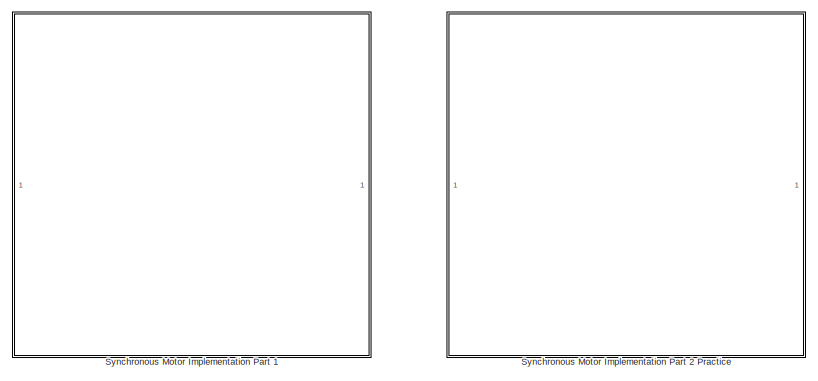
[diagram: root canvas - part 1/4, top left region]
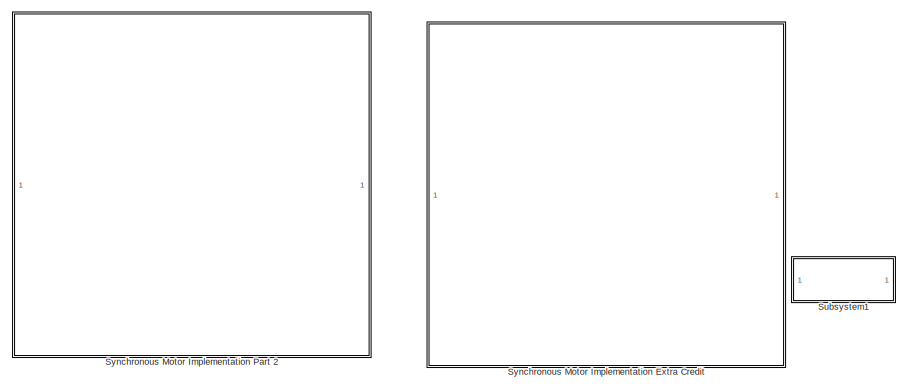
[diagram: root canvas - part 2/4, top right region]
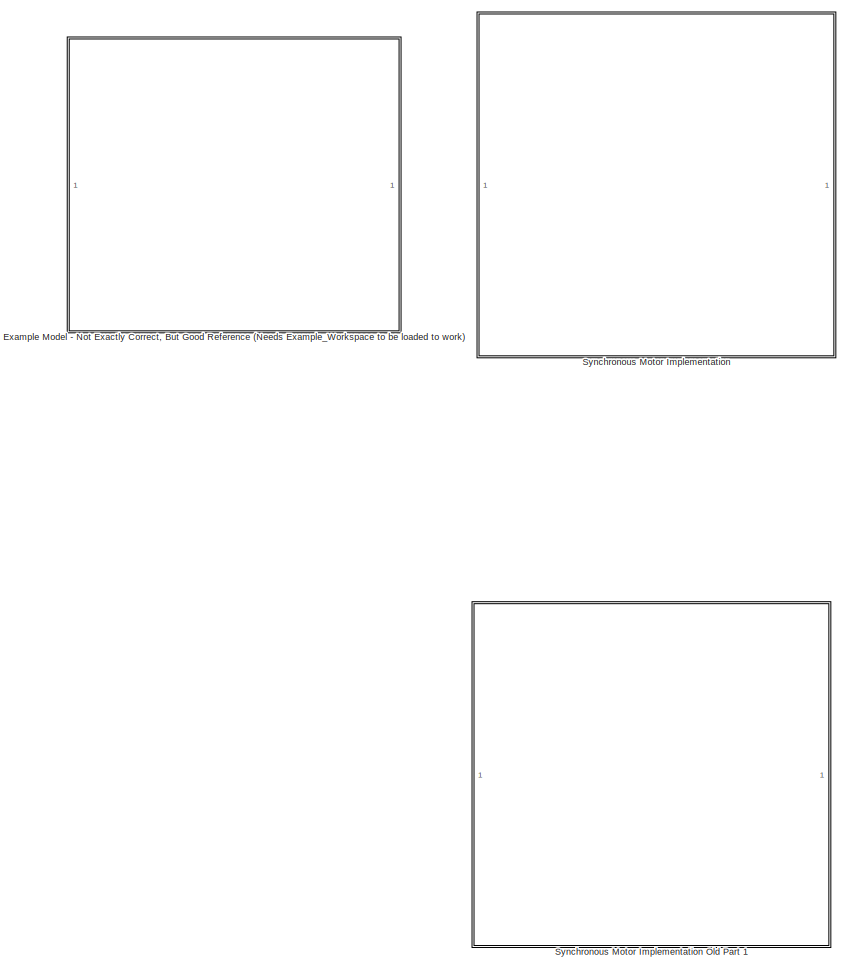
[diagram: root canvas - part 3/4, bottom left region]
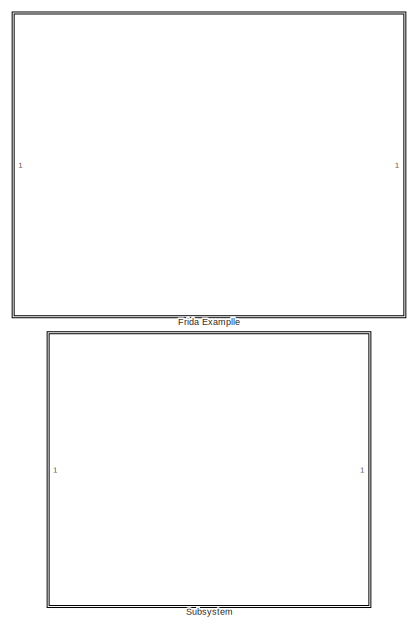
[diagram: root canvas - part 4/4, central region]
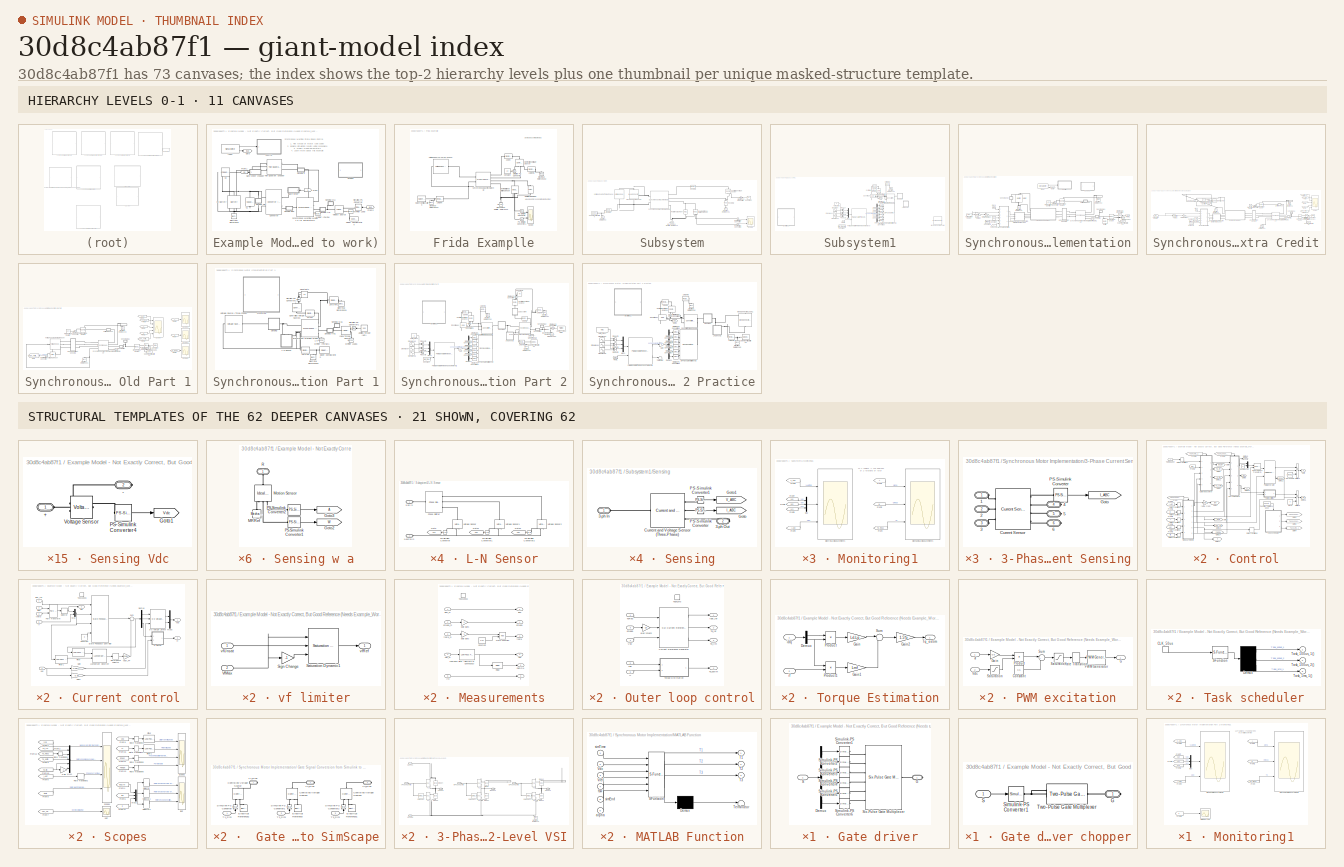
[diagram: thumbnail index - top-2 hierarchy levels (11 canvases) + 21 structural-template representatives of the remaining 62 canvases]
MODEL slx_30d8c4ab87f1
KIND model
CONFIG AbsTol = auto
CONFIG EnableMultiTasking = on
CONFIG FixedStep = auto
CONFIG MaxStep = 1e-5
CONFIG MinStep = auto
CONFIG RelTol = 1e-6
CONFIG SampleTimeConstraint = Unconstrained
CONFIG SolverName = VariableStepAuto
CONFIG StartTime = 0.0
CONFIG StopTime = 8
BLOCK [SubSystem] Example Model - Not Exactly Correct, But Good Reference (Needs Example_Workspace to be loaded to work)
  Commented = on
  Ports = []
  RequestExecContextInheritance = off
BLOCK [Reference] Example Model - Not Exactly Correct, But Good Reference (Needs Example_Workspace to be loaded to work)/C1  REF=fl_lib/Electrical/Electrical Elements/Capacitor
  NameLocation = left
  Ports = [0, 0, 0, 0, 0, 1, 1]
  SourceBlock = fl_lib/Electrical/Electrical Elements/Capacitor
  SourceProductBaseCode = SS
  SourceType = Capacitor
BLOCK [Reference] Example Model - Not Exactly Correct, But Good Reference (Needs Example_Workspace to be loaded to work)/C2  REF=fl_lib/Electrical/Electrical Elements/Capacitor
  Ports = [0, 0, 0, 0, 0, 1, 1]
  SourceBlock = fl_lib/Electrical/Electrical Elements/Capacitor
  SourceProductBaseCode = SS
  SourceType = Capacitor
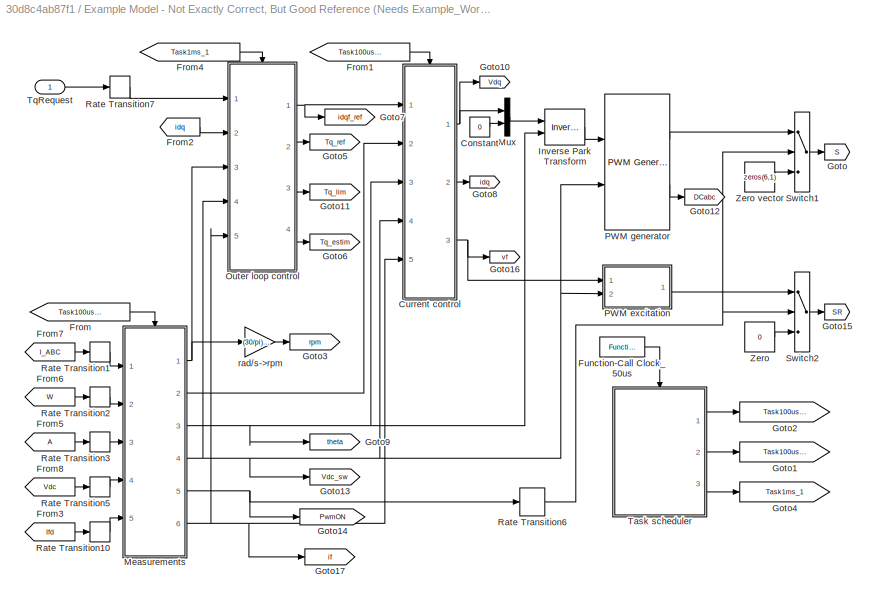
BLOCK [SubSystem] Example Model - Not Exactly Correct, But Good Reference (Needs Example_Workspace to be loaded to work)/Control
  Ports = [1]
  RequestExecContextInheritance = off
BLOCK [Constant] Example Model - Not Exactly Correct, But Good Reference (Needs Example_Workspace to be loaded to work)/Control/Constant
  SampleTime = -1
  Value = 0
BLOCK [SubSystem] Example Model - Not Exactly Correct, But Good Reference (Needs Example_Workspace to be loaded to work)/Control/Current control
  Ports = [5, 3, 0, 1]
  RequestExecContextInheritance = off
BLOCK [Constant] Example Model - Not Exactly Correct, But Good Reference (Needs Example_Workspace to be loaded to work)/Control/Current control/Constant
  SampleTime = -1
  Value = 0
BLOCK [Demux] Example Model - Not Exactly Correct, But Good Reference (Needs Example_Workspace to be loaded to work)/Control/Current control/Demux
  Outputs = 3
  Ports = [1, 3]
BLOCK [Selector] Example Model - Not Exactly Correct, But Good Reference (Needs Example_Workspace to be loaded to work)/Control/Current control/Disturbance selector
  IndexOptions = Index vector (dialog)
  Indices = [4:6]
  InputPortWidth = 6
  OutputSizes = 1
  Ports = [1, 1]
BLOCK [Reference] Example Model - Not Exactly Correct, But Good Reference (Needs Example_Workspace to be loaded to work)/Control/Current control/Filter  REF=eeGeneralControl/Low-Pass Filter
(Discrete or Continuous)
  Ports = [1, 1]
  SourceBlock = eeGeneralControl/Low-Pass Filter\n(Discrete or Continuous)
  SourceProductBaseCode = PS
  SourceType = Low-Pass Filter (Discrete or Continuous)
BLOCK [Reference] Example Model - Not Exactly Correct, But Good Reference (Needs Example_Workspace to be loaded to work)/Control/Current control/Filter1  REF=eeGeneralControl/Low-Pass Filter
(Discrete or Continuous)
  Ports = [1, 1]
  SourceBlock = eeGeneralControl/Low-Pass Filter\n(Discrete or Continuous)
  SourceProductBaseCode = PS
  SourceType = Low-Pass Filter (Discrete or Continuous)
BLOCK [Gain] Example Model - Not Exactly Correct, But Good Reference (Needs Example_Workspace to be loaded to work)/Control/Current control/Gain
  Gain = 1/sqrt(3)
BLOCK [Gain] Example Model - Not Exactly Correct, But Good Reference (Needs Example_Workspace to be loaded to work)/Control/Current control/Gain1
  Gain = 0.95
BLOCK [Inport] Example Model - Not Exactly Correct, But Good Reference (Needs Example_Workspace to be loaded to work)/Control/Current control/If
  Port = 5
BLOCK [Reference] Example Model - Not Exactly Correct, But Good Reference (Needs Example_Workspace to be loaded to work)/Control/Current control/Luenberger Observer  REF=eeLuenbergerObserver/Luenberger Observer
  Ports = [2, 1]
  SourceBlock = eeLuenbergerObserver/Luenberger Observer
  SourceProductBaseCode = PS
  SourceType = Luenberger Observer
BLOCK [Mux] Example Model - Not Exactly Correct, But Good Reference (Needs Example_Workspace to be loaded to work)/Control/Current control/Mux
  DisplayOption = bar
  Inputs = 2
  Ports = [2, 1]
BLOCK [Mux] Example Model - Not Exactly Correct, But Good Reference (Needs Example_Workspace to be loaded to work)/Control/Current control/Mux8
  DisplayOption = bar
  Inputs = 2
  Ports = [2, 1]
BLOCK [Reference] Example Model - Not Exactly Correct, But Good Reference (Needs Example_Workspace to be loaded to work)/Control/Current control/Park Transform  REF=eeTransforms/Park Transform
  Ports = [2, 1]
  SourceBlock = eeTransforms/Park Transform
  SourceProductBaseCode = PS
  SourceType = Park Transform
BLOCK [Selector] Example Model - Not Exactly Correct, But Good Reference (Needs Example_Workspace to be loaded to work)/Control/Current control/Selector
  IndexOptions = Index vector (dialog)
  Indices = [1 2]
  InputPortWidth = 3
  OutputSizes = 1
  Ports = [1, 1]
BLOCK [Reference] Example Model - Not Exactly Correct, But Good Reference (Needs Example_Workspace to be loaded to work)/Control/Current control/State-Feedback Controller  REF=eeAlternativeControllers/State-Feedback Controller
  Ports = [4, 1]
  SourceBlock = eeAlternativeControllers/State-Feedback Controller
  SourceProductBaseCode = PS
  SourceType = State-Feedback Controller
BLOCK [Sum] Example Model - Not Exactly Correct, But Good Reference (Needs Example_Workspace to be loaded to work)/Control/Current control/Sum
  Inputs = |++
  Ports = [2, 1]
BLOCK [TriggerPort] Example Model - Not Exactly Correct, But Good Reference (Needs Example_Workspace to be loaded to work)/Control/Current control/Task100us
  PortDimensions = 1
  Ports = []
  StatesWhenEnabling = held
  TriggerType = function-call
  VariantControl = Variant
BLOCK [Inport] Example Model - Not Exactly Correct, But Good Reference (Needs Example_Workspace to be loaded to work)/Control/Current control/Vdc
  Port = 4
BLOCK [Gain] Example Model - Not Exactly Correct, But Good Reference (Needs Example_Workspace to be loaded to work)/Control/Current control/Vdqf_FF
  Gain = inv(Bd)
  Multiplication = Matrix(K*u)
BLOCK [Reference] Example Model - Not Exactly Correct, But Good Reference (Needs Example_Workspace to be loaded to work)/Control/Current control/d-q Voltage Limiter  REF=eeDqVoltageLimiter/d-q Voltage Limiter
  Ports = [3, 2]
  SourceBlock = eeDqVoltageLimiter/d-q Voltage Limiter
  SourceProductBaseCode = PS
  SourceType = d-q Voltage Limiter
BLOCK [Inport] Example Model - Not Exactly Correct, But Good Reference (Needs Example_Workspace to be loaded to work)/Control/Current control/iabc
  Port = 2
BLOCK [Outport] Example Model - Not Exactly Correct, But Good Reference (Needs Example_Workspace to be loaded to work)/Control/Current control/idq
  Port = 2
  VectorParamsAs1DForOutWhenUnconnected = off
BLOCK [Inport] Example Model - Not Exactly Correct, But Good Reference (Needs Example_Workspace to be loaded to work)/Control/Current control/idqf_ref
BLOCK [Inport] Example Model - Not Exactly Correct, But Good Reference (Needs Example_Workspace to be loaded to work)/Control/Current control/theta
  Port = 3
BLOCK [Outport] Example Model - Not Exactly Correct, But Good Reference (Needs Example_Workspace to be loaded to work)/Control/Current control/vdq
  VectorParamsAs1DForOutWhenUnconnected = off
BLOCK [Outport] Example Model - Not Exactly Correct, But Good Reference (Needs Example_Workspace to be loaded to work)/Control/Current control/vf
  Port = 3
  VectorParamsAs1DForOutWhenUnconnected = off
BLOCK [SubSystem] Example Model - Not Exactly Correct, But Good Reference (Needs Example_Workspace to be loaded to work)/Control/Current control/vf limiter
  Ports = [2, 1]
  RequestExecContextInheritance = off
BLOCK [Reference] Example Model - Not Exactly Correct, But Good Reference (Needs Example_Workspace to be loaded to work)/Control/Current control/vf limiter/Saturation Dynamic1  REF=simulink/Discontinuities/Saturation
Dynamic
  Ports = [3, 1]
  SourceBlock = simulink/Discontinuities/Saturation\nDynamic
  SourceProductBaseCode = SL
  SourceType = Saturation Dynamic
BLOCK [Gain] Example Model - Not Exactly Correct, But Good Reference (Needs Example_Workspace to be loaded to work)/Control/Current control/vf limiter/Sign Change 
  Gain = -1
BLOCK [Inport] Example Model - Not Exactly Correct, But Good Reference (Needs Example_Workspace to be loaded to work)/Control/Current control/vf limiter/VfMax
  Port = 2
BLOCK [Outport] Example Model - Not Exactly Correct, But Good Reference (Needs Example_Workspace to be loaded to work)/Control/Current control/vf limiter/vfRef
  VectorParamsAs1DForOutWhenUnconnected = off
BLOCK [Inport] Example Model - Not Exactly Correct, But Good Reference (Needs Example_Workspace to be loaded to work)/Control/Current control/vf limiter/vfUnsat
BLOCK [From] Example Model - Not Exactly Correct, But Good Reference (Needs Example_Workspace to be loaded to work)/Control/From
  GotoTag = Task100us_1
BLOCK [From] Example Model - Not Exactly Correct, But Good Reference (Needs Example_Workspace to be loaded to work)/Control/From1
  GotoTag = Task100us_2
BLOCK [From] Example Model - Not Exactly Correct, But Good Reference (Needs Example_Workspace to be loaded to work)/Control/From2
  GotoTag = idq
  TagVisibility = global
BLOCK [From] Example Model - Not Exactly Correct, But Good Reference (Needs Example_Workspace to be loaded to work)/Control/From3
  GotoTag = Ifd
  TagVisibility = global
BLOCK [From] Example Model - Not Exactly Correct, But Good Reference (Needs Example_Workspace to be loaded to work)/Control/From4
  GotoTag = Task1ms_1
BLOCK [From] Example Model - Not Exactly Correct, But Good Reference (Needs Example_Workspace to be loaded to work)/Control/From5
  TagVisibility = global
BLOCK [From] Example Model - Not Exactly Correct, But Good Reference (Needs Example_Workspace to be loaded to work)/Control/From6
  GotoTag = W
  TagVisibility = global
BLOCK [From] Example Model - Not Exactly Correct, But Good Reference (Needs Example_Workspace to be loaded to work)/Control/From7
  GotoTag = I_ABC
  TagVisibility = global
BLOCK [From] Example Model - Not Exactly Correct, But Good Reference (Needs Example_Workspace to be loaded to work)/Control/From8
  GotoTag = Vdc
  TagVisibility = global
BLOCK [Reference] Example Model - Not Exactly Correct, But Good Reference (Needs Example_Workspace to be loaded to work)/Control/Function-Call Clock_50us  REF=simulink/Ports &
Subsystems/Function-Call
Generator
  Ports = [0, 1]
  SourceBlock = simulink/Ports &\nSubsystems/Function-Call\nGenerator
  SourceProductBaseCode = SL
  SourceType = Function-Call Generator
BLOCK [Goto] Example Model - Not Exactly Correct, But Good Reference (Needs Example_Workspace to be loaded to work)/Control/Goto
  GotoTag = S
  TagVisibility = global
BLOCK [Goto] Example Model - Not Exactly Correct, But Good Reference (Needs Example_Workspace to be loaded to work)/Control/Goto1
  GotoTag = Task100us_2
BLOCK [Goto] Example Model - Not Exactly Correct, But Good Reference (Needs Example_Workspace to be loaded to work)/Control/Goto10
  GotoTag = Vdq
  TagVisibility = global
BLOCK [Goto] Example Model - Not Exactly Correct, But Good Reference (Needs Example_Workspace to be loaded to work)/Control/Goto11
  GotoTag = Tq_lim
  TagVisibility = global
BLOCK [Goto] Example Model - Not Exactly Correct, But Good Reference (Needs Example_Workspace to be loaded to work)/Control/Goto12
  GotoTag = DCabc
  TagVisibility = global
BLOCK [Goto] Example Model - Not Exactly Correct, But Good Reference (Needs Example_Workspace to be loaded to work)/Control/Goto13
  GotoTag = Vdc_sw
  TagVisibility = global
BLOCK [Goto] Example Model - Not Exactly Correct, But Good Reference (Needs Example_Workspace to be loaded to work)/Control/Goto14
  GotoTag = PwmON
  TagVisibility = global
BLOCK [Goto] Example Model - Not Exactly Correct, But Good Reference (Needs Example_Workspace to be loaded to work)/Control/Goto15
  GotoTag = SR
  TagVisibility = global
BLOCK [Goto] Example Model - Not Exactly Correct, But Good Reference (Needs Example_Workspace to be loaded to work)/Control/Goto16
  GotoTag = vf
  TagVisibility = global
BLOCK [Goto] Example Model - Not Exactly Correct, But Good Reference (Needs Example_Workspace to be loaded to work)/Control/Goto17
  GotoTag = if
  TagVisibility = global
BLOCK [Goto] Example Model - Not Exactly Correct, But Good Reference (Needs Example_Workspace to be loaded to work)/Control/Goto2
  GotoTag = Task100us_1
BLOCK [Goto] Example Model - Not Exactly Correct, But Good Reference (Needs Example_Workspace to be loaded to work)/Control/Goto3
  GotoTag = rpm
  TagVisibility = global
BLOCK [Goto] Example Model - Not Exactly Correct, But Good Reference (Needs Example_Workspace to be loaded to work)/Control/Goto4
  GotoTag = Task1ms_1
BLOCK [Goto] Example Model - Not Exactly Correct, But Good Reference (Needs Example_Workspace to be loaded to work)/Control/Goto5
  GotoTag = Tq_ref
  TagVisibility = global
BLOCK [Goto] Example Model - Not Exactly Correct, But Good Reference (Needs Example_Workspace to be loaded to work)/Control/Goto6
  GotoTag = Tq_estim
  TagVisibility = global
BLOCK [Goto] Example Model - Not Exactly Correct, But Good Reference (Needs Example_Workspace to be loaded to work)/Control/Goto7
  GotoTag = idqf_ref
  TagVisibility = global
BLOCK [Goto] Example Model - Not Exactly Correct, But Good Reference (Needs Example_Workspace to be loaded to work)/Control/Goto8
  GotoTag = idq
  TagVisibility = global
BLOCK [Goto] Example Model - Not Exactly Correct, But Good Reference (Needs Example_Workspace to be loaded to work)/Control/Goto9
  GotoTag = theta
  TagVisibility = global
BLOCK [Reference] Example Model - Not Exactly Correct, But Good Reference (Needs Example_Workspace to be loaded to work)/Control/Inverse Park Transform  REF=eeTransforms/Inverse
Park Transform
  Ports = [2, 1]
  SourceBlock = eeTransforms/Inverse\nPark Transform
  SourceProductBaseCode = PS
  SourceType = Inverse Park Transform
BLOCK [SubSystem] Example Model - Not Exactly Correct, But Good Reference (Needs Example_Workspace to be loaded to work)/Control/Measurements
  Ports = [5, 6, 0, 1]
  RequestExecContextInheritance = off
BLOCK [Constant] Example Model - Not Exactly Correct, But Good Reference (Needs Example_Workspace to be loaded to work)/Control/Measurements/Constant
  SampleTime = -1
  Value = 2*pi
BLOCK [Inport] Example Model - Not Exactly Correct, But Good Reference (Needs Example_Workspace to be loaded to work)/Control/Measurements/Ifd
  Port = 5
BLOCK [Reference] Example Model - Not Exactly Correct, But Good Reference (Needs Example_Workspace to be loaded to work)/Control/Measurements/Low-Pass Filter (Discrete or Continuous)  REF=eeGeneralControl/Low-Pass Filter
(Discrete or Continuous)
  Ports = [1, 1]
  SourceBlock = eeGeneralControl/Low-Pass Filter\n(Discrete or Continuous)
  SourceProductBaseCode = PS
  SourceType = Low-Pass Filter (Discrete or Continuous)
BLOCK [Math] Example Model - Not Exactly Correct, But Good Reference (Needs Example_Workspace to be loaded to work)/Control/Measurements/Math Function
  Operator = mod
  Ports = [2, 1]
  SignedPower = on
BLOCK [Outport] Example Model - Not Exactly Correct, But Good Reference (Needs Example_Workspace to be loaded to work)/Control/Measurements/PwmON
  Port = 5
  VectorParamsAs1DForOutWhenUnconnected = off
BLOCK [Relay] Example Model - Not Exactly Correct, But Good Reference (Needs Example_Workspace to be loaded to work)/Control/Measurements/Relay
  OffSwitchValue = 0.3750*Vnom
  OnSwitchValue = 0.75*Vnom
BLOCK [TriggerPort] Example Model - Not Exactly Correct, But Good Reference (Needs Example_Workspace to be loaded to work)/Control/Measurements/Task100us
  PortDimensions = 1
  Ports = []
  StatesWhenEnabling = held
  TriggerType = function-call
  VariantControl = Variant
BLOCK [Outport] Example Model - Not Exactly Correct, But Good Reference (Needs Example_Workspace to be loaded to work)/Control/Measurements/Vdc
  Port = 4
  VectorParamsAs1DForOutWhenUnconnected = off
BLOCK [Inport] Example Model - Not Exactly Correct, But Good Reference (Needs Example_Workspace to be loaded to work)/Control/Measurements/Vdc_m
  Port = 4
BLOCK [Outport] Example Model - Not Exactly Correct, But Good Reference (Needs Example_Workspace to be loaded to work)/Control/Measurements/iabc
  Port = 2
  VectorParamsAs1DForOutWhenUnconnected = off
BLOCK [Inport] Example Model - Not Exactly Correct, But Good Reference (Needs Example_Workspace to be loaded to work)/Control/Measurements/iabc_m
BLOCK [Outport] Example Model - Not Exactly Correct, But Good Reference (Needs Example_Workspace to be loaded to work)/Control/Measurements/if
  Port = 6
  VectorParamsAs1DForOutWhenUnconnected = off
BLOCK [Outport] Example Model - Not Exactly Correct, But Good Reference (Needs Example_Workspace to be loaded to work)/Control/Measurements/omega
  VectorParamsAs1DForOutWhenUnconnected = off
BLOCK [Inport] Example Model - Not Exactly Correct, But Good Reference (Needs Example_Workspace to be loaded to work)/Control/Measurements/omega_m
  Port = 2
BLOCK [Gain] Example Model - Not Exactly Correct, But Good Reference (Needs Example_Workspace to be loaded to work)/Control/Measurements/pole pairs
  Gain = p
BLOCK [Gain] Example Model - Not Exactly Correct, But Good Reference (Needs Example_Workspace to be loaded to work)/Control/Measurements/pole pairs 
  Gain = p
BLOCK [Outport] Example Model - Not Exactly Correct, But Good Reference (Needs Example_Workspace to be loaded to work)/Control/Measurements/theta
  Port = 3
  VectorParamsAs1DForOutWhenUnconnected = off
BLOCK [Inport] Example Model - Not Exactly Correct, But Good Reference (Needs Example_Workspace to be loaded to work)/Control/Measurements/theta_m
  Port = 3
BLOCK [Mux] Example Model - Not Exactly Correct, But Good Reference (Needs Example_Workspace to be loaded to work)/Control/Mux
  DisplayOption = bar
  Inputs = 2
  Ports = [2, 1]
BLOCK [SubSystem] Example Model - Not Exactly Correct, But Good Reference (Needs Example_Workspace to be loaded to work)/Control/Outer loop control
  Ports = [5, 4, 0, 1]
  RequestExecContextInheritance = off
BLOCK [Reference] Example Model - Not Exactly Correct, But Good Reference (Needs Example_Workspace to be loaded to work)/Control/Outer loop control/Current Reference Generator  REF=eeSmCurrentReferenceGen/SM Current Reference
Generator
  Ports = [3, 3]
  SourceBlock = eeSmCurrentReferenceGen/SM Current Reference\nGenerator
  SourceProductBaseCode = PS
  SourceType = SM Current Reference Generator
BLOCK [TriggerPort] Example Model - Not Exactly Correct, But Good Reference (Needs Example_Workspace to be loaded to work)/Control/Outer loop control/Task1ms
  PortDimensions = 1
  Ports = []
  StatesWhenEnabling = held
  TriggerType = function-call
  VariantControl = Variant
BLOCK [SubSystem] Example Model - Not Exactly Correct, But Good Reference (Needs Example_Workspace to be loaded to work)/Control/Outer loop control/Torque Estimation
  Ports = [2, 1]
  RequestExecContextInheritance = off
BLOCK [Demux] Example Model - Not Exactly Correct, But Good Reference (Needs Example_Workspace to be loaded to work)/Control/Outer loop control/Torque Estimation/Demux
  Outputs = 2
  Ports = [1, 2]
BLOCK [Gain] Example Model - Not Exactly Correct, But Good Reference (Needs Example_Workspace to be loaded to work)/Control/Outer loop control/Torque Estimation/Gain
  Gain = Ld-Lq
BLOCK [Gain] Example Model - Not Exactly Correct, But Good Reference (Needs Example_Workspace to be loaded to work)/Control/Outer loop control/Torque Estimation/Gain1
  Gain = Lmf
BLOCK [Gain] Example Model - Not Exactly Correct, But Good Reference (Needs Example_Workspace to be loaded to work)/Control/Outer loop control/Torque Estimation/Gain2
  Gain = 1.5*p
BLOCK [Product] Example Model - Not Exactly Correct, But Good Reference (Needs Example_Workspace to be loaded to work)/Control/Outer loop control/Torque Estimation/Product
  Ports = [2, 1]
BLOCK [Product] Example Model - Not Exactly Correct, But Good Reference (Needs Example_Workspace to be loaded to work)/Control/Outer loop control/Torque Estimation/Product1
  Ports = [2, 1]
BLOCK [Sum] Example Model - Not Exactly Correct, But Good Reference (Needs Example_Workspace to be loaded to work)/Control/Outer loop control/Torque Estimation/Sum
  Inputs = |++
  Ports = [2, 1]
BLOCK [Outport] Example Model - Not Exactly Correct, But Good Reference (Needs Example_Workspace to be loaded to work)/Control/Outer loop control/Torque Estimation/Tq_estim
  VectorParamsAs1DForOutWhenUnconnected = off
BLOCK [Inport] Example Model - Not Exactly Correct, But Good Reference (Needs Example_Workspace to be loaded to work)/Control/Outer loop control/Torque Estimation/idq
BLOCK [Inport] Example Model - Not Exactly Correct, But Good Reference (Needs Example_Workspace to be loaded to work)/Control/Outer loop control/Torque Estimation/if
  Port = 2
BLOCK [Inport] Example Model - Not Exactly Correct, But Good Reference (Needs Example_Workspace to be loaded to work)/Control/Outer loop control/TqReq
BLOCK [Outport] Example Model - Not Exactly Correct, But Good Reference (Needs Example_Workspace to be loaded to work)/Control/Outer loop control/Tq_estim
  Port = 4
  VectorParamsAs1DForOutWhenUnconnected = off
BLOCK [Outport] Example Model - Not Exactly Correct, But Good Reference (Needs Example_Workspace to be loaded to work)/Control/Outer loop control/Tq_lim
  Port = 3
  VectorParamsAs1DForOutWhenUnconnected = off
BLOCK [Outport] Example Model - Not Exactly Correct, But Good Reference (Needs Example_Workspace to be loaded to work)/Control/Outer loop control/Tq_ref
  Port = 2
  VectorParamsAs1DForOutWhenUnconnected = off
BLOCK [Inport] Example Model - Not Exactly Correct, But Good Reference (Needs Example_Workspace to be loaded to work)/Control/Outer loop control/Vdc
  Port = 4
BLOCK [Gain] Example Model - Not Exactly Correct, But Good Reference (Needs Example_Workspace to be loaded to work)/Control/Outer loop control/elec->mech
  Gain = 1/p
BLOCK [Inport] Example Model - Not Exactly Correct, But Good Reference (Needs Example_Workspace to be loaded to work)/Control/Outer loop control/idq
  Port = 2
BLOCK [Outport] Example Model - Not Exactly Correct, But Good Reference (Needs Example_Workspace to be loaded to work)/Control/Outer loop control/idqf_ref
  VectorParamsAs1DForOutWhenUnconnected = off
BLOCK [Inport] Example Model - Not Exactly Correct, But Good Reference (Needs Example_Workspace to be loaded to work)/Control/Outer loop control/if
  Port = 5
BLOCK [Inport] Example Model - Not Exactly Correct, But Good Reference (Needs Example_Workspace to be loaded to work)/Control/Outer loop control/omega
  Port = 3
BLOCK [SubSystem] Example Model - Not Exactly Correct, But Good Reference (Needs Example_Workspace to be loaded to work)/Control/PWM excitation
  Ports = [2, 1]
  RequestExecContextInheritance = off
BLOCK [Constant] Example Model - Not Exactly Correct, But Good Reference (Needs Example_Workspace to be loaded to work)/Control/PWM excitation/Constant
  SampleTime = -1
  Value = 0.5
BLOCK [Outport] Example Model - Not Exactly Correct, But Good Reference (Needs Example_Workspace to be loaded to work)/Control/PWM excitation/G
  VectorParamsAs1DForOutWhenUnconnected = off
BLOCK [Gain] Example Model - Not Exactly Correct, But Good Reference (Needs Example_Workspace to be loaded to work)/Control/PWM excitation/Gain
  Gain = 0.5
BLOCK [Reference] Example Model - Not Exactly Correct, But Good Reference (Needs Example_Workspace to be loaded to work)/Control/PWM excitation/PWM Generator  REF=eePwmGenerator/PWM Generator
  Ports = [1, 1]
  SourceBlock = eePwmGenerator/PWM Generator
  SourceProductBaseCode = PS
  SourceType = PWM Generator
BLOCK [Product] Example Model - Not Exactly Correct, But Good Reference (Needs Example_Workspace to be loaded to work)/Control/PWM excitation/Product
  Inputs = */
  Ports = [2, 1]
BLOCK [RateTransition] Example Model - Not Exactly Correct, But Good Reference (Needs Example_Workspace to be loaded to work)/Control/PWM excitation/Rate Transition
BLOCK [Saturate] Example Model - Not Exactly Correct, But Good Reference (Needs Example_Workspace to be loaded to work)/Control/PWM excitation/Saturation
  LowerLimit = 1
  UpperLimit = inf
BLOCK [Saturate] Example Model - Not Exactly Correct, But Good Reference (Needs Example_Workspace to be loaded to work)/Control/PWM excitation/Saturation 
  LowerLimit = 0
  UpperLimit = 1
BLOCK [Sum] Example Model - Not Exactly Correct, But Good Reference (Needs Example_Workspace to be loaded to work)/Control/PWM excitation/Sum
  Inputs = |++
  Ports = [2, 1]
BLOCK [Inport] Example Model - Not Exactly Correct, But Good Reference (Needs Example_Workspace to be loaded to work)/Control/PWM excitation/Vdc
  Port = 2
BLOCK [Inport] Example Model - Not Exactly Correct, But Good Reference (Needs Example_Workspace to be loaded to work)/Control/PWM excitation/vf
BLOCK [Reference] Example Model - Not Exactly Correct, But Good Reference (Needs Example_Workspace to be loaded to work)/Control/PWM generator  REF=eePwmGeneratorTwoLevel/PWM Generator
(Three-phase, Two-level)
  Ports = [2, 2]
  SourceBlock = eePwmGeneratorTwoLevel/PWM Generator\n(Three-phase, Two-level)
  SourceProductBaseCode = PS
  SourceType = PWM Generator (three-phase, two-level)
BLOCK [RateTransition] Example Model - Not Exactly Correct, But Good Reference (Needs Example_Workspace to be loaded to work)/Control/Rate Transition1
BLOCK [RateTransition] Example Model - Not Exactly Correct, But Good Reference (Needs Example_Workspace to be loaded to work)/Control/Rate Transition10
BLOCK [RateTransition] Example Model - Not Exactly Correct, But Good Reference (Needs Example_Workspace to be loaded to work)/Control/Rate Transition2
BLOCK [RateTransition] Example Model - Not Exactly Correct, But Good Reference (Needs Example_Workspace to be loaded to work)/Control/Rate Transition3
BLOCK [RateTransition] Example Model - Not Exactly Correct, But Good Reference (Needs Example_Workspace to be loaded to work)/Control/Rate Transition5
BLOCK [RateTransition] Example Model - Not Exactly Correct, But Good Reference (Needs Example_Workspace to be loaded to work)/Control/Rate Transition6
BLOCK [RateTransition] Example Model - Not Exactly Correct, But Good Reference (Needs Example_Workspace to be loaded to work)/Control/Rate Transition7
BLOCK [Switch] Example Model - Not Exactly Correct, But Good Reference (Needs Example_Workspace to be loaded to work)/Control/Switch1
  Criteria = u2 > Threshold
  InputSameDT = off
  SaturateOnIntegerOverflow = off
BLOCK [Switch] Example Model - Not Exactly Correct, But Good Reference (Needs Example_Workspace to be loaded to work)/Control/Switch2
  Criteria = u2 > Threshold
  InputSameDT = off
  SaturateOnIntegerOverflow = off
BLOCK [SubSystem] Example Model - Not Exactly Correct, But Good Reference (Needs Example_Workspace to be loaded to work)/Control/Task scheduler
  ErrorFcn = Stateflow.Translate.translate
  PermitHierarchicalResolution = ExplicitOnly
  Ports = [0, 3, 0, 1]
  RequestExecContextInheritance = off
  SFBlockType = Chart
  TreatAsAtomicUnit = on
BLOCK [Demux] Example Model - Not Exactly Correct, But Good Reference (Needs Example_Workspace to be loaded to work)/Control/Task scheduler/ Demux 
  Outputs = 3
  Ports = [1, 3]
BLOCK [S-Function] Example Model - Not Exactly Correct, But Good Reference (Needs Example_Workspace to be loaded to work)/Control/Task scheduler/ SFunction 
  EnableBusSupport = on
  FunctionName = sf_sfun
  PortCounts = [1 1]
  Ports = [1, 1]
  SFcnIsStateOwnerBlock = off
  SFunctionDeploymentMode = off
  Tag = Stateflow S-Function 1
BLOCK [TriggerPort] Example Model - Not Exactly Correct, But Good Reference (Needs Example_Workspace to be loaded to work)/Control/Task scheduler/CLK_50us
  Ports = [0, 1]
  ShowOutputPort = on
  TriggerType = function-call
  VariantControl = Variant
BLOCK [Outport] Example Model - Not Exactly Correct, But Good Reference (Needs Example_Workspace to be loaded to work)/Control/Task scheduler/Task_100us_1()
  VectorParamsAs1DForOutWhenUnconnected = off
BLOCK [Outport] Example Model - Not Exactly Correct, But Good Reference (Needs Example_Workspace to be loaded to work)/Control/Task scheduler/Task_100us_2()
  Port = 2
  VectorParamsAs1DForOutWhenUnconnected = off
BLOCK [Outport] Example Model - Not Exactly Correct, But Good Reference (Needs Example_Workspace to be loaded to work)/Control/Task scheduler/Task_1ms_1()
  Port = 3
  VectorParamsAs1DForOutWhenUnconnected = off
BLOCK [Inport] Example Model - Not Exactly Correct, But Good Reference (Needs Example_Workspace to be loaded to work)/Control/TqRequest
BLOCK [Constant] Example Model - Not Exactly Correct, But Good Reference (Needs Example_Workspace to be loaded to work)/Control/Zero 
  SampleTime = -1
  Value = 0
BLOCK [Constant] Example Model - Not Exactly Correct, But Good Reference (Needs Example_Workspace to be loaded to work)/Control/Zero vector
  SampleTime = -1
  Value = zeros(6,1)
BLOCK [Gain] Example Model - Not Exactly Correct, But Good Reference (Needs Example_Workspace to be loaded to work)/Control/rad//s->rpm
  Gain = (30/pi)/p
BLOCK [Reference] Example Model - Not Exactly Correct, But Good Reference (Needs Example_Workspace to be loaded to work)/Converter  REF=ee_lib/Semiconductors &
Converters/Converters/Converter
(Three-Phase)
  Ports = [0, 0, 0, 0, 0, 2, 2]
  SourceBlock = ee_lib/Semiconductors &\nConverters/Converters/Converter\n(Three-Phase)
  SourceProductBaseCode = PS
  SourceType = Converter\n(Three-Phase)
BLOCK [Reference] Example Model - Not Exactly Correct, But Good Reference (Needs Example_Workspace to be loaded to work)/Electrical Reference  REF=fl_lib/Electrical/Electrical Elements/Electrical Reference
  NameLocation = right
  Ports = [0, 0, 0, 0, 0, 1]
  SourceBlock = fl_lib/Electrical/Electrical Elements/Electrical Reference
  SourceProductBaseCode = SS
  SourceType = Electrical Reference
BLOCK [From] Example Model - Not Exactly Correct, But Good Reference (Needs Example_Workspace to be loaded to work)/From
  GotoTag = S
  TagVisibility = global
BLOCK [From] Example Model - Not Exactly Correct, But Good Reference (Needs Example_Workspace to be loaded to work)/From1
  GotoTag = SR
  TagVisibility = global
BLOCK [From] Example Model - Not Exactly Correct, But Good Reference (Needs Example_Workspace to be loaded to work)/From2
  GotoTag = load
  TagVisibility = global
BLOCK [SubSystem] Example Model - Not Exactly Correct, But Good Reference (Needs Example_Workspace to be loaded to work)/Gate driver
  Ports = [1, 0, 0, 0, 0, 0, 1]
  RequestExecContextInheritance = off
BLOCK [SubSystem] Example Model - Not Exactly Correct, But Good Reference (Needs Example_Workspace to be loaded to work)/Gate driver chopper
  Ports = [1, 0, 0, 0, 0, 0, 1]
  RequestExecContextInheritance = off
BLOCK [PMIOPort] Example Model - Not Exactly Correct, But Good Reference (Needs Example_Workspace to be loaded to work)/Gate driver chopper/G
  Side = Right
BLOCK [Inport] Example Model - Not Exactly Correct, But Good Reference (Needs Example_Workspace to be loaded to work)/Gate driver chopper/S
BLOCK [Reference] Example Model - Not Exactly Correct, But Good Reference (Needs Example_Workspace to be loaded to work)/Gate driver chopper/Simulink-PS Converter1  REF=nesl_utility/Simulink-PS
Converter
  Ports = [1, 0, 0, 0, 0, 0, 1]
  SourceBlock = nesl_utility/Simulink-PS\nConverter
  SourceProductBaseCode = PW,SS
  SourceType = Simulink-PS\nConverter
BLOCK [Reference] Example Model - Not Exactly Correct, But Good Reference (Needs Example_Workspace to be loaded to work)/Gate driver chopper/Two-Pulse Gate Multiplexer  REF=ee_lib/Semiconductors &
Converters/Converters/Two-Pulse Gate
Multiplexer
  Ports = [0, 0, 0, 0, 0, 2, 1]
  SourceBlock = ee_lib/Semiconductors &\nConverters/Converters/Two-Pulse Gate\nMultiplexer
  SourceProductBaseCode = PS
  SourceType = Two-Pulse Gate\nMultiplexer
BLOCK [Demux] Example Model - Not Exactly Correct, But Good Reference (Needs Example_Workspace to be loaded to work)/Gate driver/Demux
  Outputs = 6
  Ports = [1, 6]
BLOCK [PMIOPort] Example Model - Not Exactly Correct, But Good Reference (Needs Example_Workspace to be loaded to work)/Gate driver/G
  Side = Right
BLOCK [Inport] Example Model - Not Exactly Correct, But Good Reference (Needs Example_Workspace to be loaded to work)/Gate driver/S
BLOCK [Reference] Example Model - Not Exactly Correct, But Good Reference (Needs Example_Workspace to be loaded to work)/Gate driver/Simulink-PS Converter1  REF=nesl_utility/Simulink-PS
Converter
  Ports = [1, 0, 0, 0, 0, 0, 1]
  SourceBlock = nesl_utility/Simulink-PS\nConverter
  SourceProductBaseCode = PW,SS
  SourceType = Simulink-PS\nConverter
BLOCK [Reference] Example Model - Not Exactly Correct, But Good Reference (Needs Example_Workspace to be loaded to work)/Gate driver/Simulink-PS Converter2  REF=nesl_utility/Simulink-PS
Converter
  Ports = [1, 0, 0, 0, 0, 0, 1]
  SourceBlock = nesl_utility/Simulink-PS\nConverter
  SourceProductBaseCode = PW,SS
  SourceType = Simulink-PS\nConverter
BLOCK [Reference] Example Model - Not Exactly Correct, But Good Reference (Needs Example_Workspace to be loaded to work)/Gate driver/Simulink-PS Converter3  REF=nesl_utility/Simulink-PS
Converter
  Ports = [1, 0, 0, 0, 0, 0, 1]
  SourceBlock = nesl_utility/Simulink-PS\nConverter
  SourceProductBaseCode = PW,SS
  SourceType = Simulink-PS\nConverter
BLOCK [Reference] Example Model - Not Exactly Correct, But Good Reference (Needs Example_Workspace to be loaded to work)/Gate driver/Simulink-PS Converter4  REF=nesl_utility/Simulink-PS
Converter
  Ports = [1, 0, 0, 0, 0, 0, 1]
  SourceBlock = nesl_utility/Simulink-PS\nConverter
  SourceProductBaseCode = PW,SS
  SourceType = Simulink-PS\nConverter
BLOCK [Reference] Example Model - Not Exactly Correct, But Good Reference (Needs Example_Workspace to be loaded to work)/Gate driver/Simulink-PS Converter5  REF=nesl_utility/Simulink-PS
Converter
  Ports = [1, 0, 0, 0, 0, 0, 1]
  SourceBlock = nesl_utility/Simulink-PS\nConverter
  SourceProductBaseCode = PW,SS
  SourceType = Simulink-PS\nConverter
BLOCK [Reference] Example Model - Not Exactly Correct, But Good Reference (Needs Example_Workspace to be loaded to work)/Gate driver/Simulink-PS Converter6  REF=nesl_utility/Simulink-PS
Converter
  Ports = [1, 0, 0, 0, 0, 0, 1]
  SourceBlock = nesl_utility/Simulink-PS\nConverter
  SourceProductBaseCode = PW,SS
  SourceType = Simulink-PS\nConverter
BLOCK [Reference] Example Model - Not Exactly Correct, But Good Reference (Needs Example_Workspace to be loaded to work)/Gate driver/Six-Pulse Gate Multiplexer  REF=ee_lib/Semiconductors &
Converters/Converters/Six-Pulse Gate
Multiplexer
  Ports = [0, 0, 0, 0, 0, 6, 1]
  SourceBlock = ee_lib/Semiconductors &\nConverters/Converters/Six-Pulse Gate\nMultiplexer
  SourceProductBaseCode = PS
  SourceType = Six-Pulse Gate\nMultiplexer
BLOCK [Goto] Example Model - Not Exactly Correct, But Good Reference (Needs Example_Workspace to be loaded to work)/Goto
  GotoTag = load
  TagVisibility = global
BLOCK [Reference] Example Model - Not Exactly Correct, But Good Reference (Needs Example_Workspace to be loaded to work)/HV Battery  REF=ee_lib/Sources/Battery
  NameLocation = left
  Ports = [0, 0, 0, 0, 0, 1, 1]
  SourceBlock = ee_lib/Sources/Battery
  SourceProductBaseCode = PS
  SourceType = Battery
BLOCK [Reference] Example Model - Not Exactly Correct, But Good Reference (Needs Example_Workspace to be loaded to work)/Input  REF=SignalEditorBlockLib/Signal Editor
  Ports = [0, 2]
  SourceBlock = SignalEditorBlockLib/Signal Editor
  SourceProductBaseCode = SL
  SourceType = SignalEditor
  UserDataPersistent = on
BLOCK [Reference] Example Model - Not Exactly Correct, But Good Reference (Needs Example_Workspace to be loaded to work)/MRRef IPMSM  REF=fl_lib/Mechanical/Rotational Elements/Mechanical
Rotational Reference
  NameLocation = top
  Ports = [0, 0, 0, 0, 0, 1]
  SourceBlock = fl_lib/Mechanical/Rotational Elements/Mechanical\nRotational Reference
  SourceProductBaseCode = SS
  SourceType = Mechanical\nRotational Reference
BLOCK [Reference] Example Model - Not Exactly Correct, But Good Reference (Needs Example_Workspace to be loaded to work)/MRRef Load  REF=fl_lib/Mechanical/Rotational Elements/Mechanical
Rotational Reference
  Ports = [0, 0, 0, 0, 0, 1]
  SourceBlock = fl_lib/Mechanical/Rotational Elements/Mechanical\nRotational Reference
  SourceProductBaseCode = SS
  SourceType = Mechanical\nRotational Reference
BLOCK [SubSystem] Example Model - Not Exactly Correct, But Good Reference (Needs Example_Workspace to be loaded to work)/Scopes
  Ports = []
  RequestExecContextInheritance = off
BLOCK [Reference] Example Model - Not Exactly Correct, But Good Reference (Needs Example_Workspace to be loaded to work)/Scopes/Filter  REF=eeGeneralControl/Low-Pass Filter
(Discrete or Continuous)
  Ports = [1, 1]
  SourceBlock = eeGeneralControl/Low-Pass Filter\n(Discrete or Continuous)
  SourceProductBaseCode = PS
  SourceType = Low-Pass Filter (Discrete or Continuous)
BLOCK [Reference] Example Model - Not Exactly Correct, But Good Reference (Needs Example_Workspace to be loaded to work)/Scopes/Filter1  REF=eeGeneralControl/Low-Pass Filter
(Discrete or Continuous)
  Ports = [1, 1]
  SourceBlock = eeGeneralControl/Low-Pass Filter\n(Discrete or Continuous)
  SourceProductBaseCode = PS
  SourceType = Low-Pass Filter (Discrete or Continuous)
BLOCK [From] Example Model - Not Exactly Correct, But Good Reference (Needs Example_Workspace to be loaded to work)/Scopes/From1
  GotoTag = rpm
  TagVisibility = global
BLOCK [From] Example Model - Not Exactly Correct, But Good Reference (Needs Example_Workspace to be loaded to work)/Scopes/From10
  GotoTag = Tq_lim
  TagVisibility = global
BLOCK [From] Example Model - Not Exactly Correct, But Good Reference (Needs Example_Workspace to be loaded to work)/Scopes/From11
  GotoTag = DCabc
  TagVisibility = global
BLOCK [From] Example Model - Not Exactly Correct, But Good Reference (Needs Example_Workspace to be loaded to work)/Scopes/From12
  GotoTag = Tq_meas
  TagVisibility = global
BLOCK [From] Example Model - Not Exactly Correct, But Good Reference (Needs Example_Workspace to be loaded to work)/Scopes/From13
  GotoTag = PwmON
  TagVisibility = global
BLOCK [From] Example Model - Not Exactly Correct, But Good Reference (Needs Example_Workspace to be loaded to work)/Scopes/From14
  GotoTag = if
  TagVisibility = global
BLOCK [From] Example Model - Not Exactly Correct, But Good Reference (Needs Example_Workspace to be loaded to work)/Scopes/From15
  GotoTag = vf
  TagVisibility = global
BLOCK [From] Example Model - Not Exactly Correct, But Good Reference (Needs Example_Workspace to be loaded to work)/Scopes/From2
  GotoTag = Tq_ref
  TagVisibility = global
BLOCK [From] Example Model - Not Exactly Correct, But Good Reference (Needs Example_Workspace to be loaded to work)/Scopes/From3
  GotoTag = Tq_estim
  TagVisibility = global
BLOCK [From] Example Model - Not Exactly Correct, But Good Reference (Needs Example_Workspace to be loaded to work)/Scopes/From4
  GotoTag = idqf_ref
  TagVisibility = global
BLOCK [From] Example Model - Not Exactly Correct, But Good Reference (Needs Example_Workspace to be loaded to work)/Scopes/From5
  GotoTag = idq
  TagVisibility = global
BLOCK [From] Example Model - Not Exactly Correct, But Good Reference (Needs Example_Workspace to be loaded to work)/Scopes/From6
  GotoTag = I_ABC
  TagVisibility = global
BLOCK [From] Example Model - Not Exactly Correct, But Good Reference (Needs Example_Workspace to be loaded to work)/Scopes/From7
  GotoTag = Vdc_sw
  TagVisibility = global
BLOCK [From] Example Model - Not Exactly Correct, But Good Reference (Needs Example_Workspace to be loaded to work)/Scopes/From8
  GotoTag = theta
  TagVisibility = global
BLOCK [From] Example Model - Not Exactly Correct, But Good Reference (Needs Example_Workspace to be loaded to work)/Scopes/From9
  GotoTag = Vdq
  TagVisibility = global
BLOCK [Gain] Example Model - Not Exactly Correct, But Good Reference (Needs Example_Workspace to be loaded to work)/Scopes/Gain
  Gain = -1
BLOCK [Mux] Example Model - Not Exactly Correct, But Good Reference (Needs Example_Workspace to be loaded to work)/Scopes/Mux1
  DisplayOption = bar
  Inputs = 5
  Ports = [5, 1]
BLOCK [Mux] Example Model - Not Exactly Correct, But Good Reference (Needs Example_Workspace to be loaded to work)/Scopes/Mux2
  DisplayOption = bar
  Inputs = 3
  Ports = [3, 1]
BLOCK [RateTransition] Example Model - Not Exactly Correct, But Good Reference (Needs Example_Workspace to be loaded to work)/Scopes/Rate Transition1
  OutPortSampleTime = Tsi
BLOCK [RateTransition] Example Model - Not Exactly Correct, But Good Reference (Needs Example_Workspace to be loaded to work)/Scopes/Rate Transition2
BLOCK [RateTransition] Example Model - Not Exactly Correct, But Good Reference (Needs Example_Workspace to be loaded to work)/Scopes/Rate Transition3
BLOCK [RateTransition] Example Model - Not Exactly Correct, But Good Reference (Needs Example_Workspace to be loaded to work)/Scopes/Rate Transition4
  OutPortSampleTime = Tsi
BLOCK [RateTransition] Example Model - Not Exactly Correct, But Good Reference (Needs Example_Workspace to be loaded to work)/Scopes/Rate Transition5
  OutPortSampleTime = Tsi
BLOCK [RateTransition] Example Model - Not Exactly Correct, But Good Reference (Needs Example_Workspace to be loaded to work)/Scopes/Rate Transition6
  OutPortSampleTime = Tsi
BLOCK [Scope] Example Model - Not Exactly Correct, But Good Reference (Needs Example_Workspace to be loaded to work)/Scopes/Scope1
  Floating = off
  NumInputPorts = 4
  Ports = [4]
  ScopeSpecificationString = Simulink.scopes.TimeScopeBlockCfg('CurrentConfiguration', extmgr.ConfigurationSet(extmgr.Configuration('Core','General UI',true),extmgr.Configuration('Core','Source UI',true),extmgr.Configuration('Sources','WiredSimulink',true,'DataLoggingVariableName','ScopeData1','DataLoggingSaveFormat','Array','DataLoggingDecimation','1','DataLoggingDecimateData',true),extmgr.Configuration('Visuals','Time Domai...<+3947ch>
BLOCK [Scope] Example Model - Not Exactly Correct, But Good Reference (Needs Example_Workspace to be loaded to work)/Scopes/Scope2
  Floating = off
  NumInputPorts = 4
  Ports = [4]
  ScopeSpecificationString = Simulink.scopes.TimeScopeBlockCfg('CurrentConfiguration', extmgr.ConfigurationSet(extmgr.Configuration('Core','General UI',true),extmgr.Configuration('Core','Source UI',true),extmgr.Configuration('Sources','WiredSimulink',true,'DataLoggingVariableName','ScopeData3','DataLoggingSaveFormat','Array','DataLoggingDecimation','1','DataLoggingDecimateData',true),extmgr.Configuration('Visuals','Time Domai...<+3663ch>
BLOCK [Selector] Example Model - Not Exactly Correct, But Good Reference (Needs Example_Workspace to be loaded to work)/Scopes/Selector
  IndexOptions = Index vector (dialog)
  Indices = [1 4]
  InputPortWidth = 6
  OutputSizes = 1
  Ports = [1, 1]
BLOCK [Selector] Example Model - Not Exactly Correct, But Good Reference (Needs Example_Workspace to be loaded to work)/Scopes/Selector1
  IndexOptions = Index vector (dialog)
  Indices = [2 5]
  InputPortWidth = 6
  OutputSizes = 1
  Ports = [1, 1]
BLOCK [Selector] Example Model - Not Exactly Correct, But Good Reference (Needs Example_Workspace to be loaded to work)/Scopes/Selector2
  IndexOptions = Index vector (dialog)
  Indices = [3 6]
  InputPortWidth = 6
  OutputSizes = 1
  Ports = [1, 1]
BLOCK [Scope] Example Model - Not Exactly Correct, But Good Reference (Needs Example_Workspace to be loaded to work)/Scopes/VDC
  Floating = off
  NumInputPorts = 1
  Ports = [1]
  ScopeSpecificationString = Simulink.scopes.TimeScopeBlockCfg('CurrentConfiguration', extmgr.ConfigurationSet(extmgr.Configuration('Core','General UI',true),extmgr.Configuration('Core','Source UI',true),extmgr.Configuration('Sources','WiredSimulink',true,'DataLoggingSaveFormat','Array','DataLoggingDecimation','1','DataLoggingDecimateData',true),extmgr.Configuration('Visuals','Time Domain',true,'SerializedDisplays',{struct('M...<+1513ch>
BLOCK [Scope] Example Model - Not Exactly Correct, But Good Reference (Needs Example_Workspace to be loaded to work)/Scopes/idqf 
  Floating = off
  NumInputPorts = 3
  Ports = [3]
  ScopeSpecificationString = Simulink.scopes.TimeScopeBlockCfg('CurrentConfiguration', extmgr.ConfigurationSet(extmgr.Configuration('Core','General UI',true),extmgr.Configuration('Core','Source UI',true),extmgr.Configuration('Sources','WiredSimulink',true,'DataLoggingVariableName','ScopeData2','DataLoggingSaveFormat','Array','DataLoggingDecimation','1','DataLoggingDecimateData',true),extmgr.Configuration('Visuals','Time Domai...<+3045ch>
BLOCK [SubSystem] Example Model - Not Exactly Correct, But Good Reference (Needs Example_Workspace to be loaded to work)/Sensing Vdc
  NameLocation = right
  Ports = [0, 0, 0, 0, 0, 1, 1]
  RequestExecContextInheritance = off
BLOCK [PMIOPort] Example Model - Not Exactly Correct, But Good Reference (Needs Example_Workspace to be loaded to work)/Sensing Vdc/+
  Side = Left
BLOCK [PMIOPort] Example Model - Not Exactly Correct, But Good Reference (Needs Example_Workspace to be loaded to work)/Sensing Vdc/-
  Port = 2
  Side = Right
BLOCK [Goto] Example Model - Not Exactly Correct, But Good Reference (Needs Example_Workspace to be loaded to work)/Sensing Vdc/Goto1
  GotoTag = Vdc
  TagVisibility = global
BLOCK [Reference] Example Model - Not Exactly Correct, But Good Reference (Needs Example_Workspace to be loaded to work)/Sensing Vdc/PS-Simulink Converter4  REF=nesl_utility/PS-Simulink
Converter
  Ports = [0, 1, 0, 0, 0, 1]
  SourceBlock = nesl_utility/PS-Simulink\nConverter
  SourceProductBaseCode = PW,SS
  SourceType = PS-Simulink\nConverter
BLOCK [Reference] Example Model - Not Exactly Correct, But Good Reference (Needs Example_Workspace to be loaded to work)/Sensing Vdc/Voltage Sensor  REF=fl_lib/Electrical/Electrical Sensors/Voltage Sensor
  Ports = [0, 0, 0, 0, 0, 1, 2]
  SourceBlock = fl_lib/Electrical/Electrical Sensors/Voltage Sensor
  SourceProductBaseCode = SS
  SourceType = Voltage Sensor
BLOCK [SubSystem] Example Model - Not Exactly Correct, But Good Reference (Needs Example_Workspace to be loaded to work)/Sensing iabc
  Ports = [0, 0, 0, 0, 0, 1, 1]
  RequestExecContextInheritance = off
BLOCK [PMIOPort] Example Model - Not Exactly Correct, But Good Reference (Needs Example_Workspace to be loaded to work)/Sensing iabc/1
  Side = Left
BLOCK [PMIOPort] Example Model - Not Exactly Correct, But Good Reference (Needs Example_Workspace to be loaded to work)/Sensing iabc/2
  Port = 2
  Side = Right
BLOCK [Reference] Example Model - Not Exactly Correct, But Good Reference (Needs Example_Workspace to be loaded to work)/Sensing iabc/Current Sensor  REF=ee_lib/Sensors &
Transducers/Current Sensor
(Three-Phase)
  Ports = [0, 0, 0, 0, 0, 1, 2]
  SourceBlock = ee_lib/Sensors &\nTransducers/Current Sensor\n(Three-Phase)
  SourceProductBaseCode = PS
  SourceType = Current Sensor\n(Three-Phase)
BLOCK [Goto] Example Model - Not Exactly Correct, But Good Reference (Needs Example_Workspace to be loaded to work)/Sensing iabc/Goto
  GotoTag = I_ABC
  TagVisibility = global
BLOCK [Reference] Example Model - Not Exactly Correct, But Good Reference (Needs Example_Workspace to be loaded to work)/Sensing iabc/PS-Simulink Converter  REF=nesl_utility/PS-Simulink
Converter
  Ports = [0, 1, 0, 0, 0, 1]
  SourceBlock = nesl_utility/PS-Simulink\nConverter
  SourceProductBaseCode = PW,SS
  SourceType = PS-Simulink\nConverter
BLOCK [SubSystem] Example Model - Not Exactly Correct, But Good Reference (Needs Example_Workspace to be loaded to work)/Sensing if
  Ports = [0, 0, 0, 0, 0, 1, 1]
  RequestExecContextInheritance = off
BLOCK [PMIOPort] Example Model - Not Exactly Correct, But Good Reference (Needs Example_Workspace to be loaded to work)/Sensing if/+
  Side = Left
BLOCK [PMIOPort] Example Model - Not Exactly Correct, But Good Reference (Needs Example_Workspace to be loaded to work)/Sensing if/-
  Port = 2
  Side = Right
BLOCK [Reference] Example Model - Not Exactly Correct, But Good Reference (Needs Example_Workspace to be loaded to work)/Sensing if/Current Sensor  REF=fl_lib/Electrical/Electrical Sensors/Current Sensor
  Ports = [0, 0, 0, 0, 0, 1, 2]
  SourceBlock = fl_lib/Electrical/Electrical Sensors/Current Sensor
  SourceProductBaseCode = SS
  SourceType = Current Sensor
BLOCK [Goto] Example Model - Not Exactly Correct, But Good Reference (Needs Example_Workspace to be loaded to work)/Sensing if/Goto1
  GotoTag = Ifd
  TagVisibility = global
BLOCK [Reference] Example Model - Not Exactly Correct, But Good Reference (Needs Example_Workspace to be loaded to work)/Sensing if/PS-Simulink Converter  REF=nesl_utility/PS-Simulink
Converter
  Ports = [0, 1, 0, 0, 0, 1]
  SourceBlock = nesl_utility/PS-Simulink\nConverter
  SourceProductBaseCode = PW,SS
  SourceType = PS-Simulink\nConverter
BLOCK [SubSystem] Example Model - Not Exactly Correct, But Good Reference (Needs Example_Workspace to be loaded to work)/Sensing trq
  Ports = [0, 0, 0, 0, 0, 1, 1]
  RequestExecContextInheritance = off
BLOCK [PMIOPort] Example Model - Not Exactly Correct, But Good Reference (Needs Example_Workspace to be loaded to work)/Sensing trq/C
  Port = 2
  Side = Right
BLOCK [Goto] Example Model - Not Exactly Correct, But Good Reference (Needs Example_Workspace to be loaded to work)/Sensing trq/Goto4
  GotoTag = Tq_meas
  TagVisibility = global
BLOCK [Reference] Example Model - Not Exactly Correct, But Good Reference (Needs Example_Workspace to be loaded to work)/Sensing trq/PS-Simulink Converter3  REF=nesl_utility/PS-Simulink
Converter
  Ports = [0, 1, 0, 0, 0, 1]
  SourceBlock = nesl_utility/PS-Simulink\nConverter
  SourceProductBaseCode = PW,SS
  SourceType = PS-Simulink\nConverter
BLOCK [PMIOPort] Example Model - Not Exactly Correct, But Good Reference (Needs Example_Workspace to be loaded to work)/Sensing trq/R
  Side = Left
BLOCK [Reference] Example Model - Not Exactly Correct, But Good Reference (Needs Example_Workspace to be loaded to work)/Sensing trq/Torque Sensor  REF=fl_lib/Mechanical/Mechanical Sensors/Ideal Torque Sensor
  Ports = [0, 0, 0, 0, 0, 1, 2]
  SourceBlock = fl_lib/Mechanical/Mechanical Sensors/Ideal Torque Sensor
  SourceProductBaseCode = SS
  SourceType = Ideal Torque Sensor
BLOCK [SubSystem] Example Model - Not Exactly Correct, But Good Reference (Needs Example_Workspace to be loaded to work)/Sensing w a
  NameLocation = right
  Ports = [0, 0, 0, 0, 0, 1]
  RequestExecContextInheritance = off
BLOCK [Goto] Example Model - Not Exactly Correct, But Good Reference (Needs Example_Workspace to be loaded to work)/Sensing w a/Goto2
  GotoTag = W
  TagVisibility = global
BLOCK [Goto] Example Model - Not Exactly Correct, But Good Reference (Needs Example_Workspace to be loaded to work)/Sensing w a/Goto3
  TagVisibility = global
BLOCK [Reference] Example Model - Not Exactly Correct, But Good Reference (Needs Example_Workspace to be loaded to work)/Sensing w a/MRRef  REF=fl_lib/Mechanical/Rotational Elements/Mechanical
Rotational Reference
  NameLocation = left
  Ports = [0, 0, 0, 0, 0, 1]
  SourceBlock = fl_lib/Mechanical/Rotational Elements/Mechanical\nRotational Reference
  SourceProductBaseCode = SS
  SourceType = Mechanical\nRotational Reference
BLOCK [Reference] Example Model - Not Exactly Correct, But Good Reference (Needs Example_Workspace to be loaded to work)/Sensing w a/Motion Sensor  REF=fl_lib/Mechanical/Mechanical Sensors/Ideal Rotational
Motion Sensor
  NameLocation = right
  Ports = [0, 0, 0, 0, 0, 1, 3]
  SourceBlock = fl_lib/Mechanical/Mechanical Sensors/Ideal Rotational\nMotion Sensor
  SourceProductBaseCode = SS
  SourceType = Ideal Rotational\nMotion Sensor
BLOCK [Reference] Example Model - Not Exactly Correct, But Good Reference (Needs Example_Workspace to be loaded to work)/Sensing w a/PS-Simulink Converter1  REF=nesl_utility/PS-Simulink
Converter
  Ports = [0, 1, 0, 0, 0, 1]
  SourceBlock = nesl_utility/PS-Simulink\nConverter
  SourceProductBaseCode = PW,SS
  SourceType = PS-Simulink\nConverter
BLOCK [Reference] Example Model - Not Exactly Correct, But Good Reference (Needs Example_Workspace to be loaded to work)/Sensing w a/PS-Simulink Converter2  REF=nesl_utility/PS-Simulink
Converter
  Ports = [0, 1, 0, 0, 0, 1]
  SourceBlock = nesl_utility/PS-Simulink\nConverter
  SourceProductBaseCode = PW,SS
  SourceType = PS-Simulink\nConverter
BLOCK [PMIOPort] Example Model - Not Exactly Correct, But Good Reference (Needs Example_Workspace to be loaded to work)/Sensing w a/R
  NameLocation = right
  Side = Left
BLOCK [Reference] Example Model - Not Exactly Correct, But Good Reference (Needs Example_Workspace to be loaded to work)/Simulink-PS Converter  REF=nesl_utility/Simulink-PS
Converter
  Ports = [1, 0, 0, 0, 0, 0, 1]
  SourceBlock = nesl_utility/Simulink-PS\nConverter
  SourceProductBaseCode = PW,SS
  SourceType = Simulink-PS\nConverter
BLOCK [Reference] Example Model - Not Exactly Correct, But Good Reference (Needs Example_Workspace to be loaded to work)/Solver Configuration  REF=nesl_utility/Solver
Configuration
  Ports = [0, 0, 0, 0, 0, 0, 1]
  SourceBlock = nesl_utility/Solver\nConfiguration
  SourceProductBaseCode = PW,SS
  SourceType = Solver\nConfiguration
BLOCK [Reference] Example Model - Not Exactly Correct, But Good Reference (Needs Example_Workspace to be loaded to work)/Synchronous Machine Model 1.0 (SI parameters)  REF=ee_lib/Electromechanical/Synchronous/Synchronous Machine
Model 1.0
  Ports = [0, 0, 0, 0, 0, 1, 4]
  SourceBlock = ee_lib/Electromechanical/Synchronous/Synchronous Machine\nModel 1.0
  SourceProductBaseCode = PS
  SourceType = Synchronous Machine\nModel 1.0
BLOCK [Reference] Example Model - Not Exactly Correct, But Good Reference (Needs Example_Workspace to be loaded to work)/Two-Quadrant Chopper  REF=ee_lib/Semiconductors &
Converters/Converters/Two-Quadrant Chopper
  Ports = [0, 0, 0, 0, 0, 3, 2]
  SourceBlock = ee_lib/Semiconductors &\nConverters/Converters/Two-Quadrant Chopper
  SourceProductBaseCode = PS
  SourceType = Two-Quadrant Chopper
BLOCK [Reference] Example Model - Not Exactly Correct, But Good Reference (Needs Example_Workspace to be loaded to work)/Velocity Source  REF=fl_lib/Mechanical/Mechanical Sources/Ideal Angular
Velocity Source
  Ports = [0, 0, 0, 0, 0, 1, 2]
  SourceBlock = fl_lib/Mechanical/Mechanical Sources/Ideal Angular\nVelocity Source
  SourceProductBaseCode = SS
  SourceType = Ideal Angular\nVelocity Source
BLOCK [SubSystem] Frida Examplle
  Commented = on
  Ports = []
  RequestExecContextInheritance = off
BLOCK [Reference] Frida Examplle/1MOhm  REF=ee_lib/Passive/Resistor
  Ports = [0, 0, 0, 0, 0, 1, 1]
  SourceBlock = ee_lib/Passive/Resistor
  SourceProductBaseCode = PS
  SourceType = Resistor
BLOCK [Reference] Frida Examplle/1MOhm1  REF=ee_lib/Passive/Resistor
  Ports = [0, 0, 0, 0, 0, 1, 1]
  SourceBlock = ee_lib/Passive/Resistor
  SourceProductBaseCode = PS
  SourceType = Resistor
BLOCK [Reference] Frida Examplle/2Ohm  REF=ee_lib/Passive/Resistor
  Ports = [0, 0, 0, 0, 0, 1, 1]
  SourceBlock = ee_lib/Passive/Resistor
  SourceProductBaseCode = PS
  SourceType = Resistor
BLOCK [Constant] Frida Examplle/Constant
  Value = 10
BLOCK [Reference] Frida Examplle/Controlled Voltage Source  REF=fl_lib/Electrical/Electrical Sources/Controlled Voltage
Source
  NameLocation = right
  Ports = [0, 0, 0, 0, 0, 1, 2]
  SourceBlock = fl_lib/Electrical/Electrical Sources/Controlled Voltage\nSource
  SourceProductBaseCode = SS
  SourceType = Controlled Voltage\nSource
BLOCK [Reference] Frida Examplle/Electrical Reference1  REF=fl_lib/Electrical/Electrical Elements/Electrical Reference
  NameLocation = right
  Ports = [0, 0, 0, 0, 0, 1]
  SourceBlock = fl_lib/Electrical/Electrical Elements/Electrical Reference
  SourceProductBaseCode = SS
  SourceType = Electrical Reference
BLOCK [Reference] Frida Examplle/Electrical Reference2  REF=fl_lib/Electrical/Electrical Elements/Electrical Reference
  NameLocation = right
  Ports = [0, 0, 0, 0, 0, 1]
  SourceBlock = fl_lib/Electrical/Electrical Elements/Electrical Reference
  SourceProductBaseCode = SS
  SourceType = Electrical Reference
BLOCK [Reference] Frida Examplle/Ideal Rotational Motion Sensor  REF=fl_lib/Mechanical/Mechanical Sensors/Ideal Rotational
Motion Sensor
  NameLocation = left
  Ports = [0, 0, 0, 0, 0, 1, 3]
  SourceBlock = fl_lib/Mechanical/Mechanical Sensors/Ideal Rotational\nMotion Sensor
  SourceProductBaseCode = SS
  SourceType = Ideal Rotational\nMotion Sensor
BLOCK [Reference] Frida Examplle/Mechanical Rotational Reference  REF=fl_lib/Mechanical/Rotational Elements/Mechanical
Rotational Reference
  NameLocation = right
  Ports = [0, 0, 0, 0, 0, 1]
  SourceBlock = fl_lib/Mechanical/Rotational Elements/Mechanical\nRotational Reference
  SourceProductBaseCode = SS
  SourceType = Mechanical\nRotational Reference
BLOCK [Reference] Frida Examplle/PS-Simulink Converter  REF=nesl_utility/PS-Simulink
Converter
  Ports = [0, 1, 0, 0, 0, 1]
  SourceBlock = nesl_utility/PS-Simulink\nConverter
  SourceProductBaseCode = PW,SS
  SourceType = PS-Simulink\nConverter
BLOCK [Reference] Frida Examplle/PS-Simulink Converter1  REF=nesl_utility/PS-Simulink
Converter
  Ports = [0, 1, 0, 0, 0, 1]
  SourceBlock = nesl_utility/PS-Simulink\nConverter
  SourceProductBaseCode = PW,SS
  SourceType = PS-Simulink\nConverter
BLOCK [Reference] Frida Examplle/Rotational Damper  REF=fl_lib/Mechanical/Rotational Elements/Rotational Damper
  NameLocation = left
  Ports = [0, 0, 0, 0, 0, 1, 1]
  SourceBlock = fl_lib/Mechanical/Rotational Elements/Rotational Damper
  SourceProductBaseCode = SS
  SourceType = Rotational Damper
BLOCK [Scope] Frida Examplle/Scope
  Floating = off
  NumInputPorts = 2
  Ports = [2]
  ScopeSpecificationString = Simulink.scopes.TimeScopeBlockCfg('CurrentConfiguration', extmgr.ConfigurationSet(extmgr.Configuration('Core','General UI',true),extmgr.Configuration('Core','Source UI',true),extmgr.Configuration('Sources','WiredSimulink',true,'DataLoggingVariableName','ScopeData1'),extmgr.Configuration('Visuals','Time Domain',true,'SerializedDisplays',{struct('MinYLimReal','-12.5888','MaxYLimReal','113.29918','YL...<+2114ch>
BLOCK [Reference] Frida Examplle/Simulink-PS Converter  REF=nesl_utility/Simulink-PS
Converter
  Ports = [1, 0, 0, 0, 0, 0, 1]
  SourceBlock = nesl_utility/Simulink-PS\nConverter
  SourceProductBaseCode = PW,SS
  SourceType = Simulink-PS\nConverter
BLOCK [Reference] Frida Examplle/Solver Configuration  REF=nesl_utility/Solver
Configuration
  Ports = [0, 0, 0, 0, 0, 0, 1]
  SourceBlock = nesl_utility/Solver\nConfiguration
  SourceProductBaseCode = PW,SS
  SourceType = Solver\nConfiguration
BLOCK [Reference] Frida Examplle/Synchronous Machine Model 1.0  REF=ee_lib/Electromechanical/Synchronous/Synchronous Machine
Model 1.0
  Ports = [0, 0, 0, 0, 0, 2, 4]
  SourceBlock = ee_lib/Electromechanical/Synchronous/Synchronous Machine\nModel 1.0
  SourceProductBaseCode = PS
  SourceType = Synchronous Machine\nModel 1.0
BLOCK [Reference] Frida Examplle/Voltage Source (Three-Phase)  REF=ee_lib/Sources/Voltage
Source
(Three-Phase)
  Ports = [0, 0, 0, 0, 0, 1, 1]
  SourceBlock = ee_lib/Sources/Voltage\nSource\n(Three-Phase)
  SourceProductBaseCode = PS
  SourceType = Voltage\nSource\n(Three-Phase)
BLOCK [SubSystem] Subsystem
  Commented = on
  Ports = []
  RequestExecContextInheritance = off
BLOCK [Constant] Subsystem/Constant
  NameLocation = top
  Value = 10
BLOCK [Reference] Subsystem/Controlled Voltage Source  REF=fl_lib/Electrical/Electrical Sources/Controlled Voltage
Source
  NameLocation = right
  Ports = [0, 0, 0, 0, 0, 1, 2]
  SourceBlock = fl_lib/Electrical/Electrical Sources/Controlled Voltage\nSource
  SourceProductBaseCode = SS
  SourceType = Controlled Voltage\nSource
BLOCK [Reference] Subsystem/Electrical Reference  REF=fl_lib/Electrical/Electrical Elements/Electrical Reference
  NameLocation = right
  Ports = [0, 0, 0, 0, 0, 1]
  SourceBlock = fl_lib/Electrical/Electrical Elements/Electrical Reference
  SourceProductBaseCode = SS
  SourceType = Electrical Reference
BLOCK [Reference] Subsystem/Electrical Reference1  REF=fl_lib/Electrical/Electrical Elements/Electrical Reference
  NameLocation = right
  Ports = [0, 0, 0, 0, 0, 1]
  SourceBlock = fl_lib/Electrical/Electrical Elements/Electrical Reference
  SourceProductBaseCode = SS
  SourceType = Electrical Reference
BLOCK [Reference] Subsystem/Ideal Rotational Motion Sensor  REF=fl_lib/Mechanical/Mechanical Sensors/Ideal Rotational
Motion Sensor
  NameLocation = left
  Ports = [0, 0, 0, 0, 0, 1, 3]
  SourceBlock = fl_lib/Mechanical/Mechanical Sensors/Ideal Rotational\nMotion Sensor
  SourceProductBaseCode = SS
  SourceType = Ideal Rotational\nMotion Sensor
BLOCK [Reference] Subsystem/Mechanical Rotational Reference  REF=fl_lib/Mechanical/Rotational Elements/Mechanical
Rotational Reference
  NameLocation = right
  Ports = [0, 0, 0, 0, 0, 1]
  SourceBlock = fl_lib/Mechanical/Rotational Elements/Mechanical\nRotational Reference
  SourceProductBaseCode = SS
  SourceType = Mechanical\nRotational Reference
BLOCK [Reference] Subsystem/PS-Simulink Converter  REF=nesl_utility/PS-Simulink
Converter
  Ports = [0, 1, 0, 0, 0, 1]
  SourceBlock = nesl_utility/PS-Simulink\nConverter
  SourceProductBaseCode = PW,SS
  SourceType = PS-Simulink\nConverter
BLOCK [Reference] Subsystem/PS-Simulink Converter1  REF=nesl_utility/PS-Simulink
Converter
  Ports = [0, 1, 0, 0, 0, 1]
  SourceBlock = nesl_utility/PS-Simulink\nConverter
  SourceProductBaseCode = PW,SS
  SourceType = PS-Simulink\nConverter
BLOCK [Reference] Subsystem/Resistor  REF=ee_lib/Passive/Resistor
  Ports = [0, 0, 0, 0, 0, 1, 1]
  SourceBlock = ee_lib/Passive/Resistor
  SourceProductBaseCode = PS
  SourceType = Resistor
BLOCK [Reference] Subsystem/Resistor1  REF=ee_lib/Passive/Resistor
  Ports = [0, 0, 0, 0, 0, 1, 1]
  SourceBlock = ee_lib/Passive/Resistor
  SourceProductBaseCode = PS
  SourceType = Resistor
BLOCK [Reference] Subsystem/Resistor2  REF=ee_lib/Passive/Resistor
  NameLocation = left
  Ports = [0, 0, 0, 0, 0, 1, 1]
  SourceBlock = ee_lib/Passive/Resistor
  SourceProductBaseCode = PS
  SourceType = Resistor
BLOCK [Reference] Subsystem/Rotational Damper  REF=fl_lib/Mechanical/Rotational Elements/Rotational Damper
  NameLocation = left
  Ports = [0, 0, 0, 0, 0, 1, 1]
  SourceBlock = fl_lib/Mechanical/Rotational Elements/Rotational Damper
  SourceProductBaseCode = SS
  SourceType = Rotational Damper
BLOCK [Scope] Subsystem/Scope
  Floating = off
  NumInputPorts = 2
  Ports = [2]
  ScopeSpecificationString = Simulink.scopes.TimeScopeBlockCfg('CurrentConfiguration', extmgr.ConfigurationSet(extmgr.Configuration('Core','General UI',true),extmgr.Configuration('Core','Source UI',true),extmgr.Configuration('Sources','WiredSimulink',true,'DataLoggingVariableName','ScopeData1'),extmgr.Configuration('Visuals','Time Domain',true,'SerializedDisplays',{struct('MinYLimReal','-206.59655','MaxYLimReal','1065.63817',...<+2188ch>
BLOCK [Reference] Subsystem/Simulink-PS Converter  REF=nesl_utility/Simulink-PS
Converter
  NameLocation = top
  Ports = [1, 0, 0, 0, 0, 0, 1]
  SourceBlock = nesl_utility/Simulink-PS\nConverter
  SourceProductBaseCode = PW,SS
  SourceType = Simulink-PS\nConverter
BLOCK [Reference] Subsystem/Solver Configuration  REF=nesl_utility/Solver
Configuration
  Ports = [0, 0, 0, 0, 0, 0, 1]
  SourceBlock = nesl_utility/Solver\nConfiguration
  SourceProductBaseCode = PW,SS
  SourceType = Solver\nConfiguration
BLOCK [Reference] Subsystem/Synchronous Machine Model 1.0  REF=ee_lib/Electromechanical/Synchronous/Synchronous Machine
Model 1.0
  Ports = [0, 0, 0, 0, 0, 2, 4]
  SourceBlock = ee_lib/Electromechanical/Synchronous/Synchronous Machine\nModel 1.0
  SourceProductBaseCode = PS
  SourceType = Synchronous Machine\nModel 1.0
BLOCK [Reference] Subsystem/Voltage Source (Three-Phase)  REF=ee_lib/Sources/Voltage
Source
(Three-Phase)
  NameLocation = right
  Ports = [0, 0, 0, 0, 0, 1, 1]
  SourceBlock = ee_lib/Sources/Voltage\nSource\n(Three-Phase)
  SourceProductBaseCode = PS
  SourceType = Voltage\nSource\n(Three-Phase)
BLOCK [Reference] Subsystem/Wye-Connected Load  REF=ee_lib/Passive/RLC Assemblies/Wye-Connected Load
  NameLocation = left
  Ports = [0, 0, 0, 0, 0, 1, 1]
  SourceBlock = ee_lib/Passive/RLC Assemblies/Wye-Connected Load
  SourceProductBaseCode = PS
  SourceType = Wye-Connected Load
BLOCK [SubSystem] Subsystem1
  Commented = on
  Ports = []
  RequestExecContextInheritance = off
BLOCK [Constant] Subsystem1/%Vref_max
BLOCK [Reference] Subsystem1/1MOhm1  REF=ee_lib/Passive/Resistor
  Ports = [0, 0, 0, 0, 0, 1, 1]
  SourceBlock = ee_lib/Passive/Resistor
  SourceProductBaseCode = PS
  SourceType = Resistor
BLOCK [Reference] Subsystem1/2Ohm1  REF=ee_lib/Passive/Resistor
  Ports = [0, 0, 0, 0, 0, 1, 1]
  SourceBlock = ee_lib/Passive/Resistor
  SourceProductBaseCode = PS
  SourceType = Resistor
BLOCK [Constant] Subsystem1/Constant
  Commented = on
  Value = Vref_max*0.8
BLOCK [Reference] Subsystem1/Controlled Voltage Source  REF=fl_lib/Electrical/Electrical Sources/Controlled Voltage
Source
  NameLocation = right
  Ports = [0, 0, 0, 0, 0, 1, 2]
  SourceBlock = fl_lib/Electrical/Electrical Sources/Controlled Voltage\nSource
  SourceProductBaseCode = SS
  SourceType = Controlled Voltage\nSource
BLOCK [Reference] Subsystem1/Converter (Three-Phase)  REF=ee_lib/Semiconductors &
Converters/Converters/Converter
(Three-Phase)
  NameLocation = top
  Ports = [0, 0, 0, 0, 0, 2, 2]
  SourceBlock = ee_lib/Semiconductors &\nConverters/Converters/Converter\n(Three-Phase)
  SourceProductBaseCode = PS
  SourceType = Converter\n(Three-Phase)
BLOCK [Constant] Subsystem1/DC Voltage
  Value = 600
BLOCK [Demux] Subsystem1/Demux
  Outputs = 6
  Ports = [1, 6]
BLOCK [Reference] Subsystem1/Electrical Reference2  REF=fl_lib/Electrical/Electrical Elements/Electrical Reference
  NameLocation = right
  Ports = [0, 0, 0, 0, 0, 1]
  SourceBlock = fl_lib/Electrical/Electrical Elements/Electrical Reference
  SourceProductBaseCode = SS
  SourceType = Electrical Reference
BLOCK [From] Subsystem1/From8
  GotoTag = Vdc
BLOCK [Goto] Subsystem1/Goto
  GotoTag = Vdc
BLOCK [SubSystem] Subsystem1/L-N Sensor
  NameLocation = right
  Ports = [0, 0, 0, 0, 0, 2]
  RequestExecContextInheritance = off
BLOCK [PMIOPort] Subsystem1/L-N Sensor/3-ph In
  Side = Left
BLOCK [Goto] Subsystem1/L-N Sensor/Goto
  GotoTag = Vcn
  NameLocation = top
  TagVisibility = global
BLOCK [Goto] Subsystem1/L-N Sensor/Goto1
  GotoTag = Vbn
  NameLocation = top
  TagVisibility = global
BLOCK [Goto] Subsystem1/L-N Sensor/Goto2
  GotoTag = Van
  NameLocation = top
  TagVisibility = global
BLOCK [PMIOPort] Subsystem1/L-N Sensor/Neutral In
  Port = 2
  Side = Left
BLOCK [Reference] Subsystem1/L-N Sensor/PS-Simulink Converter  REF=nesl_utility/PS-Simulink
Converter
  NameLocation = top
  Ports = [0, 1, 0, 0, 0, 1]
  SourceBlock = nesl_utility/PS-Simulink\nConverter
  SourceProductBaseCode = PW,SS
  SourceType = PS-Simulink\nConverter
BLOCK [Reference] Subsystem1/L-N Sensor/PS-Simulink Converter1  REF=nesl_utility/PS-Simulink
Converter
  NameLocation = top
  Ports = [0, 1, 0, 0, 0, 1]
  SourceBlock = nesl_utility/PS-Simulink\nConverter
  SourceProductBaseCode = PW,SS
  SourceType = PS-Simulink\nConverter
BLOCK [Reference] Subsystem1/L-N Sensor/PS-Simulink Converter2  REF=nesl_utility/PS-Simulink
Converter
  NameLocation = top
  Ports = [0, 1, 0, 0, 0, 1]
  SourceBlock = nesl_utility/PS-Simulink\nConverter
  SourceProductBaseCode = PW,SS
  SourceType = PS-Simulink\nConverter
BLOCK [Reference] Subsystem1/L-N Sensor/Phase Splitter  REF=ee_lib/Connectors &
References/Phase Splitter
  Ports = [0, 0, 0, 0, 0, 1, 3]
  SourceBlock = ee_lib/Connectors &\nReferences/Phase Splitter
  SourceProductBaseCode = PS
  SourceType = Phase Splitter
BLOCK [Reference] Subsystem1/L-N Sensor/Voltage Sensor  REF=fl_lib/Electrical/Electrical Sensors/Voltage Sensor
  NameLocation = right
  Ports = [0, 0, 0, 0, 0, 1, 2]
  SourceBlock = fl_lib/Electrical/Electrical Sensors/Voltage Sensor
  SourceProductBaseCode = SS
  SourceType = Voltage Sensor
BLOCK [Reference] Subsystem1/L-N Sensor/Voltage Sensor1  REF=fl_lib/Electrical/Electrical Sensors/Voltage Sensor
  NameLocation = right
  Ports = [0, 0, 0, 0, 0, 1, 2]
  SourceBlock = fl_lib/Electrical/Electrical Sensors/Voltage Sensor
  SourceProductBaseCode = SS
  SourceType = Voltage Sensor
BLOCK [Reference] Subsystem1/L-N Sensor/Voltage Sensor2  REF=fl_lib/Electrical/Electrical Sensors/Voltage Sensor
  NameLocation = right
  Ports = [0, 0, 0, 0, 0, 1, 2]
  SourceBlock = fl_lib/Electrical/Electrical Sensors/Voltage Sensor
  SourceProductBaseCode = SS
  SourceType = Voltage Sensor
BLOCK [SubSystem] Subsystem1/Monitoring1
  Ports = []
  RequestExecContextInheritance = off
BLOCK [Scope] Subsystem1/Monitoring1/Electrical Measurements
  Floating = off
  NumInputPorts = 3
  Ports = [3]
  ScopeSpecificationString = Simulink.scopes.TimeScopeBlockCfg('CurrentConfiguration', extmgr.ConfigurationSet(extmgr.Configuration('Core','General UI',true),extmgr.Configuration('Core','Source UI',true),extmgr.Configuration('Sources','WiredSimulink',true,'DataLoggingVariableName','ScopeData9'),extmgr.Configuration('Visuals','Time Domain',true,'SerializedDisplays',{struct('MinYLimReal','-330.67852','MaxYLimReal','330.41436','...<+3299ch>
BLOCK [From] Subsystem1/Monitoring1/From
  GotoTag = Tq_meas
  TagVisibility = global
BLOCK [From] Subsystem1/Monitoring1/From1
  TagVisibility = global
BLOCK [From] Subsystem1/Monitoring1/From2
  GotoTag = W
  TagVisibility = global
BLOCK [From] Subsystem1/Monitoring1/From3
  GotoTag = V_ABC
  TagVisibility = global
BLOCK [From] Subsystem1/Monitoring1/From4
  GotoTag = I_ABC
  TagVisibility = global
BLOCK [From] Subsystem1/Monitoring1/From5
  GotoTag = Vcn
  NameLocation = top
  TagVisibility = global
BLOCK [From] Subsystem1/Monitoring1/From6
  GotoTag = Vbn
  NameLocation = top
  TagVisibility = global
BLOCK [From] Subsystem1/Monitoring1/From7
  GotoTag = Van
  NameLocation = top
  TagVisibility = global
BLOCK [Scope] Subsystem1/Monitoring1/Mechanical Measurements
  Floating = off
  NumInputPorts = 3
  Ports = [3]
  ScopeSpecificationString = Simulink.scopes.TimeScopeBlockCfg('CurrentConfiguration', extmgr.ConfigurationSet(extmgr.Configuration('Core','General UI',true),extmgr.Configuration('Core','Source UI',true),extmgr.Configuration('Sources','WiredSimulink',true,'DataLoggingVariableName','ScopeData2'),extmgr.Configuration('Visuals','Time Domain',true,'SerializedDisplays',{struct('MinYLimReal','-1496.15025','MaxYLimReal','13465.23458...<+3184ch>
BLOCK [Mux] Subsystem1/Monitoring1/Mux
  DisplayOption = bar
  Inputs = 3
  Ports = [3, 1]
BLOCK [Mux] Subsystem1/Mux
  DisplayOption = bar
  Inputs = 3
  Ports = [3, 1]
BLOCK [Reference] Subsystem1/PWM Generator (Three-phase, Two-level)  REF=eePwmGeneratorTwoLevel/PWM Generator
(Three-phase, Two-level)
  Ports = [2, 2]
  SourceBlock = eePwmGeneratorTwoLevel/PWM Generator\n(Three-phase, Two-level)
  SourceProductBaseCode = PS
  SourceType = PWM Generator (three-phase, two-level)
BLOCK [Product] Subsystem1/Product
  Ports = [2, 1]
BLOCK [Product] Subsystem1/Product1
  Ports = [2, 1]
BLOCK [Product] Subsystem1/Product2
  Ports = [2, 1]
BLOCK [SubSystem] Subsystem1/Sensing
  Ports = [0, 0, 0, 0, 0, 1, 1]
  RequestExecContextInheritance = off
BLOCK [PMIOPort] Subsystem1/Sensing/3-ph In
  Side = Left
BLOCK [PMIOPort] Subsystem1/Sensing/3-ph Out
  Port = 2
  Side = Right
BLOCK [Reference] Subsystem1/Sensing/Current and Voltage Sensor (Three-Phase)  REF=ee_lib/Sensors &
Transducers/Current and Voltage
Sensor (Three-Phase)
  Ports = [0, 0, 0, 0, 0, 1, 3]
  SourceBlock = ee_lib/Sensors &\nTransducers/Current and Voltage\nSensor (Three-Phase)
  SourceProductBaseCode = PS
  SourceType = Current and Voltage\nSensor (Three-Phase)
BLOCK [Goto] Subsystem1/Sensing/Goto
  GotoTag = I_ABC
  TagVisibility = global
BLOCK [Goto] Subsystem1/Sensing/Goto1
  GotoTag = V_ABC
  TagVisibility = global
BLOCK [Reference] Subsystem1/Sensing/PS-Simulink Converter  REF=nesl_utility/PS-Simulink
Converter
  Ports = [0, 1, 0, 0, 0, 1]
  SourceBlock = nesl_utility/PS-Simulink\nConverter
  SourceProductBaseCode = PW,SS
  SourceType = PS-Simulink\nConverter
BLOCK [Reference] Subsystem1/Sensing/PS-Simulink Converter1  REF=nesl_utility/PS-Simulink
Converter
  Ports = [0, 1, 0, 0, 0, 1]
  SourceBlock = nesl_utility/PS-Simulink\nConverter
  SourceProductBaseCode = PW,SS
  SourceType = PS-Simulink\nConverter
BLOCK [Reference] Subsystem1/Simulink-PS Converter  REF=nesl_utility/Simulink-PS
Converter
  NameLocation = right
  Ports = [1, 0, 0, 0, 0, 0, 1]
  SourceBlock = nesl_utility/Simulink-PS\nConverter
  SourceProductBaseCode = PW,SS
  SourceType = Simulink-PS\nConverter
BLOCK [Reference] Subsystem1/Simulink-PS Converter10  REF=nesl_utility/Simulink-PS
Converter
  Ports = [1, 0, 0, 0, 0, 0, 1]
  SourceBlock = nesl_utility/Simulink-PS\nConverter
  SourceProductBaseCode = PW,SS
  SourceType = Simulink-PS\nConverter
BLOCK [Reference] Subsystem1/Simulink-PS Converter5  REF=nesl_utility/Simulink-PS
Converter
  Ports = [1, 0, 0, 0, 0, 0, 1]
  SourceBlock = nesl_utility/Simulink-PS\nConverter
  SourceProductBaseCode = PW,SS
  SourceType = Simulink-PS\nConverter
BLOCK [Reference] Subsystem1/Simulink-PS Converter6  REF=nesl_utility/Simulink-PS
Converter
  Ports = [1, 0, 0, 0, 0, 0, 1]
  SourceBlock = nesl_utility/Simulink-PS\nConverter
  SourceProductBaseCode = PW,SS
  SourceType = Simulink-PS\nConverter
BLOCK [Reference] Subsystem1/Simulink-PS Converter7  REF=nesl_utility/Simulink-PS
Converter
  Ports = [1, 0, 0, 0, 0, 0, 1]
  SourceBlock = nesl_utility/Simulink-PS\nConverter
  SourceProductBaseCode = PW,SS
  SourceType = Simulink-PS\nConverter
BLOCK [Reference] Subsystem1/Simulink-PS Converter8  REF=nesl_utility/Simulink-PS
Converter
  Ports = [1, 0, 0, 0, 0, 0, 1]
  SourceBlock = nesl_utility/Simulink-PS\nConverter
  SourceProductBaseCode = PW,SS
  SourceType = Simulink-PS\nConverter
BLOCK [Reference] Subsystem1/Simulink-PS Converter9  REF=nesl_utility/Simulink-PS
Converter
  Ports = [1, 0, 0, 0, 0, 0, 1]
  SourceBlock = nesl_utility/Simulink-PS\nConverter
  SourceProductBaseCode = PW,SS
  SourceType = Simulink-PS\nConverter
BLOCK [Sin] Subsystem1/Sine Wave
  Frequency = fsw
  Ports = [0, 1]
  SampleTime = 0
BLOCK [Sin] Subsystem1/Sine Wave1
  Amplitude = Vdc
  Frequency = fsw
  Phase = (2*pi)/3
  Ports = [0, 1]
  SampleTime = 0
BLOCK [Sin] Subsystem1/Sine Wave2
  Amplitude = Vdc
  Frequency = fsw
  Phase = (4*pi)/3
  Ports = [0, 1]
  SampleTime = 0
BLOCK [Reference] Subsystem1/Six-Pulse Gate Multiplexer1  REF=ee_lib/Semiconductors &
Converters/Converters/Six-Pulse Gate
Multiplexer
  Ports = [0, 0, 0, 0, 0, 6, 1]
  SourceBlock = ee_lib/Semiconductors &\nConverters/Converters/Six-Pulse Gate\nMultiplexer
  SourceProductBaseCode = PS
  SourceType = Six-Pulse Gate\nMultiplexer
BLOCK [Reference] Subsystem1/Wye-Connected Load  REF=ee_lib/Passive/RLC Assemblies/Wye-Connected Load
  Commented = on
  NameLocation = left
  Ports = [0, 0, 0, 0, 0, 1, 1]
  SourceBlock = ee_lib/Passive/RLC Assemblies/Wye-Connected Load
  SourceProductBaseCode = PS
  SourceType = Wye-Connected Load
BLOCK [SubSystem] Synchronous Motor Implementation
  Commented = on
  Ports = []
  RequestExecContextInheritance = off
BLOCK [SubSystem] Synchronous Motor Implementation Extra Credit
  Commented = on
  Ports = []
  RequestExecContextInheritance = off
BLOCK [SubSystem] Synchronous Motor Implementation Extra Credit/ Gate Signal Conversion from Simulink to SimScape
  Ports = [3, 0, 0, 0, 0, 0, 3]
  RequestExecContextInheritance = off
BLOCK [Reference] Synchronous Motor Implementation Extra Credit/ Gate Signal Conversion from Simulink to SimScape/Controlled Voltage Source  REF=fl_lib/Electrical/Electrical Sources/Controlled Voltage
Source
  NameLocation = right
  Ports = [0, 0, 0, 0, 0, 1, 2]
  SourceBlock = fl_lib/Electrical/Electrical Sources/Controlled Voltage\nSource
  SourceProductBaseCode = SS
  SourceType = Controlled Voltage\nSource
BLOCK [Reference] Synchronous Motor Implementation Extra Credit/ Gate Signal Conversion from Simulink to SimScape/Controlled Voltage Source1  REF=fl_lib/Electrical/Electrical Sources/Controlled Voltage
Source
  NameLocation = right
  Ports = [0, 0, 0, 0, 0, 1, 2]
  SourceBlock = fl_lib/Electrical/Electrical Sources/Controlled Voltage\nSource
  SourceProductBaseCode = SS
  SourceType = Controlled Voltage\nSource
BLOCK [Reference] Synchronous Motor Implementation Extra Credit/ Gate Signal Conversion from Simulink to SimScape/Controlled Voltage Source2  REF=fl_lib/Electrical/Electrical Sources/Controlled Voltage
Source
  NameLocation = right
  Ports = [0, 0, 0, 0, 0, 1, 2]
  SourceBlock = fl_lib/Electrical/Electrical Sources/Controlled Voltage\nSource
  SourceProductBaseCode = SS
  SourceType = Controlled Voltage\nSource
BLOCK [Reference] Synchronous Motor Implementation Extra Credit/ Gate Signal Conversion from Simulink to SimScape/Electrical Reference  REF=fl_lib/Electrical/Electrical Elements/Electrical Reference
  NameLocation = right
  Ports = [0, 0, 0, 0, 0, 1]
  SourceBlock = fl_lib/Electrical/Electrical Elements/Electrical Reference
  SourceProductBaseCode = SS
  SourceType = Electrical Reference
BLOCK [Reference] Synchronous Motor Implementation Extra Credit/ Gate Signal Conversion from Simulink to SimScape/Electrical Reference1  REF=fl_lib/Electrical/Electrical Elements/Electrical Reference
  NameLocation = right
  Ports = [0, 0, 0, 0, 0, 1]
  SourceBlock = fl_lib/Electrical/Electrical Elements/Electrical Reference
  SourceProductBaseCode = SS
  SourceType = Electrical Reference
BLOCK [Reference] Synchronous Motor Implementation Extra Credit/ Gate Signal Conversion from Simulink to SimScape/Electrical Reference2  REF=fl_lib/Electrical/Electrical Elements/Electrical Reference
  NameLocation = right
  Ports = [0, 0, 0, 0, 0, 1]
  SourceBlock = fl_lib/Electrical/Electrical Elements/Electrical Reference
  SourceProductBaseCode = SS
  SourceType = Electrical Reference
BLOCK [Reference] Synchronous Motor Implementation Extra Credit/ Gate Signal Conversion from Simulink to SimScape/Simulink-PS Converter  REF=nesl_utility/Simulink-PS
Converter
  NameLocation = right
  Ports = [1, 0, 0, 0, 0, 0, 1]
  SourceBlock = nesl_utility/Simulink-PS\nConverter
  SourceProductBaseCode = PW,SS
  SourceType = Simulink-PS\nConverter
BLOCK [Reference] Synchronous Motor Implementation Extra Credit/ Gate Signal Conversion from Simulink to SimScape/Simulink-PS Converter1  REF=nesl_utility/Simulink-PS
Converter
  NameLocation = right
  Ports = [1, 0, 0, 0, 0, 0, 1]
  SourceBlock = nesl_utility/Simulink-PS\nConverter
  SourceProductBaseCode = PW,SS
  SourceType = Simulink-PS\nConverter
BLOCK [Reference] Synchronous Motor Implementation Extra Credit/ Gate Signal Conversion from Simulink to SimScape/Simulink-PS Converter2  REF=nesl_utility/Simulink-PS
Converter
  NameLocation = right
  Ports = [1, 0, 0, 0, 0, 0, 1]
  SourceBlock = nesl_utility/Simulink-PS\nConverter
  SourceProductBaseCode = PW,SS
  SourceType = Simulink-PS\nConverter
BLOCK [PMIOPort] Synchronous Motor Implementation Extra Credit/ Gate Signal Conversion from Simulink to SimScape/T1_Elec
  Side = Right
BLOCK [Inport] Synchronous Motor Implementation Extra Credit/ Gate Signal Conversion from Simulink to SimScape/T1_Sim
BLOCK [PMIOPort] Synchronous Motor Implementation Extra Credit/ Gate Signal Conversion from Simulink to SimScape/T2_Elec
  Port = 2
  Side = Right
BLOCK [Inport] Synchronous Motor Implementation Extra Credit/ Gate Signal Conversion from Simulink to SimScape/T2_Sim
  Port = 2
BLOCK [PMIOPort] Synchronous Motor Implementation Extra Credit/ Gate Signal Conversion from Simulink to SimScape/T3_Elec
  Port = 3
  Side = Right
BLOCK [Inport] Synchronous Motor Implementation Extra Credit/ Gate Signal Conversion from Simulink to SimScape/T3_Sim
  Port = 3
BLOCK [SubSystem] Synchronous Motor Implementation Extra Credit/3-Phase 2-Level VSI
  Ports = [0, 0, 0, 0, 0, 5, 3]
  RequestExecContextInheritance = off
BLOCK [PMIOPort] Synchronous Motor Implementation Extra Credit/3-Phase 2-Level VSI/A-Phase
  Port = 6
  Side = Right
BLOCK [PMIOPort] Synchronous Motor Implementation Extra Credit/3-Phase 2-Level VSI/A-Phase Control
  Port = 3
  Side = Left
BLOCK [PMIOPort] Synchronous Motor Implementation Extra Credit/3-Phase 2-Level VSI/B-Phase
  Port = 7
  Side = Right
BLOCK [PMIOPort] Synchronous Motor Implementation Extra Credit/3-Phase 2-Level VSI/B-Phase Control
  Port = 4
  Side = Left
BLOCK [PMIOPort] Synchronous Motor Implementation Extra Credit/3-Phase 2-Level VSI/C-Phase
  Port = 8
  Side = Right
BLOCK [PMIOPort] Synchronous Motor Implementation Extra Credit/3-Phase 2-Level VSI/C-Phase Control
  Port = 5
  Side = Left
BLOCK [Reference] Synchronous Motor Implementation Extra Credit/3-Phase 2-Level VSI/CMOS NOT  REF=ee_lib/Integrated Circuits/Logic/CMOS NOT
  Ports = [0, 0, 0, 0, 0, 1, 1]
  SourceBlock = ee_lib/Integrated Circuits/Logic/CMOS NOT
  SourceProductBaseCode = PS
  SourceType = CMOS NOT
BLOCK [Reference] Synchronous Motor Implementation Extra Credit/3-Phase 2-Level VSI/CMOS NOT1  REF=ee_lib/Integrated Circuits/Logic/CMOS NOT
  Ports = [0, 0, 0, 0, 0, 1, 1]
  SourceBlock = ee_lib/Integrated Circuits/Logic/CMOS NOT
  SourceProductBaseCode = PS
  SourceType = CMOS NOT
BLOCK [Reference] Synchronous Motor Implementation Extra Credit/3-Phase 2-Level VSI/CMOS NOT2  REF=ee_lib/Integrated Circuits/Logic/CMOS NOT
  Ports = [0, 0, 0, 0, 0, 1, 1]
  SourceBlock = ee_lib/Integrated Circuits/Logic/CMOS NOT
  SourceProductBaseCode = PS
  SourceType = CMOS NOT
BLOCK [Reference] Synchronous Motor Implementation Extra Credit/3-Phase 2-Level VSI/Diode  REF=ee_lib/Semiconductors &
Converters/Diode
  NameLocation = right
  Ports = [0, 0, 0, 0, 0, 1, 1]
  SourceBlock = ee_lib/Semiconductors &\nConverters/Diode
  SourceProductBaseCode = PS
  SourceType = Diode
BLOCK [Reference] Synchronous Motor Implementation Extra Credit/3-Phase 2-Level VSI/Diode1  REF=ee_lib/Semiconductors &
Converters/Diode
  NameLocation = right
  Ports = [0, 0, 0, 0, 0, 1, 1]
  SourceBlock = ee_lib/Semiconductors &\nConverters/Diode
  SourceProductBaseCode = PS
  SourceType = Diode
BLOCK [Reference] Synchronous Motor Implementation Extra Credit/3-Phase 2-Level VSI/Diode2  REF=ee_lib/Semiconductors &
Converters/Diode
  NameLocation = right
  Ports = [0, 0, 0, 0, 0, 1, 1]
  SourceBlock = ee_lib/Semiconductors &\nConverters/Diode
  SourceProductBaseCode = PS
  SourceType = Diode
BLOCK [Reference] Synchronous Motor Implementation Extra Credit/3-Phase 2-Level VSI/Diode3  REF=ee_lib/Semiconductors &
Converters/Diode
  NameLocation = right
  Ports = [0, 0, 0, 0, 0, 1, 1]
  SourceBlock = ee_lib/Semiconductors &\nConverters/Diode
  SourceProductBaseCode = PS
  SourceType = Diode
BLOCK [Reference] Synchronous Motor Implementation Extra Credit/3-Phase 2-Level VSI/Diode4  REF=ee_lib/Semiconductors &
Converters/Diode
  NameLocation = right
  Ports = [0, 0, 0, 0, 0, 1, 1]
  SourceBlock = ee_lib/Semiconductors &\nConverters/Diode
  SourceProductBaseCode = PS
  SourceType = Diode
BLOCK [Reference] Synchronous Motor Implementation Extra Credit/3-Phase 2-Level VSI/Diode5  REF=ee_lib/Semiconductors &
Converters/Diode
  NameLocation = right
  Ports = [0, 0, 0, 0, 0, 1, 1]
  SourceBlock = ee_lib/Semiconductors &\nConverters/Diode
  SourceProductBaseCode = PS
  SourceType = Diode
BLOCK [Reference] Synchronous Motor Implementation Extra Credit/3-Phase 2-Level VSI/Electrical Reference  REF=fl_lib/Electrical/Electrical Elements/Electrical Reference
  NameLocation = right
  Ports = [0, 0, 0, 0, 0, 1]
  SourceBlock = fl_lib/Electrical/Electrical Elements/Electrical Reference
  SourceProductBaseCode = SS
  SourceType = Electrical Reference
BLOCK [Reference] Synchronous Motor Implementation Extra Credit/3-Phase 2-Level VSI/T1  REF=ee_lib/Semiconductors &
Converters/Ideal Semiconductor
Switch
  Ports = [0, 0, 0, 0, 0, 1, 2]
  SourceBlock = ee_lib/Semiconductors &\nConverters/Ideal Semiconductor\nSwitch
  SourceProductBaseCode = PS
  SourceType = Ideal Semiconductor\nSwitch
BLOCK [Reference] Synchronous Motor Implementation Extra Credit/3-Phase 2-Level VSI/T2  REF=ee_lib/Semiconductors &
Converters/Ideal Semiconductor
Switch
  Ports = [0, 0, 0, 0, 0, 1, 2]
  SourceBlock = ee_lib/Semiconductors &\nConverters/Ideal Semiconductor\nSwitch
  SourceProductBaseCode = PS
  SourceType = Ideal Semiconductor\nSwitch
BLOCK [Reference] Synchronous Motor Implementation Extra Credit/3-Phase 2-Level VSI/T3  REF=ee_lib/Semiconductors &
Converters/Ideal Semiconductor
Switch
  Ports = [0, 0, 0, 0, 0, 1, 2]
  SourceBlock = ee_lib/Semiconductors &\nConverters/Ideal Semiconductor\nSwitch
  SourceProductBaseCode = PS
  SourceType = Ideal Semiconductor\nSwitch
BLOCK [Reference] Synchronous Motor Implementation Extra Credit/3-Phase 2-Level VSI/T4  REF=ee_lib/Semiconductors &
Converters/Ideal Semiconductor
Switch
  Ports = [0, 0, 0, 0, 0, 1, 2]
  SourceBlock = ee_lib/Semiconductors &\nConverters/Ideal Semiconductor\nSwitch
  SourceProductBaseCode = PS
  SourceType = Ideal Semiconductor\nSwitch
BLOCK [Reference] Synchronous Motor Implementation Extra Credit/3-Phase 2-Level VSI/T5  REF=ee_lib/Semiconductors &
Converters/Ideal Semiconductor
Switch
  Ports = [0, 0, 0, 0, 0, 1, 2]
  SourceBlock = ee_lib/Semiconductors &\nConverters/Ideal Semiconductor\nSwitch
  SourceProductBaseCode = PS
  SourceType = Ideal Semiconductor\nSwitch
BLOCK [Reference] Synchronous Motor Implementation Extra Credit/3-Phase 2-Level VSI/T6  REF=ee_lib/Semiconductors &
Converters/Ideal Semiconductor
Switch
  Ports = [0, 0, 0, 0, 0, 1, 2]
  SourceBlock = ee_lib/Semiconductors &\nConverters/Ideal Semiconductor\nSwitch
  SourceProductBaseCode = PS
  SourceType = Ideal Semiconductor\nSwitch
BLOCK [PMIOPort] Synchronous Motor Implementation Extra Credit/3-Phase 2-Level VSI/Vdc Neg
  Port = 2
  Side = Left
BLOCK [PMIOPort] Synchronous Motor Implementation Extra Credit/3-Phase 2-Level VSI/Vdc Pos
  Side = Left
BLOCK [SubSystem] Synchronous Motor Implementation Extra Credit/3-Phase Current Sensing
  Ports = [0, 0, 0, 0, 0, 3, 3]
  RequestExecContextInheritance = off
BLOCK [PMIOPort] Synchronous Motor Implementation Extra Credit/3-Phase Current Sensing/1
  Side = Left
BLOCK [PMIOPort] Synchronous Motor Implementation Extra Credit/3-Phase Current Sensing/2
  Port = 2
  Side = Left
BLOCK [PMIOPort] Synchronous Motor Implementation Extra Credit/3-Phase Current Sensing/3
  Port = 3
  Side = Left
BLOCK [PMIOPort] Synchronous Motor Implementation Extra Credit/3-Phase Current Sensing/4
  Port = 4
  Side = Right
BLOCK [PMIOPort] Synchronous Motor Implementation Extra Credit/3-Phase Current Sensing/5
  Port = 5
  Side = Right
BLOCK [PMIOPort] Synchronous Motor Implementation Extra Credit/3-Phase Current Sensing/6
  Port = 6
  Side = Right
BLOCK [Reference] Synchronous Motor Implementation Extra Credit/3-Phase Current Sensing/Current Sensor  REF=ee_lib/Sensors &
Transducers/Current Sensor
(Three-Phase)
  Ports = [0, 0, 0, 0, 0, 3, 4]
  SourceBlock = ee_lib/Sensors &\nTransducers/Current Sensor\n(Three-Phase)
  SourceProductBaseCode = PS
  SourceType = Current Sensor\n(Three-Phase)
BLOCK [Goto] Synchronous Motor Implementation Extra Credit/3-Phase Current Sensing/Goto
  GotoTag = I_ABC
  TagVisibility = global
BLOCK [Reference] Synchronous Motor Implementation Extra Credit/3-Phase Current Sensing/PS-Simulink Converter  REF=nesl_utility/PS-Simulink
Converter
  Ports = [0, 1, 0, 0, 0, 1]
  SourceBlock = nesl_utility/PS-Simulink\nConverter
  SourceProductBaseCode = PW,SS
  SourceType = PS-Simulink\nConverter
BLOCK [Clock] Synchronous Motor Implementation Extra Credit/Clock
BLOCK [Constant] Synchronous Motor Implementation Extra Credit/Constant
  Value = Trated
BLOCK [Constant] Synchronous Motor Implementation Extra Credit/Constant1
  Value = fsw
BLOCK [Constant] Synchronous Motor Implementation Extra Credit/Constant2
  Value = simEnd
BLOCK [SubSystem] Synchronous Motor Implementation Extra Credit/Currrent Sensor
  Ports = [0, 0, 0, 0, 0, 1, 1]
  RequestExecContextInheritance = off
BLOCK [PMIOPort] Synchronous Motor Implementation Extra Credit/Currrent Sensor/+
  Side = Left
BLOCK [PMIOPort] Synchronous Motor Implementation Extra Credit/Currrent Sensor/-
  Port = 2
  Side = Right
BLOCK [Reference] Synchronous Motor Implementation Extra Credit/Currrent Sensor/Current Sensor  REF=fl_lib/Electrical/Electrical Sensors/Current Sensor
  Ports = [0, 0, 0, 0, 0, 1, 2]
  SourceBlock = fl_lib/Electrical/Electrical Sensors/Current Sensor
  SourceProductBaseCode = SS
  SourceType = Current Sensor
BLOCK [Goto] Synchronous Motor Implementation Extra Credit/Currrent Sensor/Goto1
  GotoTag = Ifd
  TagVisibility = global
BLOCK [Reference] Synchronous Motor Implementation Extra Credit/Currrent Sensor/PS-Simulink Converter  REF=nesl_utility/PS-Simulink
Converter
  Ports = [0, 1, 0, 0, 0, 1]
  SourceBlock = nesl_utility/PS-Simulink\nConverter
  SourceProductBaseCode = PW,SS
  SourceType = PS-Simulink\nConverter
BLOCK [Reference] Synchronous Motor Implementation Extra Credit/DC Voltage Rail  REF=fl_lib/Electrical/Electrical Sources/Controlled Voltage
Source
  Ports = [0, 0, 0, 0, 0, 1, 2]
  SourceBlock = fl_lib/Electrical/Electrical Sources/Controlled Voltage\nSource
  SourceProductBaseCode = SS
  SourceType = Controlled Voltage\nSource
BLOCK [Reference] Synchronous Motor Implementation Extra Credit/Electrical Reference  REF=fl_lib/Electrical/Electrical Elements/Electrical Reference
  NameLocation = right
  Ports = [0, 0, 0, 0, 0, 1]
  SourceBlock = fl_lib/Electrical/Electrical Elements/Electrical Reference
  SourceProductBaseCode = SS
  SourceType = Electrical Reference
BLOCK [Reference] Synchronous Motor Implementation Extra Credit/Electrical Reference1  REF=fl_lib/Electrical/Electrical Elements/Electrical Reference
  NameLocation = right
  Ports = [0, 0, 0, 0, 0, 1]
  SourceBlock = fl_lib/Electrical/Electrical Elements/Electrical Reference
  SourceProductBaseCode = SS
  SourceType = Electrical Reference
BLOCK [Reference] Synchronous Motor Implementation Extra Credit/Electrical Reference2  REF=fl_lib/Electrical/Electrical Elements/Electrical Reference
  NameLocation = right
  Ports = [0, 0, 0, 0, 0, 1]
  SourceBlock = fl_lib/Electrical/Electrical Elements/Electrical Reference
  SourceProductBaseCode = SS
  SourceType = Electrical Reference
BLOCK [Constant] Synchronous Motor Implementation Extra Credit/Field Voltage Control
  Value = 600
BLOCK [Constant] Synchronous Motor Implementation Extra Credit/Field Voltage Control1
  Value = Vdc
BLOCK [Reference] Synchronous Motor Implementation Extra Credit/Field Voltage Source  REF=fl_lib/Electrical/Electrical Sources/Controlled Voltage
Source
  Ports = [0, 0, 0, 0, 0, 1, 2]
  SourceBlock = fl_lib/Electrical/Electrical Sources/Controlled Voltage\nSource
  SourceProductBaseCode = SS
  SourceType = Controlled Voltage\nSource
BLOCK [From] Synchronous Motor Implementation Extra Credit/From
  GotoTag = Tq_meas
  TagVisibility = global
BLOCK [From] Synchronous Motor Implementation Extra Credit/From1
  TagVisibility = global
BLOCK [From] Synchronous Motor Implementation Extra Credit/From2
  GotoTag = W
  TagVisibility = global
BLOCK [From] Synchronous Motor Implementation Extra Credit/From3
  Commented = on
  GotoTag = Cph_Voltage
BLOCK [From] Synchronous Motor Implementation Extra Credit/From4
  GotoTag = I_ABC
  TagVisibility = global
BLOCK [Reference] Synchronous Motor Implementation Extra Credit/Ideal Torque Source  REF=fl_lib/Mechanical/Mechanical Sources/Ideal Torque Source
  NameLocation = top
  Ports = [0, 0, 0, 0, 0, 1, 2]
  SourceBlock = fl_lib/Mechanical/Mechanical Sources/Ideal Torque Source
  SourceProductBaseCode = SS
  SourceType = Ideal Torque Source
BLOCK [SubSystem] Synchronous Motor Implementation Extra Credit/MATLAB Function
  ErrorFcn = Stateflow.Translate.translate
  PermitHierarchicalResolution = ExplicitOnly
  Ports = [6, 3]
  RequestExecContextInheritance = off
  SFBlockType = MATLAB Function
  TreatAsAtomicUnit = on
BLOCK [Demux] Synchronous Motor Implementation Extra Credit/MATLAB Function/ Demux 
  Outputs = 1
  Ports = [1, 1]
BLOCK [S-Function] Synchronous Motor Implementation Extra Credit/MATLAB Function/ SFunction 
  EnableBusSupport = on
  FunctionName = sf_sfun
  PortCounts = [6 4]
  Ports = [6, 4]
  SFcnIsStateOwnerBlock = off
  SFunctionDeploymentMode = off
  Tag = Stateflow S-Function 4
BLOCK [Terminator] Synchronous Motor Implementation Extra Credit/MATLAB Function/ Terminator 
BLOCK [Outport] Synchronous Motor Implementation Extra Credit/MATLAB Function/T1
BLOCK [Outport] Synchronous Motor Implementation Extra Credit/MATLAB Function/T2
  Port = 2
BLOCK [Outport] Synchronous Motor Implementation Extra Credit/MATLAB Function/T3
  Port = 3
BLOCK [Inport] Synchronous Motor Implementation Extra Credit/MATLAB Function/Vdc
  Port = 2
BLOCK [Inport] Synchronous Motor Implementation Extra Credit/MATLAB Function/Vref
  Port = 3
BLOCK [Inport] Synchronous Motor Implementation Extra Credit/MATLAB Function/alpha
  Port = 6
BLOCK [Inport] Synchronous Motor Implementation Extra Credit/MATLAB Function/fsw
  Port = 4
BLOCK [Inport] Synchronous Motor Implementation Extra Credit/MATLAB Function/simEnd
  Port = 5
BLOCK [Inport] Synchronous Motor Implementation Extra Credit/MATLAB Function/simTime
BLOCK [Reference] Synchronous Motor Implementation Extra Credit/MRRef IPMSM1  REF=fl_lib/Mechanical/Rotational Elements/Mechanical
Rotational Reference
  NameLocation = top
  Ports = [0, 0, 0, 0, 0, 1]
  SourceBlock = fl_lib/Mechanical/Rotational Elements/Mechanical\nRotational Reference
  SourceProductBaseCode = SS
  SourceType = Mechanical\nRotational Reference
BLOCK [Reference] Synchronous Motor Implementation Extra Credit/MRRef Load1  REF=fl_lib/Mechanical/Rotational Elements/Mechanical
Rotational Reference
  Ports = [0, 0, 0, 0, 0, 1]
  SourceBlock = fl_lib/Mechanical/Rotational Elements/Mechanical\nRotational Reference
  SourceProductBaseCode = SS
  SourceType = Mechanical\nRotational Reference
BLOCK [From] Synchronous Motor Implementation Extra Credit/Rotor Angle
  TagVisibility = global
BLOCK [Scope] Synchronous Motor Implementation Extra Credit/Scope
  Floating = off
  NumInputPorts = 5
  Ports = [5]
  ScopeSpecificationString = Simulink.scopes.TimeScopeBlockCfg('CurrentConfiguration', extmgr.ConfigurationSet(extmgr.Configuration('Core','General UI',true),extmgr.Configuration('Core','Source UI',true),extmgr.Configuration('Sources','WiredSimulink',true,'DataLoggingVariableName','ScopeData1'),extmgr.Configuration('Visuals','Time Domain',true,'SerializedDisplays',{struct('MinYLimReal','-857.65164','MaxYLimReal','807.98879','...<+1904ch>
BLOCK [SubSystem] Synchronous Motor Implementation Extra Credit/Sensing Vdc
  NameLocation = right
  Ports = [0, 0, 0, 0, 0, 1, 1]
  RequestExecContextInheritance = off
BLOCK [PMIOPort] Synchronous Motor Implementation Extra Credit/Sensing Vdc/+
  Side = Left
BLOCK [PMIOPort] Synchronous Motor Implementation Extra Credit/Sensing Vdc/-
  Port = 2
  Side = Right
BLOCK [Goto] Synchronous Motor Implementation Extra Credit/Sensing Vdc/Goto1
  GotoTag = Vdc
  TagVisibility = global
BLOCK [Reference] Synchronous Motor Implementation Extra Credit/Sensing Vdc/PS-Simulink Converter4  REF=nesl_utility/PS-Simulink
Converter
  Ports = [0, 1, 0, 0, 0, 1]
  SourceBlock = nesl_utility/PS-Simulink\nConverter
  SourceProductBaseCode = PW,SS
  SourceType = PS-Simulink\nConverter
BLOCK [Reference] Synchronous Motor Implementation Extra Credit/Sensing Vdc/Voltage Sensor  REF=fl_lib/Electrical/Electrical Sensors/Voltage Sensor
  Ports = [0, 0, 0, 0, 0, 1, 2]
  SourceBlock = fl_lib/Electrical/Electrical Sensors/Voltage Sensor
  SourceProductBaseCode = SS
  SourceType = Voltage Sensor
BLOCK [SubSystem] Synchronous Motor Implementation Extra Credit/Sensing trq1
  Ports = [0, 0, 0, 0, 0, 1, 1]
  RequestExecContextInheritance = off
BLOCK [PMIOPort] Synchronous Motor Implementation Extra Credit/Sensing trq1/C
  Port = 2
  Side = Right
BLOCK [Goto] Synchronous Motor Implementation Extra Credit/Sensing trq1/Goto4
  GotoTag = Tq_meas
  TagVisibility = global
BLOCK [Reference] Synchronous Motor Implementation Extra Credit/Sensing trq1/PS-Simulink Converter3  REF=nesl_utility/PS-Simulink
Converter
  Ports = [0, 1, 0, 0, 0, 1]
  SourceBlock = nesl_utility/PS-Simulink\nConverter
  SourceProductBaseCode = PW,SS
  SourceType = PS-Simulink\nConverter
BLOCK [PMIOPort] Synchronous Motor Implementation Extra Credit/Sensing trq1/R
  Side = Left
BLOCK [Reference] Synchronous Motor Implementation Extra Credit/Sensing trq1/Torque Sensor  REF=fl_lib/Mechanical/Mechanical Sensors/Ideal Torque Sensor
  Ports = [0, 0, 0, 0, 0, 1, 2]
  SourceBlock = fl_lib/Mechanical/Mechanical Sensors/Ideal Torque Sensor
  SourceProductBaseCode = SS
  SourceType = Ideal Torque Sensor
BLOCK [SubSystem] Synchronous Motor Implementation Extra Credit/Sensing w a1
  NameLocation = right
  Ports = [0, 0, 0, 0, 0, 1]
  RequestExecContextInheritance = off
BLOCK [Goto] Synchronous Motor Implementation Extra Credit/Sensing w a1/Goto2
  GotoTag = W
  TagVisibility = global
BLOCK [Goto] Synchronous Motor Implementation Extra Credit/Sensing w a1/Goto3
  TagVisibility = global
BLOCK [Reference] Synchronous Motor Implementation Extra Credit/Sensing w a1/MRRef  REF=fl_lib/Mechanical/Rotational Elements/Mechanical
Rotational Reference
  NameLocation = left
  Ports = [0, 0, 0, 0, 0, 1]
  SourceBlock = fl_lib/Mechanical/Rotational Elements/Mechanical\nRotational Reference
  SourceProductBaseCode = SS
  SourceType = Mechanical\nRotational Reference
BLOCK [Reference] Synchronous Motor Implementation Extra Credit/Sensing w a1/Motion Sensor  REF=fl_lib/Mechanical/Mechanical Sensors/Ideal Rotational
Motion Sensor
  NameLocation = right
  Ports = [0, 0, 0, 0, 0, 1, 3]
  SourceBlock = fl_lib/Mechanical/Mechanical Sensors/Ideal Rotational\nMotion Sensor
  SourceProductBaseCode = SS
  SourceType = Ideal Rotational\nMotion Sensor
BLOCK [Reference] Synchronous Motor Implementation Extra Credit/Sensing w a1/PS-Simulink Converter1  REF=nesl_utility/PS-Simulink
Converter
  Ports = [0, 1, 0, 0, 0, 1]
  SourceBlock = nesl_utility/PS-Simulink\nConverter
  SourceProductBaseCode = PW,SS
  SourceType = PS-Simulink\nConverter
BLOCK [Reference] Synchronous Motor Implementation Extra Credit/Sensing w a1/PS-Simulink Converter2  REF=nesl_utility/PS-Simulink
Converter
  Ports = [0, 1, 0, 0, 0, 1]
  SourceBlock = nesl_utility/PS-Simulink\nConverter
  SourceProductBaseCode = PW,SS
  SourceType = PS-Simulink\nConverter
BLOCK [PMIOPort] Synchronous Motor Implementation Extra Credit/Sensing w a1/R
  NameLocation = right
  Side = Left
BLOCK [Reference] Synchronous Motor Implementation Extra Credit/Simulink-PS Converter  REF=nesl_utility/Simulink-PS
Converter
  Ports = [1, 0, 0, 0, 0, 0, 1]
  SourceBlock = nesl_utility/Simulink-PS\nConverter
  SourceProductBaseCode = PW,SS
  SourceType = Simulink-PS\nConverter
BLOCK [Reference] Synchronous Motor Implementation Extra Credit/Simulink-PS Converter1  REF=nesl_utility/Simulink-PS
Converter
  Ports = [1, 0, 0, 0, 0, 0, 1]
  SourceBlock = nesl_utility/Simulink-PS\nConverter
  SourceProductBaseCode = PW,SS
  SourceType = Simulink-PS\nConverter
BLOCK [Reference] Synchronous Motor Implementation Extra Credit/Simulink-PS Converter2  REF=nesl_utility/Simulink-PS
Converter
  Ports = [1, 0, 0, 0, 0, 0, 1]
  SourceBlock = nesl_utility/Simulink-PS\nConverter
  SourceProductBaseCode = PW,SS
  SourceType = Simulink-PS\nConverter
BLOCK [Reference] Synchronous Motor Implementation Extra Credit/Solver Configuration1  REF=nesl_utility/Solver
Configuration
  Ports = [0, 0, 0, 0, 0, 0, 1]
  SourceBlock = nesl_utility/Solver\nConfiguration
  SourceProductBaseCode = PW,SS
  SourceType = Solver\nConfiguration
BLOCK [Reference] Synchronous Motor Implementation Extra Credit/Synchronous Machine Model 1.0  REF=ee_lib/Electromechanical/Synchronous/Synchronous Machine
Model 1.0
  Ports = [0, 0, 0, 0, 0, 4, 4]
  SourceBlock = ee_lib/Electromechanical/Synchronous/Synchronous Machine\nModel 1.0
  SourceProductBaseCode = PS
  SourceType = Synchronous Machine\nModel 1.0
BLOCK [From] Synchronous Motor Implementation Extra Credit/Voltage from Source
  GotoTag = Vdc
  TagVisibility = global
BLOCK [Gain] Synchronous Motor Implementation Extra Credit/Vref (% of VrefMax)
  Gain = 0.8
BLOCK [Gain] Synchronous Motor Implementation Extra Credit/VrefMax
  Gain = 1/sqrt(3)
BLOCK [SubSystem] Synchronous Motor Implementation Old Part 1
  Commented = on
  Ports = []
  RequestExecContextInheritance = off
BLOCK [SubSystem] Synchronous Motor Implementation Old Part 1/3-Phase Current Sensing
  Ports = [0, 0, 0, 0, 0, 3, 3]
  RequestExecContextInheritance = off
BLOCK [PMIOPort] Synchronous Motor Implementation Old Part 1/3-Phase Current Sensing/1
  Side = Left
BLOCK [PMIOPort] Synchronous Motor Implementation Old Part 1/3-Phase Current Sensing/2
  Port = 2
  Side = Left
BLOCK [PMIOPort] Synchronous Motor Implementation Old Part 1/3-Phase Current Sensing/3
  Port = 3
  Side = Left
BLOCK [PMIOPort] Synchronous Motor Implementation Old Part 1/3-Phase Current Sensing/4
  Port = 4
  Side = Right
BLOCK [PMIOPort] Synchronous Motor Implementation Old Part 1/3-Phase Current Sensing/5
  Port = 5
  Side = Right
BLOCK [PMIOPort] Synchronous Motor Implementation Old Part 1/3-Phase Current Sensing/6
  Port = 6
  Side = Right
BLOCK [Reference] Synchronous Motor Implementation Old Part 1/3-Phase Current Sensing/Current Sensor  REF=ee_lib/Sensors &
Transducers/Current Sensor
(Three-Phase)
  Ports = [0, 0, 0, 0, 0, 3, 4]
  SourceBlock = ee_lib/Sensors &\nTransducers/Current Sensor\n(Three-Phase)
  SourceProductBaseCode = PS
  SourceType = Current Sensor\n(Three-Phase)
BLOCK [Goto] Synchronous Motor Implementation Old Part 1/3-Phase Current Sensing/Goto
  GotoTag = I_ABC
  TagVisibility = global
BLOCK [Reference] Synchronous Motor Implementation Old Part 1/3-Phase Current Sensing/PS-Simulink Converter  REF=nesl_utility/PS-Simulink
Converter
  Ports = [0, 1, 0, 0, 0, 1]
  SourceBlock = nesl_utility/PS-Simulink\nConverter
  SourceProductBaseCode = PW,SS
  SourceType = PS-Simulink\nConverter
BLOCK [Constant] Synchronous Motor Implementation Old Part 1/Constant
  Value = Trated
BLOCK [SubSystem] Synchronous Motor Implementation Old Part 1/Currrent Sensor
  Ports = [0, 0, 0, 0, 0, 1, 1]
  RequestExecContextInheritance = off
BLOCK [PMIOPort] Synchronous Motor Implementation Old Part 1/Currrent Sensor/+
  Side = Left
BLOCK [PMIOPort] Synchronous Motor Implementation Old Part 1/Currrent Sensor/-
  Port = 2
  Side = Right
BLOCK [Reference] Synchronous Motor Implementation Old Part 1/Currrent Sensor/Current Sensor  REF=fl_lib/Electrical/Electrical Sensors/Current Sensor
  Ports = [0, 0, 0, 0, 0, 1, 2]
  SourceBlock = fl_lib/Electrical/Electrical Sensors/Current Sensor
  SourceProductBaseCode = SS
  SourceType = Current Sensor
BLOCK [Goto] Synchronous Motor Implementation Old Part 1/Currrent Sensor/Goto1
  GotoTag = Ifd
  TagVisibility = global
BLOCK [Reference] Synchronous Motor Implementation Old Part 1/Currrent Sensor/PS-Simulink Converter  REF=nesl_utility/PS-Simulink
Converter
  Ports = [0, 1, 0, 0, 0, 1]
  SourceBlock = nesl_utility/PS-Simulink\nConverter
  SourceProductBaseCode = PW,SS
  SourceType = PS-Simulink\nConverter
BLOCK [Reference] Synchronous Motor Implementation Old Part 1/Electrical Reference1  REF=fl_lib/Electrical/Electrical Elements/Electrical Reference
  NameLocation = right
  Ports = [0, 0, 0, 0, 0, 1]
  SourceBlock = fl_lib/Electrical/Electrical Elements/Electrical Reference
  SourceProductBaseCode = SS
  SourceType = Electrical Reference
BLOCK [Reference] Synchronous Motor Implementation Old Part 1/Electrical Reference2  REF=fl_lib/Electrical/Electrical Elements/Electrical Reference
  NameLocation = right
  Ports = [0, 0, 0, 0, 0, 1]
  SourceBlock = fl_lib/Electrical/Electrical Elements/Electrical Reference
  SourceProductBaseCode = SS
  SourceType = Electrical Reference
BLOCK [Constant] Synchronous Motor Implementation Old Part 1/Field Voltage Control
  Value = 600
BLOCK [Reference] Synchronous Motor Implementation Old Part 1/Field Voltage Source  REF=fl_lib/Electrical/Electrical Sources/Controlled Voltage
Source
  Ports = [0, 0, 0, 0, 0, 1, 2]
  SourceBlock = fl_lib/Electrical/Electrical Sources/Controlled Voltage\nSource
  SourceProductBaseCode = SS
  SourceType = Controlled Voltage\nSource
BLOCK [From] Synchronous Motor Implementation Old Part 1/From
  GotoTag = Tq_meas
  TagVisibility = global
BLOCK [From] Synchronous Motor Implementation Old Part 1/From1
  TagVisibility = global
BLOCK [From] Synchronous Motor Implementation Old Part 1/From2
  GotoTag = W
  TagVisibility = global
BLOCK [From] Synchronous Motor Implementation Old Part 1/From3
  GotoTag = Cph_Voltage
BLOCK [From] Synchronous Motor Implementation Old Part 1/From4
  GotoTag = I_ABC
  TagVisibility = global
BLOCK [From] Synchronous Motor Implementation Old Part 1/From5
  GotoTag = Tq_meas
  TagVisibility = global
BLOCK [From] Synchronous Motor Implementation Old Part 1/From6
  TagVisibility = global
BLOCK [From] Synchronous Motor Implementation Old Part 1/From7
  GotoTag = W
  TagVisibility = global
BLOCK [Goto] Synchronous Motor Implementation Old Part 1/Goto
  GotoTag = Cph_Voltage
BLOCK [Reference] Synchronous Motor Implementation Old Part 1/Ideal Torque Source  REF=fl_lib/Mechanical/Mechanical Sources/Ideal Torque Source
  NameLocation = top
  Ports = [0, 0, 0, 0, 0, 1, 2]
  SourceBlock = fl_lib/Mechanical/Mechanical Sources/Ideal Torque Source
  SourceProductBaseCode = SS
  SourceType = Ideal Torque Source
BLOCK [Reference] Synchronous Motor Implementation Old Part 1/MRRef IPMSM1  REF=fl_lib/Mechanical/Rotational Elements/Mechanical
Rotational Reference
  NameLocation = top
  Ports = [0, 0, 0, 0, 0, 1]
  SourceBlock = fl_lib/Mechanical/Rotational Elements/Mechanical\nRotational Reference
  SourceProductBaseCode = SS
  SourceType = Mechanical\nRotational Reference
BLOCK [Reference] Synchronous Motor Implementation Old Part 1/MRRef Load1  REF=fl_lib/Mechanical/Rotational Elements/Mechanical
Rotational Reference
  Ports = [0, 0, 0, 0, 0, 1]
  SourceBlock = fl_lib/Mechanical/Rotational Elements/Mechanical\nRotational Reference
  SourceProductBaseCode = SS
  SourceType = Mechanical\nRotational Reference
BLOCK [Reference] Synchronous Motor Implementation Old Part 1/PS-Simulink Converter  REF=nesl_utility/PS-Simulink
Converter
  NameLocation = top
  Ports = [0, 1, 0, 0, 0, 1]
  SourceBlock = nesl_utility/PS-Simulink\nConverter
  SourceProductBaseCode = PW,SS
  SourceType = PS-Simulink\nConverter
BLOCK [Scope] Synchronous Motor Implementation Old Part 1/Scope
  Floating = off
  NumInputPorts = 5
  Ports = [5]
  ScopeSpecificationString = Simulink.scopes.TimeScopeBlockCfg('CurrentConfiguration', extmgr.ConfigurationSet(extmgr.Configuration('Core','General UI',true),extmgr.Configuration('Core','Source UI',true),extmgr.Configuration('Sources','WiredSimulink',true,'DataLoggingVariableName','ScopeData1'),extmgr.Configuration('Visuals','Time Domain',true,'SerializedDisplays',{struct('MinYLimReal','-1002.54271','MaxYLimReal','815.89184',...<+1909ch>
BLOCK [Scope] Synchronous Motor Implementation Old Part 1/Scope2
  Floating = off
  NumInputPorts = 1
  Ports = [1]
  ScopeSpecificationString = Simulink.scopes.TimeScopeBlockCfg('CurrentConfiguration', extmgr.ConfigurationSet(extmgr.Configuration('Core','General UI',true),extmgr.Configuration('Core','Source UI',true),extmgr.Configuration('Sources','WiredSimulink',true,'DataLoggingVariableName','ScopeData4'),extmgr.Configuration('Visuals','Time Domain',true,'SerializedDisplays',{struct('MinYLimReal','-7.49997','MaxYLimReal','67.49972','YLa...<+1829ch>
BLOCK [Scope] Synchronous Motor Implementation Old Part 1/Scope3
  Floating = off
  NumInputPorts = 1
  Ports = [1]
  ScopeSpecificationString = Simulink.scopes.TimeScopeBlockCfg('CurrentConfiguration', extmgr.ConfigurationSet(extmgr.Configuration('Core','General UI',true),extmgr.Configuration('Core','Source UI',true),extmgr.Configuration('Sources','WiredSimulink',true,'DataLoggingVariableName','ScopeData5'),extmgr.Configuration('Visuals','Time Domain',true,'SerializedDisplays',{struct('MinYLimReal','-55.33038','MaxYLimReal','483.27054','Y...<+1835ch>
BLOCK [Scope] Synchronous Motor Implementation Old Part 1/Scope4
  Floating = off
  NumInputPorts = 1
  Ports = [1]
  ScopeSpecificationString = Simulink.scopes.TimeScopeBlockCfg('CurrentConfiguration', extmgr.ConfigurationSet(extmgr.Configuration('Core','General UI',true),extmgr.Configuration('Core','Source UI',true),extmgr.Configuration('Sources','WiredSimulink',true,'DataLoggingVariableName','ScopeData6'),extmgr.Configuration('Visuals','Time Domain',true,'SerializedDisplays',{struct('MinYLimReal','-400.00000','MaxYLimReal','-200.00000',...<+1841ch>
BLOCK [SubSystem] Synchronous Motor Implementation Old Part 1/Sensing trq1
  Ports = [0, 0, 0, 0, 0, 1, 1]
  RequestExecContextInheritance = off
BLOCK [PMIOPort] Synchronous Motor Implementation Old Part 1/Sensing trq1/C
  Port = 2
  Side = Right
BLOCK [Goto] Synchronous Motor Implementation Old Part 1/Sensing trq1/Goto4
  GotoTag = Tq_meas
  TagVisibility = global
BLOCK [Reference] Synchronous Motor Implementation Old Part 1/Sensing trq1/PS-Simulink Converter3  REF=nesl_utility/PS-Simulink
Converter
  Ports = [0, 1, 0, 0, 0, 1]
  SourceBlock = nesl_utility/PS-Simulink\nConverter
  SourceProductBaseCode = PW,SS
  SourceType = PS-Simulink\nConverter
BLOCK [PMIOPort] Synchronous Motor Implementation Old Part 1/Sensing trq1/R
  Side = Left
BLOCK [Reference] Synchronous Motor Implementation Old Part 1/Sensing trq1/Torque Sensor  REF=fl_lib/Mechanical/Mechanical Sensors/Ideal Torque Sensor
  Ports = [0, 0, 0, 0, 0, 1, 2]
  SourceBlock = fl_lib/Mechanical/Mechanical Sensors/Ideal Torque Sensor
  SourceProductBaseCode = SS
  SourceType = Ideal Torque Sensor
BLOCK [SubSystem] Synchronous Motor Implementation Old Part 1/Sensing w a1
  NameLocation = right
  Ports = [0, 0, 0, 0, 0, 1]
  RequestExecContextInheritance = off
BLOCK [Goto] Synchronous Motor Implementation Old Part 1/Sensing w a1/Goto2
  GotoTag = W
  TagVisibility = global
BLOCK [Goto] Synchronous Motor Implementation Old Part 1/Sensing w a1/Goto3
  TagVisibility = global
BLOCK [Reference] Synchronous Motor Implementation Old Part 1/Sensing w a1/MRRef  REF=fl_lib/Mechanical/Rotational Elements/Mechanical
Rotational Reference
  NameLocation = left
  Ports = [0, 0, 0, 0, 0, 1]
  SourceBlock = fl_lib/Mechanical/Rotational Elements/Mechanical\nRotational Reference
  SourceProductBaseCode = SS
  SourceType = Mechanical\nRotational Reference
BLOCK [Reference] Synchronous Motor Implementation Old Part 1/Sensing w a1/Motion Sensor  REF=fl_lib/Mechanical/Mechanical Sensors/Ideal Rotational
Motion Sensor
  NameLocation = right
  Ports = [0, 0, 0, 0, 0, 1, 3]
  SourceBlock = fl_lib/Mechanical/Mechanical Sensors/Ideal Rotational\nMotion Sensor
  SourceProductBaseCode = SS
  SourceType = Ideal Rotational\nMotion Sensor
BLOCK [Reference] Synchronous Motor Implementation Old Part 1/Sensing w a1/PS-Simulink Converter1  REF=nesl_utility/PS-Simulink
Converter
  Ports = [0, 1, 0, 0, 0, 1]
  SourceBlock = nesl_utility/PS-Simulink\nConverter
  SourceProductBaseCode = PW,SS
  SourceType = PS-Simulink\nConverter
BLOCK [Reference] Synchronous Motor Implementation Old Part 1/Sensing w a1/PS-Simulink Converter2  REF=nesl_utility/PS-Simulink
Converter
  Ports = [0, 1, 0, 0, 0, 1]
  SourceBlock = nesl_utility/PS-Simulink\nConverter
  SourceProductBaseCode = PW,SS
  SourceType = PS-Simulink\nConverter
BLOCK [PMIOPort] Synchronous Motor Implementation Old Part 1/Sensing w a1/R
  NameLocation = right
  Side = Left
BLOCK [Reference] Synchronous Motor Implementation Old Part 1/Simulink-PS Converter  REF=nesl_utility/Simulink-PS
Converter
  Ports = [1, 0, 0, 0, 0, 0, 1]
  SourceBlock = nesl_utility/Simulink-PS\nConverter
  SourceProductBaseCode = PW,SS
  SourceType = Simulink-PS\nConverter
BLOCK [Reference] Synchronous Motor Implementation Old Part 1/Simulink-PS Converter1  REF=nesl_utility/Simulink-PS
Converter
  Ports = [1, 0, 0, 0, 0, 0, 1]
  SourceBlock = nesl_utility/Simulink-PS\nConverter
  SourceProductBaseCode = PW,SS
  SourceType = Simulink-PS\nConverter
BLOCK [Reference] Synchronous Motor Implementation Old Part 1/Solver Configuration1  REF=nesl_utility/Solver
Configuration
  Ports = [0, 0, 0, 0, 0, 0, 1]
  SourceBlock = nesl_utility/Solver\nConfiguration
  SourceProductBaseCode = PW,SS
  SourceType = Solver\nConfiguration
BLOCK [Reference] Synchronous Motor Implementation Old Part 1/Synchronous Machine Model 1.0  REF=ee_lib/Electromechanical/Synchronous/Synchronous Machine
Model 1.0
  Ports = [0, 0, 0, 0, 0, 4, 4]
  SourceBlock = ee_lib/Electromechanical/Synchronous/Synchronous Machine\nModel 1.0
  SourceProductBaseCode = PS
  SourceType = Synchronous Machine\nModel 1.0
BLOCK [Reference] Synchronous Motor Implementation Old Part 1/Voltage Sensor  REF=fl_lib/Electrical/Electrical Sensors/Voltage Sensor
  NameLocation = top
  Ports = [0, 0, 0, 0, 0, 1, 2]
  SourceBlock = fl_lib/Electrical/Electrical Sensors/Voltage Sensor
  SourceProductBaseCode = SS
  SourceType = Voltage Sensor
BLOCK [Reference] Synchronous Motor Implementation Old Part 1/Voltage Source (Three-Phase)  REF=ee_lib/Sources/Voltage
Source
(Three-Phase)
  Ports = [0, 0, 0, 0, 0, 1, 3]
  SourceBlock = ee_lib/Sources/Voltage\nSource\n(Three-Phase)
  SourceProductBaseCode = PS
  SourceType = Voltage\nSource\n(Three-Phase)
BLOCK [SubSystem] Synchronous Motor Implementation Part 1
  Commented = on
  Ports = []
  RequestExecContextInheritance = off
BLOCK [Reference] Synchronous Motor Implementation Part 1/1MOhm  REF=fl_lib/Electrical/Electrical Elements/Resistor
  Ports = [0, 0, 0, 0, 0, 1, 1]
  SourceBlock = fl_lib/Electrical/Electrical Elements/Resistor
  SourceProductBaseCode = SS
  SourceType = Resistor
BLOCK [Reference] Synchronous Motor Implementation Part 1/1MOhm2  REF=ee_lib/Passive/Resistor
  Ports = [0, 0, 0, 0, 0, 1, 1]
  SourceBlock = ee_lib/Passive/Resistor
  SourceProductBaseCode = PS
  SourceType = Resistor
BLOCK [Reference] Synchronous Motor Implementation Part 1/2Ohm  REF=ee_lib/Passive/Resistor
  Ports = [0, 0, 0, 0, 0, 1, 1]
  SourceBlock = ee_lib/Passive/Resistor
  SourceProductBaseCode = PS
  SourceType = Resistor
BLOCK [Constant] Synchronous Motor Implementation Part 1/Applied Torque (Nm)
  NameLocation = top
  Value = 300
BLOCK [Constant] Synchronous Motor Implementation Part 1/Constant1
  NameLocation = top
  Value = 10
BLOCK [Reference] Synchronous Motor Implementation Part 1/Controlled Voltage Source1  REF=fl_lib/Electrical/Electrical Sources/Controlled Voltage
Source
  NameLocation = left
  Ports = [0, 0, 0, 0, 0, 1, 2]
  SourceBlock = fl_lib/Electrical/Electrical Sources/Controlled Voltage\nSource
  SourceProductBaseCode = SS
  SourceType = Controlled Voltage\nSource
BLOCK [Reference] Synchronous Motor Implementation Part 1/Electrical Reference1  REF=fl_lib/Electrical/Electrical Elements/Electrical Reference
  NameLocation = right
  Ports = [0, 0, 0, 0, 0, 1]
  SourceBlock = fl_lib/Electrical/Electrical Elements/Electrical Reference
  SourceProductBaseCode = SS
  SourceType = Electrical Reference
BLOCK [Reference] Synchronous Motor Implementation Part 1/Electrical Reference3  REF=fl_lib/Electrical/Electrical Elements/Electrical Reference
  NameLocation = right
  Ports = [0, 0, 0, 0, 0, 1]
  SourceBlock = fl_lib/Electrical/Electrical Elements/Electrical Reference
  SourceProductBaseCode = SS
  SourceType = Electrical Reference
BLOCK [Reference] Synchronous Motor Implementation Part 1/Ideal Torque Source  REF=fl_lib/Mechanical/Mechanical Sources/Ideal Torque Source
  NameLocation = top
  Ports = [0, 0, 0, 0, 0, 1, 2]
  SourceBlock = fl_lib/Mechanical/Mechanical Sources/Ideal Torque Source
  SourceProductBaseCode = SS
  SourceType = Ideal Torque Source
BLOCK [SubSystem] Synchronous Motor Implementation Part 1/L-N Sensor
  NameLocation = right
  Ports = [0, 0, 0, 0, 0, 2]
  RequestExecContextInheritance = off
BLOCK [PMIOPort] Synchronous Motor Implementation Part 1/L-N Sensor/3-ph In
  Side = Left
BLOCK [Goto] Synchronous Motor Implementation Part 1/L-N Sensor/Goto
  GotoTag = Vcn
  NameLocation = top
  TagVisibility = global
BLOCK [Goto] Synchronous Motor Implementation Part 1/L-N Sensor/Goto1
  GotoTag = Vbn
  NameLocation = top
  TagVisibility = global
BLOCK [Goto] Synchronous Motor Implementation Part 1/L-N Sensor/Goto2
  GotoTag = Van
  NameLocation = top
  TagVisibility = global
BLOCK [PMIOPort] Synchronous Motor Implementation Part 1/L-N Sensor/Neutral In
  Port = 2
  Side = Left
BLOCK [Reference] Synchronous Motor Implementation Part 1/L-N Sensor/PS-Simulink Converter  REF=nesl_utility/PS-Simulink
Converter
  NameLocation = top
  Ports = [0, 1, 0, 0, 0, 1]
  SourceBlock = nesl_utility/PS-Simulink\nConverter
  SourceProductBaseCode = PW,SS
  SourceType = PS-Simulink\nConverter
BLOCK [Reference] Synchronous Motor Implementation Part 1/L-N Sensor/PS-Simulink Converter1  REF=nesl_utility/PS-Simulink
Converter
  NameLocation = top
  Ports = [0, 1, 0, 0, 0, 1]
  SourceBlock = nesl_utility/PS-Simulink\nConverter
  SourceProductBaseCode = PW,SS
  SourceType = PS-Simulink\nConverter
BLOCK [Reference] Synchronous Motor Implementation Part 1/L-N Sensor/PS-Simulink Converter2  REF=nesl_utility/PS-Simulink
Converter
  NameLocation = top
  Ports = [0, 1, 0, 0, 0, 1]
  SourceBlock = nesl_utility/PS-Simulink\nConverter
  SourceProductBaseCode = PW,SS
  SourceType = PS-Simulink\nConverter
BLOCK [Reference] Synchronous Motor Implementation Part 1/L-N Sensor/Phase Splitter  REF=ee_lib/Connectors &
References/Phase Splitter
  Ports = [0, 0, 0, 0, 0, 1, 3]
  SourceBlock = ee_lib/Connectors &\nReferences/Phase Splitter
  SourceProductBaseCode = PS
  SourceType = Phase Splitter
BLOCK [Reference] Synchronous Motor Implementation Part 1/L-N Sensor/Voltage Sensor  REF=fl_lib/Electrical/Electrical Sensors/Voltage Sensor
  NameLocation = right
  Ports = [0, 0, 0, 0, 0, 1, 2]
  SourceBlock = fl_lib/Electrical/Electrical Sensors/Voltage Sensor
  SourceProductBaseCode = SS
  SourceType = Voltage Sensor
BLOCK [Reference] Synchronous Motor Implementation Part 1/L-N Sensor/Voltage Sensor1  REF=fl_lib/Electrical/Electrical Sensors/Voltage Sensor
  NameLocation = right
  Ports = [0, 0, 0, 0, 0, 1, 2]
  SourceBlock = fl_lib/Electrical/Electrical Sensors/Voltage Sensor
  SourceProductBaseCode = SS
  SourceType = Voltage Sensor
BLOCK [Reference] Synchronous Motor Implementation Part 1/L-N Sensor/Voltage Sensor2  REF=fl_lib/Electrical/Electrical Sensors/Voltage Sensor
  NameLocation = right
  Ports = [0, 0, 0, 0, 0, 1, 2]
  SourceBlock = fl_lib/Electrical/Electrical Sensors/Voltage Sensor
  SourceProductBaseCode = SS
  SourceType = Voltage Sensor
BLOCK [Reference] Synchronous Motor Implementation Part 1/MRRef IPMSM1  REF=fl_lib/Mechanical/Rotational Elements/Mechanical
Rotational Reference
  NameLocation = right
  Ports = [0, 0, 0, 0, 0, 1]
  SourceBlock = fl_lib/Mechanical/Rotational Elements/Mechanical\nRotational Reference
  SourceProductBaseCode = SS
  SourceType = Mechanical\nRotational Reference
BLOCK [Reference] Synchronous Motor Implementation Part 1/MRRef Load1  REF=fl_lib/Mechanical/Rotational Elements/Mechanical
Rotational Reference
  NameLocation = left
  Ports = [0, 0, 0, 0, 0, 1]
  SourceBlock = fl_lib/Mechanical/Rotational Elements/Mechanical\nRotational Reference
  SourceProductBaseCode = SS
  SourceType = Mechanical\nRotational Reference
BLOCK [SubSystem] Synchronous Motor Implementation Part 1/Monitoring
  Ports = []
  RequestExecContextInheritance = off
BLOCK [Scope] Synchronous Motor Implementation Part 1/Monitoring/Electrical Measurements
  Floating = off
  NumInputPorts = 3
  Ports = [3]
  ScopeSpecificationString = Simulink.scopes.TimeScopeBlockCfg('CurrentConfiguration', extmgr.ConfigurationSet(extmgr.Configuration('Core','General UI',true),extmgr.Configuration('Core','Source UI',true),extmgr.Configuration('Sources','WiredSimulink',true,'DataLoggingVariableName','ScopeData9'),extmgr.Configuration('Visuals','Time Domain',true,'SerializedDisplays',{struct('MinYLimReal','-336.09697','MaxYLimReal','336.19375','...<+3198ch>
BLOCK [From] Synchronous Motor Implementation Part 1/Monitoring/From
  GotoTag = Tq_meas
  TagVisibility = global
BLOCK [From] Synchronous Motor Implementation Part 1/Monitoring/From1
  TagVisibility = global
BLOCK [From] Synchronous Motor Implementation Part 1/Monitoring/From2
  GotoTag = W
  TagVisibility = global
BLOCK [From] Synchronous Motor Implementation Part 1/Monitoring/From3
  GotoTag = V_ABC
  TagVisibility = global
BLOCK [From] Synchronous Motor Implementation Part 1/Monitoring/From4
  GotoTag = I_ABC
  TagVisibility = global
BLOCK [From] Synchronous Motor Implementation Part 1/Monitoring/From5
  GotoTag = Vcn
  NameLocation = top
  TagVisibility = global
BLOCK [From] Synchronous Motor Implementation Part 1/Monitoring/From6
  GotoTag = Vbn
  NameLocation = top
  TagVisibility = global
BLOCK [From] Synchronous Motor Implementation Part 1/Monitoring/From7
  GotoTag = Van
  NameLocation = top
  TagVisibility = global
BLOCK [Scope] Synchronous Motor Implementation Part 1/Monitoring/Mechanical Measurements
  Floating = off
  NumInputPorts = 3
  Ports = [3]
  ScopeSpecificationString = Simulink.scopes.TimeScopeBlockCfg('CurrentConfiguration', extmgr.ConfigurationSet(extmgr.Configuration('Core','General UI',true),extmgr.Configuration('Core','Source UI',true),extmgr.Configuration('Sources','WiredSimulink',true,'DataLoggingVariableName','ScopeData2'),extmgr.Configuration('Visuals','Time Domain',true,'SerializedDisplays',{struct('MinYLimReal','-737.31456','MaxYLimReal','6635.71327',...<+3229ch>
BLOCK [Mux] Synchronous Motor Implementation Part 1/Monitoring/Mux
  DisplayOption = bar
  Inputs = 3
  Ports = [3, 1]
BLOCK [SubSystem] Synchronous Motor Implementation Part 1/Sensing
  Ports = [0, 0, 0, 0, 0, 1, 1]
  RequestExecContextInheritance = off
BLOCK [SubSystem] Synchronous Motor Implementation Part 1/Sensing trq1
  Ports = [0, 0, 0, 0, 0, 1, 1]
  RequestExecContextInheritance = off
BLOCK [PMIOPort] Synchronous Motor Implementation Part 1/Sensing trq1/C
  Port = 2
  Side = Right
BLOCK [Goto] Synchronous Motor Implementation Part 1/Sensing trq1/Goto4
  GotoTag = Tq_meas
  TagVisibility = global
BLOCK [Reference] Synchronous Motor Implementation Part 1/Sensing trq1/PS-Simulink Converter3  REF=nesl_utility/PS-Simulink
Converter
  Ports = [0, 1, 0, 0, 0, 1]
  SourceBlock = nesl_utility/PS-Simulink\nConverter
  SourceProductBaseCode = PW,SS
  SourceType = PS-Simulink\nConverter
BLOCK [PMIOPort] Synchronous Motor Implementation Part 1/Sensing trq1/R
  Side = Left
BLOCK [Reference] Synchronous Motor Implementation Part 1/Sensing trq1/Torque Sensor  REF=fl_lib/Mechanical/Mechanical Sensors/Ideal Torque Sensor
  Ports = [0, 0, 0, 0, 0, 1, 2]
  SourceBlock = fl_lib/Mechanical/Mechanical Sensors/Ideal Torque Sensor
  SourceProductBaseCode = SS
  SourceType = Ideal Torque Sensor
BLOCK [SubSystem] Synchronous Motor Implementation Part 1/Sensing w a1
  NameLocation = right
  Ports = [0, 0, 0, 0, 0, 1]
  RequestExecContextInheritance = off
BLOCK [Goto] Synchronous Motor Implementation Part 1/Sensing w a1/Goto2
  GotoTag = W
  TagVisibility = global
BLOCK [Goto] Synchronous Motor Implementation Part 1/Sensing w a1/Goto3
  TagVisibility = global
BLOCK [Reference] Synchronous Motor Implementation Part 1/Sensing w a1/MRRef  REF=fl_lib/Mechanical/Rotational Elements/Mechanical
Rotational Reference
  NameLocation = left
  Ports = [0, 0, 0, 0, 0, 1]
  SourceBlock = fl_lib/Mechanical/Rotational Elements/Mechanical\nRotational Reference
  SourceProductBaseCode = SS
  SourceType = Mechanical\nRotational Reference
BLOCK [Reference] Synchronous Motor Implementation Part 1/Sensing w a1/Motion Sensor  REF=fl_lib/Mechanical/Mechanical Sensors/Ideal Rotational
Motion Sensor
  NameLocation = right
  Ports = [0, 0, 0, 0, 0, 1, 3]
  SourceBlock = fl_lib/Mechanical/Mechanical Sensors/Ideal Rotational\nMotion Sensor
  SourceProductBaseCode = SS
  SourceType = Ideal Rotational\nMotion Sensor
BLOCK [Reference] Synchronous Motor Implementation Part 1/Sensing w a1/PS-Simulink Converter1  REF=nesl_utility/PS-Simulink
Converter
  Ports = [0, 1, 0, 0, 0, 1]
  SourceBlock = nesl_utility/PS-Simulink\nConverter
  SourceProductBaseCode = PW,SS
  SourceType = PS-Simulink\nConverter
BLOCK [Reference] Synchronous Motor Implementation Part 1/Sensing w a1/PS-Simulink Converter2  REF=nesl_utility/PS-Simulink
Converter
  Ports = [0, 1, 0, 0, 0, 1]
  SourceBlock = nesl_utility/PS-Simulink\nConverter
  SourceProductBaseCode = PW,SS
  SourceType = PS-Simulink\nConverter
BLOCK [PMIOPort] Synchronous Motor Implementation Part 1/Sensing w a1/R
  NameLocation = right
  Side = Left
BLOCK [PMIOPort] Synchronous Motor Implementation Part 1/Sensing/3-ph In
  Side = Left
BLOCK [PMIOPort] Synchronous Motor Implementation Part 1/Sensing/3-ph Out
  Port = 2
  Side = Right
BLOCK [Reference] Synchronous Motor Implementation Part 1/Sensing/Current and Voltage Sensor (Three-Phase)  REF=ee_lib/Sensors &
Transducers/Current and Voltage
Sensor (Three-Phase)
  Ports = [0, 0, 0, 0, 0, 1, 3]
  SourceBlock = ee_lib/Sensors &\nTransducers/Current and Voltage\nSensor (Three-Phase)
  SourceProductBaseCode = PS
  SourceType = Current and Voltage\nSensor (Three-Phase)
BLOCK [Goto] Synchronous Motor Implementation Part 1/Sensing/Goto
  GotoTag = I_ABC
  TagVisibility = global
BLOCK [Goto] Synchronous Motor Implementation Part 1/Sensing/Goto1
  GotoTag = V_ABC
  TagVisibility = global
BLOCK [Reference] Synchronous Motor Implementation Part 1/Sensing/PS-Simulink Converter  REF=nesl_utility/PS-Simulink
Converter
  Ports = [0, 1, 0, 0, 0, 1]
  SourceBlock = nesl_utility/PS-Simulink\nConverter
  SourceProductBaseCode = PW,SS
  SourceType = PS-Simulink\nConverter
BLOCK [Reference] Synchronous Motor Implementation Part 1/Sensing/PS-Simulink Converter1  REF=nesl_utility/PS-Simulink
Converter
  Ports = [0, 1, 0, 0, 0, 1]
  SourceBlock = nesl_utility/PS-Simulink\nConverter
  SourceProductBaseCode = PW,SS
  SourceType = PS-Simulink\nConverter
BLOCK [Reference] Synchronous Motor Implementation Part 1/Simulink-PS Converter1  REF=nesl_utility/Simulink-PS
Converter
  NameLocation = top
  Ports = [1, 0, 0, 0, 0, 0, 1]
  SourceBlock = nesl_utility/Simulink-PS\nConverter
  SourceProductBaseCode = PW,SS
  SourceType = Simulink-PS\nConverter
BLOCK [Reference] Synchronous Motor Implementation Part 1/Simulink-PS Converter2  REF=nesl_utility/Simulink-PS
Converter
  NameLocation = left
  Ports = [1, 0, 0, 0, 0, 0, 1]
  SourceBlock = nesl_utility/Simulink-PS\nConverter
  SourceProductBaseCode = PW,SS
  SourceType = Simulink-PS\nConverter
BLOCK [Reference] Synchronous Motor Implementation Part 1/Solver Configuration  REF=nesl_utility/Solver
Configuration
  Ports = [0, 0, 0, 0, 0, 0, 1]
  SourceBlock = nesl_utility/Solver\nConfiguration
  SourceProductBaseCode = PW,SS
  SourceType = Solver\nConfiguration
BLOCK [Reference] Synchronous Motor Implementation Part 1/Synchronous Machine Model 1.0  REF=ee_lib/Electromechanical/Synchronous/Synchronous Machine
Model 1.0
  Ports = [0, 0, 0, 0, 0, 2, 4]
  SourceBlock = ee_lib/Electromechanical/Synchronous/Synchronous Machine\nModel 1.0
  SourceProductBaseCode = PS
  SourceType = Synchronous Machine\nModel 1.0
BLOCK [Reference] Synchronous Motor Implementation Part 1/Voltage Source (Three-Phase)  REF=ee_lib/Sources/Voltage
Source
(Three-Phase)
  Ports = [0, 0, 0, 0, 0, 1, 1]
  SourceBlock = ee_lib/Sources/Voltage\nSource\n(Three-Phase)
  SourceProductBaseCode = PS
  SourceType = Voltage\nSource\n(Three-Phase)
BLOCK [SubSystem] Synchronous Motor Implementation Part 2
  Ports = []
  RequestExecContextInheritance = off
BLOCK [SubSystem] Synchronous Motor Implementation Part 2 Practice
  Commented = on
  Ports = []
  RequestExecContextInheritance = off
BLOCK [Constant] Synchronous Motor Implementation Part 2 Practice/%Vref_max1
  Value = Vdc
BLOCK [Reference] Synchronous Motor Implementation Part 2 Practice/1MOhm3  REF=fl_lib/Electrical/Electrical Elements/Resistor
  Ports = [0, 0, 0, 0, 0, 1, 1]
  SourceBlock = fl_lib/Electrical/Electrical Elements/Resistor
  SourceProductBaseCode = SS
  SourceType = Resistor
BLOCK [Reference] Synchronous Motor Implementation Part 2 Practice/1MOhm5  REF=ee_lib/Passive/Resistor
  Ports = [0, 0, 0, 0, 0, 1, 1]
  SourceBlock = ee_lib/Passive/Resistor
  SourceProductBaseCode = PS
  SourceType = Resistor
BLOCK [Reference] Synchronous Motor Implementation Part 2 Practice/2Ohm3  REF=ee_lib/Passive/Resistor
  Ports = [0, 0, 0, 0, 0, 1, 1]
  SourceBlock = ee_lib/Passive/Resistor
  SourceProductBaseCode = PS
  SourceType = Resistor
BLOCK [Reference] Synchronous Motor Implementation Part 2 Practice/Controlled Voltage Source3  REF=fl_lib/Electrical/Electrical Sources/Controlled Voltage
Source
  NameLocation = right
  Ports = [0, 0, 0, 0, 0, 1, 2]
  SourceBlock = fl_lib/Electrical/Electrical Sources/Controlled Voltage\nSource
  SourceProductBaseCode = SS
  SourceType = Controlled Voltage\nSource
BLOCK [Reference] Synchronous Motor Implementation Part 2 Practice/Converter (Three-Phase)1  REF=ee_lib/Semiconductors &
Converters/Converters/Converter
(Three-Phase)
  NameLocation = top
  Ports = [0, 0, 0, 0, 0, 2, 2]
  SourceBlock = ee_lib/Semiconductors &\nConverters/Converters/Converter\n(Three-Phase)
  SourceProductBaseCode = PS
  SourceType = Converter\n(Three-Phase)
BLOCK [Constant] Synchronous Motor Implementation Part 2 Practice/DC Voltage1
  Value = 600
BLOCK [Demux] Synchronous Motor Implementation Part 2 Practice/Demux1
  Outputs = 6
  Ports = [1, 6]
BLOCK [Reference] Synchronous Motor Implementation Part 2 Practice/Electrical Reference5  REF=fl_lib/Electrical/Electrical Elements/Electrical Reference
  NameLocation = right
  Ports = [0, 0, 0, 0, 0, 1]
  SourceBlock = fl_lib/Electrical/Electrical Elements/Electrical Reference
  SourceProductBaseCode = SS
  SourceType = Electrical Reference
BLOCK [Reference] Synchronous Motor Implementation Part 2 Practice/Electrical Reference6  REF=fl_lib/Electrical/Electrical Elements/Electrical Reference
  NameLocation = right
  Ports = [0, 0, 0, 0, 0, 1]
  SourceBlock = fl_lib/Electrical/Electrical Elements/Electrical Reference
  SourceProductBaseCode = SS
  SourceType = Electrical Reference
BLOCK [From] Synchronous Motor Implementation Part 2 Practice/From1
  GotoTag = Vdc
BLOCK [Gain] Synchronous Motor Implementation Part 2 Practice/Gain
  Gain = 8
BLOCK [Goto] Synchronous Motor Implementation Part 2 Practice/Goto1
  GotoTag = Vdc
BLOCK [SubSystem] Synchronous Motor Implementation Part 2 Practice/L-N Sensor1
  NameLocation = right
  Ports = [0, 0, 0, 0, 0, 2]
  RequestExecContextInheritance = off
BLOCK [PMIOPort] Synchronous Motor Implementation Part 2 Practice/L-N Sensor1/3-ph In
  Side = Left
BLOCK [Goto] Synchronous Motor Implementation Part 2 Practice/L-N Sensor1/Goto
  GotoTag = Vcn
  NameLocation = top
  TagVisibility = global
BLOCK [Goto] Synchronous Motor Implementation Part 2 Practice/L-N Sensor1/Goto1
  GotoTag = Vbn
  NameLocation = top
  TagVisibility = global
BLOCK [Goto] Synchronous Motor Implementation Part 2 Practice/L-N Sensor1/Goto2
  GotoTag = Van
  NameLocation = top
  TagVisibility = global
BLOCK [PMIOPort] Synchronous Motor Implementation Part 2 Practice/L-N Sensor1/Neutral In
  Port = 2
  Side = Left
BLOCK [Reference] Synchronous Motor Implementation Part 2 Practice/L-N Sensor1/PS-Simulink Converter  REF=nesl_utility/PS-Simulink
Converter
  NameLocation = top
  Ports = [0, 1, 0, 0, 0, 1]
  SourceBlock = nesl_utility/PS-Simulink\nConverter
  SourceProductBaseCode = PW,SS
  SourceType = PS-Simulink\nConverter
BLOCK [Reference] Synchronous Motor Implementation Part 2 Practice/L-N Sensor1/PS-Simulink Converter1  REF=nesl_utility/PS-Simulink
Converter
  NameLocation = top
  Ports = [0, 1, 0, 0, 0, 1]
  SourceBlock = nesl_utility/PS-Simulink\nConverter
  SourceProductBaseCode = PW,SS
  SourceType = PS-Simulink\nConverter
BLOCK [Reference] Synchronous Motor Implementation Part 2 Practice/L-N Sensor1/PS-Simulink Converter2  REF=nesl_utility/PS-Simulink
Converter
  NameLocation = top
  Ports = [0, 1, 0, 0, 0, 1]
  SourceBlock = nesl_utility/PS-Simulink\nConverter
  SourceProductBaseCode = PW,SS
  SourceType = PS-Simulink\nConverter
BLOCK [Reference] Synchronous Motor Implementation Part 2 Practice/L-N Sensor1/Phase Splitter  REF=ee_lib/Connectors &
References/Phase Splitter
  Ports = [0, 0, 0, 0, 0, 1, 3]
  SourceBlock = ee_lib/Connectors &\nReferences/Phase Splitter
  SourceProductBaseCode = PS
  SourceType = Phase Splitter
BLOCK [Reference] Synchronous Motor Implementation Part 2 Practice/L-N Sensor1/Voltage Sensor  REF=fl_lib/Electrical/Electrical Sensors/Voltage Sensor
  NameLocation = right
  Ports = [0, 0, 0, 0, 0, 1, 2]
  SourceBlock = fl_lib/Electrical/Electrical Sensors/Voltage Sensor
  SourceProductBaseCode = SS
  SourceType = Voltage Sensor
BLOCK [Reference] Synchronous Motor Implementation Part 2 Practice/L-N Sensor1/Voltage Sensor1  REF=fl_lib/Electrical/Electrical Sensors/Voltage Sensor
  NameLocation = right
  Ports = [0, 0, 0, 0, 0, 1, 2]
  SourceBlock = fl_lib/Electrical/Electrical Sensors/Voltage Sensor
  SourceProductBaseCode = SS
  SourceType = Voltage Sensor
BLOCK [Reference] Synchronous Motor Implementation Part 2 Practice/L-N Sensor1/Voltage Sensor2  REF=fl_lib/Electrical/Electrical Sensors/Voltage Sensor
  NameLocation = right
  Ports = [0, 0, 0, 0, 0, 1, 2]
  SourceBlock = fl_lib/Electrical/Electrical Sensors/Voltage Sensor
  SourceProductBaseCode = SS
  SourceType = Voltage Sensor
BLOCK [SubSystem] Synchronous Motor Implementation Part 2 Practice/Monitoring1
  Ports = []
  RequestExecContextInheritance = off
BLOCK [Scope] Synchronous Motor Implementation Part 2 Practice/Monitoring1/Electrical Measurements
  Floating = off
  NumInputPorts = 3
  Ports = [3]
  ScopeSpecificationString = Simulink.scopes.TimeScopeBlockCfg('CurrentConfiguration', extmgr.ConfigurationSet(extmgr.Configuration('Core','General UI',true),extmgr.Configuration('Core','Source UI',true),extmgr.Configuration('Sources','WiredSimulink',true,'DataLoggingVariableName','ScopeData9'),extmgr.Configuration('Visuals','Time Domain',true,'SerializedDisplays',{struct('MinYLimReal','-288.6684','MaxYLimReal','603.49859','Y...<+3391ch>
BLOCK [From] Synchronous Motor Implementation Part 2 Practice/Monitoring1/From
  Commented = on
  GotoTag = Tq_meas
BLOCK [From] Synchronous Motor Implementation Part 2 Practice/Monitoring1/From1
  Commented = on
BLOCK [From] Synchronous Motor Implementation Part 2 Practice/Monitoring1/From2
  Commented = on
  GotoTag = W
BLOCK [From] Synchronous Motor Implementation Part 2 Practice/Monitoring1/From3
  GotoTag = V_ABC
  TagVisibility = global
BLOCK [From] Synchronous Motor Implementation Part 2 Practice/Monitoring1/From4
  GotoTag = I_ABC
  TagVisibility = global
BLOCK [From] Synchronous Motor Implementation Part 2 Practice/Monitoring1/From5
  GotoTag = Vcn
  NameLocation = top
  TagVisibility = global
BLOCK [From] Synchronous Motor Implementation Part 2 Practice/Monitoring1/From6
  GotoTag = Vbn
  NameLocation = top
  TagVisibility = global
BLOCK [From] Synchronous Motor Implementation Part 2 Practice/Monitoring1/From7
  GotoTag = Van
  NameLocation = top
  TagVisibility = global
BLOCK [Scope] Synchronous Motor Implementation Part 2 Practice/Monitoring1/Mechanical Measurements
  Commented = on
  Floating = off
  NumInputPorts = 3
  Ports = [3]
  ScopeSpecificationString = Simulink.scopes.TimeScopeBlockCfg('CurrentConfiguration', extmgr.ConfigurationSet(extmgr.Configuration('Core','General UI',true),extmgr.Configuration('Core','Source UI',true),extmgr.Configuration('Sources','WiredSimulink',true,'DataLoggingVariableName','ScopeData2'),extmgr.Configuration('Visuals','Time Domain',true,'SerializedDisplays',{struct('MinYLimReal','-1.00000','MaxYLimReal','1.00000','YLab...<+3243ch>
BLOCK [Mux] Synchronous Motor Implementation Part 2 Practice/Monitoring1/Mux
  DisplayOption = bar
  Inputs = 3
  Ports = [3, 1]
BLOCK [Mux] Synchronous Motor Implementation Part 2 Practice/Mux1
  DisplayOption = bar
  Inputs = 3
  Ports = [3, 1]
BLOCK [Reference] Synchronous Motor Implementation Part 2 Practice/PWM Generator (Three-phase, Two-level)1  REF=eePwmGeneratorTwoLevel/PWM Generator
(Three-phase, Two-level)
  Ports = [2, 2]
  SourceBlock = eePwmGeneratorTwoLevel/PWM Generator\n(Three-phase, Two-level)
  SourceProductBaseCode = PS
  SourceType = PWM Generator (three-phase, two-level)
BLOCK [Product] Synchronous Motor Implementation Part 2 Practice/Product3
  Ports = [2, 1]
BLOCK [Product] Synchronous Motor Implementation Part 2 Practice/Product4
  Ports = [2, 1]
BLOCK [Product] Synchronous Motor Implementation Part 2 Practice/Product5
  Ports = [2, 1]
BLOCK [SubSystem] Synchronous Motor Implementation Part 2 Practice/Sensing1
  Ports = [0, 0, 0, 0, 0, 1, 1]
  RequestExecContextInheritance = off
BLOCK [PMIOPort] Synchronous Motor Implementation Part 2 Practice/Sensing1/3-ph In
  Side = Left
BLOCK [PMIOPort] Synchronous Motor Implementation Part 2 Practice/Sensing1/3-ph Out
  Port = 2
  Side = Right
BLOCK [Reference] Synchronous Motor Implementation Part 2 Practice/Sensing1/Current and Voltage Sensor (Three-Phase)  REF=ee_lib/Sensors &
Transducers/Current and Voltage
Sensor (Three-Phase)
  Ports = [0, 0, 0, 0, 0, 1, 3]
  SourceBlock = ee_lib/Sensors &\nTransducers/Current and Voltage\nSensor (Three-Phase)
  SourceProductBaseCode = PS
  SourceType = Current and Voltage\nSensor (Three-Phase)
BLOCK [Goto] Synchronous Motor Implementation Part 2 Practice/Sensing1/Goto
  GotoTag = I_ABC
  TagVisibility = global
BLOCK [Goto] Synchronous Motor Implementation Part 2 Practice/Sensing1/Goto1
  GotoTag = V_ABC
  TagVisibility = global
BLOCK [Reference] Synchronous Motor Implementation Part 2 Practice/Sensing1/PS-Simulink Converter  REF=nesl_utility/PS-Simulink
Converter
  Ports = [0, 1, 0, 0, 0, 1]
  SourceBlock = nesl_utility/PS-Simulink\nConverter
  SourceProductBaseCode = PW,SS
  SourceType = PS-Simulink\nConverter
BLOCK [Reference] Synchronous Motor Implementation Part 2 Practice/Sensing1/PS-Simulink Converter1  REF=nesl_utility/PS-Simulink
Converter
  Ports = [0, 1, 0, 0, 0, 1]
  SourceBlock = nesl_utility/PS-Simulink\nConverter
  SourceProductBaseCode = PW,SS
  SourceType = PS-Simulink\nConverter
BLOCK [Reference] Synchronous Motor Implementation Part 2 Practice/Simulink-PS Converter11  REF=nesl_utility/Simulink-PS
Converter
  NameLocation = right
  Ports = [1, 0, 0, 0, 0, 0, 1]
  SourceBlock = nesl_utility/Simulink-PS\nConverter
  SourceProductBaseCode = PW,SS
  SourceType = Simulink-PS\nConverter
BLOCK [Reference] Synchronous Motor Implementation Part 2 Practice/Simulink-PS Converter12  REF=nesl_utility/Simulink-PS
Converter
  Ports = [1, 0, 0, 0, 0, 0, 1]
  SourceBlock = nesl_utility/Simulink-PS\nConverter
  SourceProductBaseCode = PW,SS
  SourceType = Simulink-PS\nConverter
BLOCK [Reference] Synchronous Motor Implementation Part 2 Practice/Simulink-PS Converter13  REF=nesl_utility/Simulink-PS
Converter
  Ports = [1, 0, 0, 0, 0, 0, 1]
  SourceBlock = nesl_utility/Simulink-PS\nConverter
  SourceProductBaseCode = PW,SS
  SourceType = Simulink-PS\nConverter
BLOCK [Reference] Synchronous Motor Implementation Part 2 Practice/Simulink-PS Converter14  REF=nesl_utility/Simulink-PS
Converter
  Ports = [1, 0, 0, 0, 0, 0, 1]
  SourceBlock = nesl_utility/Simulink-PS\nConverter
  SourceProductBaseCode = PW,SS
  SourceType = Simulink-PS\nConverter
BLOCK [Reference] Synchronous Motor Implementation Part 2 Practice/Simulink-PS Converter15  REF=nesl_utility/Simulink-PS
Converter
  Ports = [1, 0, 0, 0, 0, 0, 1]
  SourceBlock = nesl_utility/Simulink-PS\nConverter
  SourceProductBaseCode = PW,SS
  SourceType = Simulink-PS\nConverter
BLOCK [Reference] Synchronous Motor Implementation Part 2 Practice/Simulink-PS Converter16  REF=nesl_utility/Simulink-PS
Converter
  Ports = [1, 0, 0, 0, 0, 0, 1]
  SourceBlock = nesl_utility/Simulink-PS\nConverter
  SourceProductBaseCode = PW,SS
  SourceType = Simulink-PS\nConverter
BLOCK [Reference] Synchronous Motor Implementation Part 2 Practice/Simulink-PS Converter17  REF=nesl_utility/Simulink-PS
Converter
  Ports = [1, 0, 0, 0, 0, 0, 1]
  SourceBlock = nesl_utility/Simulink-PS\nConverter
  SourceProductBaseCode = PW,SS
  SourceType = Simulink-PS\nConverter
BLOCK [Sin] Synchronous Motor Implementation Part 2 Practice/Sine Wave3
  Frequency = fe*6.28
  Ports = [0, 1]
  SampleTime = 0
BLOCK [Sin] Synchronous Motor Implementation Part 2 Practice/Sine Wave4
  Frequency = fe*6.28
  Phase = (2*pi)/3
  Ports = [0, 1]
  SampleTime = 0
BLOCK [Sin] Synchronous Motor Implementation Part 2 Practice/Sine Wave5
  Frequency = fe*6.28
  Phase = (4*pi)/3
  Ports = [0, 1]
  SampleTime = 0
BLOCK [Reference] Synchronous Motor Implementation Part 2 Practice/Six-Pulse Gate Multiplexer2  REF=ee_lib/Semiconductors &
Converters/Converters/Six-Pulse Gate
Multiplexer
  Ports = [0, 0, 0, 0, 0, 6, 1]
  SourceBlock = ee_lib/Semiconductors &\nConverters/Converters/Six-Pulse Gate\nMultiplexer
  SourceProductBaseCode = PS
  SourceType = Six-Pulse Gate\nMultiplexer
BLOCK [Reference] Synchronous Motor Implementation Part 2 Practice/Solver Configuration2  REF=nesl_utility/Solver
Configuration
  Ports = [0, 0, 0, 0, 0, 0, 1]
  SourceBlock = nesl_utility/Solver\nConfiguration
  SourceProductBaseCode = PW,SS
  SourceType = Solver\nConfiguration
BLOCK [Terminator] Synchronous Motor Implementation Part 2 Practice/Terminator
BLOCK [Reference] Synchronous Motor Implementation Part 2 Practice/Wye-Connected Load1  REF=ee_lib/Passive/RLC Assemblies/Wye-Connected Load
  NameLocation = left
  Ports = [0, 0, 0, 0, 0, 1, 1]
  SourceBlock = ee_lib/Passive/RLC Assemblies/Wye-Connected Load
  SourceProductBaseCode = PS
  SourceType = Wye-Connected Load
BLOCK [Constant] Synchronous Motor Implementation Part 2/%Vref_max1
BLOCK [Reference] Synchronous Motor Implementation Part 2/1MOhm3  REF=fl_lib/Electrical/Electrical Elements/Resistor
  Ports = [0, 0, 0, 0, 0, 1, 1]
  SourceBlock = fl_lib/Electrical/Electrical Elements/Resistor
  SourceProductBaseCode = SS
  SourceType = Resistor
BLOCK [Reference] Synchronous Motor Implementation Part 2/1MOhm4  REF=ee_lib/Passive/Resistor
  Ports = [0, 0, 0, 0, 0, 1, 1]
  SourceBlock = ee_lib/Passive/Resistor
  SourceProductBaseCode = PS
  SourceType = Resistor
BLOCK [Reference] Synchronous Motor Implementation Part 2/1MOhm5  REF=ee_lib/Passive/Resistor
  Ports = [0, 0, 0, 0, 0, 1, 1]
  SourceBlock = ee_lib/Passive/Resistor
  SourceProductBaseCode = PS
  SourceType = Resistor
BLOCK [Reference] Synchronous Motor Implementation Part 2/2Ohm2  REF=ee_lib/Passive/Resistor
  Ports = [0, 0, 0, 0, 0, 1, 1]
  SourceBlock = ee_lib/Passive/Resistor
  SourceProductBaseCode = PS
  SourceType = Resistor
BLOCK [Reference] Synchronous Motor Implementation Part 2/2Ohm3  REF=ee_lib/Passive/Resistor
  Ports = [0, 0, 0, 0, 0, 1, 1]
  SourceBlock = ee_lib/Passive/Resistor
  SourceProductBaseCode = PS
  SourceType = Resistor
BLOCK [Constant] Synchronous Motor Implementation Part 2/Applied Torque (Nm)1
  NameLocation = top
  Value = Trated
BLOCK [Constant] Synchronous Motor Implementation Part 2/Constant
  Value = Vref_max
BLOCK [Constant] Synchronous Motor Implementation Part 2/Constant2
  NameLocation = top
  Value = 40
BLOCK [Reference] Synchronous Motor Implementation Part 2/Controlled Voltage Source2  REF=fl_lib/Electrical/Electrical Sources/Controlled Voltage
Source
  NameLocation = left
  Ports = [0, 0, 0, 0, 0, 1, 2]
  SourceBlock = fl_lib/Electrical/Electrical Sources/Controlled Voltage\nSource
  SourceProductBaseCode = SS
  SourceType = Controlled Voltage\nSource
BLOCK [Reference] Synchronous Motor Implementation Part 2/Controlled Voltage Source3  REF=fl_lib/Electrical/Electrical Sources/Controlled Voltage
Source
  NameLocation = right
  Ports = [0, 0, 0, 0, 0, 1, 2]
  SourceBlock = fl_lib/Electrical/Electrical Sources/Controlled Voltage\nSource
  SourceProductBaseCode = SS
  SourceType = Controlled Voltage\nSource
BLOCK [Reference] Synchronous Motor Implementation Part 2/Converter (Three-Phase)1  REF=ee_lib/Semiconductors &
Converters/Converters/Converter
(Three-Phase)
  NameLocation = top
  Ports = [0, 0, 0, 0, 0, 2, 2]
  SourceBlock = ee_lib/Semiconductors &\nConverters/Converters/Converter\n(Three-Phase)
  SourceProductBaseCode = PS
  SourceType = Converter\n(Three-Phase)
BLOCK [Constant] Synchronous Motor Implementation Part 2/DC Voltage1
  Value = 600
BLOCK [Demux] Synchronous Motor Implementation Part 2/Demux1
  Outputs = 6
  Ports = [1, 6]
BLOCK [Reference] Synchronous Motor Implementation Part 2/Electrical Reference4  REF=fl_lib/Electrical/Electrical Elements/Electrical Reference
  NameLocation = right
  Ports = [0, 0, 0, 0, 0, 1]
  SourceBlock = fl_lib/Electrical/Electrical Elements/Electrical Reference
  SourceProductBaseCode = SS
  SourceType = Electrical Reference
BLOCK [Reference] Synchronous Motor Implementation Part 2/Electrical Reference5  REF=fl_lib/Electrical/Electrical Elements/Electrical Reference
  NameLocation = right
  Ports = [0, 0, 0, 0, 0, 1]
  SourceBlock = fl_lib/Electrical/Electrical Elements/Electrical Reference
  SourceProductBaseCode = SS
  SourceType = Electrical Reference
BLOCK [Reference] Synchronous Motor Implementation Part 2/Electrical Reference6  REF=fl_lib/Electrical/Electrical Elements/Electrical Reference
  NameLocation = right
  Ports = [0, 0, 0, 0, 0, 1]
  SourceBlock = fl_lib/Electrical/Electrical Elements/Electrical Reference
  SourceProductBaseCode = SS
  SourceType = Electrical Reference
BLOCK [Gain] Synchronous Motor Implementation Part 2/Gain
  Gain = 10
BLOCK [Reference] Synchronous Motor Implementation Part 2/Ideal Torque Source1  REF=fl_lib/Mechanical/Mechanical Sources/Ideal Torque Source
  NameLocation = top
  Ports = [0, 0, 0, 0, 0, 1, 2]
  SourceBlock = fl_lib/Mechanical/Mechanical Sources/Ideal Torque Source
  SourceProductBaseCode = SS
  SourceType = Ideal Torque Source
BLOCK [SubSystem] Synchronous Motor Implementation Part 2/L-N Sensor1
  NameLocation = right
  Ports = [0, 0, 0, 0, 0, 2]
  RequestExecContextInheritance = off
BLOCK [PMIOPort] Synchronous Motor Implementation Part 2/L-N Sensor1/3-ph In
  Side = Left
BLOCK [Goto] Synchronous Motor Implementation Part 2/L-N Sensor1/Goto
  GotoTag = Vcn
  NameLocation = top
  TagVisibility = global
BLOCK [Goto] Synchronous Motor Implementation Part 2/L-N Sensor1/Goto1
  GotoTag = Vbn
  NameLocation = top
  TagVisibility = global
BLOCK [Goto] Synchronous Motor Implementation Part 2/L-N Sensor1/Goto2
  GotoTag = Van
  NameLocation = top
  TagVisibility = global
BLOCK [PMIOPort] Synchronous Motor Implementation Part 2/L-N Sensor1/Neutral In
  Port = 2
  Side = Left
BLOCK [Reference] Synchronous Motor Implementation Part 2/L-N Sensor1/PS-Simulink Converter  REF=nesl_utility/PS-Simulink
Converter
  NameLocation = top
  Ports = [0, 1, 0, 0, 0, 1]
  SourceBlock = nesl_utility/PS-Simulink\nConverter
  SourceProductBaseCode = PW,SS
  SourceType = PS-Simulink\nConverter
BLOCK [Reference] Synchronous Motor Implementation Part 2/L-N Sensor1/PS-Simulink Converter1  REF=nesl_utility/PS-Simulink
Converter
  NameLocation = top
  Ports = [0, 1, 0, 0, 0, 1]
  SourceBlock = nesl_utility/PS-Simulink\nConverter
  SourceProductBaseCode = PW,SS
  SourceType = PS-Simulink\nConverter
BLOCK [Reference] Synchronous Motor Implementation Part 2/L-N Sensor1/PS-Simulink Converter2  REF=nesl_utility/PS-Simulink
Converter
  NameLocation = top
  Ports = [0, 1, 0, 0, 0, 1]
  SourceBlock = nesl_utility/PS-Simulink\nConverter
  SourceProductBaseCode = PW,SS
  SourceType = PS-Simulink\nConverter
BLOCK [Reference] Synchronous Motor Implementation Part 2/L-N Sensor1/Phase Splitter  REF=ee_lib/Connectors &
References/Phase Splitter
  Ports = [0, 0, 0, 0, 0, 1, 3]
  SourceBlock = ee_lib/Connectors &\nReferences/Phase Splitter
  SourceProductBaseCode = PS
  SourceType = Phase Splitter
BLOCK [Reference] Synchronous Motor Implementation Part 2/L-N Sensor1/Voltage Sensor  REF=fl_lib/Electrical/Electrical Sensors/Voltage Sensor
  NameLocation = right
  Ports = [0, 0, 0, 0, 0, 1, 2]
  SourceBlock = fl_lib/Electrical/Electrical Sensors/Voltage Sensor
  SourceProductBaseCode = SS
  SourceType = Voltage Sensor
BLOCK [Reference] Synchronous Motor Implementation Part 2/L-N Sensor1/Voltage Sensor1  REF=fl_lib/Electrical/Electrical Sensors/Voltage Sensor
  NameLocation = right
  Ports = [0, 0, 0, 0, 0, 1, 2]
  SourceBlock = fl_lib/Electrical/Electrical Sensors/Voltage Sensor
  SourceProductBaseCode = SS
  SourceType = Voltage Sensor
BLOCK [Reference] Synchronous Motor Implementation Part 2/L-N Sensor1/Voltage Sensor2  REF=fl_lib/Electrical/Electrical Sensors/Voltage Sensor
  NameLocation = right
  Ports = [0, 0, 0, 0, 0, 1, 2]
  SourceBlock = fl_lib/Electrical/Electrical Sensors/Voltage Sensor
  SourceProductBaseCode = SS
  SourceType = Voltage Sensor
BLOCK [Reference] Synchronous Motor Implementation Part 2/MRRef IPMSM2  REF=fl_lib/Mechanical/Rotational Elements/Mechanical
Rotational Reference
  NameLocation = right
  Ports = [0, 0, 0, 0, 0, 1]
  SourceBlock = fl_lib/Mechanical/Rotational Elements/Mechanical\nRotational Reference
  SourceProductBaseCode = SS
  SourceType = Mechanical\nRotational Reference
BLOCK [Reference] Synchronous Motor Implementation Part 2/MRRef Load2  REF=fl_lib/Mechanical/Rotational Elements/Mechanical
Rotational Reference
  NameLocation = left
  Ports = [0, 0, 0, 0, 0, 1]
  SourceBlock = fl_lib/Mechanical/Rotational Elements/Mechanical\nRotational Reference
  SourceProductBaseCode = SS
  SourceType = Mechanical\nRotational Reference
BLOCK [SubSystem] Synchronous Motor Implementation Part 2/Monitoring1
  Ports = []
  RequestExecContextInheritance = off
BLOCK [Scope] Synchronous Motor Implementation Part 2/Monitoring1/Electrical Measurements
  Floating = off
  NumInputPorts = 3
  Ports = [3]
  ScopeSpecificationString = Simulink.scopes.TimeScopeBlockCfg('CurrentConfiguration', extmgr.ConfigurationSet(extmgr.Configuration('Core','General UI',true),extmgr.Configuration('Core','Source UI',true),extmgr.Configuration('Sources','WiredSimulink',true,'DataLoggingVariableName','ScopeData9'),extmgr.Configuration('Visuals','Time Domain',true,'SerializedDisplays',{struct('MinYLimReal','-243.16348','MaxYLimReal','505.71899','...<+3544ch>
BLOCK [Scope] Synchronous Motor Implementation Part 2/Monitoring1/Field Current
  Floating = off
  NumInputPorts = 1
  Ports = [1]
  ScopeSpecificationString = Simulink.scopes.TimeScopeBlockCfg('CurrentConfiguration', extmgr.ConfigurationSet(extmgr.Configuration('Core','General UI',true),extmgr.Configuration('Core','Source UI',true),extmgr.Configuration('Sources','WiredSimulink',true,'DataLoggingVariableName','ScopeData2'),extmgr.Configuration('Visuals','Time Domain',true,'SerializedDisplays',{struct('MinYLimReal','-151.64023','MaxYLimReal','30.43963','Y...<+1817ch>
BLOCK [From] Synchronous Motor Implementation Part 2/Monitoring1/From
  GotoTag = Tq_meas
  TagVisibility = global
BLOCK [From] Synchronous Motor Implementation Part 2/Monitoring1/From1
  TagVisibility = global
BLOCK [From] Synchronous Motor Implementation Part 2/Monitoring1/From2
  GotoTag = W
  TagVisibility = global
BLOCK [From] Synchronous Motor Implementation Part 2/Monitoring1/From3
  GotoTag = V_ABC
  TagVisibility = global
BLOCK [From] Synchronous Motor Implementation Part 2/Monitoring1/From4
  GotoTag = I_ABC
  TagVisibility = global
BLOCK [From] Synchronous Motor Implementation Part 2/Monitoring1/From5
  GotoTag = Vcn
  NameLocation = top
  TagVisibility = global
BLOCK [From] Synchronous Motor Implementation Part 2/Monitoring1/From6
  GotoTag = Vbn
  NameLocation = top
  TagVisibility = global
BLOCK [From] Synchronous Motor Implementation Part 2/Monitoring1/From7
  GotoTag = Van
  NameLocation = top
  TagVisibility = global
BLOCK [From] Synchronous Motor Implementation Part 2/Monitoring1/From8
  GotoTag = If
  TagVisibility = global
BLOCK [Scope] Synchronous Motor Implementation Part 2/Monitoring1/Mechanical Measurements
  Floating = off
  NumInputPorts = 3
  Ports = [3]
  ScopeSpecificationString = Simulink.scopes.TimeScopeBlockCfg('CurrentConfiguration', extmgr.ConfigurationSet(extmgr.Configuration('Core','General UI',true),extmgr.Configuration('Core','Source UI',true),extmgr.Configuration('Sources','WiredSimulink',true,'DataLoggingVariableName','ScopeData2'),extmgr.Configuration('Visuals','Time Domain',true,'SerializedDisplays',{struct('MinYLimReal','-59.82575','MaxYLimReal','538.11453','Y...<+2982ch>
BLOCK [Mux] Synchronous Motor Implementation Part 2/Monitoring1/Mux
  DisplayOption = bar
  Inputs = 3
  Ports = [3, 1]
BLOCK [Mux] Synchronous Motor Implementation Part 2/Mux1
  DisplayOption = bar
  Inputs = 3
  Ports = [3, 1]
BLOCK [Reference] Synchronous Motor Implementation Part 2/PWM Generator (Three-phase, Two-level)1  REF=eePwmGeneratorTwoLevel/PWM Generator
(Three-phase, Two-level)
  Ports = [2, 2]
  SourceBlock = eePwmGeneratorTwoLevel/PWM Generator\n(Three-phase, Two-level)
  SourceProductBaseCode = PS
  SourceType = PWM Generator (three-phase, two-level)
BLOCK [Product] Synchronous Motor Implementation Part 2/Product3
  Ports = [2, 1]
BLOCK [Product] Synchronous Motor Implementation Part 2/Product4
  Ports = [2, 1]
BLOCK [Product] Synchronous Motor Implementation Part 2/Product5
  Ports = [2, 1]
BLOCK [SubSystem] Synchronous Motor Implementation Part 2/Sensing trq2
  Ports = [0, 0, 0, 0, 0, 1, 1]
  RequestExecContextInheritance = off
BLOCK [PMIOPort] Synchronous Motor Implementation Part 2/Sensing trq2/C
  Port = 2
  Side = Right
BLOCK [Goto] Synchronous Motor Implementation Part 2/Sensing trq2/Goto4
  GotoTag = Tq_meas
  TagVisibility = global
BLOCK [Reference] Synchronous Motor Implementation Part 2/Sensing trq2/PS-Simulink Converter3  REF=nesl_utility/PS-Simulink
Converter
  Ports = [0, 1, 0, 0, 0, 1]
  SourceBlock = nesl_utility/PS-Simulink\nConverter
  SourceProductBaseCode = PW,SS
  SourceType = PS-Simulink\nConverter
BLOCK [PMIOPort] Synchronous Motor Implementation Part 2/Sensing trq2/R
  Side = Left
BLOCK [Reference] Synchronous Motor Implementation Part 2/Sensing trq2/Torque Sensor  REF=fl_lib/Mechanical/Mechanical Sensors/Ideal Torque Sensor
  Ports = [0, 0, 0, 0, 0, 1, 2]
  SourceBlock = fl_lib/Mechanical/Mechanical Sensors/Ideal Torque Sensor
  SourceProductBaseCode = SS
  SourceType = Ideal Torque Sensor
BLOCK [SubSystem] Synchronous Motor Implementation Part 2/Sensing w a2
  NameLocation = right
  Ports = [0, 0, 0, 0, 0, 1]
  RequestExecContextInheritance = off
BLOCK [Goto] Synchronous Motor Implementation Part 2/Sensing w a2/Goto2
  GotoTag = W
  TagVisibility = global
BLOCK [Goto] Synchronous Motor Implementation Part 2/Sensing w a2/Goto3
  TagVisibility = global
BLOCK [Reference] Synchronous Motor Implementation Part 2/Sensing w a2/MRRef  REF=fl_lib/Mechanical/Rotational Elements/Mechanical
Rotational Reference
  NameLocation = left
  Ports = [0, 0, 0, 0, 0, 1]
  SourceBlock = fl_lib/Mechanical/Rotational Elements/Mechanical\nRotational Reference
  SourceProductBaseCode = SS
  SourceType = Mechanical\nRotational Reference
BLOCK [Reference] Synchronous Motor Implementation Part 2/Sensing w a2/Motion Sensor  REF=fl_lib/Mechanical/Mechanical Sensors/Ideal Rotational
Motion Sensor
  NameLocation = right
  Ports = [0, 0, 0, 0, 0, 1, 3]
  SourceBlock = fl_lib/Mechanical/Mechanical Sensors/Ideal Rotational\nMotion Sensor
  SourceProductBaseCode = SS
  SourceType = Ideal Rotational\nMotion Sensor
BLOCK [Reference] Synchronous Motor Implementation Part 2/Sensing w a2/PS-Simulink Converter1  REF=nesl_utility/PS-Simulink
Converter
  Ports = [0, 1, 0, 0, 0, 1]
  SourceBlock = nesl_utility/PS-Simulink\nConverter
  SourceProductBaseCode = PW,SS
  SourceType = PS-Simulink\nConverter
BLOCK [Reference] Synchronous Motor Implementation Part 2/Sensing w a2/PS-Simulink Converter2  REF=nesl_utility/PS-Simulink
Converter
  Ports = [0, 1, 0, 0, 0, 1]
  SourceBlock = nesl_utility/PS-Simulink\nConverter
  SourceProductBaseCode = PW,SS
  SourceType = PS-Simulink\nConverter
BLOCK [PMIOPort] Synchronous Motor Implementation Part 2/Sensing w a2/R
  NameLocation = right
  Side = Left
BLOCK [SubSystem] Synchronous Motor Implementation Part 2/Sensing1
  Ports = [0, 0, 0, 0, 0, 1, 1]
  RequestExecContextInheritance = off
BLOCK [PMIOPort] Synchronous Motor Implementation Part 2/Sensing1/3-ph In
  Side = Left
BLOCK [PMIOPort] Synchronous Motor Implementation Part 2/Sensing1/3-ph Out
  Port = 2
  Side = Right
BLOCK [Reference] Synchronous Motor Implementation Part 2/Sensing1/Current and Voltage Sensor (Three-Phase)  REF=ee_lib/Sensors &
Transducers/Current and Voltage
Sensor (Three-Phase)
  Ports = [0, 0, 0, 0, 0, 1, 3]
  SourceBlock = ee_lib/Sensors &\nTransducers/Current and Voltage\nSensor (Three-Phase)
  SourceProductBaseCode = PS
  SourceType = Current and Voltage\nSensor (Three-Phase)
BLOCK [Goto] Synchronous Motor Implementation Part 2/Sensing1/Goto
  GotoTag = I_ABC
  TagVisibility = global
BLOCK [Goto] Synchronous Motor Implementation Part 2/Sensing1/Goto1
  GotoTag = V_ABC
  TagVisibility = global
BLOCK [Reference] Synchronous Motor Implementation Part 2/Sensing1/PS-Simulink Converter  REF=nesl_utility/PS-Simulink
Converter
  Ports = [0, 1, 0, 0, 0, 1]
  SourceBlock = nesl_utility/PS-Simulink\nConverter
  SourceProductBaseCode = PW,SS
  SourceType = PS-Simulink\nConverter
BLOCK [Reference] Synchronous Motor Implementation Part 2/Sensing1/PS-Simulink Converter1  REF=nesl_utility/PS-Simulink
Converter
  Ports = [0, 1, 0, 0, 0, 1]
  SourceBlock = nesl_utility/PS-Simulink\nConverter
  SourceProductBaseCode = PW,SS
  SourceType = PS-Simulink\nConverter
BLOCK [Reference] Synchronous Motor Implementation Part 2/Simulink-PS Converter11  REF=nesl_utility/Simulink-PS
Converter
  NameLocation = right
  Ports = [1, 0, 0, 0, 0, 0, 1]
  SourceBlock = nesl_utility/Simulink-PS\nConverter
  SourceProductBaseCode = PW,SS
  SourceType = Simulink-PS\nConverter
BLOCK [Reference] Synchronous Motor Implementation Part 2/Simulink-PS Converter12  REF=nesl_utility/Simulink-PS
Converter
  Ports = [1, 0, 0, 0, 0, 0, 1]
  SourceBlock = nesl_utility/Simulink-PS\nConverter
  SourceProductBaseCode = PW,SS
  SourceType = Simulink-PS\nConverter
BLOCK [Reference] Synchronous Motor Implementation Part 2/Simulink-PS Converter13  REF=nesl_utility/Simulink-PS
Converter
  Ports = [1, 0, 0, 0, 0, 0, 1]
  SourceBlock = nesl_utility/Simulink-PS\nConverter
  SourceProductBaseCode = PW,SS
  SourceType = Simulink-PS\nConverter
BLOCK [Reference] Synchronous Motor Implementation Part 2/Simulink-PS Converter14  REF=nesl_utility/Simulink-PS
Converter
  Ports = [1, 0, 0, 0, 0, 0, 1]
  SourceBlock = nesl_utility/Simulink-PS\nConverter
  SourceProductBaseCode = PW,SS
  SourceType = Simulink-PS\nConverter
BLOCK [Reference] Synchronous Motor Implementation Part 2/Simulink-PS Converter15  REF=nesl_utility/Simulink-PS
Converter
  Ports = [1, 0, 0, 0, 0, 0, 1]
  SourceBlock = nesl_utility/Simulink-PS\nConverter
  SourceProductBaseCode = PW,SS
  SourceType = Simulink-PS\nConverter
BLOCK [Reference] Synchronous Motor Implementation Part 2/Simulink-PS Converter16  REF=nesl_utility/Simulink-PS
Converter
  Ports = [1, 0, 0, 0, 0, 0, 1]
  SourceBlock = nesl_utility/Simulink-PS\nConverter
  SourceProductBaseCode = PW,SS
  SourceType = Simulink-PS\nConverter
BLOCK [Reference] Synchronous Motor Implementation Part 2/Simulink-PS Converter17  REF=nesl_utility/Simulink-PS
Converter
  Ports = [1, 0, 0, 0, 0, 0, 1]
  SourceBlock = nesl_utility/Simulink-PS\nConverter
  SourceProductBaseCode = PW,SS
  SourceType = Simulink-PS\nConverter
BLOCK [Reference] Synchronous Motor Implementation Part 2/Simulink-PS Converter3  REF=nesl_utility/Simulink-PS
Converter
  NameLocation = top
  Ports = [1, 0, 0, 0, 0, 0, 1]
  SourceBlock = nesl_utility/Simulink-PS\nConverter
  SourceProductBaseCode = PW,SS
  SourceType = Simulink-PS\nConverter
BLOCK [Reference] Synchronous Motor Implementation Part 2/Simulink-PS Converter4  REF=nesl_utility/Simulink-PS
Converter
  NameLocation = left
  Ports = [1, 0, 0, 0, 0, 0, 1]
  SourceBlock = nesl_utility/Simulink-PS\nConverter
  SourceProductBaseCode = PW,SS
  SourceType = Simulink-PS\nConverter
BLOCK [Sin] Synchronous Motor Implementation Part 2/Sine Wave3
  Amplitude = Vref_max
  Frequency = fe
  Ports = [0, 1]
  SampleTime = 0
BLOCK [Sin] Synchronous Motor Implementation Part 2/Sine Wave4
  Amplitude = Vref_max
  Frequency = fe
  Phase = (2*pi)/3
  Ports = [0, 1]
  SampleTime = 0
BLOCK [Sin] Synchronous Motor Implementation Part 2/Sine Wave5
  Amplitude = Vref_max
  Frequency = fe
  Phase = (4*pi)/3
  Ports = [0, 1]
  SampleTime = 0
BLOCK [Reference] Synchronous Motor Implementation Part 2/Six-Pulse Gate Multiplexer2  REF=ee_lib/Semiconductors &
Converters/Converters/Six-Pulse Gate
Multiplexer
  Ports = [0, 0, 0, 0, 0, 6, 1]
  SourceBlock = ee_lib/Semiconductors &\nConverters/Converters/Six-Pulse Gate\nMultiplexer
  SourceProductBaseCode = PS
  SourceType = Six-Pulse Gate\nMultiplexer
BLOCK [Reference] Synchronous Motor Implementation Part 2/Solver Configuration2  REF=nesl_utility/Solver
Configuration
  Ports = [0, 0, 0, 0, 0, 0, 1]
  SourceBlock = nesl_utility/Solver\nConfiguration
  SourceProductBaseCode = PW,SS
  SourceType = Solver\nConfiguration
BLOCK [SubSystem] Synchronous Motor Implementation Part 2/Subsystem
  NameLocation = left
  Ports = [0, 0, 0, 0, 0, 1, 1]
  RequestExecContextInheritance = off
BLOCK [PMIOPort] Synchronous Motor Implementation Part 2/Subsystem/Connection Port
  Side = Left
BLOCK [PMIOPort] Synchronous Motor Implementation Part 2/Subsystem/Connection Port1
  NameLocation = top
  Port = 2
  Side = Right
BLOCK [Reference] Synchronous Motor Implementation Part 2/Subsystem/Current Sensor  REF=fl_lib/Electrical/Electrical Sensors/Current Sensor
  Ports = [0, 0, 0, 0, 0, 1, 2]
  SourceBlock = fl_lib/Electrical/Electrical Sensors/Current Sensor
  SourceProductBaseCode = SS
  SourceType = Current Sensor
BLOCK [Goto] Synchronous Motor Implementation Part 2/Subsystem/Goto
  GotoTag = If
  TagVisibility = global
BLOCK [Reference] Synchronous Motor Implementation Part 2/Subsystem/PS-Simulink Converter  REF=nesl_utility/PS-Simulink
Converter
  Ports = [0, 1, 0, 0, 0, 1]
  SourceBlock = nesl_utility/PS-Simulink\nConverter
  SourceProductBaseCode = PW,SS
  SourceType = PS-Simulink\nConverter
BLOCK [Reference] Synchronous Motor Implementation Part 2/Synchronous Machine Model 1.0  REF=ee_lib/Electromechanical/Synchronous/Synchronous Machine
Model 1.0
  Ports = [0, 0, 0, 0, 0, 2, 4]
  SourceBlock = ee_lib/Electromechanical/Synchronous/Synchronous Machine\nModel 1.0
  SourceProductBaseCode = PS
  SourceType = Synchronous Machine\nModel 1.0
BLOCK [SubSystem] Synchronous Motor Implementation/ Gate Signal Conversion from Simulink to SimScape
  Ports = [3, 0, 0, 0, 0, 0, 3]
  RequestExecContextInheritance = off
BLOCK [Reference] Synchronous Motor Implementation/ Gate Signal Conversion from Simulink to SimScape/Controlled Voltage Source  REF=fl_lib/Electrical/Electrical Sources/Controlled Voltage
Source
  NameLocation = right
  Ports = [0, 0, 0, 0, 0, 1, 2]
  SourceBlock = fl_lib/Electrical/Electrical Sources/Controlled Voltage\nSource
  SourceProductBaseCode = SS
  SourceType = Controlled Voltage\nSource
BLOCK [Reference] Synchronous Motor Implementation/ Gate Signal Conversion from Simulink to SimScape/Controlled Voltage Source1  REF=fl_lib/Electrical/Electrical Sources/Controlled Voltage
Source
  NameLocation = right
  Ports = [0, 0, 0, 0, 0, 1, 2]
  SourceBlock = fl_lib/Electrical/Electrical Sources/Controlled Voltage\nSource
  SourceProductBaseCode = SS
  SourceType = Controlled Voltage\nSource
BLOCK [Reference] Synchronous Motor Implementation/ Gate Signal Conversion from Simulink to SimScape/Controlled Voltage Source2  REF=fl_lib/Electrical/Electrical Sources/Controlled Voltage
Source
  NameLocation = right
  Ports = [0, 0, 0, 0, 0, 1, 2]
  SourceBlock = fl_lib/Electrical/Electrical Sources/Controlled Voltage\nSource
  SourceProductBaseCode = SS
  SourceType = Controlled Voltage\nSource
BLOCK [Reference] Synchronous Motor Implementation/ Gate Signal Conversion from Simulink to SimScape/Electrical Reference  REF=fl_lib/Electrical/Electrical Elements/Electrical Reference
  NameLocation = right
  Ports = [0, 0, 0, 0, 0, 1]
  SourceBlock = fl_lib/Electrical/Electrical Elements/Electrical Reference
  SourceProductBaseCode = SS
  SourceType = Electrical Reference
BLOCK [Reference] Synchronous Motor Implementation/ Gate Signal Conversion from Simulink to SimScape/Electrical Reference1  REF=fl_lib/Electrical/Electrical Elements/Electrical Reference
  NameLocation = right
  Ports = [0, 0, 0, 0, 0, 1]
  SourceBlock = fl_lib/Electrical/Electrical Elements/Electrical Reference
  SourceProductBaseCode = SS
  SourceType = Electrical Reference
BLOCK [Reference] Synchronous Motor Implementation/ Gate Signal Conversion from Simulink to SimScape/Electrical Reference2  REF=fl_lib/Electrical/Electrical Elements/Electrical Reference
  NameLocation = right
  Ports = [0, 0, 0, 0, 0, 1]
  SourceBlock = fl_lib/Electrical/Electrical Elements/Electrical Reference
  SourceProductBaseCode = SS
  SourceType = Electrical Reference
BLOCK [Reference] Synchronous Motor Implementation/ Gate Signal Conversion from Simulink to SimScape/Simulink-PS Converter  REF=nesl_utility/Simulink-PS
Converter
  NameLocation = right
  Ports = [1, 0, 0, 0, 0, 0, 1]
  SourceBlock = nesl_utility/Simulink-PS\nConverter
  SourceProductBaseCode = PW,SS
  SourceType = Simulink-PS\nConverter
BLOCK [Reference] Synchronous Motor Implementation/ Gate Signal Conversion from Simulink to SimScape/Simulink-PS Converter1  REF=nesl_utility/Simulink-PS
Converter
  NameLocation = right
  Ports = [1, 0, 0, 0, 0, 0, 1]
  SourceBlock = nesl_utility/Simulink-PS\nConverter
  SourceProductBaseCode = PW,SS
  SourceType = Simulink-PS\nConverter
BLOCK [Reference] Synchronous Motor Implementation/ Gate Signal Conversion from Simulink to SimScape/Simulink-PS Converter2  REF=nesl_utility/Simulink-PS
Converter
  NameLocation = right
  Ports = [1, 0, 0, 0, 0, 0, 1]
  SourceBlock = nesl_utility/Simulink-PS\nConverter
  SourceProductBaseCode = PW,SS
  SourceType = Simulink-PS\nConverter
BLOCK [PMIOPort] Synchronous Motor Implementation/ Gate Signal Conversion from Simulink to SimScape/T1_Elec
  Side = Right
BLOCK [Inport] Synchronous Motor Implementation/ Gate Signal Conversion from Simulink to SimScape/T1_Sim
BLOCK [PMIOPort] Synchronous Motor Implementation/ Gate Signal Conversion from Simulink to SimScape/T2_Elec
  Port = 2
  Side = Right
BLOCK [Inport] Synchronous Motor Implementation/ Gate Signal Conversion from Simulink to SimScape/T2_Sim
  Port = 2
BLOCK [PMIOPort] Synchronous Motor Implementation/ Gate Signal Conversion from Simulink to SimScape/T3_Elec
  Port = 3
  Side = Right
BLOCK [Inport] Synchronous Motor Implementation/ Gate Signal Conversion from Simulink to SimScape/T3_Sim
  Port = 3
BLOCK [SubSystem] Synchronous Motor Implementation/3-Phase 2-Level VSI
  Ports = [0, 0, 0, 0, 0, 5, 3]
  RequestExecContextInheritance = off
BLOCK [PMIOPort] Synchronous Motor Implementation/3-Phase 2-Level VSI/A-Phase
  Port = 6
  Side = Right
BLOCK [PMIOPort] Synchronous Motor Implementation/3-Phase 2-Level VSI/A-Phase Control
  Port = 3
  Side = Left
BLOCK [PMIOPort] Synchronous Motor Implementation/3-Phase 2-Level VSI/B-Phase
  Port = 7
  Side = Right
BLOCK [PMIOPort] Synchronous Motor Implementation/3-Phase 2-Level VSI/B-Phase Control
  Port = 4
  Side = Left
BLOCK [PMIOPort] Synchronous Motor Implementation/3-Phase 2-Level VSI/C-Phase
  Port = 8
  Side = Right
BLOCK [PMIOPort] Synchronous Motor Implementation/3-Phase 2-Level VSI/C-Phase Control
  Port = 5
  Side = Left
BLOCK [Reference] Synchronous Motor Implementation/3-Phase 2-Level VSI/CMOS NOT  REF=ee_lib/Integrated Circuits/Logic/CMOS NOT
  Ports = [0, 0, 0, 0, 0, 1, 1]
  SourceBlock = ee_lib/Integrated Circuits/Logic/CMOS NOT
  SourceProductBaseCode = PS
  SourceType = CMOS NOT
BLOCK [Reference] Synchronous Motor Implementation/3-Phase 2-Level VSI/CMOS NOT1  REF=ee_lib/Integrated Circuits/Logic/CMOS NOT
  Ports = [0, 0, 0, 0, 0, 1, 1]
  SourceBlock = ee_lib/Integrated Circuits/Logic/CMOS NOT
  SourceProductBaseCode = PS
  SourceType = CMOS NOT
BLOCK [Reference] Synchronous Motor Implementation/3-Phase 2-Level VSI/CMOS NOT2  REF=ee_lib/Integrated Circuits/Logic/CMOS NOT
  Ports = [0, 0, 0, 0, 0, 1, 1]
  SourceBlock = ee_lib/Integrated Circuits/Logic/CMOS NOT
  SourceProductBaseCode = PS
  SourceType = CMOS NOT
BLOCK [Reference] Synchronous Motor Implementation/3-Phase 2-Level VSI/Diode  REF=ee_lib/Semiconductors &
Converters/Diode
  NameLocation = right
  Ports = [0, 0, 0, 0, 0, 1, 1]
  SourceBlock = ee_lib/Semiconductors &\nConverters/Diode
  SourceProductBaseCode = PS
  SourceType = Diode
BLOCK [Reference] Synchronous Motor Implementation/3-Phase 2-Level VSI/Diode1  REF=ee_lib/Semiconductors &
Converters/Diode
  NameLocation = right
  Ports = [0, 0, 0, 0, 0, 1, 1]
  SourceBlock = ee_lib/Semiconductors &\nConverters/Diode
  SourceProductBaseCode = PS
  SourceType = Diode
BLOCK [Reference] Synchronous Motor Implementation/3-Phase 2-Level VSI/Diode2  REF=ee_lib/Semiconductors &
Converters/Diode
  NameLocation = right
  Ports = [0, 0, 0, 0, 0, 1, 1]
  SourceBlock = ee_lib/Semiconductors &\nConverters/Diode
  SourceProductBaseCode = PS
  SourceType = Diode
BLOCK [Reference] Synchronous Motor Implementation/3-Phase 2-Level VSI/Diode3  REF=ee_lib/Semiconductors &
Converters/Diode
  NameLocation = right
  Ports = [0, 0, 0, 0, 0, 1, 1]
  SourceBlock = ee_lib/Semiconductors &\nConverters/Diode
  SourceProductBaseCode = PS
  SourceType = Diode
BLOCK [Reference] Synchronous Motor Implementation/3-Phase 2-Level VSI/Diode4  REF=ee_lib/Semiconductors &
Converters/Diode
  NameLocation = right
  Ports = [0, 0, 0, 0, 0, 1, 1]
  SourceBlock = ee_lib/Semiconductors &\nConverters/Diode
  SourceProductBaseCode = PS
  SourceType = Diode
BLOCK [Reference] Synchronous Motor Implementation/3-Phase 2-Level VSI/Diode5  REF=ee_lib/Semiconductors &
Converters/Diode
  NameLocation = right
  Ports = [0, 0, 0, 0, 0, 1, 1]
  SourceBlock = ee_lib/Semiconductors &\nConverters/Diode
  SourceProductBaseCode = PS
  SourceType = Diode
BLOCK [Reference] Synchronous Motor Implementation/3-Phase 2-Level VSI/Electrical Reference  REF=fl_lib/Electrical/Electrical Elements/Electrical Reference
  NameLocation = right
  Ports = [0, 0, 0, 0, 0, 1]
  SourceBlock = fl_lib/Electrical/Electrical Elements/Electrical Reference
  SourceProductBaseCode = SS
  SourceType = Electrical Reference
BLOCK [Reference] Synchronous Motor Implementation/3-Phase 2-Level VSI/T1  REF=ee_lib/Semiconductors &
Converters/Ideal Semiconductor
Switch
  Ports = [0, 0, 0, 0, 0, 1, 2]
  SourceBlock = ee_lib/Semiconductors &\nConverters/Ideal Semiconductor\nSwitch
  SourceProductBaseCode = PS
  SourceType = Ideal Semiconductor\nSwitch
BLOCK [Reference] Synchronous Motor Implementation/3-Phase 2-Level VSI/T2  REF=ee_lib/Semiconductors &
Converters/Ideal Semiconductor
Switch
  Ports = [0, 0, 0, 0, 0, 1, 2]
  SourceBlock = ee_lib/Semiconductors &\nConverters/Ideal Semiconductor\nSwitch
  SourceProductBaseCode = PS
  SourceType = Ideal Semiconductor\nSwitch
BLOCK [Reference] Synchronous Motor Implementation/3-Phase 2-Level VSI/T3  REF=ee_lib/Semiconductors &
Converters/Ideal Semiconductor
Switch
  Ports = [0, 0, 0, 0, 0, 1, 2]
  SourceBlock = ee_lib/Semiconductors &\nConverters/Ideal Semiconductor\nSwitch
  SourceProductBaseCode = PS
  SourceType = Ideal Semiconductor\nSwitch
BLOCK [Reference] Synchronous Motor Implementation/3-Phase 2-Level VSI/T4  REF=ee_lib/Semiconductors &
Converters/Ideal Semiconductor
Switch
  Ports = [0, 0, 0, 0, 0, 1, 2]
  SourceBlock = ee_lib/Semiconductors &\nConverters/Ideal Semiconductor\nSwitch
  SourceProductBaseCode = PS
  SourceType = Ideal Semiconductor\nSwitch
BLOCK [Reference] Synchronous Motor Implementation/3-Phase 2-Level VSI/T5  REF=ee_lib/Semiconductors &
Converters/Ideal Semiconductor
Switch
  Ports = [0, 0, 0, 0, 0, 1, 2]
  SourceBlock = ee_lib/Semiconductors &\nConverters/Ideal Semiconductor\nSwitch
  SourceProductBaseCode = PS
  SourceType = Ideal Semiconductor\nSwitch
BLOCK [Reference] Synchronous Motor Implementation/3-Phase 2-Level VSI/T6  REF=ee_lib/Semiconductors &
Converters/Ideal Semiconductor
Switch
  Ports = [0, 0, 0, 0, 0, 1, 2]
  SourceBlock = ee_lib/Semiconductors &\nConverters/Ideal Semiconductor\nSwitch
  SourceProductBaseCode = PS
  SourceType = Ideal Semiconductor\nSwitch
BLOCK [PMIOPort] Synchronous Motor Implementation/3-Phase 2-Level VSI/Vdc Neg
  Port = 2
  Side = Left
BLOCK [PMIOPort] Synchronous Motor Implementation/3-Phase 2-Level VSI/Vdc Pos
  Side = Left
BLOCK [SubSystem] Synchronous Motor Implementation/3-Phase Current Sensing
  Ports = [0, 0, 0, 0, 0, 3, 3]
  RequestExecContextInheritance = off
BLOCK [PMIOPort] Synchronous Motor Implementation/3-Phase Current Sensing/1
  Side = Left
BLOCK [PMIOPort] Synchronous Motor Implementation/3-Phase Current Sensing/2
  Port = 2
  Side = Left
BLOCK [PMIOPort] Synchronous Motor Implementation/3-Phase Current Sensing/3
  Port = 3
  Side = Left
BLOCK [PMIOPort] Synchronous Motor Implementation/3-Phase Current Sensing/4
  Port = 4
  Side = Right
BLOCK [PMIOPort] Synchronous Motor Implementation/3-Phase Current Sensing/5
  Port = 5
  Side = Right
BLOCK [PMIOPort] Synchronous Motor Implementation/3-Phase Current Sensing/6
  Port = 6
  Side = Right
BLOCK [Reference] Synchronous Motor Implementation/3-Phase Current Sensing/Current Sensor  REF=ee_lib/Sensors &
Transducers/Current Sensor
(Three-Phase)
  Ports = [0, 0, 0, 0, 0, 3, 4]
  SourceBlock = ee_lib/Sensors &\nTransducers/Current Sensor\n(Three-Phase)
  SourceProductBaseCode = PS
  SourceType = Current Sensor\n(Three-Phase)
BLOCK [Goto] Synchronous Motor Implementation/3-Phase Current Sensing/Goto
  GotoTag = I_ABC
  TagVisibility = global
BLOCK [Reference] Synchronous Motor Implementation/3-Phase Current Sensing/PS-Simulink Converter  REF=nesl_utility/PS-Simulink
Converter
  Ports = [0, 1, 0, 0, 0, 1]
  SourceBlock = nesl_utility/PS-Simulink\nConverter
  SourceProductBaseCode = PW,SS
  SourceType = PS-Simulink\nConverter
BLOCK [Reference] Synchronous Motor Implementation/Battery  REF=ee_lib/Sources/Battery
  NameLocation = right
  Ports = [0, 0, 0, 0, 0, 1, 1]
  SourceBlock = ee_lib/Sources/Battery
  SourceProductBaseCode = PS
  SourceType = Battery
BLOCK [Clock] Synchronous Motor Implementation/Clock
BLOCK [Constant] Synchronous Motor Implementation/Constant
  Value = fsw
BLOCK [Constant] Synchronous Motor Implementation/Constant1
  Value = simEnd
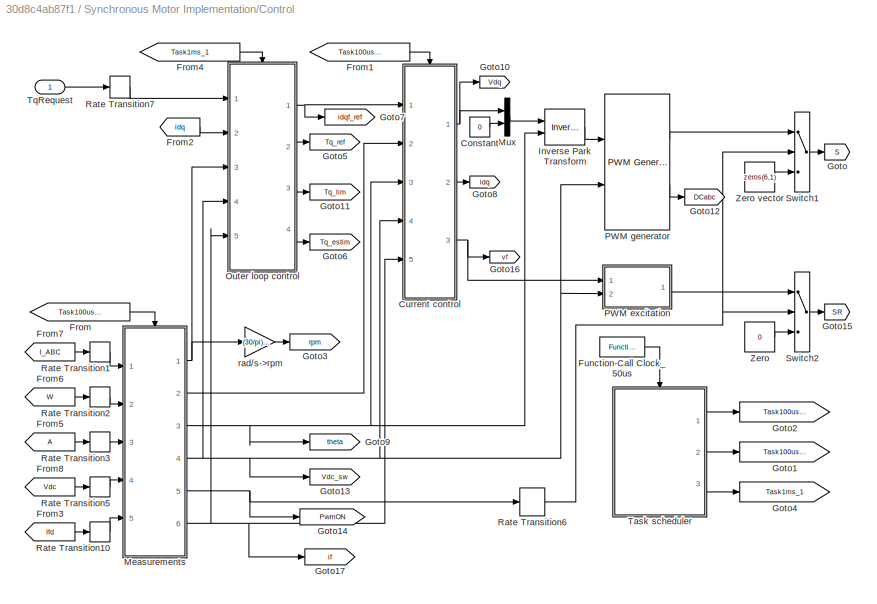
BLOCK [SubSystem] Synchronous Motor Implementation/Control
  Ports = [1]
  RequestExecContextInheritance = off
BLOCK [Constant] Synchronous Motor Implementation/Control/Constant
  SampleTime = -1
  Value = 0
BLOCK [SubSystem] Synchronous Motor Implementation/Control/Current control
  Ports = [5, 3, 0, 1]
  RequestExecContextInheritance = off
BLOCK [Constant] Synchronous Motor Implementation/Control/Current control/Constant
  SampleTime = -1
  Value = 0
BLOCK [Demux] Synchronous Motor Implementation/Control/Current control/Demux
  Outputs = 3
  Ports = [1, 3]
BLOCK [Selector] Synchronous Motor Implementation/Control/Current control/Disturbance selector
  IndexOptions = Index vector (dialog)
  Indices = [4:6]
  InputPortWidth = 6
  OutputSizes = 1
  Ports = [1, 1]
BLOCK [Reference] Synchronous Motor Implementation/Control/Current control/Filter  REF=eeGeneralControl/Low-Pass Filter
(Discrete or Continuous)
  Ports = [1, 1]
  SourceBlock = eeGeneralControl/Low-Pass Filter\n(Discrete or Continuous)
  SourceProductBaseCode = PS
  SourceType = Low-Pass Filter (Discrete or Continuous)
BLOCK [Reference] Synchronous Motor Implementation/Control/Current control/Filter1  REF=eeGeneralControl/Low-Pass Filter
(Discrete or Continuous)
  Ports = [1, 1]
  SourceBlock = eeGeneralControl/Low-Pass Filter\n(Discrete or Continuous)
  SourceProductBaseCode = PS
  SourceType = Low-Pass Filter (Discrete or Continuous)
BLOCK [Gain] Synchronous Motor Implementation/Control/Current control/Gain
  Gain = 1/sqrt(3)
BLOCK [Gain] Synchronous Motor Implementation/Control/Current control/Gain1
  Gain = 0.95
BLOCK [Inport] Synchronous Motor Implementation/Control/Current control/If
  Port = 5
BLOCK [Reference] Synchronous Motor Implementation/Control/Current control/Luenberger Observer  REF=eeLuenbergerObserver/Luenberger Observer
  Ports = [2, 1]
  SourceBlock = eeLuenbergerObserver/Luenberger Observer
  SourceProductBaseCode = PS
  SourceType = Luenberger Observer
BLOCK [Mux] Synchronous Motor Implementation/Control/Current control/Mux
  DisplayOption = bar
  Inputs = 2
  Ports = [2, 1]
BLOCK [Mux] Synchronous Motor Implementation/Control/Current control/Mux8
  DisplayOption = bar
  Inputs = 2
  Ports = [2, 1]
BLOCK [Reference] Synchronous Motor Implementation/Control/Current control/Park Transform  REF=eeTransforms/Park Transform
  Ports = [2, 1]
  SourceBlock = eeTransforms/Park Transform
  SourceProductBaseCode = PS
  SourceType = Park Transform
BLOCK [Selector] Synchronous Motor Implementation/Control/Current control/Selector
  IndexOptions = Index vector (dialog)
  Indices = [1 2]
  InputPortWidth = 3
  OutputSizes = 1
  Ports = [1, 1]
BLOCK [Reference] Synchronous Motor Implementation/Control/Current control/State-Feedback Controller  REF=eeAlternativeControllers/State-Feedback Controller
  Ports = [4, 1]
  SourceBlock = eeAlternativeControllers/State-Feedback Controller
  SourceProductBaseCode = PS
  SourceType = State-Feedback Controller
BLOCK [Sum] Synchronous Motor Implementation/Control/Current control/Sum
  Inputs = |++
  Ports = [2, 1]
BLOCK [TriggerPort] Synchronous Motor Implementation/Control/Current control/Task100us
  PortDimensions = 1
  Ports = []
  StatesWhenEnabling = held
  TriggerType = function-call
  VariantControl = Variant
BLOCK [Inport] Synchronous Motor Implementation/Control/Current control/Vdc
  Port = 4
BLOCK [Gain] Synchronous Motor Implementation/Control/Current control/Vdqf_FF
  Gain = inv(Bd)
  Multiplication = Matrix(K*u)
BLOCK [Reference] Synchronous Motor Implementation/Control/Current control/d-q Voltage Limiter  REF=eeDqVoltageLimiter/d-q Voltage Limiter
  Ports = [3, 2]
  SourceBlock = eeDqVoltageLimiter/d-q Voltage Limiter
  SourceProductBaseCode = PS
  SourceType = d-q Voltage Limiter
BLOCK [Inport] Synchronous Motor Implementation/Control/Current control/iabc
  Port = 2
BLOCK [Outport] Synchronous Motor Implementation/Control/Current control/idq
  Port = 2
  VectorParamsAs1DForOutWhenUnconnected = off
BLOCK [Inport] Synchronous Motor Implementation/Control/Current control/idqf_ref
BLOCK [Inport] Synchronous Motor Implementation/Control/Current control/theta
  Port = 3
BLOCK [Outport] Synchronous Motor Implementation/Control/Current control/vdq
  VectorParamsAs1DForOutWhenUnconnected = off
BLOCK [Outport] Synchronous Motor Implementation/Control/Current control/vf
  Port = 3
  VectorParamsAs1DForOutWhenUnconnected = off
BLOCK [SubSystem] Synchronous Motor Implementation/Control/Current control/vf limiter
  Ports = [2, 1]
  RequestExecContextInheritance = off
BLOCK [Reference] Synchronous Motor Implementation/Control/Current control/vf limiter/Saturation Dynamic1  REF=simulink/Discontinuities/Saturation
Dynamic
  Ports = [3, 1]
  SourceBlock = simulink/Discontinuities/Saturation\nDynamic
  SourceProductBaseCode = SL
  SourceType = Saturation Dynamic
BLOCK [Gain] Synchronous Motor Implementation/Control/Current control/vf limiter/Sign Change 
  Gain = -1
BLOCK [Inport] Synchronous Motor Implementation/Control/Current control/vf limiter/VfMax
  Port = 2
BLOCK [Outport] Synchronous Motor Implementation/Control/Current control/vf limiter/vfRef
  VectorParamsAs1DForOutWhenUnconnected = off
BLOCK [Inport] Synchronous Motor Implementation/Control/Current control/vf limiter/vfUnsat
BLOCK [From] Synchronous Motor Implementation/Control/From
  GotoTag = Task100us_1
BLOCK [From] Synchronous Motor Implementation/Control/From1
  GotoTag = Task100us_2
BLOCK [From] Synchronous Motor Implementation/Control/From2
  GotoTag = idq
  TagVisibility = global
BLOCK [From] Synchronous Motor Implementation/Control/From3
  GotoTag = Ifd
  TagVisibility = global
BLOCK [From] Synchronous Motor Implementation/Control/From4
  GotoTag = Task1ms_1
BLOCK [From] Synchronous Motor Implementation/Control/From5
  TagVisibility = global
BLOCK [From] Synchronous Motor Implementation/Control/From6
  GotoTag = W
  TagVisibility = global
BLOCK [From] Synchronous Motor Implementation/Control/From7
  GotoTag = I_ABC
  TagVisibility = global
BLOCK [From] Synchronous Motor Implementation/Control/From8
  GotoTag = Vdc
  TagVisibility = global
BLOCK [Reference] Synchronous Motor Implementation/Control/Function-Call Clock_50us  REF=simulink/Ports &
Subsystems/Function-Call
Generator
  Ports = [0, 1]
  SourceBlock = simulink/Ports &\nSubsystems/Function-Call\nGenerator
  SourceProductBaseCode = SL
  SourceType = Function-Call Generator
BLOCK [Goto] Synchronous Motor Implementation/Control/Goto
  GotoTag = S
  TagVisibility = global
BLOCK [Goto] Synchronous Motor Implementation/Control/Goto1
  GotoTag = Task100us_2
BLOCK [Goto] Synchronous Motor Implementation/Control/Goto10
  GotoTag = Vdq
  TagVisibility = global
BLOCK [Goto] Synchronous Motor Implementation/Control/Goto11
  GotoTag = Tq_lim
  TagVisibility = global
BLOCK [Goto] Synchronous Motor Implementation/Control/Goto12
  GotoTag = DCabc
  TagVisibility = global
BLOCK [Goto] Synchronous Motor Implementation/Control/Goto13
  GotoTag = Vdc_sw
  TagVisibility = global
BLOCK [Goto] Synchronous Motor Implementation/Control/Goto14
  GotoTag = PwmON
  TagVisibility = global
BLOCK [Goto] Synchronous Motor Implementation/Control/Goto15
  GotoTag = SR
  TagVisibility = global
BLOCK [Goto] Synchronous Motor Implementation/Control/Goto16
  GotoTag = vf
  TagVisibility = global
BLOCK [Goto] Synchronous Motor Implementation/Control/Goto17
  GotoTag = if
  TagVisibility = global
BLOCK [Goto] Synchronous Motor Implementation/Control/Goto2
  GotoTag = Task100us_1
BLOCK [Goto] Synchronous Motor Implementation/Control/Goto3
  GotoTag = rpm
  TagVisibility = global
BLOCK [Goto] Synchronous Motor Implementation/Control/Goto4
  GotoTag = Task1ms_1
BLOCK [Goto] Synchronous Motor Implementation/Control/Goto5
  GotoTag = Tq_ref
  TagVisibility = global
BLOCK [Goto] Synchronous Motor Implementation/Control/Goto6
  GotoTag = Tq_estim
  TagVisibility = global
BLOCK [Goto] Synchronous Motor Implementation/Control/Goto7
  GotoTag = idqf_ref
  TagVisibility = global
BLOCK [Goto] Synchronous Motor Implementation/Control/Goto8
  GotoTag = idq
  TagVisibility = global
BLOCK [Goto] Synchronous Motor Implementation/Control/Goto9
  GotoTag = theta
  TagVisibility = global
BLOCK [Reference] Synchronous Motor Implementation/Control/Inverse Park Transform  REF=eeTransforms/Inverse
Park Transform
  Ports = [2, 1]
  SourceBlock = eeTransforms/Inverse\nPark Transform
  SourceProductBaseCode = PS
  SourceType = Inverse Park Transform
BLOCK [SubSystem] Synchronous Motor Implementation/Control/Measurements
  Ports = [5, 6, 0, 1]
  RequestExecContextInheritance = off
BLOCK [Constant] Synchronous Motor Implementation/Control/Measurements/Constant
  SampleTime = -1
  Value = 2*pi
BLOCK [Inport] Synchronous Motor Implementation/Control/Measurements/Ifd
  Port = 5
BLOCK [Reference] Synchronous Motor Implementation/Control/Measurements/Low-Pass Filter (Discrete or Continuous)  REF=eeGeneralControl/Low-Pass Filter
(Discrete or Continuous)
  Ports = [1, 1]
  SourceBlock = eeGeneralControl/Low-Pass Filter\n(Discrete or Continuous)
  SourceProductBaseCode = PS
  SourceType = Low-Pass Filter (Discrete or Continuous)
BLOCK [Math] Synchronous Motor Implementation/Control/Measurements/Math Function
  Operator = mod
  Ports = [2, 1]
  SignedPower = on
BLOCK [Outport] Synchronous Motor Implementation/Control/Measurements/PwmON
  Port = 5
  VectorParamsAs1DForOutWhenUnconnected = off
BLOCK [Relay] Synchronous Motor Implementation/Control/Measurements/Relay
  OffSwitchValue = 0.3750*Vnom
  OnSwitchValue = 0.75*Vnom
BLOCK [TriggerPort] Synchronous Motor Implementation/Control/Measurements/Task100us
  PortDimensions = 1
  Ports = []
  StatesWhenEnabling = held
  TriggerType = function-call
  VariantControl = Variant
BLOCK [Outport] Synchronous Motor Implementation/Control/Measurements/Vdc
  Port = 4
  VectorParamsAs1DForOutWhenUnconnected = off
BLOCK [Inport] Synchronous Motor Implementation/Control/Measurements/Vdc_m
  Port = 4
BLOCK [Outport] Synchronous Motor Implementation/Control/Measurements/iabc
  Port = 2
  VectorParamsAs1DForOutWhenUnconnected = off
BLOCK [Inport] Synchronous Motor Implementation/Control/Measurements/iabc_m
BLOCK [Outport] Synchronous Motor Implementation/Control/Measurements/if
  Port = 6
  VectorParamsAs1DForOutWhenUnconnected = off
BLOCK [Outport] Synchronous Motor Implementation/Control/Measurements/omega
  VectorParamsAs1DForOutWhenUnconnected = off
BLOCK [Inport] Synchronous Motor Implementation/Control/Measurements/omega_m
  Port = 2
BLOCK [Gain] Synchronous Motor Implementation/Control/Measurements/pole pairs
  Gain = p
BLOCK [Gain] Synchronous Motor Implementation/Control/Measurements/pole pairs 
  Gain = p
BLOCK [Outport] Synchronous Motor Implementation/Control/Measurements/theta
  Port = 3
  VectorParamsAs1DForOutWhenUnconnected = off
BLOCK [Inport] Synchronous Motor Implementation/Control/Measurements/theta_m
  Port = 3
BLOCK [Mux] Synchronous Motor Implementation/Control/Mux
  DisplayOption = bar
  Inputs = 2
  Ports = [2, 1]
BLOCK [SubSystem] Synchronous Motor Implementation/Control/Outer loop control
  Ports = [5, 4, 0, 1]
  RequestExecContextInheritance = off
BLOCK [Reference] Synchronous Motor Implementation/Control/Outer loop control/Current Reference Generator  REF=eeSmCurrentReferenceGen/SM Current Reference
Generator
  Ports = [3, 3]
  SourceBlock = eeSmCurrentReferenceGen/SM Current Reference\nGenerator
  SourceProductBaseCode = PS
  SourceType = SM Current Reference Generator
BLOCK [TriggerPort] Synchronous Motor Implementation/Control/Outer loop control/Task1ms
  PortDimensions = 1
  Ports = []
  StatesWhenEnabling = held
  TriggerType = function-call
  VariantControl = Variant
BLOCK [SubSystem] Synchronous Motor Implementation/Control/Outer loop control/Torque Estimation
  Ports = [2, 1]
  RequestExecContextInheritance = off
BLOCK [Demux] Synchronous Motor Implementation/Control/Outer loop control/Torque Estimation/Demux
  Outputs = 2
  Ports = [1, 2]
BLOCK [Gain] Synchronous Motor Implementation/Control/Outer loop control/Torque Estimation/Gain
  Gain = Ld-Lq
BLOCK [Gain] Synchronous Motor Implementation/Control/Outer loop control/Torque Estimation/Gain1
  Gain = Lmf
BLOCK [Gain] Synchronous Motor Implementation/Control/Outer loop control/Torque Estimation/Gain2
  Gain = 1.5*p
BLOCK [Product] Synchronous Motor Implementation/Control/Outer loop control/Torque Estimation/Product
  Ports = [2, 1]
BLOCK [Product] Synchronous Motor Implementation/Control/Outer loop control/Torque Estimation/Product1
  Ports = [2, 1]
BLOCK [Sum] Synchronous Motor Implementation/Control/Outer loop control/Torque Estimation/Sum
  Inputs = |++
  Ports = [2, 1]
BLOCK [Outport] Synchronous Motor Implementation/Control/Outer loop control/Torque Estimation/Tq_estim
  VectorParamsAs1DForOutWhenUnconnected = off
BLOCK [Inport] Synchronous Motor Implementation/Control/Outer loop control/Torque Estimation/idq
BLOCK [Inport] Synchronous Motor Implementation/Control/Outer loop control/Torque Estimation/if
  Port = 2
BLOCK [Inport] Synchronous Motor Implementation/Control/Outer loop control/TqReq
BLOCK [Outport] Synchronous Motor Implementation/Control/Outer loop control/Tq_estim
  Port = 4
  VectorParamsAs1DForOutWhenUnconnected = off
BLOCK [Outport] Synchronous Motor Implementation/Control/Outer loop control/Tq_lim
  Port = 3
  VectorParamsAs1DForOutWhenUnconnected = off
BLOCK [Outport] Synchronous Motor Implementation/Control/Outer loop control/Tq_ref
  Port = 2
  VectorParamsAs1DForOutWhenUnconnected = off
BLOCK [Inport] Synchronous Motor Implementation/Control/Outer loop control/Vdc
  Port = 4
BLOCK [Gain] Synchronous Motor Implementation/Control/Outer loop control/elec->mech
  Gain = 1/p
BLOCK [Inport] Synchronous Motor Implementation/Control/Outer loop control/idq
  Port = 2
BLOCK [Outport] Synchronous Motor Implementation/Control/Outer loop control/idqf_ref
  VectorParamsAs1DForOutWhenUnconnected = off
BLOCK [Inport] Synchronous Motor Implementation/Control/Outer loop control/if
  Port = 5
BLOCK [Inport] Synchronous Motor Implementation/Control/Outer loop control/omega
  Port = 3
BLOCK [SubSystem] Synchronous Motor Implementation/Control/PWM excitation
  Ports = [2, 1]
  RequestExecContextInheritance = off
BLOCK [Constant] Synchronous Motor Implementation/Control/PWM excitation/Constant
  SampleTime = -1
  Value = 0.5
BLOCK [Outport] Synchronous Motor Implementation/Control/PWM excitation/G
  VectorParamsAs1DForOutWhenUnconnected = off
BLOCK [Gain] Synchronous Motor Implementation/Control/PWM excitation/Gain
  Gain = 0.5
BLOCK [Reference] Synchronous Motor Implementation/Control/PWM excitation/PWM Generator  REF=eePwmGenerator/PWM Generator
  Ports = [1, 1]
  SourceBlock = eePwmGenerator/PWM Generator
  SourceProductBaseCode = PS
  SourceType = PWM Generator
BLOCK [Product] Synchronous Motor Implementation/Control/PWM excitation/Product
  Inputs = */
  Ports = [2, 1]
BLOCK [RateTransition] Synchronous Motor Implementation/Control/PWM excitation/Rate Transition
BLOCK [Saturate] Synchronous Motor Implementation/Control/PWM excitation/Saturation
  LowerLimit = 1
  UpperLimit = inf
BLOCK [Saturate] Synchronous Motor Implementation/Control/PWM excitation/Saturation 
  LowerLimit = 0
  UpperLimit = 1
BLOCK [Sum] Synchronous Motor Implementation/Control/PWM excitation/Sum
  Inputs = |++
  Ports = [2, 1]
BLOCK [Inport] Synchronous Motor Implementation/Control/PWM excitation/Vdc
  Port = 2
BLOCK [Inport] Synchronous Motor Implementation/Control/PWM excitation/vf
BLOCK [Reference] Synchronous Motor Implementation/Control/PWM generator  REF=eePwmGeneratorTwoLevel/PWM Generator
(Three-phase, Two-level)
  Ports = [2, 2]
  SourceBlock = eePwmGeneratorTwoLevel/PWM Generator\n(Three-phase, Two-level)
  SourceProductBaseCode = PS
  SourceType = PWM Generator (three-phase, two-level)
BLOCK [RateTransition] Synchronous Motor Implementation/Control/Rate Transition1
BLOCK [RateTransition] Synchronous Motor Implementation/Control/Rate Transition10
BLOCK [RateTransition] Synchronous Motor Implementation/Control/Rate Transition2
BLOCK [RateTransition] Synchronous Motor Implementation/Control/Rate Transition3
BLOCK [RateTransition] Synchronous Motor Implementation/Control/Rate Transition5
BLOCK [RateTransition] Synchronous Motor Implementation/Control/Rate Transition6
BLOCK [RateTransition] Synchronous Motor Implementation/Control/Rate Transition7
BLOCK [Switch] Synchronous Motor Implementation/Control/Switch1
  Criteria = u2 > Threshold
  InputSameDT = off
  SaturateOnIntegerOverflow = off
BLOCK [Switch] Synchronous Motor Implementation/Control/Switch2
  Criteria = u2 > Threshold
  InputSameDT = off
  SaturateOnIntegerOverflow = off
BLOCK [SubSystem] Synchronous Motor Implementation/Control/Task scheduler
  ErrorFcn = Stateflow.Translate.translate
  PermitHierarchicalResolution = ExplicitOnly
  Ports = [0, 3, 0, 1]
  RequestExecContextInheritance = off
  SFBlockType = Chart
  TreatAsAtomicUnit = on
BLOCK [Demux] Synchronous Motor Implementation/Control/Task scheduler/ Demux 
  Outputs = 3
  Ports = [1, 3]
BLOCK [S-Function] Synchronous Motor Implementation/Control/Task scheduler/ SFunction 
  EnableBusSupport = on
  FunctionName = sf_sfun
  PortCounts = [1 1]
  Ports = [1, 1]
  SFcnIsStateOwnerBlock = off
  SFunctionDeploymentMode = off
  Tag = Stateflow S-Function 3
BLOCK [TriggerPort] Synchronous Motor Implementation/Control/Task scheduler/CLK_50us
  Ports = [0, 1]
  ShowOutputPort = on
  TriggerType = function-call
  VariantControl = Variant
BLOCK [Outport] Synchronous Motor Implementation/Control/Task scheduler/Task_100us_1()
  VectorParamsAs1DForOutWhenUnconnected = off
BLOCK [Outport] Synchronous Motor Implementation/Control/Task scheduler/Task_100us_2()
  Port = 2
  VectorParamsAs1DForOutWhenUnconnected = off
BLOCK [Outport] Synchronous Motor Implementation/Control/Task scheduler/Task_1ms_1()
  Port = 3
  VectorParamsAs1DForOutWhenUnconnected = off
BLOCK [Inport] Synchronous Motor Implementation/Control/TqRequest
BLOCK [Constant] Synchronous Motor Implementation/Control/Zero 
  SampleTime = -1
  Value = 0
BLOCK [Constant] Synchronous Motor Implementation/Control/Zero vector
  SampleTime = -1
  Value = zeros(6,1)
BLOCK [Gain] Synchronous Motor Implementation/Control/rad//s->rpm
  Gain = (30/pi)/p
BLOCK [SubSystem] Synchronous Motor Implementation/Currrent Sensor
  Ports = [0, 0, 0, 0, 0, 1, 1]
  RequestExecContextInheritance = off
BLOCK [PMIOPort] Synchronous Motor Implementation/Currrent Sensor/+
  Side = Left
BLOCK [PMIOPort] Synchronous Motor Implementation/Currrent Sensor/-
  Port = 2
  Side = Right
BLOCK [Reference] Synchronous Motor Implementation/Currrent Sensor/Current Sensor  REF=fl_lib/Electrical/Electrical Sensors/Current Sensor
  Ports = [0, 0, 0, 0, 0, 1, 2]
  SourceBlock = fl_lib/Electrical/Electrical Sensors/Current Sensor
  SourceProductBaseCode = SS
  SourceType = Current Sensor
BLOCK [Goto] Synchronous Motor Implementation/Currrent Sensor/Goto1
  GotoTag = Ifd
  TagVisibility = global
BLOCK [Reference] Synchronous Motor Implementation/Currrent Sensor/PS-Simulink Converter  REF=nesl_utility/PS-Simulink
Converter
  Ports = [0, 1, 0, 0, 0, 1]
  SourceBlock = nesl_utility/PS-Simulink\nConverter
  SourceProductBaseCode = PW,SS
  SourceType = PS-Simulink\nConverter
BLOCK [Reference] Synchronous Motor Implementation/Electrical Reference  REF=fl_lib/Electrical/Electrical Elements/Electrical Reference
  NameLocation = right
  Ports = [0, 0, 0, 0, 0, 1]
  SourceBlock = fl_lib/Electrical/Electrical Elements/Electrical Reference
  SourceProductBaseCode = SS
  SourceType = Electrical Reference
BLOCK [Reference] Synchronous Motor Implementation/Electrical Reference2  REF=fl_lib/Electrical/Electrical Elements/Electrical Reference
  NameLocation = right
  Ports = [0, 0, 0, 0, 0, 1]
  SourceBlock = fl_lib/Electrical/Electrical Elements/Electrical Reference
  SourceProductBaseCode = SS
  SourceType = Electrical Reference
BLOCK [Constant] Synchronous Motor Implementation/Field Voltage Control
  Value = 600
BLOCK [Reference] Synchronous Motor Implementation/Field Voltage Source  REF=fl_lib/Electrical/Electrical Sources/Controlled Voltage
Source
  Ports = [0, 0, 0, 0, 0, 1, 2]
  SourceBlock = fl_lib/Electrical/Electrical Sources/Controlled Voltage\nSource
  SourceProductBaseCode = SS
  SourceType = Controlled Voltage\nSource
BLOCK [From] Synchronous Motor Implementation/From1
  GotoTag = load
  TagVisibility = global
BLOCK [Goto] Synchronous Motor Implementation/Goto
  GotoTag = load
  TagVisibility = global
BLOCK [Reference] Synchronous Motor Implementation/Ideal Torque Source  REF=fl_lib/Mechanical/Mechanical Sources/Ideal Torque Source
  NameLocation = top
  Ports = [0, 0, 0, 0, 0, 1, 2]
  SourceBlock = fl_lib/Mechanical/Mechanical Sources/Ideal Torque Source
  SourceProductBaseCode = SS
  SourceType = Ideal Torque Source
BLOCK [Reference] Synchronous Motor Implementation/Inertia  REF=fl_lib/Mechanical/Rotational Elements/Inertia
  NameLocation = right
  Ports = [0, 0, 0, 0, 0, 1]
  SourceBlock = fl_lib/Mechanical/Rotational Elements/Inertia
  SourceProductBaseCode = SS
  SourceType = Inertia
BLOCK [Reference] Synchronous Motor Implementation/Input  REF=SignalEditorBlockLib/Signal Editor
  Ports = [0, 2]
  SourceBlock = SignalEditorBlockLib/Signal Editor
  SourceProductBaseCode = SL
  SourceType = SignalEditor
  UserDataPersistent = on
BLOCK [SubSystem] Synchronous Motor Implementation/MATLAB Function
  ErrorFcn = Stateflow.Translate.translate
  PermitHierarchicalResolution = ExplicitOnly
  Ports = [6, 3]
  RequestExecContextInheritance = off
  SFBlockType = MATLAB Function
  TreatAsAtomicUnit = on
BLOCK [Demux] Synchronous Motor Implementation/MATLAB Function/ Demux 
  Outputs = 1
  Ports = [1, 1]
BLOCK [S-Function] Synchronous Motor Implementation/MATLAB Function/ SFunction 
  EnableBusSupport = on
  FunctionName = sf_sfun
  PortCounts = [6 4]
  Ports = [6, 4]
  SFcnIsStateOwnerBlock = off
  SFunctionDeploymentMode = off
  Tag = Stateflow S-Function 2
BLOCK [Terminator] Synchronous Motor Implementation/MATLAB Function/ Terminator 
BLOCK [Outport] Synchronous Motor Implementation/MATLAB Function/T1
BLOCK [Outport] Synchronous Motor Implementation/MATLAB Function/T2
  Port = 2
BLOCK [Outport] Synchronous Motor Implementation/MATLAB Function/T3
  Port = 3
BLOCK [Inport] Synchronous Motor Implementation/MATLAB Function/Vdc
  Port = 2
BLOCK [Inport] Synchronous Motor Implementation/MATLAB Function/Vref
  Port = 3
BLOCK [Inport] Synchronous Motor Implementation/MATLAB Function/alpha
  Port = 6
BLOCK [Inport] Synchronous Motor Implementation/MATLAB Function/fsw
  Port = 4
BLOCK [Inport] Synchronous Motor Implementation/MATLAB Function/simEnd
  Port = 5
BLOCK [Inport] Synchronous Motor Implementation/MATLAB Function/simTime
BLOCK [Reference] Synchronous Motor Implementation/MRRef IPMSM1  REF=fl_lib/Mechanical/Rotational Elements/Mechanical
Rotational Reference
  NameLocation = top
  Ports = [0, 0, 0, 0, 0, 1]
  SourceBlock = fl_lib/Mechanical/Rotational Elements/Mechanical\nRotational Reference
  SourceProductBaseCode = SS
  SourceType = Mechanical\nRotational Reference
BLOCK [Reference] Synchronous Motor Implementation/MRRef Load1  REF=fl_lib/Mechanical/Rotational Elements/Mechanical
Rotational Reference
  Ports = [0, 0, 0, 0, 0, 1]
  SourceBlock = fl_lib/Mechanical/Rotational Elements/Mechanical\nRotational Reference
  SourceProductBaseCode = SS
  SourceType = Mechanical\nRotational Reference
BLOCK [From] Synchronous Motor Implementation/Rotor Angle
  TagVisibility = global
BLOCK [SubSystem] Synchronous Motor Implementation/Scopes
  Ports = []
  RequestExecContextInheritance = off
BLOCK [Reference] Synchronous Motor Implementation/Scopes/Filter  REF=eeGeneralControl/Low-Pass Filter
(Discrete or Continuous)
  Ports = [1, 1]
  SourceBlock = eeGeneralControl/Low-Pass Filter\n(Discrete or Continuous)
  SourceProductBaseCode = PS
  SourceType = Low-Pass Filter (Discrete or Continuous)
BLOCK [Reference] Synchronous Motor Implementation/Scopes/Filter1  REF=eeGeneralControl/Low-Pass Filter
(Discrete or Continuous)
  Ports = [1, 1]
  SourceBlock = eeGeneralControl/Low-Pass Filter\n(Discrete or Continuous)
  SourceProductBaseCode = PS
  SourceType = Low-Pass Filter (Discrete or Continuous)
BLOCK [From] Synchronous Motor Implementation/Scopes/From1
  GotoTag = rpm
  TagVisibility = global
BLOCK [From] Synchronous Motor Implementation/Scopes/From10
  GotoTag = Tq_lim
  TagVisibility = global
BLOCK [From] Synchronous Motor Implementation/Scopes/From11
  GotoTag = DCabc
  TagVisibility = global
BLOCK [From] Synchronous Motor Implementation/Scopes/From12
  GotoTag = Tq_meas
  TagVisibility = global
BLOCK [From] Synchronous Motor Implementation/Scopes/From13
  GotoTag = PwmON
  TagVisibility = global
BLOCK [From] Synchronous Motor Implementation/Scopes/From14
  GotoTag = if
  TagVisibility = global
BLOCK [From] Synchronous Motor Implementation/Scopes/From15
  GotoTag = vf
  TagVisibility = global
BLOCK [From] Synchronous Motor Implementation/Scopes/From2
  GotoTag = Tq_ref
  TagVisibility = global
BLOCK [From] Synchronous Motor Implementation/Scopes/From3
  GotoTag = Tq_estim
  TagVisibility = global
BLOCK [From] Synchronous Motor Implementation/Scopes/From4
  GotoTag = idqf_ref
  TagVisibility = global
BLOCK [From] Synchronous Motor Implementation/Scopes/From5
  GotoTag = idq
  TagVisibility = global
BLOCK [From] Synchronous Motor Implementation/Scopes/From6
  GotoTag = I_ABC
  TagVisibility = global
BLOCK [From] Synchronous Motor Implementation/Scopes/From7
  GotoTag = Vdc_sw
  TagVisibility = global
BLOCK [From] Synchronous Motor Implementation/Scopes/From8
  GotoTag = theta
  TagVisibility = global
BLOCK [From] Synchronous Motor Implementation/Scopes/From9
  GotoTag = Vdq
  TagVisibility = global
BLOCK [Gain] Synchronous Motor Implementation/Scopes/Gain
  Gain = -1
BLOCK [Mux] Synchronous Motor Implementation/Scopes/Mux1
  DisplayOption = bar
  Inputs = 5
  Ports = [5, 1]
BLOCK [Mux] Synchronous Motor Implementation/Scopes/Mux2
  DisplayOption = bar
  Inputs = 3
  Ports = [3, 1]
BLOCK [RateTransition] Synchronous Motor Implementation/Scopes/Rate Transition1
  OutPortSampleTime = Tsi
BLOCK [RateTransition] Synchronous Motor Implementation/Scopes/Rate Transition2
BLOCK [RateTransition] Synchronous Motor Implementation/Scopes/Rate Transition3
BLOCK [RateTransition] Synchronous Motor Implementation/Scopes/Rate Transition4
  OutPortSampleTime = Tsi
BLOCK [RateTransition] Synchronous Motor Implementation/Scopes/Rate Transition5
  OutPortSampleTime = Tsi
BLOCK [RateTransition] Synchronous Motor Implementation/Scopes/Rate Transition6
  OutPortSampleTime = Tsi
BLOCK [Scope] Synchronous Motor Implementation/Scopes/Scope1
  Floating = off
  NumInputPorts = 4
  Ports = [4]
  ScopeSpecificationString = Simulink.scopes.TimeScopeBlockCfg('CurrentConfiguration', extmgr.ConfigurationSet(extmgr.Configuration('Core','General UI',true),extmgr.Configuration('Core','Source UI',true),extmgr.Configuration('Sources','WiredSimulink',true,'DataLoggingVariableName','ScopeData1','DataLoggingSaveFormat','Array','DataLoggingDecimation','1','DataLoggingDecimateData',true),extmgr.Configuration('Visuals','Time Domai...<+3947ch>
BLOCK [Scope] Synchronous Motor Implementation/Scopes/Scope2
  Floating = off
  NumInputPorts = 4
  Ports = [4]
  ScopeSpecificationString = Simulink.scopes.TimeScopeBlockCfg('CurrentConfiguration', extmgr.ConfigurationSet(extmgr.Configuration('Core','General UI',true),extmgr.Configuration('Core','Source UI',true),extmgr.Configuration('Sources','WiredSimulink',true,'DataLoggingVariableName','ScopeData3','DataLoggingSaveFormat','Array','DataLoggingDecimation','1','DataLoggingDecimateData',true),extmgr.Configuration('Visuals','Time Domai...<+3663ch>
BLOCK [Selector] Synchronous Motor Implementation/Scopes/Selector
  IndexOptions = Index vector (dialog)
  Indices = [1 4]
  InputPortWidth = 6
  OutputSizes = 1
  Ports = [1, 1]
BLOCK [Selector] Synchronous Motor Implementation/Scopes/Selector1
  IndexOptions = Index vector (dialog)
  Indices = [2 5]
  InputPortWidth = 6
  OutputSizes = 1
  Ports = [1, 1]
BLOCK [Selector] Synchronous Motor Implementation/Scopes/Selector2
  IndexOptions = Index vector (dialog)
  Indices = [3 6]
  InputPortWidth = 6
  OutputSizes = 1
  Ports = [1, 1]
BLOCK [Scope] Synchronous Motor Implementation/Scopes/VDC
  Floating = off
  NumInputPorts = 1
  Ports = [1]
  ScopeSpecificationString = Simulink.scopes.TimeScopeBlockCfg('CurrentConfiguration', extmgr.ConfigurationSet(extmgr.Configuration('Core','General UI',true),extmgr.Configuration('Core','Source UI',true),extmgr.Configuration('Sources','WiredSimulink',true,'DataLoggingSaveFormat','Array','DataLoggingDecimation','1','DataLoggingDecimateData',true),extmgr.Configuration('Visuals','Time Domain',true,'SerializedDisplays',{struct('M...<+1513ch>
BLOCK [Scope] Synchronous Motor Implementation/Scopes/idqf 
  Floating = off
  NumInputPorts = 3
  Ports = [3]
  ScopeSpecificationString = Simulink.scopes.TimeScopeBlockCfg('CurrentConfiguration', extmgr.ConfigurationSet(extmgr.Configuration('Core','General UI',true),extmgr.Configuration('Core','Source UI',true),extmgr.Configuration('Sources','WiredSimulink',true,'DataLoggingVariableName','ScopeData2','DataLoggingSaveFormat','Array','DataLoggingDecimation','1','DataLoggingDecimateData',true),extmgr.Configuration('Visuals','Time Domai...<+3045ch>
BLOCK [SubSystem] Synchronous Motor Implementation/Sensing Vdc
  NameLocation = right
  Ports = [0, 0, 0, 0, 0, 1, 1]
  RequestExecContextInheritance = off
BLOCK [PMIOPort] Synchronous Motor Implementation/Sensing Vdc/+
  Side = Left
BLOCK [PMIOPort] Synchronous Motor Implementation/Sensing Vdc/-
  Port = 2
  Side = Right
BLOCK [Goto] Synchronous Motor Implementation/Sensing Vdc/Goto1
  GotoTag = Vdc
  TagVisibility = global
BLOCK [Reference] Synchronous Motor Implementation/Sensing Vdc/PS-Simulink Converter4  REF=nesl_utility/PS-Simulink
Converter
  Ports = [0, 1, 0, 0, 0, 1]
  SourceBlock = nesl_utility/PS-Simulink\nConverter
  SourceProductBaseCode = PW,SS
  SourceType = PS-Simulink\nConverter
BLOCK [Reference] Synchronous Motor Implementation/Sensing Vdc/Voltage Sensor  REF=fl_lib/Electrical/Electrical Sensors/Voltage Sensor
  Ports = [0, 0, 0, 0, 0, 1, 2]
  SourceBlock = fl_lib/Electrical/Electrical Sensors/Voltage Sensor
  SourceProductBaseCode = SS
  SourceType = Voltage Sensor
BLOCK [SubSystem] Synchronous Motor Implementation/Sensing trq1
  Ports = [0, 0, 0, 0, 0, 1, 1]
  RequestExecContextInheritance = off
BLOCK [PMIOPort] Synchronous Motor Implementation/Sensing trq1/C
  Port = 2
  Side = Right
BLOCK [Goto] Synchronous Motor Implementation/Sensing trq1/Goto4
  GotoTag = Tq_meas
  TagVisibility = global
BLOCK [Reference] Synchronous Motor Implementation/Sensing trq1/PS-Simulink Converter3  REF=nesl_utility/PS-Simulink
Converter
  Ports = [0, 1, 0, 0, 0, 1]
  SourceBlock = nesl_utility/PS-Simulink\nConverter
  SourceProductBaseCode = PW,SS
  SourceType = PS-Simulink\nConverter
BLOCK [PMIOPort] Synchronous Motor Implementation/Sensing trq1/R
  Side = Left
BLOCK [Reference] Synchronous Motor Implementation/Sensing trq1/Torque Sensor  REF=fl_lib/Mechanical/Mechanical Sensors/Ideal Torque Sensor
  Ports = [0, 0, 0, 0, 0, 1, 2]
  SourceBlock = fl_lib/Mechanical/Mechanical Sensors/Ideal Torque Sensor
  SourceProductBaseCode = SS
  SourceType = Ideal Torque Sensor
BLOCK [SubSystem] Synchronous Motor Implementation/Sensing w a1
  NameLocation = right
  Ports = [0, 0, 0, 0, 0, 1]
  RequestExecContextInheritance = off
BLOCK [Goto] Synchronous Motor Implementation/Sensing w a1/Goto2
  GotoTag = W
  TagVisibility = global
BLOCK [Goto] Synchronous Motor Implementation/Sensing w a1/Goto3
  TagVisibility = global
BLOCK [Reference] Synchronous Motor Implementation/Sensing w a1/MRRef  REF=fl_lib/Mechanical/Rotational Elements/Mechanical
Rotational Reference
  NameLocation = left
  Ports = [0, 0, 0, 0, 0, 1]
  SourceBlock = fl_lib/Mechanical/Rotational Elements/Mechanical\nRotational Reference
  SourceProductBaseCode = SS
  SourceType = Mechanical\nRotational Reference
BLOCK [Reference] Synchronous Motor Implementation/Sensing w a1/Motion Sensor  REF=fl_lib/Mechanical/Mechanical Sensors/Ideal Rotational
Motion Sensor
  NameLocation = right
  Ports = [0, 0, 0, 0, 0, 1, 3]
  SourceBlock = fl_lib/Mechanical/Mechanical Sensors/Ideal Rotational\nMotion Sensor
  SourceProductBaseCode = SS
  SourceType = Ideal Rotational\nMotion Sensor
BLOCK [Reference] Synchronous Motor Implementation/Sensing w a1/PS-Simulink Converter1  REF=nesl_utility/PS-Simulink
Converter
  Ports = [0, 1, 0, 0, 0, 1]
  SourceBlock = nesl_utility/PS-Simulink\nConverter
  SourceProductBaseCode = PW,SS
  SourceType = PS-Simulink\nConverter
BLOCK [Reference] Synchronous Motor Implementation/Sensing w a1/PS-Simulink Converter2  REF=nesl_utility/PS-Simulink
Converter
  Ports = [0, 1, 0, 0, 0, 1]
  SourceBlock = nesl_utility/PS-Simulink\nConverter
  SourceProductBaseCode = PW,SS
  SourceType = PS-Simulink\nConverter
BLOCK [PMIOPort] Synchronous Motor Implementation/Sensing w a1/R
  NameLocation = right
  Side = Left
BLOCK [Reference] Synchronous Motor Implementation/Simulink-PS Converter  REF=nesl_utility/Simulink-PS
Converter
  Ports = [1, 0, 0, 0, 0, 0, 1]
  SourceBlock = nesl_utility/Simulink-PS\nConverter
  SourceProductBaseCode = PW,SS
  SourceType = Simulink-PS\nConverter
BLOCK [Reference] Synchronous Motor Implementation/Simulink-PS Converter1  REF=nesl_utility/Simulink-PS
Converter
  Ports = [1, 0, 0, 0, 0, 0, 1]
  SourceBlock = nesl_utility/Simulink-PS\nConverter
  SourceProductBaseCode = PW,SS
  SourceType = Simulink-PS\nConverter
BLOCK [Reference] Synchronous Motor Implementation/Solver Configuration1  REF=nesl_utility/Solver
Configuration
  Ports = [0, 0, 0, 0, 0, 0, 1]
  SourceBlock = nesl_utility/Solver\nConfiguration
  SourceProductBaseCode = PW,SS
  SourceType = Solver\nConfiguration
BLOCK [Reference] Synchronous Motor Implementation/Synchronous Machine Model 1.0  REF=ee_lib/Electromechanical/Synchronous/Synchronous Machine
Model 1.0
  Ports = [0, 0, 0, 0, 0, 4, 4]
  SourceBlock = ee_lib/Electromechanical/Synchronous/Synchronous Machine\nModel 1.0
  SourceProductBaseCode = PS
  SourceType = Synchronous Machine\nModel 1.0
BLOCK [From] Synchronous Motor Implementation/Voltage from Source
  GotoTag = Vdc
  TagVisibility = global
BLOCK [Gain] Synchronous Motor Implementation/Vref (% of VrefMax)
  Gain = 0.8
BLOCK [Gain] Synchronous Motor Implementation/VrefMax
  Gain = 1/sqrt(3)
ANNOTATION Example Model - Not Exactly Correct, But Good Reference (Needs Example_Workspace to be loaded to work): 1. Plot torque of motor ( see code ) 2. Explore simulation results using sscexplore 3. Modify model parameters 4. Learn more about this example
ANNOTATION Example Model - Not Exactly Correct, But Good Reference (Needs Example_Workspace to be loaded to work): Synchronous Machine State-Space Control
ANNOTATION Frida Examplle: Don't put Vdc on field winding
ANNOTATION Frida Examplle: Make load more sophisticated than this?
ANNOTATION Subsystem1/Monitoring1: 12.7 radians ~= 720 degrees or 2 rotations of rotor
ANNOTATION Synchronous Motor Implementation Part 1/Monitoring: 12.7 radians ~= 720 degrees or 2 rotations of rotor
ANNOTATION Synchronous Motor Implementation Part 2 Practice/Monitoring1: 12.7 radians ~= 720 degrees or 2 rotations of rotor
ANNOTATION Synchronous Motor Implementation Part 2/Monitoring1: 12.7 radians ~= 720 degrees or 2 rotations of rotor
LINE Example Model - Not Exactly Correct, But Good Reference (Needs Example_Workspace to be loaded to work)/Control/Constant:1 -> Example Model - Not Exactly Correct, But Good Reference (Needs Example_Workspace to be loaded to work)/Control/Mux:2
LINE Example Model - Not Exactly Correct, But Good Reference (Needs Example_Workspace to be loaded to work)/Control/Current control/Constant:1 -> Example Model - Not Exactly Correct, But Good Reference (Needs Example_Workspace to be loaded to work)/Control/Current control/State-Feedback Controller:4
LINE Example Model - Not Exactly Correct, But Good Reference (Needs Example_Workspace to be loaded to work)/Control/Current control/Demux:1 -> Example Model - Not Exactly Correct, But Good Reference (Needs Example_Workspace to be loaded to work)/Control/Current control/d-q Voltage Limiter:1
LINE Example Model - Not Exactly Correct, But Good Reference (Needs Example_Workspace to be loaded to work)/Control/Current control/Demux:2 -> Example Model - Not Exactly Correct, But Good Reference (Needs Example_Workspace to be loaded to work)/Control/Current control/d-q Voltage Limiter:2
LINE Example Model - Not Exactly Correct, But Good Reference (Needs Example_Workspace to be loaded to work)/Control/Current control/Demux:3 -> Example Model - Not Exactly Correct, But Good Reference (Needs Example_Workspace to be loaded to work)/Control/Current control/vf limiter:1
LINE Example Model - Not Exactly Correct, But Good Reference (Needs Example_Workspace to be loaded to work)/Control/Current control/Disturbance selector:1 -> Example Model - Not Exactly Correct, But Good Reference (Needs Example_Workspace to be loaded to work)/Control/Current control/Vdqf_FF:1
LINE Example Model - Not Exactly Correct, But Good Reference (Needs Example_Workspace to be loaded to work)/Control/Current control/Filter1:1 -> Example Model - Not Exactly Correct, But Good Reference (Needs Example_Workspace to be loaded to work)/Control/Current control/Luenberger Observer:2
LINE Example Model - Not Exactly Correct, But Good Reference (Needs Example_Workspace to be loaded to work)/Control/Current control/Filter:1 -> Example Model - Not Exactly Correct, But Good Reference (Needs Example_Workspace to be loaded to work)/Control/Current control/Luenberger Observer:1
LINE Example Model - Not Exactly Correct, But Good Reference (Needs Example_Workspace to be loaded to work)/Control/Current control/Gain1:1 -> Example Model - Not Exactly Correct, But Good Reference (Needs Example_Workspace to be loaded to work)/Control/Current control/vf limiter:2
LINE Example Model - Not Exactly Correct, But Good Reference (Needs Example_Workspace to be loaded to work)/Control/Current control/Gain:1 -> Example Model - Not Exactly Correct, But Good Reference (Needs Example_Workspace to be loaded to work)/Control/Current control/d-q Voltage Limiter:3
LINE Example Model - Not Exactly Correct, But Good Reference (Needs Example_Workspace to be loaded to work)/Control/Current control/If:1 -> Example Model - Not Exactly Correct, But Good Reference (Needs Example_Workspace to be loaded to work)/Control/Current control/Mux:2
LINE Example Model - Not Exactly Correct, But Good Reference (Needs Example_Workspace to be loaded to work)/Control/Current control/Luenberger Observer:1 -> Example Model - Not Exactly Correct, But Good Reference (Needs Example_Workspace to be loaded to work)/Control/Current control/Disturbance selector:1
LINE Example Model - Not Exactly Correct, But Good Reference (Needs Example_Workspace to be loaded to work)/Control/Current control/Mux8:1 -> Example Model - Not Exactly Correct, But Good Reference (Needs Example_Workspace to be loaded to work)/Control/Current control/vdq:1
NET Example Model - Not Exactly Correct, But Good Reference (Needs Example_Workspace to be loaded to work)/Control/Current control/Mux:1 -> Example Model - Not Exactly Correct, But Good Reference (Needs Example_Workspace to be loaded to work)/Control/Current control/Filter1:1, Example Model - Not Exactly Correct, But Good Reference (Needs Example_Workspace to be loaded to work)/Control/Current control/State-Feedback Controller:2, Example Model - Not Exactly Correct, But Good Reference (Needs Example_Workspace to be loaded to work)/Control/Current control/State-Feedback Controller:3
LINE Example Model - Not Exactly Correct, But Good Reference (Needs Example_Workspace to be loaded to work)/Control/Current control/Park Transform:1 -> Example Model - Not Exactly Correct, But Good Reference (Needs Example_Workspace to be loaded to work)/Control/Current control/Selector:1
NET Example Model - Not Exactly Correct, But Good Reference (Needs Example_Workspace to be loaded to work)/Control/Current control/Selector:1 -> Example Model - Not Exactly Correct, But Good Reference (Needs Example_Workspace to be loaded to work)/Control/Current control/Mux:1, Example Model - Not Exactly Correct, But Good Reference (Needs Example_Workspace to be loaded to work)/Control/Current control/idq:1
LINE Example Model - Not Exactly Correct, But Good Reference (Needs Example_Workspace to be loaded to work)/Control/Current control/State-Feedback Controller:1 -> Example Model - Not Exactly Correct, But Good Reference (Needs Example_Workspace to be loaded to work)/Control/Current control/Sum:1
NET Example Model - Not Exactly Correct, But Good Reference (Needs Example_Workspace to be loaded to work)/Control/Current control/Sum:1 -> Example Model - Not Exactly Correct, But Good Reference (Needs Example_Workspace to be loaded to work)/Control/Current control/Demux:1, Example Model - Not Exactly Correct, But Good Reference (Needs Example_Workspace to be loaded to work)/Control/Current control/Filter:1
NET Example Model - Not Exactly Correct, But Good Reference (Needs Example_Workspace to be loaded to work)/Control/Current control/Vdc:1 -> Example Model - Not Exactly Correct, But Good Reference (Needs Example_Workspace to be loaded to work)/Control/Current control/Gain1:1, Example Model - Not Exactly Correct, But Good Reference (Needs Example_Workspace to be loaded to work)/Control/Current control/Gain:1
LINE Example Model - Not Exactly Correct, But Good Reference (Needs Example_Workspace to be loaded to work)/Control/Current control/Vdqf_FF:1 -> Example Model - Not Exactly Correct, But Good Reference (Needs Example_Workspace to be loaded to work)/Control/Current control/Sum:2
LINE Example Model - Not Exactly Correct, But Good Reference (Needs Example_Workspace to be loaded to work)/Control/Current control/d-q Voltage Limiter:1 -> Example Model - Not Exactly Correct, But Good Reference (Needs Example_Workspace to be loaded to work)/Control/Current control/Mux8:1
LINE Example Model - Not Exactly Correct, But Good Reference (Needs Example_Workspace to be loaded to work)/Control/Current control/d-q Voltage Limiter:2 -> Example Model - Not Exactly Correct, But Good Reference (Needs Example_Workspace to be loaded to work)/Control/Current control/Mux8:2
LINE Example Model - Not Exactly Correct, But Good Reference (Needs Example_Workspace to be loaded to work)/Control/Current control/iabc:1 -> Example Model - Not Exactly Correct, But Good Reference (Needs Example_Workspace to be loaded to work)/Control/Current control/Park Transform:1
LINE Example Model - Not Exactly Correct, But Good Reference (Needs Example_Workspace to be loaded to work)/Control/Current control/idqf_ref:1 -> Example Model - Not Exactly Correct, But Good Reference (Needs Example_Workspace to be loaded to work)/Control/Current control/State-Feedback Controller:1
LINE Example Model - Not Exactly Correct, But Good Reference (Needs Example_Workspace to be loaded to work)/Control/Current control/theta:1 -> Example Model - Not Exactly Correct, But Good Reference (Needs Example_Workspace to be loaded to work)/Control/Current control/Park Transform:2
LINE Example Model - Not Exactly Correct, But Good Reference (Needs Example_Workspace to be loaded to work)/Control/Current control/vf limiter/Saturation Dynamic1:1 -> Example Model - Not Exactly Correct, But Good Reference (Needs Example_Workspace to be loaded to work)/Control/Current control/vf limiter/vfRef:1
LINE Example Model - Not Exactly Correct, But Good Reference (Needs Example_Workspace to be loaded to work)/Control/Current control/vf limiter/Sign Change :1 -> Example Model - Not Exactly Correct, But Good Reference (Needs Example_Workspace to be loaded to work)/Control/Current control/vf limiter/Saturation Dynamic1:3
NET Example Model - Not Exactly Correct, But Good Reference (Needs Example_Workspace to be loaded to work)/Control/Current control/vf limiter/VfMax:1 -> Example Model - Not Exactly Correct, But Good Reference (Needs Example_Workspace to be loaded to work)/Control/Current control/vf limiter/Saturation Dynamic1:1, Example Model - Not Exactly Correct, But Good Reference (Needs Example_Workspace to be loaded to work)/Control/Current control/vf limiter/Sign Change :1
LINE Example Model - Not Exactly Correct, But Good Reference (Needs Example_Workspace to be loaded to work)/Control/Current control/vf limiter/vfUnsat:1 -> Example Model - Not Exactly Correct, But Good Reference (Needs Example_Workspace to be loaded to work)/Control/Current control/vf limiter/Saturation Dynamic1:2
LINE Example Model - Not Exactly Correct, But Good Reference (Needs Example_Workspace to be loaded to work)/Control/Current control/vf limiter:1 -> Example Model - Not Exactly Correct, But Good Reference (Needs Example_Workspace to be loaded to work)/Control/Current control/vf:1
NET Example Model - Not Exactly Correct, But Good Reference (Needs Example_Workspace to be loaded to work)/Control/Current control:1 -> Example Model - Not Exactly Correct, But Good Reference (Needs Example_Workspace to be loaded to work)/Control/Goto10:1, Example Model - Not Exactly Correct, But Good Reference (Needs Example_Workspace to be loaded to work)/Control/Mux:1
LINE Example Model - Not Exactly Correct, But Good Reference (Needs Example_Workspace to be loaded to work)/Control/Current control:2 -> Example Model - Not Exactly Correct, But Good Reference (Needs Example_Workspace to be loaded to work)/Control/Goto8:1
NET Example Model - Not Exactly Correct, But Good Reference (Needs Example_Workspace to be loaded to work)/Control/Current control:3 -> Example Model - Not Exactly Correct, But Good Reference (Needs Example_Workspace to be loaded to work)/Control/Goto16:1, Example Model - Not Exactly Correct, But Good Reference (Needs Example_Workspace to be loaded to work)/Control/PWM excitation:1
LINE Example Model - Not Exactly Correct, But Good Reference (Needs Example_Workspace to be loaded to work)/Control/From1:1 -> Example Model - Not Exactly Correct, But Good Reference (Needs Example_Workspace to be loaded to work)/Control/Current control:trigger
LINE Example Model - Not Exactly Correct, But Good Reference (Needs Example_Workspace to be loaded to work)/Control/From2:1 -> Example Model - Not Exactly Correct, But Good Reference (Needs Example_Workspace to be loaded to work)/Control/Outer loop control:2
LINE Example Model - Not Exactly Correct, But Good Reference (Needs Example_Workspace to be loaded to work)/Control/From3:1 -> Example Model - Not Exactly Correct, But Good Reference (Needs Example_Workspace to be loaded to work)/Control/Rate Transition10:1
LINE Example Model - Not Exactly Correct, But Good Reference (Needs Example_Workspace to be loaded to work)/Control/From4:1 -> Example Model - Not Exactly Correct, But Good Reference (Needs Example_Workspace to be loaded to work)/Control/Outer loop control:trigger
LINE Example Model - Not Exactly Correct, But Good Reference (Needs Example_Workspace to be loaded to work)/Control/From5:1 -> Example Model - Not Exactly Correct, But Good Reference (Needs Example_Workspace to be loaded to work)/Control/Rate Transition3:1
LINE Example Model - Not Exactly Correct, But Good Reference (Needs Example_Workspace to be loaded to work)/Control/From6:1 -> Example Model - Not Exactly Correct, But Good Reference (Needs Example_Workspace to be loaded to work)/Control/Rate Transition2:1
LINE Example Model - Not Exactly Correct, But Good Reference (Needs Example_Workspace to be loaded to work)/Control/From7:1 -> Example Model - Not Exactly Correct, But Good Reference (Needs Example_Workspace to be loaded to work)/Control/Rate Transition1:1
LINE Example Model - Not Exactly Correct, But Good Reference (Needs Example_Workspace to be loaded to work)/Control/From8:1 -> Example Model - Not Exactly Correct, But Good Reference (Needs Example_Workspace to be loaded to work)/Control/Rate Transition5:1
LINE Example Model - Not Exactly Correct, But Good Reference (Needs Example_Workspace to be loaded to work)/Control/From:1 -> Example Model - Not Exactly Correct, But Good Reference (Needs Example_Workspace to be loaded to work)/Control/Measurements:trigger
LINE Example Model - Not Exactly Correct, But Good Reference (Needs Example_Workspace to be loaded to work)/Control/Function-Call Clock_50us:1 -> Example Model - Not Exactly Correct, But Good Reference (Needs Example_Workspace to be loaded to work)/Control/Task scheduler:trigger
LINE Example Model - Not Exactly Correct, But Good Reference (Needs Example_Workspace to be loaded to work)/Control/Inverse Park Transform:1 -> Example Model - Not Exactly Correct, But Good Reference (Needs Example_Workspace to be loaded to work)/Control/PWM generator:1
LINE Example Model - Not Exactly Correct, But Good Reference (Needs Example_Workspace to be loaded to work)/Control/Measurements/Constant:1 -> Example Model - Not Exactly Correct, But Good Reference (Needs Example_Workspace to be loaded to work)/Control/Measurements/Math Function:2
LINE Example Model - Not Exactly Correct, But Good Reference (Needs Example_Workspace to be loaded to work)/Control/Measurements/Ifd:1 -> Example Model - Not Exactly Correct, But Good Reference (Needs Example_Workspace to be loaded to work)/Control/Measurements/if:1
NET Example Model - Not Exactly Correct, But Good Reference (Needs Example_Workspace to be loaded to work)/Control/Measurements/Low-Pass Filter (Discrete or Continuous):1 -> Example Model - Not Exactly Correct, But Good Reference (Needs Example_Workspace to be loaded to work)/Control/Measurements/Relay:1, Example Model - Not Exactly Correct, But Good Reference (Needs Example_Workspace to be loaded to work)/Control/Measurements/Vdc:1
LINE Example Model - Not Exactly Correct, But Good Reference (Needs Example_Workspace to be loaded to work)/Control/Measurements/Math Function:1 -> Example Model - Not Exactly Correct, But Good Reference (Needs Example_Workspace to be loaded to work)/Control/Measurements/theta:1
LINE Example Model - Not Exactly Correct, But Good Reference (Needs Example_Workspace to be loaded to work)/Control/Measurements/Relay:1 -> Example Model - Not Exactly Correct, But Good Reference (Needs Example_Workspace to be loaded to work)/Control/Measurements/PwmON:1
LINE Example Model - Not Exactly Correct, But Good Reference (Needs Example_Workspace to be loaded to work)/Control/Measurements/Vdc_m:1 -> Example Model - Not Exactly Correct, But Good Reference (Needs Example_Workspace to be loaded to work)/Control/Measurements/Low-Pass Filter (Discrete or Continuous):1
LINE Example Model - Not Exactly Correct, But Good Reference (Needs Example_Workspace to be loaded to work)/Control/Measurements/iabc_m:1 -> Example Model - Not Exactly Correct, But Good Reference (Needs Example_Workspace to be loaded to work)/Control/Measurements/iabc:1
LINE Example Model - Not Exactly Correct, But Good Reference (Needs Example_Workspace to be loaded to work)/Control/Measurements/omega_m:1 -> Example Model - Not Exactly Correct, But Good Reference (Needs Example_Workspace to be loaded to work)/Control/Measurements/pole pairs:1
LINE Example Model - Not Exactly Correct, But Good Reference (Needs Example_Workspace to be loaded to work)/Control/Measurements/pole pairs :1 -> Example Model - Not Exactly Correct, But Good Reference (Needs Example_Workspace to be loaded to work)/Control/Measurements/Math Function:1
LINE Example Model - Not Exactly Correct, But Good Reference (Needs Example_Workspace to be loaded to work)/Control/Measurements/pole pairs:1 -> Example Model - Not Exactly Correct, But Good Reference (Needs Example_Workspace to be loaded to work)/Control/Measurements/omega:1
LINE Example Model - Not Exactly Correct, But Good Reference (Needs Example_Workspace to be loaded to work)/Control/Measurements/theta_m:1 -> Example Model - Not Exactly Correct, But Good Reference (Needs Example_Workspace to be loaded to work)/Control/Measurements/pole pairs :1
NET Example Model - Not Exactly Correct, But Good Reference (Needs Example_Workspace to be loaded to work)/Control/Measurements:1 -> Example Model - Not Exactly Correct, But Good Reference (Needs Example_Workspace to be loaded to work)/Control/Outer loop control:3, Example Model - Not Exactly Correct, But Good Reference (Needs Example_Workspace to be loaded to work)/Control/rad//s->rpm:1
LINE Example Model - Not Exactly Correct, But Good Reference (Needs Example_Workspace to be loaded to work)/Control/Measurements:2 -> Example Model - Not Exactly Correct, But Good Reference (Needs Example_Workspace to be loaded to work)/Control/Current control:2
NET Example Model - Not Exactly Correct, But Good Reference (Needs Example_Workspace to be loaded to work)/Control/Measurements:3 -> Example Model - Not Exactly Correct, But Good Reference (Needs Example_Workspace to be loaded to work)/Control/Current control:3, Example Model - Not Exactly Correct, But Good Reference (Needs Example_Workspace to be loaded to work)/Control/Goto9:1, Example Model - Not Exactly Correct, But Good Reference (Needs Example_Workspace to be loaded to work)/Control/Inverse Park Transform:2
NET Example Model - Not Exactly Correct, But Good Reference (Needs Example_Workspace to be loaded to work)/Control/Measurements:4 -> Example Model - Not Exactly Correct, But Good Reference (Needs Example_Workspace to be loaded to work)/Control/Current control:4, Example Model - Not Exactly Correct, But Good Reference (Needs Example_Workspace to be loaded to work)/Control/Goto13:1, Example Model - Not Exactly Correct, But Good Reference (Needs Example_Workspace to be loaded to work)/Control/Outer loop control:4, Example Model - Not Exactly Correct, But Good Reference (Needs Example_Workspace to be loaded to work)/Control/PWM excitation:2, Example Model - Not Exactly Correct, But Good Reference (Needs Example_Workspace to be loaded to work)/Control/PWM generator:2
NET Example Model - Not Exactly Correct, But Good Reference (Needs Example_Workspace to be loaded to work)/Control/Measurements:5 -> Example Model - Not Exactly Correct, But Good Reference (Needs Example_Workspace to be loaded to work)/Control/Goto14:1, Example Model - Not Exactly Correct, But Good Reference (Needs Example_Workspace to be loaded to work)/Control/Rate Transition6:1
NET Example Model - Not Exactly Correct, But Good Reference (Needs Example_Workspace to be loaded to work)/Control/Measurements:6 -> Example Model - Not Exactly Correct, But Good Reference (Needs Example_Workspace to be loaded to work)/Control/Current control:5, Example Model - Not Exactly Correct, But Good Reference (Needs Example_Workspace to be loaded to work)/Control/Goto17:1, Example Model - Not Exactly Correct, But Good Reference (Needs Example_Workspace to be loaded to work)/Control/Outer loop control:5
LINE Example Model - Not Exactly Correct, But Good Reference (Needs Example_Workspace to be loaded to work)/Control/Mux:1 -> Example Model - Not Exactly Correct, But Good Reference (Needs Example_Workspace to be loaded to work)/Control/Inverse Park Transform:1
LINE Example Model - Not Exactly Correct, But Good Reference (Needs Example_Workspace to be loaded to work)/Control/Outer loop control/Current Reference Generator:1 -> Example Model - Not Exactly Correct, But Good Reference (Needs Example_Workspace to be loaded to work)/Control/Outer loop control/idqf_ref:1
LINE Example Model - Not Exactly Correct, But Good Reference (Needs Example_Workspace to be loaded to work)/Control/Outer loop control/Current Reference Generator:2 -> Example Model - Not Exactly Correct, But Good Reference (Needs Example_Workspace to be loaded to work)/Control/Outer loop control/Tq_ref:1
LINE Example Model - Not Exactly Correct, But Good Reference (Needs Example_Workspace to be loaded to work)/Control/Outer loop control/Current Reference Generator:3 -> Example Model - Not Exactly Correct, But Good Reference (Needs Example_Workspace to be loaded to work)/Control/Outer loop control/Tq_lim:1
LINE Example Model - Not Exactly Correct, But Good Reference (Needs Example_Workspace to be loaded to work)/Control/Outer loop control/Torque Estimation/Demux:1 -> Example Model - Not Exactly Correct, But Good Reference (Needs Example_Workspace to be loaded to work)/Control/Outer loop control/Torque Estimation/Product:1
NET Example Model - Not Exactly Correct, But Good Reference (Needs Example_Workspace to be loaded to work)/Control/Outer loop control/Torque Estimation/Demux:2 -> Example Model - Not Exactly Correct, But Good Reference (Needs Example_Workspace to be loaded to work)/Control/Outer loop control/Torque Estimation/Product1:1, Example Model - Not Exactly Correct, But Good Reference (Needs Example_Workspace to be loaded to work)/Control/Outer loop control/Torque Estimation/Product:2
LINE Example Model - Not Exactly Correct, But Good Reference (Needs Example_Workspace to be loaded to work)/Control/Outer loop control/Torque Estimation/Gain1:1 -> Example Model - Not Exactly Correct, But Good Reference (Needs Example_Workspace to be loaded to work)/Control/Outer loop control/Torque Estimation/Sum:2
LINE Example Model - Not Exactly Correct, But Good Reference (Needs Example_Workspace to be loaded to work)/Control/Outer loop control/Torque Estimation/Gain2:1 -> Example Model - Not Exactly Correct, But Good Reference (Needs Example_Workspace to be loaded to work)/Control/Outer loop control/Torque Estimation/Tq_estim:1
LINE Example Model - Not Exactly Correct, But Good Reference (Needs Example_Workspace to be loaded to work)/Control/Outer loop control/Torque Estimation/Gain:1 -> Example Model - Not Exactly Correct, But Good Reference (Needs Example_Workspace to be loaded to work)/Control/Outer loop control/Torque Estimation/Sum:1
LINE Example Model - Not Exactly Correct, But Good Reference (Needs Example_Workspace to be loaded to work)/Control/Outer loop control/Torque Estimation/Product1:1 -> Example Model - Not Exactly Correct, But Good Reference (Needs Example_Workspace to be loaded to work)/Control/Outer loop control/Torque Estimation/Gain1:1
LINE Example Model - Not Exactly Correct, But Good Reference (Needs Example_Workspace to be loaded to work)/Control/Outer loop control/Torque Estimation/Product:1 -> Example Model - Not Exactly Correct, But Good Reference (Needs Example_Workspace to be loaded to work)/Control/Outer loop control/Torque Estimation/Gain:1
LINE Example Model - Not Exactly Correct, But Good Reference (Needs Example_Workspace to be loaded to work)/Control/Outer loop control/Torque Estimation/Sum:1 -> Example Model - Not Exactly Correct, But Good Reference (Needs Example_Workspace to be loaded to work)/Control/Outer loop control/Torque Estimation/Gain2:1
LINE Example Model - Not Exactly Correct, But Good Reference (Needs Example_Workspace to be loaded to work)/Control/Outer loop control/Torque Estimation/idq:1 -> Example Model - Not Exactly Correct, But Good Reference (Needs Example_Workspace to be loaded to work)/Control/Outer loop control/Torque Estimation/Demux:1
LINE Example Model - Not Exactly Correct, But Good Reference (Needs Example_Workspace to be loaded to work)/Control/Outer loop control/Torque Estimation/if:1 -> Example Model - Not Exactly Correct, But Good Reference (Needs Example_Workspace to be loaded to work)/Control/Outer loop control/Torque Estimation/Product1:2
LINE Example Model - Not Exactly Correct, But Good Reference (Needs Example_Workspace to be loaded to work)/Control/Outer loop control/Torque Estimation:1 -> Example Model - Not Exactly Correct, But Good Reference (Needs Example_Workspace to be loaded to work)/Control/Outer loop control/Tq_estim:1
LINE Example Model - Not Exactly Correct, But Good Reference (Needs Example_Workspace to be loaded to work)/Control/Outer loop control/TqReq:1 -> Example Model - Not Exactly Correct, But Good Reference (Needs Example_Workspace to be loaded to work)/Control/Outer loop control/Current Reference Generator:1
LINE Example Model - Not Exactly Correct, But Good Reference (Needs Example_Workspace to be loaded to work)/Control/Outer loop control/Vdc:1 -> Example Model - Not Exactly Correct, But Good Reference (Needs Example_Workspace to be loaded to work)/Control/Outer loop control/Current Reference Generator:3
LINE Example Model - Not Exactly Correct, But Good Reference (Needs Example_Workspace to be loaded to work)/Control/Outer loop control/elec->mech:1 -> Example Model - Not Exactly Correct, But Good Reference (Needs Example_Workspace to be loaded to work)/Control/Outer loop control/Current Reference Generator:2
LINE Example Model - Not Exactly Correct, But Good Reference (Needs Example_Workspace to be loaded to work)/Control/Outer loop control/idq:1 -> Example Model - Not Exactly Correct, But Good Reference (Needs Example_Workspace to be loaded to work)/Control/Outer loop control/Torque Estimation:1
LINE Example Model - Not Exactly Correct, But Good Reference (Needs Example_Workspace to be loaded to work)/Control/Outer loop control/if:1 -> Example Model - Not Exactly Correct, But Good Reference (Needs Example_Workspace to be loaded to work)/Control/Outer loop control/Torque Estimation:2
LINE Example Model - Not Exactly Correct, But Good Reference (Needs Example_Workspace to be loaded to work)/Control/Outer loop control/omega:1 -> Example Model - Not Exactly Correct, But Good Reference (Needs Example_Workspace to be loaded to work)/Control/Outer loop control/elec->mech:1
NET Example Model - Not Exactly Correct, But Good Reference (Needs Example_Workspace to be loaded to work)/Control/Outer loop control:1 -> Example Model - Not Exactly Correct, But Good Reference (Needs Example_Workspace to be loaded to work)/Control/Current control:1, Example Model - Not Exactly Correct, But Good Reference (Needs Example_Workspace to be loaded to work)/Control/Goto7:1
LINE Example Model - Not Exactly Correct, But Good Reference (Needs Example_Workspace to be loaded to work)/Control/Outer loop control:2 -> Example Model - Not Exactly Correct, But Good Reference (Needs Example_Workspace to be loaded to work)/Control/Goto5:1
LINE Example Model - Not Exactly Correct, But Good Reference (Needs Example_Workspace to be loaded to work)/Control/Outer loop control:3 -> Example Model - Not Exactly Correct, But Good Reference (Needs Example_Workspace to be loaded to work)/Control/Goto11:1
LINE Example Model - Not Exactly Correct, But Good Reference (Needs Example_Workspace to be loaded to work)/Control/Outer loop control:4 -> Example Model - Not Exactly Correct, But Good Reference (Needs Example_Workspace to be loaded to work)/Control/Goto6:1
LINE Example Model - Not Exactly Correct, But Good Reference (Needs Example_Workspace to be loaded to work)/Control/PWM excitation/Constant:1 -> Example Model - Not Exactly Correct, But Good Reference (Needs Example_Workspace to be loaded to work)/Control/PWM excitation/Sum:2
LINE Example Model - Not Exactly Correct, But Good Reference (Needs Example_Workspace to be loaded to work)/Control/PWM excitation/Gain:1 -> Example Model - Not Exactly Correct, But Good Reference (Needs Example_Workspace to be loaded to work)/Control/PWM excitation/Product:1
LINE Example Model - Not Exactly Correct, But Good Reference (Needs Example_Workspace to be loaded to work)/Control/PWM excitation/PWM Generator:1 -> Example Model - Not Exactly Correct, But Good Reference (Needs Example_Workspace to be loaded to work)/Control/PWM excitation/G:1
LINE Example Model - Not Exactly Correct, But Good Reference (Needs Example_Workspace to be loaded to work)/Control/PWM excitation/Product:1 -> Example Model - Not Exactly Correct, But Good Reference (Needs Example_Workspace to be loaded to work)/Control/PWM excitation/Sum:1
LINE Example Model - Not Exactly Correct, But Good Reference (Needs Example_Workspace to be loaded to work)/Control/PWM excitation/Rate Transition:1 -> Example Model - Not Exactly Correct, But Good Reference (Needs Example_Workspace to be loaded to work)/Control/PWM excitation/PWM Generator:1
LINE Example Model - Not Exactly Correct, But Good Reference (Needs Example_Workspace to be loaded to work)/Control/PWM excitation/Saturation :1 -> Example Model - Not Exactly Correct, But Good Reference (Needs Example_Workspace to be loaded to work)/Control/PWM excitation/Rate Transition:1
LINE Example Model - Not Exactly Correct, But Good Reference (Needs Example_Workspace to be loaded to work)/Control/PWM excitation/Saturation:1 -> Example Model - Not Exactly Correct, But Good Reference (Needs Example_Workspace to be loaded to work)/Control/PWM excitation/Product:2
LINE Example Model - Not Exactly Correct, But Good Reference (Needs Example_Workspace to be loaded to work)/Control/PWM excitation/Sum:1 -> Example Model - Not Exactly Correct, But Good Reference (Needs Example_Workspace to be loaded to work)/Control/PWM excitation/Saturation :1
LINE Example Model - Not Exactly Correct, But Good Reference (Needs Example_Workspace to be loaded to work)/Control/PWM excitation/Vdc:1 -> Example Model - Not Exactly Correct, But Good Reference (Needs Example_Workspace to be loaded to work)/Control/PWM excitation/Saturation:1
LINE Example Model - Not Exactly Correct, But Good Reference (Needs Example_Workspace to be loaded to work)/Control/PWM excitation/vf:1 -> Example Model - Not Exactly Correct, But Good Reference (Needs Example_Workspace to be loaded to work)/Control/PWM excitation/Gain:1
LINE Example Model - Not Exactly Correct, But Good Reference (Needs Example_Workspace to be loaded to work)/Control/PWM excitation:1 -> Example Model - Not Exactly Correct, But Good Reference (Needs Example_Workspace to be loaded to work)/Control/Switch2:1
LINE Example Model - Not Exactly Correct, But Good Reference (Needs Example_Workspace to be loaded to work)/Control/PWM generator:1 -> Example Model - Not Exactly Correct, But Good Reference (Needs Example_Workspace to be loaded to work)/Control/Switch1:1
LINE Example Model - Not Exactly Correct, But Good Reference (Needs Example_Workspace to be loaded to work)/Control/PWM generator:2 -> Example Model - Not Exactly Correct, But Good Reference (Needs Example_Workspace to be loaded to work)/Control/Goto12:1
LINE Example Model - Not Exactly Correct, But Good Reference (Needs Example_Workspace to be loaded to work)/Control/Rate Transition10:1 -> Example Model - Not Exactly Correct, But Good Reference (Needs Example_Workspace to be loaded to work)/Control/Measurements:5
LINE Example Model - Not Exactly Correct, But Good Reference (Needs Example_Workspace to be loaded to work)/Control/Rate Transition1:1 -> Example Model - Not Exactly Correct, But Good Reference (Needs Example_Workspace to be loaded to work)/Control/Measurements:1
LINE Example Model - Not Exactly Correct, But Good Reference (Needs Example_Workspace to be loaded to work)/Control/Rate Transition2:1 -> Example Model - Not Exactly Correct, But Good Reference (Needs Example_Workspace to be loaded to work)/Control/Measurements:2
LINE Example Model - Not Exactly Correct, But Good Reference (Needs Example_Workspace to be loaded to work)/Control/Rate Transition3:1 -> Example Model - Not Exactly Correct, But Good Reference (Needs Example_Workspace to be loaded to work)/Control/Measurements:3
LINE Example Model - Not Exactly Correct, But Good Reference (Needs Example_Workspace to be loaded to work)/Control/Rate Transition5:1 -> Example Model - Not Exactly Correct, But Good Reference (Needs Example_Workspace to be loaded to work)/Control/Measurements:4
NET Example Model - Not Exactly Correct, But Good Reference (Needs Example_Workspace to be loaded to work)/Control/Rate Transition6:1 -> Example Model - Not Exactly Correct, But Good Reference (Needs Example_Workspace to be loaded to work)/Control/Switch1:2, Example Model - Not Exactly Correct, But Good Reference (Needs Example_Workspace to be loaded to work)/Control/Switch2:2
LINE Example Model - Not Exactly Correct, But Good Reference (Needs Example_Workspace to be loaded to work)/Control/Rate Transition7:1 -> Example Model - Not Exactly Correct, But Good Reference (Needs Example_Workspace to be loaded to work)/Control/Outer loop control:1
LINE Example Model - Not Exactly Correct, But Good Reference (Needs Example_Workspace to be loaded to work)/Control/Switch1:1 -> Example Model - Not Exactly Correct, But Good Reference (Needs Example_Workspace to be loaded to work)/Control/Goto:1
LINE Example Model - Not Exactly Correct, But Good Reference (Needs Example_Workspace to be loaded to work)/Control/Switch2:1 -> Example Model - Not Exactly Correct, But Good Reference (Needs Example_Workspace to be loaded to work)/Control/Goto15:1
LINE Example Model - Not Exactly Correct, But Good Reference (Needs Example_Workspace to be loaded to work)/Control/Task scheduler:1 -> Example Model - Not Exactly Correct, But Good Reference (Needs Example_Workspace to be loaded to work)/Control/Goto2:1
LINE Example Model - Not Exactly Correct, But Good Reference (Needs Example_Workspace to be loaded to work)/Control/Task scheduler:2 -> Example Model - Not Exactly Correct, But Good Reference (Needs Example_Workspace to be loaded to work)/Control/Goto1:1
LINE Example Model - Not Exactly Correct, But Good Reference (Needs Example_Workspace to be loaded to work)/Control/Task scheduler:3 -> Example Model - Not Exactly Correct, But Good Reference (Needs Example_Workspace to be loaded to work)/Control/Goto4:1
LINE Example Model - Not Exactly Correct, But Good Reference (Needs Example_Workspace to be loaded to work)/Control/TqRequest:1 -> Example Model - Not Exactly Correct, But Good Reference (Needs Example_Workspace to be loaded to work)/Control/Rate Transition7:1
LINE Example Model - Not Exactly Correct, But Good Reference (Needs Example_Workspace to be loaded to work)/Control/Zero :1 -> Example Model - Not Exactly Correct, But Good Reference (Needs Example_Workspace to be loaded to work)/Control/Switch2:3
LINE Example Model - Not Exactly Correct, But Good Reference (Needs Example_Workspace to be loaded to work)/Control/Zero vector:1 -> Example Model - Not Exactly Correct, But Good Reference (Needs Example_Workspace to be loaded to work)/Control/Switch1:3
LINE Example Model - Not Exactly Correct, But Good Reference (Needs Example_Workspace to be loaded to work)/Control/rad//s->rpm:1 -> Example Model - Not Exactly Correct, But Good Reference (Needs Example_Workspace to be loaded to work)/Control/Goto3:1
LINE Example Model - Not Exactly Correct, But Good Reference (Needs Example_Workspace to be loaded to work)/From1:1 -> Example Model - Not Exactly Correct, But Good Reference (Needs Example_Workspace to be loaded to work)/Gate driver chopper:1
LINE Example Model - Not Exactly Correct, But Good Reference (Needs Example_Workspace to be loaded to work)/From2:1 -> Example Model - Not Exactly Correct, But Good Reference (Needs Example_Workspace to be loaded to work)/Simulink-PS Converter:1
LINE Example Model - Not Exactly Correct, But Good Reference (Needs Example_Workspace to be loaded to work)/From:1 -> Example Model - Not Exactly Correct, But Good Reference (Needs Example_Workspace to be loaded to work)/Gate driver:1
LINE Example Model - Not Exactly Correct, But Good Reference (Needs Example_Workspace to be loaded to work)/Gate driver chopper/S:1 -> Example Model - Not Exactly Correct, But Good Reference (Needs Example_Workspace to be loaded to work)/Gate driver chopper/Simulink-PS Converter1:1
LINE Example Model - Not Exactly Correct, But Good Reference (Needs Example_Workspace to be loaded to work)/Gate driver/Demux:1 -> Example Model - Not Exactly Correct, But Good Reference (Needs Example_Workspace to be loaded to work)/Gate driver/Simulink-PS Converter1:1
LINE Example Model - Not Exactly Correct, But Good Reference (Needs Example_Workspace to be loaded to work)/Gate driver/Demux:2 -> Example Model - Not Exactly Correct, But Good Reference (Needs Example_Workspace to be loaded to work)/Gate driver/Simulink-PS Converter2:1
LINE Example Model - Not Exactly Correct, But Good Reference (Needs Example_Workspace to be loaded to work)/Gate driver/Demux:3 -> Example Model - Not Exactly Correct, But Good Reference (Needs Example_Workspace to be loaded to work)/Gate driver/Simulink-PS Converter3:1
LINE Example Model - Not Exactly Correct, But Good Reference (Needs Example_Workspace to be loaded to work)/Gate driver/Demux:4 -> Example Model - Not Exactly Correct, But Good Reference (Needs Example_Workspace to be loaded to work)/Gate driver/Simulink-PS Converter4:1
LINE Example Model - Not Exactly Correct, But Good Reference (Needs Example_Workspace to be loaded to work)/Gate driver/Demux:5 -> Example Model - Not Exactly Correct, But Good Reference (Needs Example_Workspace to be loaded to work)/Gate driver/Simulink-PS Converter5:1
LINE Example Model - Not Exactly Correct, But Good Reference (Needs Example_Workspace to be loaded to work)/Gate driver/Demux:6 -> Example Model - Not Exactly Correct, But Good Reference (Needs Example_Workspace to be loaded to work)/Gate driver/Simulink-PS Converter6:1
LINE Example Model - Not Exactly Correct, But Good Reference (Needs Example_Workspace to be loaded to work)/Gate driver/S:1 -> Example Model - Not Exactly Correct, But Good Reference (Needs Example_Workspace to be loaded to work)/Gate driver/Demux:1
LINE Example Model - Not Exactly Correct, But Good Reference (Needs Example_Workspace to be loaded to work)/Input:1 -> Example Model - Not Exactly Correct, But Good Reference (Needs Example_Workspace to be loaded to work)/Control:1
LINE Example Model - Not Exactly Correct, But Good Reference (Needs Example_Workspace to be loaded to work)/Input:2 -> Example Model - Not Exactly Correct, But Good Reference (Needs Example_Workspace to be loaded to work)/Goto:1
LINE Example Model - Not Exactly Correct, But Good Reference (Needs Example_Workspace to be loaded to work)/Scopes/Filter1:1 -> Example Model - Not Exactly Correct, But Good Reference (Needs Example_Workspace to be loaded to work)/Scopes/Scope2:2
LINE Example Model - Not Exactly Correct, But Good Reference (Needs Example_Workspace to be loaded to work)/Scopes/Filter:1 -> Example Model - Not Exactly Correct, But Good Reference (Needs Example_Workspace to be loaded to work)/Scopes/Scope2:1
NET Example Model - Not Exactly Correct, But Good Reference (Needs Example_Workspace to be loaded to work)/Scopes/From10:1 -> Example Model - Not Exactly Correct, But Good Reference (Needs Example_Workspace to be loaded to work)/Scopes/Gain:1, Example Model - Not Exactly Correct, But Good Reference (Needs Example_Workspace to be loaded to work)/Scopes/Mux1:4
LINE Example Model - Not Exactly Correct, But Good Reference (Needs Example_Workspace to be loaded to work)/Scopes/From11:1 -> Example Model - Not Exactly Correct, But Good Reference (Needs Example_Workspace to be loaded to work)/Scopes/Rate Transition5:1
LINE Example Model - Not Exactly Correct, But Good Reference (Needs Example_Workspace to be loaded to work)/Scopes/From12:1 -> Example Model - Not Exactly Correct, But Good Reference (Needs Example_Workspace to be loaded to work)/Scopes/Rate Transition3:1
LINE Example Model - Not Exactly Correct, But Good Reference (Needs Example_Workspace to be loaded to work)/Scopes/From13:1 -> Example Model - Not Exactly Correct, But Good Reference (Needs Example_Workspace to be loaded to work)/Scopes/Rate Transition6:1
LINE Example Model - Not Exactly Correct, But Good Reference (Needs Example_Workspace to be loaded to work)/Scopes/From14:1 -> Example Model - Not Exactly Correct, But Good Reference (Needs Example_Workspace to be loaded to work)/Scopes/Mux2:3
LINE Example Model - Not Exactly Correct, But Good Reference (Needs Example_Workspace to be loaded to work)/Scopes/From15:1 -> Example Model - Not Exactly Correct, But Good Reference (Needs Example_Workspace to be loaded to work)/Scopes/Rate Transition4:1
LINE Example Model - Not Exactly Correct, But Good Reference (Needs Example_Workspace to be loaded to work)/Scopes/From1:1 -> Example Model - Not Exactly Correct, But Good Reference (Needs Example_Workspace to be loaded to work)/Scopes/Scope1:1
LINE Example Model - Not Exactly Correct, But Good Reference (Needs Example_Workspace to be loaded to work)/Scopes/From2:1 -> Example Model - Not Exactly Correct, But Good Reference (Needs Example_Workspace to be loaded to work)/Scopes/Mux1:1
LINE Example Model - Not Exactly Correct, But Good Reference (Needs Example_Workspace to be loaded to work)/Scopes/From3:1 -> Example Model - Not Exactly Correct, But Good Reference (Needs Example_Workspace to be loaded to work)/Scopes/Mux1:3
LINE Example Model - Not Exactly Correct, But Good Reference (Needs Example_Workspace to be loaded to work)/Scopes/From4:1 -> Example Model - Not Exactly Correct, But Good Reference (Needs Example_Workspace to be loaded to work)/Scopes/Mux2:1
LINE Example Model - Not Exactly Correct, But Good Reference (Needs Example_Workspace to be loaded to work)/Scopes/From5:1 -> Example Model - Not Exactly Correct, But Good Reference (Needs Example_Workspace to be loaded to work)/Scopes/Mux2:2
LINE Example Model - Not Exactly Correct, But Good Reference (Needs Example_Workspace to be loaded to work)/Scopes/From6:1 -> Example Model - Not Exactly Correct, But Good Reference (Needs Example_Workspace to be loaded to work)/Scopes/Rate Transition2:1
LINE Example Model - Not Exactly Correct, But Good Reference (Needs Example_Workspace to be loaded to work)/Scopes/From7:1 -> Example Model - Not Exactly Correct, But Good Reference (Needs Example_Workspace to be loaded to work)/Scopes/VDC:1
LINE Example Model - Not Exactly Correct, But Good Reference (Needs Example_Workspace to be loaded to work)/Scopes/From8:1 -> Example Model - Not Exactly Correct, But Good Reference (Needs Example_Workspace to be loaded to work)/Scopes/Scope1:4
LINE Example Model - Not Exactly Correct, But Good Reference (Needs Example_Workspace to be loaded to work)/Scopes/From9:1 -> Example Model - Not Exactly Correct, But Good Reference (Needs Example_Workspace to be loaded to work)/Scopes/Rate Transition1:1
LINE Example Model - Not Exactly Correct, But Good Reference (Needs Example_Workspace to be loaded to work)/Scopes/Gain:1 -> Example Model - Not Exactly Correct, But Good Reference (Needs Example_Workspace to be loaded to work)/Scopes/Mux1:5
LINE Example Model - Not Exactly Correct, But Good Reference (Needs Example_Workspace to be loaded to work)/Scopes/Mux1:1 -> Example Model - Not Exactly Correct, But Good Reference (Needs Example_Workspace to be loaded to work)/Scopes/Scope1:2
NET Example Model - Not Exactly Correct, But Good Reference (Needs Example_Workspace to be loaded to work)/Scopes/Mux2:1 -> Example Model - Not Exactly Correct, But Good Reference (Needs Example_Workspace to be loaded to work)/Scopes/Selector1:1, Example Model - Not Exactly Correct, But Good Reference (Needs Example_Workspace to be loaded to work)/Scopes/Selector2:1, Example Model - Not Exactly Correct, But Good Reference (Needs Example_Workspace to be loaded to work)/Scopes/Selector:1
LINE Example Model - Not Exactly Correct, But Good Reference (Needs Example_Workspace to be loaded to work)/Scopes/Rate Transition1:1 -> Example Model - Not Exactly Correct, But Good Reference (Needs Example_Workspace to be loaded to work)/Scopes/Filter:1
LINE Example Model - Not Exactly Correct, But Good Reference (Needs Example_Workspace to be loaded to work)/Scopes/Rate Transition2:1 -> Example Model - Not Exactly Correct, But Good Reference (Needs Example_Workspace to be loaded to work)/Scopes/Scope1:3
LINE Example Model - Not Exactly Correct, But Good Reference (Needs Example_Workspace to be loaded to work)/Scopes/Rate Transition3:1 -> Example Model - Not Exactly Correct, But Good Reference (Needs Example_Workspace to be loaded to work)/Scopes/Mux1:2
LINE Example Model - Not Exactly Correct, But Good Reference (Needs Example_Workspace to be loaded to work)/Scopes/Rate Transition4:1 -> Example Model - Not Exactly Correct, But Good Reference (Needs Example_Workspace to be loaded to work)/Scopes/Filter1:1
LINE Example Model - Not Exactly Correct, But Good Reference (Needs Example_Workspace to be loaded to work)/Scopes/Rate Transition5:1 -> Example Model - Not Exactly Correct, But Good Reference (Needs Example_Workspace to be loaded to work)/Scopes/Scope2:3
LINE Example Model - Not Exactly Correct, But Good Reference (Needs Example_Workspace to be loaded to work)/Scopes/Rate Transition6:1 -> Example Model - Not Exactly Correct, But Good Reference (Needs Example_Workspace to be loaded to work)/Scopes/Scope2:4
LINE Example Model - Not Exactly Correct, But Good Reference (Needs Example_Workspace to be loaded to work)/Scopes/Selector1:1 -> Example Model - Not Exactly Correct, But Good Reference (Needs Example_Workspace to be loaded to work)/Scopes/idqf :2
LINE Example Model - Not Exactly Correct, But Good Reference (Needs Example_Workspace to be loaded to work)/Scopes/Selector2:1 -> Example Model - Not Exactly Correct, But Good Reference (Needs Example_Workspace to be loaded to work)/Scopes/idqf :3
LINE Example Model - Not Exactly Correct, But Good Reference (Needs Example_Workspace to be loaded to work)/Scopes/Selector:1 -> Example Model - Not Exactly Correct, But Good Reference (Needs Example_Workspace to be loaded to work)/Scopes/idqf :1
LINE Example Model - Not Exactly Correct, But Good Reference (Needs Example_Workspace to be loaded to work)/Sensing Vdc/PS-Simulink Converter4:1 -> Example Model - Not Exactly Correct, But Good Reference (Needs Example_Workspace to be loaded to work)/Sensing Vdc/Goto1:1
LINE Example Model - Not Exactly Correct, But Good Reference (Needs Example_Workspace to be loaded to work)/Sensing iabc/PS-Simulink Converter:1 -> Example Model - Not Exactly Correct, But Good Reference (Needs Example_Workspace to be loaded to work)/Sensing iabc/Goto:1
LINE Example Model - Not Exactly Correct, But Good Reference (Needs Example_Workspace to be loaded to work)/Sensing if/PS-Simulink Converter:1 -> Example Model - Not Exactly Correct, But Good Reference (Needs Example_Workspace to be loaded to work)/Sensing if/Goto1:1
LINE Example Model - Not Exactly Correct, But Good Reference (Needs Example_Workspace to be loaded to work)/Sensing trq/PS-Simulink Converter3:1 -> Example Model - Not Exactly Correct, But Good Reference (Needs Example_Workspace to be loaded to work)/Sensing trq/Goto4:1
LINE Example Model - Not Exactly Correct, But Good Reference (Needs Example_Workspace to be loaded to work)/Sensing w a/PS-Simulink Converter1:1 -> Example Model - Not Exactly Correct, But Good Reference (Needs Example_Workspace to be loaded to work)/Sensing w a/Goto2:1
LINE Example Model - Not Exactly Correct, But Good Reference (Needs Example_Workspace to be loaded to work)/Sensing w a/PS-Simulink Converter2:1 -> Example Model - Not Exactly Correct, But Good Reference (Needs Example_Workspace to be loaded to work)/Sensing w a/Goto3:1
LINE Frida Examplle/Constant:1 -> Frida Examplle/Simulink-PS Converter:1
LINE Frida Examplle/PS-Simulink Converter1:1 -> Frida Examplle/Scope:2
LINE Frida Examplle/PS-Simulink Converter:1 -> Frida Examplle/Scope:1
LINE Subsystem/Constant:1 -> Subsystem/Simulink-PS Converter:1
LINE Subsystem/PS-Simulink Converter1:1 -> Subsystem/Scope:2
LINE Subsystem/PS-Simulink Converter:1 -> Subsystem/Scope:1
NET Subsystem1/%Vref_max:1 -> Subsystem1/Product1:1, Subsystem1/Product2:1, Subsystem1/Product:1
NET Subsystem1/DC Voltage:1 -> Subsystem1/Goto:1, Subsystem1/Simulink-PS Converter:1
LINE Subsystem1/Demux:1 -> Subsystem1/Simulink-PS Converter5:1
LINE Subsystem1/Demux:2 -> Subsystem1/Simulink-PS Converter6:1
LINE Subsystem1/Demux:3 -> Subsystem1/Simulink-PS Converter7:1
LINE Subsystem1/Demux:4 -> Subsystem1/Simulink-PS Converter8:1
LINE Subsystem1/Demux:5 -> Subsystem1/Simulink-PS Converter9:1
LINE Subsystem1/Demux:6 -> Subsystem1/Simulink-PS Converter10:1
LINE Subsystem1/From8:1 -> Subsystem1/PWM Generator (Three-phase, Two-level):2
LINE Subsystem1/L-N Sensor/PS-Simulink Converter1:1 -> Subsystem1/L-N Sensor/Goto1:1
LINE Subsystem1/L-N Sensor/PS-Simulink Converter2:1 -> Subsystem1/L-N Sensor/Goto2:1
LINE Subsystem1/L-N Sensor/PS-Simulink Converter:1 -> Subsystem1/L-N Sensor/Goto:1
LINE Subsystem1/Monitoring1/From1:1 -> Subsystem1/Monitoring1/Mechanical Measurements:1
LINE Subsystem1/Monitoring1/From2:1 -> Subsystem1/Monitoring1/Mechanical Measurements:2
LINE Subsystem1/Monitoring1/From3:1 -> Subsystem1/Monitoring1/Electrical Measurements:1
LINE Subsystem1/Monitoring1/From4:1 -> Subsystem1/Monitoring1/Electrical Measurements:3
LINE Subsystem1/Monitoring1/From5:1 -> Subsystem1/Monitoring1/Mux:3
LINE Subsystem1/Monitoring1/From6:1 -> Subsystem1/Monitoring1/Mux:2
LINE Subsystem1/Monitoring1/From7:1 -> Subsystem1/Monitoring1/Mux:1
LINE Subsystem1/Monitoring1/From:1 -> Subsystem1/Monitoring1/Mechanical Measurements:3
LINE Subsystem1/Monitoring1/Mux:1 -> Subsystem1/Monitoring1/Electrical Measurements:2
LINE Subsystem1/Mux:1 -> Subsystem1/PWM Generator (Three-phase, Two-level):1
LINE Subsystem1/PWM Generator (Three-phase, Two-level):1 -> Subsystem1/Demux:1
LINE Subsystem1/Product1:1 -> Subsystem1/Mux:2
LINE Subsystem1/Product2:1 -> Subsystem1/Mux:3
LINE Subsystem1/Product:1 -> Subsystem1/Mux:1
LINE Subsystem1/Sensing/PS-Simulink Converter1:1 -> Subsystem1/Sensing/Goto1:1
LINE Subsystem1/Sensing/PS-Simulink Converter:1 -> Subsystem1/Sensing/Goto:1
LINE Subsystem1/Sine Wave1:1 -> Subsystem1/Product1:2
LINE Subsystem1/Sine Wave2:1 -> Subsystem1/Product2:2
LINE Subsystem1/Sine Wave:1 -> Subsystem1/Product:2
LINE Synchronous Motor Implementation Extra Credit/ Gate Signal Conversion from Simulink to SimScape/T1_Sim:1 -> Synchronous Motor Implementation Extra Credit/ Gate Signal Conversion from Simulink to SimScape/Simulink-PS Converter:1
LINE Synchronous Motor Implementation Extra Credit/ Gate Signal Conversion from Simulink to SimScape/T2_Sim:1 -> Synchronous Motor Implementation Extra Credit/ Gate Signal Conversion from Simulink to SimScape/Simulink-PS Converter1:1
LINE Synchronous Motor Implementation Extra Credit/ Gate Signal Conversion from Simulink to SimScape/T3_Sim:1 -> Synchronous Motor Implementation Extra Credit/ Gate Signal Conversion from Simulink to SimScape/Simulink-PS Converter2:1
LINE Synchronous Motor Implementation Extra Credit/3-Phase Current Sensing/PS-Simulink Converter:1 -> Synchronous Motor Implementation Extra Credit/3-Phase Current Sensing/Goto:1
LINE Synchronous Motor Implementation Extra Credit/Clock:1 -> Synchronous Motor Implementation Extra Credit/MATLAB Function:1
LINE Synchronous Motor Implementation Extra Credit/Constant1:1 -> Synchronous Motor Implementation Extra Credit/MATLAB Function:4
LINE Synchronous Motor Implementation Extra Credit/Constant2:1 -> Synchronous Motor Implementation Extra Credit/MATLAB Function:5
LINE Synchronous Motor Implementation Extra Credit/Constant:1 -> Synchronous Motor Implementation Extra Credit/Simulink-PS Converter1:1
LINE Synchronous Motor Implementation Extra Credit/Currrent Sensor/PS-Simulink Converter:1 -> Synchronous Motor Implementation Extra Credit/Currrent Sensor/Goto1:1
LINE Synchronous Motor Implementation Extra Credit/Field Voltage Control1:1 -> Synchronous Motor Implementation Extra Credit/Simulink-PS Converter2:1
LINE Synchronous Motor Implementation Extra Credit/Field Voltage Control:1 -> Synchronous Motor Implementation Extra Credit/Simulink-PS Converter:1
LINE Synchronous Motor Implementation Extra Credit/From1:1 -> Synchronous Motor Implementation Extra Credit/Scope:3
LINE Synchronous Motor Implementation Extra Credit/From2:1 -> Synchronous Motor Implementation Extra Credit/Scope:4
LINE Synchronous Motor Implementation Extra Credit/From3:1 -> Synchronous Motor Implementation Extra Credit/Scope:5
LINE Synchronous Motor Implementation Extra Credit/From4:1 -> Synchronous Motor Implementation Extra Credit/Scope:1
LINE Synchronous Motor Implementation Extra Credit/From:1 -> Synchronous Motor Implementation Extra Credit/Scope:2
LINE Synchronous Motor Implementation Extra Credit/MATLAB Function:1 -> Synchronous Motor Implementation Extra Credit/ Gate Signal Conversion from Simulink to SimScape:1
LINE Synchronous Motor Implementation Extra Credit/MATLAB Function:2 -> Synchronous Motor Implementation Extra Credit/ Gate Signal Conversion from Simulink to SimScape:2
LINE Synchronous Motor Implementation Extra Credit/MATLAB Function:3 -> Synchronous Motor Implementation Extra Credit/ Gate Signal Conversion from Simulink to SimScape:3
LINE Synchronous Motor Implementation Extra Credit/Rotor Angle:1 -> Synchronous Motor Implementation Extra Credit/MATLAB Function:6
LINE Synchronous Motor Implementation Extra Credit/Sensing Vdc/PS-Simulink Converter4:1 -> Synchronous Motor Implementation Extra Credit/Sensing Vdc/Goto1:1
LINE Synchronous Motor Implementation Extra Credit/Sensing trq1/PS-Simulink Converter3:1 -> Synchronous Motor Implementation Extra Credit/Sensing trq1/Goto4:1
LINE Synchronous Motor Implementation Extra Credit/Sensing w a1/PS-Simulink Converter1:1 -> Synchronous Motor Implementation Extra Credit/Sensing w a1/Goto2:1
LINE Synchronous Motor Implementation Extra Credit/Sensing w a1/PS-Simulink Converter2:1 -> Synchronous Motor Implementation Extra Credit/Sensing w a1/Goto3:1
NET Synchronous Motor Implementation Extra Credit/Voltage from Source:1 -> Synchronous Motor Implementation Extra Credit/MATLAB Function:2, Synchronous Motor Implementation Extra Credit/VrefMax:1
LINE Synchronous Motor Implementation Extra Credit/Vref (% of VrefMax):1 -> Synchronous Motor Implementation Extra Credit/MATLAB Function:3
LINE Synchronous Motor Implementation Extra Credit/VrefMax:1 -> Synchronous Motor Implementation Extra Credit/Vref (% of VrefMax):1
LINE Synchronous Motor Implementation Old Part 1/3-Phase Current Sensing/PS-Simulink Converter:1 -> Synchronous Motor Implementation Old Part 1/3-Phase Current Sensing/Goto:1
LINE Synchronous Motor Implementation Old Part 1/Constant:1 -> Synchronous Motor Implementation Old Part 1/Simulink-PS Converter1:1
LINE Synchronous Motor Implementation Old Part 1/Currrent Sensor/PS-Simulink Converter:1 -> Synchronous Motor Implementation Old Part 1/Currrent Sensor/Goto1:1
LINE Synchronous Motor Implementation Old Part 1/Field Voltage Control:1 -> Synchronous Motor Implementation Old Part 1/Simulink-PS Converter:1
LINE Synchronous Motor Implementation Old Part 1/From1:1 -> Synchronous Motor Implementation Old Part 1/Scope:3
LINE Synchronous Motor Implementation Old Part 1/From2:1 -> Synchronous Motor Implementation Old Part 1/Scope:4
LINE Synchronous Motor Implementation Old Part 1/From3:1 -> Synchronous Motor Implementation Old Part 1/Scope:5
LINE Synchronous Motor Implementation Old Part 1/From4:1 -> Synchronous Motor Implementation Old Part 1/Scope:1
LINE Synchronous Motor Implementation Old Part 1/From5:1 -> Synchronous Motor Implementation Old Part 1/Scope4:1
LINE Synchronous Motor Implementation Old Part 1/From6:1 -> Synchronous Motor Implementation Old Part 1/Scope3:1
LINE Synchronous Motor Implementation Old Part 1/From7:1 -> Synchronous Motor Implementation Old Part 1/Scope2:1
LINE Synchronous Motor Implementation Old Part 1/From:1 -> Synchronous Motor Implementation Old Part 1/Scope:2
LINE Synchronous Motor Implementation Old Part 1/PS-Simulink Converter:1 -> Synchronous Motor Implementation Old Part 1/Goto:1
LINE Synchronous Motor Implementation Old Part 1/Sensing trq1/PS-Simulink Converter3:1 -> Synchronous Motor Implementation Old Part 1/Sensing trq1/Goto4:1
LINE Synchronous Motor Implementation Old Part 1/Sensing w a1/PS-Simulink Converter1:1 -> Synchronous Motor Implementation Old Part 1/Sensing w a1/Goto2:1
LINE Synchronous Motor Implementation Old Part 1/Sensing w a1/PS-Simulink Converter2:1 -> Synchronous Motor Implementation Old Part 1/Sensing w a1/Goto3:1
LINE Synchronous Motor Implementation Part 1/Applied Torque (Nm):1 -> Synchronous Motor Implementation Part 1/Simulink-PS Converter1:1
LINE Synchronous Motor Implementation Part 1/Constant1:1 -> Synchronous Motor Implementation Part 1/Simulink-PS Converter2:1
LINE Synchronous Motor Implementation Part 1/L-N Sensor/PS-Simulink Converter1:1 -> Synchronous Motor Implementation Part 1/L-N Sensor/Goto1:1
LINE Synchronous Motor Implementation Part 1/L-N Sensor/PS-Simulink Converter2:1 -> Synchronous Motor Implementation Part 1/L-N Sensor/Goto2:1
LINE Synchronous Motor Implementation Part 1/L-N Sensor/PS-Simulink Converter:1 -> Synchronous Motor Implementation Part 1/L-N Sensor/Goto:1
LINE Synchronous Motor Implementation Part 1/Monitoring/From1:1 -> Synchronous Motor Implementation Part 1/Monitoring/Mechanical Measurements:1
LINE Synchronous Motor Implementation Part 1/Monitoring/From2:1 -> Synchronous Motor Implementation Part 1/Monitoring/Mechanical Measurements:2
LINE Synchronous Motor Implementation Part 1/Monitoring/From3:1 -> Synchronous Motor Implementation Part 1/Monitoring/Electrical Measurements:1
LINE Synchronous Motor Implementation Part 1/Monitoring/From4:1 -> Synchronous Motor Implementation Part 1/Monitoring/Electrical Measurements:3
LINE Synchronous Motor Implementation Part 1/Monitoring/From5:1 -> Synchronous Motor Implementation Part 1/Monitoring/Mux:3
LINE Synchronous Motor Implementation Part 1/Monitoring/From6:1 -> Synchronous Motor Implementation Part 1/Monitoring/Mux:2
LINE Synchronous Motor Implementation Part 1/Monitoring/From7:1 -> Synchronous Motor Implementation Part 1/Monitoring/Mux:1
LINE Synchronous Motor Implementation Part 1/Monitoring/From:1 -> Synchronous Motor Implementation Part 1/Monitoring/Mechanical Measurements:3
LINE Synchronous Motor Implementation Part 1/Monitoring/Mux:1 -> Synchronous Motor Implementation Part 1/Monitoring/Electrical Measurements:2
LINE Synchronous Motor Implementation Part 1/Sensing trq1/PS-Simulink Converter3:1 -> Synchronous Motor Implementation Part 1/Sensing trq1/Goto4:1
LINE Synchronous Motor Implementation Part 1/Sensing w a1/PS-Simulink Converter1:1 -> Synchronous Motor Implementation Part 1/Sensing w a1/Goto2:1
LINE Synchronous Motor Implementation Part 1/Sensing w a1/PS-Simulink Converter2:1 -> Synchronous Motor Implementation Part 1/Sensing w a1/Goto3:1
LINE Synchronous Motor Implementation Part 1/Sensing/PS-Simulink Converter1:1 -> Synchronous Motor Implementation Part 1/Sensing/Goto1:1
LINE Synchronous Motor Implementation Part 1/Sensing/PS-Simulink Converter:1 -> Synchronous Motor Implementation Part 1/Sensing/Goto:1
NET Synchronous Motor Implementation Part 2 Practice/%Vref_max1:1 -> Synchronous Motor Implementation Part 2 Practice/Product3:1, Synchronous Motor Implementation Part 2 Practice/Product4:1, Synchronous Motor Implementation Part 2 Practice/Product5:1
NET Synchronous Motor Implementation Part 2 Practice/DC Voltage1:1 -> Synchronous Motor Implementation Part 2 Practice/Goto1:1, Synchronous Motor Implementation Part 2 Practice/Simulink-PS Converter11:1
LINE Synchronous Motor Implementation Part 2 Practice/Demux1:1 -> Synchronous Motor Implementation Part 2 Practice/Simulink-PS Converter13:1
LINE Synchronous Motor Implementation Part 2 Practice/Demux1:2 -> Synchronous Motor Implementation Part 2 Practice/Simulink-PS Converter14:1
LINE Synchronous Motor Implementation Part 2 Practice/Demux1:3 -> Synchronous Motor Implementation Part 2 Practice/Simulink-PS Converter15:1
LINE Synchronous Motor Implementation Part 2 Practice/Demux1:4 -> Synchronous Motor Implementation Part 2 Practice/Simulink-PS Converter16:1
LINE Synchronous Motor Implementation Part 2 Practice/Demux1:5 -> Synchronous Motor Implementation Part 2 Practice/Simulink-PS Converter17:1
LINE Synchronous Motor Implementation Part 2 Practice/Demux1:6 -> Synchronous Motor Implementation Part 2 Practice/Simulink-PS Converter12:1
LINE Synchronous Motor Implementation Part 2 Practice/From1:1 -> Synchronous Motor Implementation Part 2 Practice/PWM Generator (Three-phase, Two-level)1:2
LINE Synchronous Motor Implementation Part 2 Practice/Gain:1 -> Synchronous Motor Implementation Part 2 Practice/Demux1:1
LINE Synchronous Motor Implementation Part 2 Practice/L-N Sensor1/PS-Simulink Converter1:1 -> Synchronous Motor Implementation Part 2 Practice/L-N Sensor1/Goto1:1
LINE Synchronous Motor Implementation Part 2 Practice/L-N Sensor1/PS-Simulink Converter2:1 -> Synchronous Motor Implementation Part 2 Practice/L-N Sensor1/Goto2:1
LINE Synchronous Motor Implementation Part 2 Practice/L-N Sensor1/PS-Simulink Converter:1 -> Synchronous Motor Implementation Part 2 Practice/L-N Sensor1/Goto:1
LINE Synchronous Motor Implementation Part 2 Practice/Monitoring1/From1:1 -> Synchronous Motor Implementation Part 2 Practice/Monitoring1/Mechanical Measurements:1
LINE Synchronous Motor Implementation Part 2 Practice/Monitoring1/From2:1 -> Synchronous Motor Implementation Part 2 Practice/Monitoring1/Mechanical Measurements:2
LINE Synchronous Motor Implementation Part 2 Practice/Monitoring1/From3:1 -> Synchronous Motor Implementation Part 2 Practice/Monitoring1/Electrical Measurements:1
LINE Synchronous Motor Implementation Part 2 Practice/Monitoring1/From4:1 -> Synchronous Motor Implementation Part 2 Practice/Monitoring1/Electrical Measurements:3
LINE Synchronous Motor Implementation Part 2 Practice/Monitoring1/From5:1 -> Synchronous Motor Implementation Part 2 Practice/Monitoring1/Mux:3
LINE Synchronous Motor Implementation Part 2 Practice/Monitoring1/From6:1 -> Synchronous Motor Implementation Part 2 Practice/Monitoring1/Mux:2
LINE Synchronous Motor Implementation Part 2 Practice/Monitoring1/From7:1 -> Synchronous Motor Implementation Part 2 Practice/Monitoring1/Mux:1
LINE Synchronous Motor Implementation Part 2 Practice/Monitoring1/From:1 -> Synchronous Motor Implementation Part 2 Practice/Monitoring1/Mechanical Measurements:3
LINE Synchronous Motor Implementation Part 2 Practice/Monitoring1/Mux:1 -> Synchronous Motor Implementation Part 2 Practice/Monitoring1/Electrical Measurements:2
LINE Synchronous Motor Implementation Part 2 Practice/Mux1:1 -> Synchronous Motor Implementation Part 2 Practice/PWM Generator (Three-phase, Two-level)1:1
LINE Synchronous Motor Implementation Part 2 Practice/PWM Generator (Three-phase, Two-level)1:1 -> Synchronous Motor Implementation Part 2 Practice/Gain:1
LINE Synchronous Motor Implementation Part 2 Practice/PWM Generator (Three-phase, Two-level)1:2 -> Synchronous Motor Implementation Part 2 Practice/Terminator:1
LINE Synchronous Motor Implementation Part 2 Practice/Product3:1 -> Synchronous Motor Implementation Part 2 Practice/Mux1:1
LINE Synchronous Motor Implementation Part 2 Practice/Product4:1 -> Synchronous Motor Implementation Part 2 Practice/Mux1:2
LINE Synchronous Motor Implementation Part 2 Practice/Product5:1 -> Synchronous Motor Implementation Part 2 Practice/Mux1:3
LINE Synchronous Motor Implementation Part 2 Practice/Sensing1/PS-Simulink Converter1:1 -> Synchronous Motor Implementation Part 2 Practice/Sensing1/Goto1:1
LINE Synchronous Motor Implementation Part 2 Practice/Sensing1/PS-Simulink Converter:1 -> Synchronous Motor Implementation Part 2 Practice/Sensing1/Goto:1
LINE Synchronous Motor Implementation Part 2 Practice/Sine Wave3:1 -> Synchronous Motor Implementation Part 2 Practice/Product3:2
LINE Synchronous Motor Implementation Part 2 Practice/Sine Wave4:1 -> Synchronous Motor Implementation Part 2 Practice/Product4:2
LINE Synchronous Motor Implementation Part 2 Practice/Sine Wave5:1 -> Synchronous Motor Implementation Part 2 Practice/Product5:2
NET Synchronous Motor Implementation Part 2/%Vref_max1:1 -> Synchronous Motor Implementation Part 2/Product3:1, Synchronous Motor Implementation Part 2/Product4:1, Synchronous Motor Implementation Part 2/Product5:1
LINE Synchronous Motor Implementation Part 2/Applied Torque (Nm)1:1 -> Synchronous Motor Implementation Part 2/Simulink-PS Converter3:1
LINE Synchronous Motor Implementation Part 2/Constant2:1 -> Synchronous Motor Implementation Part 2/Simulink-PS Converter4:1
LINE Synchronous Motor Implementation Part 2/Constant:1 -> Synchronous Motor Implementation Part 2/PWM Generator (Three-phase, Two-level)1:2
LINE Synchronous Motor Implementation Part 2/DC Voltage1:1 -> Synchronous Motor Implementation Part 2/Simulink-PS Converter11:1
LINE Synchronous Motor Implementation Part 2/Demux1:1 -> Synchronous Motor Implementation Part 2/Simulink-PS Converter13:1
LINE Synchronous Motor Implementation Part 2/Demux1:2 -> Synchronous Motor Implementation Part 2/Simulink-PS Converter14:1
LINE Synchronous Motor Implementation Part 2/Demux1:3 -> Synchronous Motor Implementation Part 2/Simulink-PS Converter15:1
LINE Synchronous Motor Implementation Part 2/Demux1:4 -> Synchronous Motor Implementation Part 2/Simulink-PS Converter16:1
LINE Synchronous Motor Implementation Part 2/Demux1:5 -> Synchronous Motor Implementation Part 2/Simulink-PS Converter17:1
LINE Synchronous Motor Implementation Part 2/Demux1:6 -> Synchronous Motor Implementation Part 2/Simulink-PS Converter12:1
LINE Synchronous Motor Implementation Part 2/Gain:1 -> Synchronous Motor Implementation Part 2/Demux1:1
LINE Synchronous Motor Implementation Part 2/L-N Sensor1/PS-Simulink Converter1:1 -> Synchronous Motor Implementation Part 2/L-N Sensor1/Goto1:1
LINE Synchronous Motor Implementation Part 2/L-N Sensor1/PS-Simulink Converter2:1 -> Synchronous Motor Implementation Part 2/L-N Sensor1/Goto2:1
LINE Synchronous Motor Implementation Part 2/L-N Sensor1/PS-Simulink Converter:1 -> Synchronous Motor Implementation Part 2/L-N Sensor1/Goto:1
LINE Synchronous Motor Implementation Part 2/Monitoring1/From1:1 -> Synchronous Motor Implementation Part 2/Monitoring1/Mechanical Measurements:1
LINE Synchronous Motor Implementation Part 2/Monitoring1/From2:1 -> Synchronous Motor Implementation Part 2/Monitoring1/Mechanical Measurements:2
LINE Synchronous Motor Implementation Part 2/Monitoring1/From3:1 -> Synchronous Motor Implementation Part 2/Monitoring1/Electrical Measurements:1
LINE Synchronous Motor Implementation Part 2/Monitoring1/From4:1 -> Synchronous Motor Implementation Part 2/Monitoring1/Electrical Measurements:3
LINE Synchronous Motor Implementation Part 2/Monitoring1/From5:1 -> Synchronous Motor Implementation Part 2/Monitoring1/Mux:3
LINE Synchronous Motor Implementation Part 2/Monitoring1/From6:1 -> Synchronous Motor Implementation Part 2/Monitoring1/Mux:2
LINE Synchronous Motor Implementation Part 2/Monitoring1/From7:1 -> Synchronous Motor Implementation Part 2/Monitoring1/Mux:1
LINE Synchronous Motor Implementation Part 2/Monitoring1/From8:1 -> Synchronous Motor Implementation Part 2/Monitoring1/Field Current:1
LINE Synchronous Motor Implementation Part 2/Monitoring1/From:1 -> Synchronous Motor Implementation Part 2/Monitoring1/Mechanical Measurements:3
LINE Synchronous Motor Implementation Part 2/Monitoring1/Mux:1 -> Synchronous Motor Implementation Part 2/Monitoring1/Electrical Measurements:2
LINE Synchronous Motor Implementation Part 2/Mux1:1 -> Synchronous Motor Implementation Part 2/PWM Generator (Three-phase, Two-level)1:1
LINE Synchronous Motor Implementation Part 2/PWM Generator (Three-phase, Two-level)1:1 -> Synchronous Motor Implementation Part 2/Gain:1
LINE Synchronous Motor Implementation Part 2/Product3:1 -> Synchronous Motor Implementation Part 2/Mux1:1
LINE Synchronous Motor Implementation Part 2/Product4:1 -> Synchronous Motor Implementation Part 2/Mux1:2
LINE Synchronous Motor Implementation Part 2/Product5:1 -> Synchronous Motor Implementation Part 2/Mux1:3
LINE Synchronous Motor Implementation Part 2/Sensing trq2/PS-Simulink Converter3:1 -> Synchronous Motor Implementation Part 2/Sensing trq2/Goto4:1
LINE Synchronous Motor Implementation Part 2/Sensing w a2/PS-Simulink Converter1:1 -> Synchronous Motor Implementation Part 2/Sensing w a2/Goto2:1
LINE Synchronous Motor Implementation Part 2/Sensing w a2/PS-Simulink Converter2:1 -> Synchronous Motor Implementation Part 2/Sensing w a2/Goto3:1
LINE Synchronous Motor Implementation Part 2/Sensing1/PS-Simulink Converter1:1 -> Synchronous Motor Implementation Part 2/Sensing1/Goto1:1
LINE Synchronous Motor Implementation Part 2/Sensing1/PS-Simulink Converter:1 -> Synchronous Motor Implementation Part 2/Sensing1/Goto:1
LINE Synchronous Motor Implementation Part 2/Sine Wave3:1 -> Synchronous Motor Implementation Part 2/Product3:2
LINE Synchronous Motor Implementation Part 2/Sine Wave4:1 -> Synchronous Motor Implementation Part 2/Product4:2
LINE Synchronous Motor Implementation Part 2/Sine Wave5:1 -> Synchronous Motor Implementation Part 2/Product5:2
LINE Synchronous Motor Implementation Part 2/Subsystem/PS-Simulink Converter:1 -> Synchronous Motor Implementation Part 2/Subsystem/Goto:1
LINE Synchronous Motor Implementation/ Gate Signal Conversion from Simulink to SimScape/T1_Sim:1 -> Synchronous Motor Implementation/ Gate Signal Conversion from Simulink to SimScape/Simulink-PS Converter:1
LINE Synchronous Motor Implementation/ Gate Signal Conversion from Simulink to SimScape/T2_Sim:1 -> Synchronous Motor Implementation/ Gate Signal Conversion from Simulink to SimScape/Simulink-PS Converter1:1
LINE Synchronous Motor Implementation/ Gate Signal Conversion from Simulink to SimScape/T3_Sim:1 -> Synchronous Motor Implementation/ Gate Signal Conversion from Simulink to SimScape/Simulink-PS Converter2:1
LINE Synchronous Motor Implementation/3-Phase Current Sensing/PS-Simulink Converter:1 -> Synchronous Motor Implementation/3-Phase Current Sensing/Goto:1
LINE Synchronous Motor Implementation/Clock:1 -> Synchronous Motor Implementation/MATLAB Function:1
LINE Synchronous Motor Implementation/Constant1:1 -> Synchronous Motor Implementation/MATLAB Function:5
LINE Synchronous Motor Implementation/Constant:1 -> Synchronous Motor Implementation/MATLAB Function:4
LINE Synchronous Motor Implementation/Control/Constant:1 -> Synchronous Motor Implementation/Control/Mux:2
LINE Synchronous Motor Implementation/Control/Current control/Constant:1 -> Synchronous Motor Implementation/Control/Current control/State-Feedback Controller:4
LINE Synchronous Motor Implementation/Control/Current control/Demux:1 -> Synchronous Motor Implementation/Control/Current control/d-q Voltage Limiter:1
LINE Synchronous Motor Implementation/Control/Current control/Demux:2 -> Synchronous Motor Implementation/Control/Current control/d-q Voltage Limiter:2
LINE Synchronous Motor Implementation/Control/Current control/Demux:3 -> Synchronous Motor Implementation/Control/Current control/vf limiter:1
LINE Synchronous Motor Implementation/Control/Current control/Disturbance selector:1 -> Synchronous Motor Implementation/Control/Current control/Vdqf_FF:1
LINE Synchronous Motor Implementation/Control/Current control/Filter1:1 -> Synchronous Motor Implementation/Control/Current control/Luenberger Observer:2
LINE Synchronous Motor Implementation/Control/Current control/Filter:1 -> Synchronous Motor Implementation/Control/Current control/Luenberger Observer:1
LINE Synchronous Motor Implementation/Control/Current control/Gain1:1 -> Synchronous Motor Implementation/Control/Current control/vf limiter:2
LINE Synchronous Motor Implementation/Control/Current control/Gain:1 -> Synchronous Motor Implementation/Control/Current control/d-q Voltage Limiter:3
LINE Synchronous Motor Implementation/Control/Current control/If:1 -> Synchronous Motor Implementation/Control/Current control/Mux:2
LINE Synchronous Motor Implementation/Control/Current control/Luenberger Observer:1 -> Synchronous Motor Implementation/Control/Current control/Disturbance selector:1
LINE Synchronous Motor Implementation/Control/Current control/Mux8:1 -> Synchronous Motor Implementation/Control/Current control/vdq:1
NET Synchronous Motor Implementation/Control/Current control/Mux:1 -> Synchronous Motor Implementation/Control/Current control/Filter1:1, Synchronous Motor Implementation/Control/Current control/State-Feedback Controller:2, Synchronous Motor Implementation/Control/Current control/State-Feedback Controller:3
LINE Synchronous Motor Implementation/Control/Current control/Park Transform:1 -> Synchronous Motor Implementation/Control/Current control/Selector:1
NET Synchronous Motor Implementation/Control/Current control/Selector:1 -> Synchronous Motor Implementation/Control/Current control/Mux:1, Synchronous Motor Implementation/Control/Current control/idq:1
LINE Synchronous Motor Implementation/Control/Current control/State-Feedback Controller:1 -> Synchronous Motor Implementation/Control/Current control/Sum:1
NET Synchronous Motor Implementation/Control/Current control/Sum:1 -> Synchronous Motor Implementation/Control/Current control/Demux:1, Synchronous Motor Implementation/Control/Current control/Filter:1
NET Synchronous Motor Implementation/Control/Current control/Vdc:1 -> Synchronous Motor Implementation/Control/Current control/Gain1:1, Synchronous Motor Implementation/Control/Current control/Gain:1
LINE Synchronous Motor Implementation/Control/Current control/Vdqf_FF:1 -> Synchronous Motor Implementation/Control/Current control/Sum:2
LINE Synchronous Motor Implementation/Control/Current control/d-q Voltage Limiter:1 -> Synchronous Motor Implementation/Control/Current control/Mux8:1
LINE Synchronous Motor Implementation/Control/Current control/d-q Voltage Limiter:2 -> Synchronous Motor Implementation/Control/Current control/Mux8:2
LINE Synchronous Motor Implementation/Control/Current control/iabc:1 -> Synchronous Motor Implementation/Control/Current control/Park Transform:1
LINE Synchronous Motor Implementation/Control/Current control/idqf_ref:1 -> Synchronous Motor Implementation/Control/Current control/State-Feedback Controller:1
LINE Synchronous Motor Implementation/Control/Current control/theta:1 -> Synchronous Motor Implementation/Control/Current control/Park Transform:2
LINE Synchronous Motor Implementation/Control/Current control/vf limiter/Saturation Dynamic1:1 -> Synchronous Motor Implementation/Control/Current control/vf limiter/vfRef:1
LINE Synchronous Motor Implementation/Control/Current control/vf limiter/Sign Change :1 -> Synchronous Motor Implementation/Control/Current control/vf limiter/Saturation Dynamic1:3
NET Synchronous Motor Implementation/Control/Current control/vf limiter/VfMax:1 -> Synchronous Motor Implementation/Control/Current control/vf limiter/Saturation Dynamic1:1, Synchronous Motor Implementation/Control/Current control/vf limiter/Sign Change :1
LINE Synchronous Motor Implementation/Control/Current control/vf limiter/vfUnsat:1 -> Synchronous Motor Implementation/Control/Current control/vf limiter/Saturation Dynamic1:2
LINE Synchronous Motor Implementation/Control/Current control/vf limiter:1 -> Synchronous Motor Implementation/Control/Current control/vf:1
NET Synchronous Motor Implementation/Control/Current control:1 -> Synchronous Motor Implementation/Control/Goto10:1, Synchronous Motor Implementation/Control/Mux:1
LINE Synchronous Motor Implementation/Control/Current control:2 -> Synchronous Motor Implementation/Control/Goto8:1
NET Synchronous Motor Implementation/Control/Current control:3 -> Synchronous Motor Implementation/Control/Goto16:1, Synchronous Motor Implementation/Control/PWM excitation:1
LINE Synchronous Motor Implementation/Control/From1:1 -> Synchronous Motor Implementation/Control/Current control:trigger
LINE Synchronous Motor Implementation/Control/From2:1 -> Synchronous Motor Implementation/Control/Outer loop control:2
LINE Synchronous Motor Implementation/Control/From3:1 -> Synchronous Motor Implementation/Control/Rate Transition10:1
LINE Synchronous Motor Implementation/Control/From4:1 -> Synchronous Motor Implementation/Control/Outer loop control:trigger
LINE Synchronous Motor Implementation/Control/From5:1 -> Synchronous Motor Implementation/Control/Rate Transition3:1
LINE Synchronous Motor Implementation/Control/From6:1 -> Synchronous Motor Implementation/Control/Rate Transition2:1
LINE Synchronous Motor Implementation/Control/From7:1 -> Synchronous Motor Implementation/Control/Rate Transition1:1
LINE Synchronous Motor Implementation/Control/From8:1 -> Synchronous Motor Implementation/Control/Rate Transition5:1
LINE Synchronous Motor Implementation/Control/From:1 -> Synchronous Motor Implementation/Control/Measurements:trigger
LINE Synchronous Motor Implementation/Control/Function-Call Clock_50us:1 -> Synchronous Motor Implementation/Control/Task scheduler:trigger
LINE Synchronous Motor Implementation/Control/Inverse Park Transform:1 -> Synchronous Motor Implementation/Control/PWM generator:1
LINE Synchronous Motor Implementation/Control/Measurements/Constant:1 -> Synchronous Motor Implementation/Control/Measurements/Math Function:2
LINE Synchronous Motor Implementation/Control/Measurements/Ifd:1 -> Synchronous Motor Implementation/Control/Measurements/if:1
NET Synchronous Motor Implementation/Control/Measurements/Low-Pass Filter (Discrete or Continuous):1 -> Synchronous Motor Implementation/Control/Measurements/Relay:1, Synchronous Motor Implementation/Control/Measurements/Vdc:1
LINE Synchronous Motor Implementation/Control/Measurements/Math Function:1 -> Synchronous Motor Implementation/Control/Measurements/theta:1
LINE Synchronous Motor Implementation/Control/Measurements/Relay:1 -> Synchronous Motor Implementation/Control/Measurements/PwmON:1
LINE Synchronous Motor Implementation/Control/Measurements/Vdc_m:1 -> Synchronous Motor Implementation/Control/Measurements/Low-Pass Filter (Discrete or Continuous):1
LINE Synchronous Motor Implementation/Control/Measurements/iabc_m:1 -> Synchronous Motor Implementation/Control/Measurements/iabc:1
LINE Synchronous Motor Implementation/Control/Measurements/omega_m:1 -> Synchronous Motor Implementation/Control/Measurements/pole pairs:1
LINE Synchronous Motor Implementation/Control/Measurements/pole pairs :1 -> Synchronous Motor Implementation/Control/Measurements/Math Function:1
LINE Synchronous Motor Implementation/Control/Measurements/pole pairs:1 -> Synchronous Motor Implementation/Control/Measurements/omega:1
LINE Synchronous Motor Implementation/Control/Measurements/theta_m:1 -> Synchronous Motor Implementation/Control/Measurements/pole pairs :1
NET Synchronous Motor Implementation/Control/Measurements:1 -> Synchronous Motor Implementation/Control/Outer loop control:3, Synchronous Motor Implementation/Control/rad//s->rpm:1
LINE Synchronous Motor Implementation/Control/Measurements:2 -> Synchronous Motor Implementation/Control/Current control:2
NET Synchronous Motor Implementation/Control/Measurements:3 -> Synchronous Motor Implementation/Control/Current control:3, Synchronous Motor Implementation/Control/Goto9:1, Synchronous Motor Implementation/Control/Inverse Park Transform:2
NET Synchronous Motor Implementation/Control/Measurements:4 -> Synchronous Motor Implementation/Control/Current control:4, Synchronous Motor Implementation/Control/Goto13:1, Synchronous Motor Implementation/Control/Outer loop control:4, Synchronous Motor Implementation/Control/PWM excitation:2, Synchronous Motor Implementation/Control/PWM generator:2
NET Synchronous Motor Implementation/Control/Measurements:5 -> Synchronous Motor Implementation/Control/Goto14:1, Synchronous Motor Implementation/Control/Rate Transition6:1
NET Synchronous Motor Implementation/Control/Measurements:6 -> Synchronous Motor Implementation/Control/Current control:5, Synchronous Motor Implementation/Control/Goto17:1, Synchronous Motor Implementation/Control/Outer loop control:5
LINE Synchronous Motor Implementation/Control/Mux:1 -> Synchronous Motor Implementation/Control/Inverse Park Transform:1
LINE Synchronous Motor Implementation/Control/Outer loop control/Current Reference Generator:1 -> Synchronous Motor Implementation/Control/Outer loop control/idqf_ref:1
LINE Synchronous Motor Implementation/Control/Outer loop control/Current Reference Generator:2 -> Synchronous Motor Implementation/Control/Outer loop control/Tq_ref:1
LINE Synchronous Motor Implementation/Control/Outer loop control/Current Reference Generator:3 -> Synchronous Motor Implementation/Control/Outer loop control/Tq_lim:1
LINE Synchronous Motor Implementation/Control/Outer loop control/Torque Estimation/Demux:1 -> Synchronous Motor Implementation/Control/Outer loop control/Torque Estimation/Product:1
NET Synchronous Motor Implementation/Control/Outer loop control/Torque Estimation/Demux:2 -> Synchronous Motor Implementation/Control/Outer loop control/Torque Estimation/Product1:1, Synchronous Motor Implementation/Control/Outer loop control/Torque Estimation/Product:2
LINE Synchronous Motor Implementation/Control/Outer loop control/Torque Estimation/Gain1:1 -> Synchronous Motor Implementation/Control/Outer loop control/Torque Estimation/Sum:2
LINE Synchronous Motor Implementation/Control/Outer loop control/Torque Estimation/Gain2:1 -> Synchronous Motor Implementation/Control/Outer loop control/Torque Estimation/Tq_estim:1
LINE Synchronous Motor Implementation/Control/Outer loop control/Torque Estimation/Gain:1 -> Synchronous Motor Implementation/Control/Outer loop control/Torque Estimation/Sum:1
LINE Synchronous Motor Implementation/Control/Outer loop control/Torque Estimation/Product1:1 -> Synchronous Motor Implementation/Control/Outer loop control/Torque Estimation/Gain1:1
LINE Synchronous Motor Implementation/Control/Outer loop control/Torque Estimation/Product:1 -> Synchronous Motor Implementation/Control/Outer loop control/Torque Estimation/Gain:1
LINE Synchronous Motor Implementation/Control/Outer loop control/Torque Estimation/Sum:1 -> Synchronous Motor Implementation/Control/Outer loop control/Torque Estimation/Gain2:1
LINE Synchronous Motor Implementation/Control/Outer loop control/Torque Estimation/idq:1 -> Synchronous Motor Implementation/Control/Outer loop control/Torque Estimation/Demux:1
LINE Synchronous Motor Implementation/Control/Outer loop control/Torque Estimation/if:1 -> Synchronous Motor Implementation/Control/Outer loop control/Torque Estimation/Product1:2
LINE Synchronous Motor Implementation/Control/Outer loop control/Torque Estimation:1 -> Synchronous Motor Implementation/Control/Outer loop control/Tq_estim:1
LINE Synchronous Motor Implementation/Control/Outer loop control/TqReq:1 -> Synchronous Motor Implementation/Control/Outer loop control/Current Reference Generator:1
LINE Synchronous Motor Implementation/Control/Outer loop control/Vdc:1 -> Synchronous Motor Implementation/Control/Outer loop control/Current Reference Generator:3
LINE Synchronous Motor Implementation/Control/Outer loop control/elec->mech:1 -> Synchronous Motor Implementation/Control/Outer loop control/Current Reference Generator:2
LINE Synchronous Motor Implementation/Control/Outer loop control/idq:1 -> Synchronous Motor Implementation/Control/Outer loop control/Torque Estimation:1
LINE Synchronous Motor Implementation/Control/Outer loop control/if:1 -> Synchronous Motor Implementation/Control/Outer loop control/Torque Estimation:2
LINE Synchronous Motor Implementation/Control/Outer loop control/omega:1 -> Synchronous Motor Implementation/Control/Outer loop control/elec->mech:1
NET Synchronous Motor Implementation/Control/Outer loop control:1 -> Synchronous Motor Implementation/Control/Current control:1, Synchronous Motor Implementation/Control/Goto7:1
LINE Synchronous Motor Implementation/Control/Outer loop control:2 -> Synchronous Motor Implementation/Control/Goto5:1
LINE Synchronous Motor Implementation/Control/Outer loop control:3 -> Synchronous Motor Implementation/Control/Goto11:1
LINE Synchronous Motor Implementation/Control/Outer loop control:4 -> Synchronous Motor Implementation/Control/Goto6:1
LINE Synchronous Motor Implementation/Control/PWM excitation/Constant:1 -> Synchronous Motor Implementation/Control/PWM excitation/Sum:2
LINE Synchronous Motor Implementation/Control/PWM excitation/Gain:1 -> Synchronous Motor Implementation/Control/PWM excitation/Product:1
LINE Synchronous Motor Implementation/Control/PWM excitation/PWM Generator:1 -> Synchronous Motor Implementation/Control/PWM excitation/G:1
LINE Synchronous Motor Implementation/Control/PWM excitation/Product:1 -> Synchronous Motor Implementation/Control/PWM excitation/Sum:1
LINE Synchronous Motor Implementation/Control/PWM excitation/Rate Transition:1 -> Synchronous Motor Implementation/Control/PWM excitation/PWM Generator:1
LINE Synchronous Motor Implementation/Control/PWM excitation/Saturation :1 -> Synchronous Motor Implementation/Control/PWM excitation/Rate Transition:1
LINE Synchronous Motor Implementation/Control/PWM excitation/Saturation:1 -> Synchronous Motor Implementation/Control/PWM excitation/Product:2
LINE Synchronous Motor Implementation/Control/PWM excitation/Sum:1 -> Synchronous Motor Implementation/Control/PWM excitation/Saturation :1
LINE Synchronous Motor Implementation/Control/PWM excitation/Vdc:1 -> Synchronous Motor Implementation/Control/PWM excitation/Saturation:1
LINE Synchronous Motor Implementation/Control/PWM excitation/vf:1 -> Synchronous Motor Implementation/Control/PWM excitation/Gain:1
LINE Synchronous Motor Implementation/Control/PWM excitation:1 -> Synchronous Motor Implementation/Control/Switch2:1
LINE Synchronous Motor Implementation/Control/PWM generator:1 -> Synchronous Motor Implementation/Control/Switch1:1
LINE Synchronous Motor Implementation/Control/PWM generator:2 -> Synchronous Motor Implementation/Control/Goto12:1
LINE Synchronous Motor Implementation/Control/Rate Transition10:1 -> Synchronous Motor Implementation/Control/Measurements:5
LINE Synchronous Motor Implementation/Control/Rate Transition1:1 -> Synchronous Motor Implementation/Control/Measurements:1
LINE Synchronous Motor Implementation/Control/Rate Transition2:1 -> Synchronous Motor Implementation/Control/Measurements:2
LINE Synchronous Motor Implementation/Control/Rate Transition3:1 -> Synchronous Motor Implementation/Control/Measurements:3
LINE Synchronous Motor Implementation/Control/Rate Transition5:1 -> Synchronous Motor Implementation/Control/Measurements:4
NET Synchronous Motor Implementation/Control/Rate Transition6:1 -> Synchronous Motor Implementation/Control/Switch1:2, Synchronous Motor Implementation/Control/Switch2:2
LINE Synchronous Motor Implementation/Control/Rate Transition7:1 -> Synchronous Motor Implementation/Control/Outer loop control:1
LINE Synchronous Motor Implementation/Control/Switch1:1 -> Synchronous Motor Implementation/Control/Goto:1
LINE Synchronous Motor Implementation/Control/Switch2:1 -> Synchronous Motor Implementation/Control/Goto15:1
LINE Synchronous Motor Implementation/Control/Task scheduler:1 -> Synchronous Motor Implementation/Control/Goto2:1
LINE Synchronous Motor Implementation/Control/Task scheduler:2 -> Synchronous Motor Implementation/Control/Goto1:1
LINE Synchronous Motor Implementation/Control/Task scheduler:3 -> Synchronous Motor Implementation/Control/Goto4:1
LINE Synchronous Motor Implementation/Control/TqRequest:1 -> Synchronous Motor Implementation/Control/Rate Transition7:1
LINE Synchronous Motor Implementation/Control/Zero :1 -> Synchronous Motor Implementation/Control/Switch2:3
LINE Synchronous Motor Implementation/Control/Zero vector:1 -> Synchronous Motor Implementation/Control/Switch1:3
LINE Synchronous Motor Implementation/Control/rad//s->rpm:1 -> Synchronous Motor Implementation/Control/Goto3:1
LINE Synchronous Motor Implementation/Currrent Sensor/PS-Simulink Converter:1 -> Synchronous Motor Implementation/Currrent Sensor/Goto1:1
LINE Synchronous Motor Implementation/Field Voltage Control:1 -> Synchronous Motor Implementation/Simulink-PS Converter:1
LINE Synchronous Motor Implementation/From1:1 -> Synchronous Motor Implementation/Simulink-PS Converter1:1
LINE Synchronous Motor Implementation/Input:1 -> Synchronous Motor Implementation/Control:1
LINE Synchronous Motor Implementation/Input:2 -> Synchronous Motor Implementation/Goto:1
LINE Synchronous Motor Implementation/MATLAB Function:1 -> Synchronous Motor Implementation/ Gate Signal Conversion from Simulink to SimScape:1
LINE Synchronous Motor Implementation/MATLAB Function:2 -> Synchronous Motor Implementation/ Gate Signal Conversion from Simulink to SimScape:2
LINE Synchronous Motor Implementation/MATLAB Function:3 -> Synchronous Motor Implementation/ Gate Signal Conversion from Simulink to SimScape:3
LINE Synchronous Motor Implementation/Rotor Angle:1 -> Synchronous Motor Implementation/MATLAB Function:6
LINE Synchronous Motor Implementation/Scopes/Filter1:1 -> Synchronous Motor Implementation/Scopes/Scope2:2
LINE Synchronous Motor Implementation/Scopes/Filter:1 -> Synchronous Motor Implementation/Scopes/Scope2:1
NET Synchronous Motor Implementation/Scopes/From10:1 -> Synchronous Motor Implementation/Scopes/Gain:1, Synchronous Motor Implementation/Scopes/Mux1:4
LINE Synchronous Motor Implementation/Scopes/From11:1 -> Synchronous Motor Implementation/Scopes/Rate Transition5:1
LINE Synchronous Motor Implementation/Scopes/From12:1 -> Synchronous Motor Implementation/Scopes/Rate Transition3:1
LINE Synchronous Motor Implementation/Scopes/From13:1 -> Synchronous Motor Implementation/Scopes/Rate Transition6:1
LINE Synchronous Motor Implementation/Scopes/From14:1 -> Synchronous Motor Implementation/Scopes/Mux2:3
LINE Synchronous Motor Implementation/Scopes/From15:1 -> Synchronous Motor Implementation/Scopes/Rate Transition4:1
LINE Synchronous Motor Implementation/Scopes/From1:1 -> Synchronous Motor Implementation/Scopes/Scope1:1
LINE Synchronous Motor Implementation/Scopes/From2:1 -> Synchronous Motor Implementation/Scopes/Mux1:1
LINE Synchronous Motor Implementation/Scopes/From3:1 -> Synchronous Motor Implementation/Scopes/Mux1:3
LINE Synchronous Motor Implementation/Scopes/From4:1 -> Synchronous Motor Implementation/Scopes/Mux2:1
LINE Synchronous Motor Implementation/Scopes/From5:1 -> Synchronous Motor Implementation/Scopes/Mux2:2
LINE Synchronous Motor Implementation/Scopes/From6:1 -> Synchronous Motor Implementation/Scopes/Rate Transition2:1
LINE Synchronous Motor Implementation/Scopes/From7:1 -> Synchronous Motor Implementation/Scopes/VDC:1
LINE Synchronous Motor Implementation/Scopes/From8:1 -> Synchronous Motor Implementation/Scopes/Scope1:4
LINE Synchronous Motor Implementation/Scopes/From9:1 -> Synchronous Motor Implementation/Scopes/Rate Transition1:1
LINE Synchronous Motor Implementation/Scopes/Gain:1 -> Synchronous Motor Implementation/Scopes/Mux1:5
LINE Synchronous Motor Implementation/Scopes/Mux1:1 -> Synchronous Motor Implementation/Scopes/Scope1:2
NET Synchronous Motor Implementation/Scopes/Mux2:1 -> Synchronous Motor Implementation/Scopes/Selector1:1, Synchronous Motor Implementation/Scopes/Selector2:1, Synchronous Motor Implementation/Scopes/Selector:1
LINE Synchronous Motor Implementation/Scopes/Rate Transition1:1 -> Synchronous Motor Implementation/Scopes/Filter:1
LINE Synchronous Motor Implementation/Scopes/Rate Transition2:1 -> Synchronous Motor Implementation/Scopes/Scope1:3
LINE Synchronous Motor Implementation/Scopes/Rate Transition3:1 -> Synchronous Motor Implementation/Scopes/Mux1:2
LINE Synchronous Motor Implementation/Scopes/Rate Transition4:1 -> Synchronous Motor Implementation/Scopes/Filter1:1
LINE Synchronous Motor Implementation/Scopes/Rate Transition5:1 -> Synchronous Motor Implementation/Scopes/Scope2:3
LINE Synchronous Motor Implementation/Scopes/Rate Transition6:1 -> Synchronous Motor Implementation/Scopes/Scope2:4
LINE Synchronous Motor Implementation/Scopes/Selector1:1 -> Synchronous Motor Implementation/Scopes/idqf :2
LINE Synchronous Motor Implementation/Scopes/Selector2:1 -> Synchronous Motor Implementation/Scopes/idqf :3
LINE Synchronous Motor Implementation/Scopes/Selector:1 -> Synchronous Motor Implementation/Scopes/idqf :1
LINE Synchronous Motor Implementation/Sensing Vdc/PS-Simulink Converter4:1 -> Synchronous Motor Implementation/Sensing Vdc/Goto1:1
LINE Synchronous Motor Implementation/Sensing trq1/PS-Simulink Converter3:1 -> Synchronous Motor Implementation/Sensing trq1/Goto4:1
LINE Synchronous Motor Implementation/Sensing w a1/PS-Simulink Converter1:1 -> Synchronous Motor Implementation/Sensing w a1/Goto2:1
LINE Synchronous Motor Implementation/Sensing w a1/PS-Simulink Converter2:1 -> Synchronous Motor Implementation/Sensing w a1/Goto3:1
NET Synchronous Motor Implementation/Voltage from Source:1 -> Synchronous Motor Implementation/MATLAB Function:2, Synchronous Motor Implementation/VrefMax:1
LINE Synchronous Motor Implementation/Vref (% of VrefMax):1 -> Synchronous Motor Implementation/MATLAB Function:3
LINE Synchronous Motor Implementation/VrefMax:1 -> Synchronous Motor Implementation/Vref (% of VrefMax):1
PNET net1: Example Model - Not Exactly Correct, But Good Reference (Needs Example_Workspace to be loaded to work)/C1:LConn1 -- Example Model - Not Exactly Correct, But Good Reference (Needs Example_Workspace to be loaded to work)/C2:LConn1 -- Example Model - Not Exactly Correct, But Good Reference (Needs Example_Workspace to be loaded to work)/Converter:RConn1 -- Example Model - Not Exactly Correct, But Good Reference (Needs Example_Workspace to be loaded to work)/HV Battery:LConn1 -- Example Model - Not Exactly Correct, But Good Reference (Needs Example_Workspace to be loaded to work)/Sensing Vdc:LConn1 -- Example Model - Not Exactly Correct, But Good Reference (Needs Example_Workspace to be loaded to work)/Two-Quadrant Chopper:LConn2
PNET net2: Example Model - Not Exactly Correct, But Good Reference (Needs Example_Workspace to be loaded to work)/C1:RConn1 -- Example Model - Not Exactly Correct, But Good Reference (Needs Example_Workspace to be loaded to work)/C2:RConn1 -- Example Model - Not Exactly Correct, But Good Reference (Needs Example_Workspace to be loaded to work)/Converter:RConn2 -- Example Model - Not Exactly Correct, But Good Reference (Needs Example_Workspace to be loaded to work)/Electrical Reference:LConn1 -- Example Model - Not Exactly Correct, But Good Reference (Needs Example_Workspace to be loaded to work)/HV Battery:RConn1 -- Example Model - Not Exactly Correct, But Good Reference (Needs Example_Workspace to be loaded to work)/Sensing Vdc:RConn1 -- Example Model - Not Exactly Correct, But Good Reference (Needs Example_Workspace to be loaded to work)/Two-Quadrant Chopper:LConn3
PLINE Example Model - Not Exactly Correct, But Good Reference (Needs Example_Workspace to be loaded to work)/Converter:LConn1 -- Example Model - Not Exactly Correct, But Good Reference (Needs Example_Workspace to be loaded to work)/Gate driver:RConn1
PLINE Example Model - Not Exactly Correct, But Good Reference (Needs Example_Workspace to be loaded to work)/Converter:LConn2 -- Example Model - Not Exactly Correct, But Good Reference (Needs Example_Workspace to be loaded to work)/Sensing iabc:LConn1
PLINE Example Model - Not Exactly Correct, But Good Reference (Needs Example_Workspace to be loaded to work)/Gate driver chopper/G:RConn1 -- Example Model - Not Exactly Correct, But Good Reference (Needs Example_Workspace to be loaded to work)/Gate driver chopper/Two-Pulse Gate Multiplexer:RConn1
PNET net3: Example Model - Not Exactly Correct, But Good Reference (Needs Example_Workspace to be loaded to work)/Gate driver chopper/Simulink-PS Converter1:RConn1 -- Example Model - Not Exactly Correct, But Good Reference (Needs Example_Workspace to be loaded to work)/Gate driver chopper/Two-Pulse Gate Multiplexer:LConn1 -- Example Model - Not Exactly Correct, But Good Reference (Needs Example_Workspace to be loaded to work)/Gate driver chopper/Two-Pulse Gate Multiplexer:LConn2
PLINE Example Model - Not Exactly Correct, But Good Reference (Needs Example_Workspace to be loaded to work)/Gate driver chopper:RConn1 -- Example Model - Not Exactly Correct, But Good Reference (Needs Example_Workspace to be loaded to work)/Two-Quadrant Chopper:LConn1
PLINE Example Model - Not Exactly Correct, But Good Reference (Needs Example_Workspace to be loaded to work)/Gate driver/G:RConn1 -- Example Model - Not Exactly Correct, But Good Reference (Needs Example_Workspace to be loaded to work)/Gate driver/Six-Pulse Gate Multiplexer:RConn1
PLINE Example Model - Not Exactly Correct, But Good Reference (Needs Example_Workspace to be loaded to work)/Gate driver/Simulink-PS Converter1:RConn1 -- Example Model - Not Exactly Correct, But Good Reference (Needs Example_Workspace to be loaded to work)/Gate driver/Six-Pulse Gate Multiplexer:LConn1
PLINE Example Model - Not Exactly Correct, But Good Reference (Needs Example_Workspace to be loaded to work)/Gate driver/Simulink-PS Converter2:RConn1 -- Example Model - Not Exactly Correct, But Good Reference (Needs Example_Workspace to be loaded to work)/Gate driver/Six-Pulse Gate Multiplexer:LConn2
PLINE Example Model - Not Exactly Correct, But Good Reference (Needs Example_Workspace to be loaded to work)/Gate driver/Simulink-PS Converter3:RConn1 -- Example Model - Not Exactly Correct, But Good Reference (Needs Example_Workspace to be loaded to work)/Gate driver/Six-Pulse Gate Multiplexer:LConn3
PLINE Example Model - Not Exactly Correct, But Good Reference (Needs Example_Workspace to be loaded to work)/Gate driver/Simulink-PS Converter4:RConn1 -- Example Model - Not Exactly Correct, But Good Reference (Needs Example_Workspace to be loaded to work)/Gate driver/Six-Pulse Gate Multiplexer:LConn4
PLINE Example Model - Not Exactly Correct, But Good Reference (Needs Example_Workspace to be loaded to work)/Gate driver/Simulink-PS Converter5:RConn1 -- Example Model - Not Exactly Correct, But Good Reference (Needs Example_Workspace to be loaded to work)/Gate driver/Six-Pulse Gate Multiplexer:LConn5
PLINE Example Model - Not Exactly Correct, But Good Reference (Needs Example_Workspace to be loaded to work)/Gate driver/Simulink-PS Converter6:RConn1 -- Example Model - Not Exactly Correct, But Good Reference (Needs Example_Workspace to be loaded to work)/Gate driver/Six-Pulse Gate Multiplexer:LConn6
PLINE Example Model - Not Exactly Correct, But Good Reference (Needs Example_Workspace to be loaded to work)/MRRef IPMSM:LConn1 -- Example Model - Not Exactly Correct, But Good Reference (Needs Example_Workspace to be loaded to work)/Synchronous Machine Model 1.0 (SI parameters):RConn4
PNET net4: Example Model - Not Exactly Correct, But Good Reference (Needs Example_Workspace to be loaded to work)/MRRef Load:LConn1 -- Example Model - Not Exactly Correct, But Good Reference (Needs Example_Workspace to be loaded to work)/Solver Configuration:RConn1 -- Example Model - Not Exactly Correct, But Good Reference (Needs Example_Workspace to be loaded to work)/Velocity Source:RConn2
PLINE Example Model - Not Exactly Correct, But Good Reference (Needs Example_Workspace to be loaded to work)/Sensing Vdc/+:RConn1 -- Example Model - Not Exactly Correct, But Good Reference (Needs Example_Workspace to be loaded to work)/Sensing Vdc/Voltage Sensor:LConn1
PLINE Example Model - Not Exactly Correct, But Good Reference (Needs Example_Workspace to be loaded to work)/Sensing Vdc/-:RConn1 -- Example Model - Not Exactly Correct, But Good Reference (Needs Example_Workspace to be loaded to work)/Sensing Vdc/Voltage Sensor:RConn2
PLINE Example Model - Not Exactly Correct, But Good Reference (Needs Example_Workspace to be loaded to work)/Sensing Vdc/PS-Simulink Converter4:LConn1 -- Example Model - Not Exactly Correct, But Good Reference (Needs Example_Workspace to be loaded to work)/Sensing Vdc/Voltage Sensor:RConn1
PLINE Example Model - Not Exactly Correct, But Good Reference (Needs Example_Workspace to be loaded to work)/Sensing iabc/1:RConn1 -- Example Model - Not Exactly Correct, But Good Reference (Needs Example_Workspace to be loaded to work)/Sensing iabc/Current Sensor:LConn1
PLINE Example Model - Not Exactly Correct, But Good Reference (Needs Example_Workspace to be loaded to work)/Sensing iabc/2:RConn1 -- Example Model - Not Exactly Correct, But Good Reference (Needs Example_Workspace to be loaded to work)/Sensing iabc/Current Sensor:RConn2
PLINE Example Model - Not Exactly Correct, But Good Reference (Needs Example_Workspace to be loaded to work)/Sensing iabc/Current Sensor:RConn1 -- Example Model - Not Exactly Correct, But Good Reference (Needs Example_Workspace to be loaded to work)/Sensing iabc/PS-Simulink Converter:LConn1
PLINE Example Model - Not Exactly Correct, But Good Reference (Needs Example_Workspace to be loaded to work)/Sensing iabc:RConn1 -- Example Model - Not Exactly Correct, But Good Reference (Needs Example_Workspace to be loaded to work)/Synchronous Machine Model 1.0 (SI parameters):LConn1
PLINE Example Model - Not Exactly Correct, But Good Reference (Needs Example_Workspace to be loaded to work)/Sensing if/+:RConn1 -- Example Model - Not Exactly Correct, But Good Reference (Needs Example_Workspace to be loaded to work)/Sensing if/Current Sensor:LConn1
PLINE Example Model - Not Exactly Correct, But Good Reference (Needs Example_Workspace to be loaded to work)/Sensing if/-:RConn1 -- Example Model - Not Exactly Correct, But Good Reference (Needs Example_Workspace to be loaded to work)/Sensing if/Current Sensor:RConn2
PLINE Example Model - Not Exactly Correct, But Good Reference (Needs Example_Workspace to be loaded to work)/Sensing if/Current Sensor:RConn1 -- Example Model - Not Exactly Correct, But Good Reference (Needs Example_Workspace to be loaded to work)/Sensing if/PS-Simulink Converter:LConn1
PLINE Example Model - Not Exactly Correct, But Good Reference (Needs Example_Workspace to be loaded to work)/Sensing if:LConn1 -- Example Model - Not Exactly Correct, But Good Reference (Needs Example_Workspace to be loaded to work)/Two-Quadrant Chopper:RConn1
PLINE Example Model - Not Exactly Correct, But Good Reference (Needs Example_Workspace to be loaded to work)/Sensing if:RConn1 -- Example Model - Not Exactly Correct, But Good Reference (Needs Example_Workspace to be loaded to work)/Synchronous Machine Model 1.0 (SI parameters):RConn1
PLINE Example Model - Not Exactly Correct, But Good Reference (Needs Example_Workspace to be loaded to work)/Sensing trq/C:RConn1 -- Example Model - Not Exactly Correct, But Good Reference (Needs Example_Workspace to be loaded to work)/Sensing trq/Torque Sensor:RConn1
PLINE Example Model - Not Exactly Correct, But Good Reference (Needs Example_Workspace to be loaded to work)/Sensing trq/PS-Simulink Converter3:LConn1 -- Example Model - Not Exactly Correct, But Good Reference (Needs Example_Workspace to be loaded to work)/Sensing trq/Torque Sensor:RConn2
PLINE Example Model - Not Exactly Correct, But Good Reference (Needs Example_Workspace to be loaded to work)/Sensing trq/R:RConn1 -- Example Model - Not Exactly Correct, But Good Reference (Needs Example_Workspace to be loaded to work)/Sensing trq/Torque Sensor:LConn1
PLINE Example Model - Not Exactly Correct, But Good Reference (Needs Example_Workspace to be loaded to work)/Sensing trq:LConn1 -- Example Model - Not Exactly Correct, But Good Reference (Needs Example_Workspace to be loaded to work)/Synchronous Machine Model 1.0 (SI parameters):RConn3
PNET net5: Example Model - Not Exactly Correct, But Good Reference (Needs Example_Workspace to be loaded to work)/Sensing trq:RConn1 -- Example Model - Not Exactly Correct, But Good Reference (Needs Example_Workspace to be loaded to work)/Sensing w a:LConn1 -- Example Model - Not Exactly Correct, But Good Reference (Needs Example_Workspace to be loaded to work)/Velocity Source:LConn1
PLINE Example Model - Not Exactly Correct, But Good Reference (Needs Example_Workspace to be loaded to work)/Sensing w a/MRRef:LConn1 -- Example Model - Not Exactly Correct, But Good Reference (Needs Example_Workspace to be loaded to work)/Sensing w a/Motion Sensor:RConn1
PLINE Example Model - Not Exactly Correct, But Good Reference (Needs Example_Workspace to be loaded to work)/Sensing w a/Motion Sensor:LConn1 -- Example Model - Not Exactly Correct, But Good Reference (Needs Example_Workspace to be loaded to work)/Sensing w a/R:RConn1
PLINE Example Model - Not Exactly Correct, But Good Reference (Needs Example_Workspace to be loaded to work)/Sensing w a/Motion Sensor:RConn2 -- Example Model - Not Exactly Correct, But Good Reference (Needs Example_Workspace to be loaded to work)/Sensing w a/PS-Simulink Converter1:LConn1
PLINE Example Model - Not Exactly Correct, But Good Reference (Needs Example_Workspace to be loaded to work)/Sensing w a/Motion Sensor:RConn3 -- Example Model - Not Exactly Correct, But Good Reference (Needs Example_Workspace to be loaded to work)/Sensing w a/PS-Simulink Converter2:LConn1
PLINE Example Model - Not Exactly Correct, But Good Reference (Needs Example_Workspace to be loaded to work)/Simulink-PS Converter:RConn1 -- Example Model - Not Exactly Correct, But Good Reference (Needs Example_Workspace to be loaded to work)/Velocity Source:RConn1
PLINE Example Model - Not Exactly Correct, But Good Reference (Needs Example_Workspace to be loaded to work)/Synchronous Machine Model 1.0 (SI parameters):RConn2 -- Example Model - Not Exactly Correct, But Good Reference (Needs Example_Workspace to be loaded to work)/Two-Quadrant Chopper:RConn2
PNET net6: Frida Examplle/1MOhm1:LConn1 -- Frida Examplle/Controlled Voltage Source:RConn2 -- Frida Examplle/Synchronous Machine Model 1.0:RConn2
PLINE Frida Examplle/1MOhm1:RConn1 -- Frida Examplle/Electrical Reference2:LConn1
PNET net7: Frida Examplle/1MOhm:LConn1 -- Frida Examplle/Electrical Reference1:LConn1 -- Frida Examplle/Solver Configuration:RConn1
PNET net8: Frida Examplle/1MOhm:RConn1 -- Frida Examplle/Synchronous Machine Model 1.0:LConn2 -- Frida Examplle/Voltage Source (Three-Phase):LConn1
PLINE Frida Examplle/2Ohm:LConn1 -- Frida Examplle/Synchronous Machine Model 1.0:RConn1
PLINE Frida Examplle/2Ohm:RConn1 -- Frida Examplle/Controlled Voltage Source:LConn1
PLINE Frida Examplle/Controlled Voltage Source:RConn1 -- Frida Examplle/Simulink-PS Converter:RConn1
PNET net9: Frida Examplle/Ideal Rotational Motion Sensor:LConn1 -- Frida Examplle/Rotational Damper:LConn1 -- Frida Examplle/Synchronous Machine Model 1.0:RConn3
PNET net10: Frida Examplle/Ideal Rotational Motion Sensor:RConn1 -- Frida Examplle/Mechanical Rotational Reference:LConn1 -- Frida Examplle/Rotational Damper:RConn1 -- Frida Examplle/Synchronous Machine Model 1.0:RConn4
PLINE Frida Examplle/Ideal Rotational Motion Sensor:RConn2 -- Frida Examplle/PS-Simulink Converter:LConn1
PLINE Frida Examplle/Ideal Rotational Motion Sensor:RConn3 -- Frida Examplle/PS-Simulink Converter1:LConn1
PLINE Frida Examplle/Synchronous Machine Model 1.0:LConn1 -- Frida Examplle/Voltage Source (Three-Phase):RConn1
PLINE Subsystem/Controlled Voltage Source:LConn1 -- Subsystem/Resistor1:RConn1
PLINE Subsystem/Controlled Voltage Source:RConn1 -- Subsystem/Simulink-PS Converter:RConn1
PNET net11: Subsystem/Controlled Voltage Source:RConn2 -- Subsystem/Resistor2:LConn1 -- Subsystem/Synchronous Machine Model 1.0:RConn2
PLINE Subsystem/Electrical Reference1:LConn1 -- Subsystem/Resistor2:RConn1
PNET net12: Subsystem/Electrical Reference:LConn1 -- Subsystem/Resistor:LConn1 -- Subsystem/Solver Configuration:RConn1
PNET net13: Subsystem/Ideal Rotational Motion Sensor:LConn1 -- Subsystem/Rotational Damper:LConn1 -- Subsystem/Synchronous Machine Model 1.0:RConn3
PNET net14: Subsystem/Ideal Rotational Motion Sensor:RConn1 -- Subsystem/Mechanical Rotational Reference:LConn1 -- Subsystem/Rotational Damper:RConn1 -- Subsystem/Synchronous Machine Model 1.0:RConn4
PLINE Subsystem/Ideal Rotational Motion Sensor:RConn2 -- Subsystem/PS-Simulink Converter:LConn1
PLINE Subsystem/Ideal Rotational Motion Sensor:RConn3 -- Subsystem/PS-Simulink Converter1:LConn1
PLINE Subsystem/Resistor1:LConn1 -- Subsystem/Synchronous Machine Model 1.0:RConn1
PNET net15: Subsystem/Resistor:RConn1 -- Subsystem/Synchronous Machine Model 1.0:LConn2 -- Subsystem/Voltage Source (Three-Phase):LConn1 -- Subsystem/Wye-Connected Load:RConn1
PNET net16: Subsystem/Synchronous Machine Model 1.0:LConn1 -- Subsystem/Voltage Source (Three-Phase):RConn1 -- Subsystem/Wye-Connected Load:LConn1
PNET net17: Subsystem1/1MOhm1:LConn1 -- Subsystem1/Controlled Voltage Source:RConn2 -- Subsystem1/Converter (Three-Phase):RConn2
PLINE Subsystem1/1MOhm1:RConn1 -- Subsystem1/Electrical Reference2:LConn1
PLINE Subsystem1/2Ohm1:LConn1 -- Subsystem1/Converter (Three-Phase):RConn1
PLINE Subsystem1/2Ohm1:RConn1 -- Subsystem1/Controlled Voltage Source:LConn1
PLINE Subsystem1/Controlled Voltage Source:RConn1 -- Subsystem1/Simulink-PS Converter:RConn1
PLINE Subsystem1/Converter (Three-Phase):LConn1 -- Subsystem1/Six-Pulse Gate Multiplexer1:RConn1
PLINE Subsystem1/Converter (Three-Phase):LConn2 -- Subsystem1/Sensing:LConn1
PLINE Subsystem1/L-N Sensor/3-ph In:RConn1 -- Subsystem1/L-N Sensor/Phase Splitter:LConn1
PNET net18: Subsystem1/L-N Sensor/Neutral In:RConn1 -- Subsystem1/L-N Sensor/Voltage Sensor1:RConn2 -- Subsystem1/L-N Sensor/Voltage Sensor2:RConn2 -- Subsystem1/L-N Sensor/Voltage Sensor:RConn2
PLINE Subsystem1/L-N Sensor/PS-Simulink Converter1:LConn1 -- Subsystem1/L-N Sensor/Voltage Sensor1:RConn1
PLINE Subsystem1/L-N Sensor/PS-Simulink Converter2:LConn1 -- Subsystem1/L-N Sensor/Voltage Sensor2:RConn1
PLINE Subsystem1/L-N Sensor/PS-Simulink Converter:LConn1 -- Subsystem1/L-N Sensor/Voltage Sensor:RConn1
PLINE Subsystem1/L-N Sensor/Phase Splitter:RConn1 -- Subsystem1/L-N Sensor/Voltage Sensor2:LConn1
PLINE Subsystem1/L-N Sensor/Phase Splitter:RConn2 -- Subsystem1/L-N Sensor/Voltage Sensor1:LConn1
PLINE Subsystem1/L-N Sensor/Phase Splitter:RConn3 -- Subsystem1/L-N Sensor/Voltage Sensor:LConn1
PLINE Subsystem1/Sensing/3-ph In:RConn1 -- Subsystem1/Sensing/Current and Voltage Sensor (Three-Phase):LConn1
PLINE Subsystem1/Sensing/3-ph Out:RConn1 -- Subsystem1/Sensing/Current and Voltage Sensor (Three-Phase):RConn3
PLINE Subsystem1/Sensing/Current and Voltage Sensor (Three-Phase):RConn1 -- Subsystem1/Sensing/PS-Simulink Converter1:LConn1
PLINE Subsystem1/Sensing/Current and Voltage Sensor (Three-Phase):RConn2 -- Subsystem1/Sensing/PS-Simulink Converter:LConn1
PLINE Subsystem1/Simulink-PS Converter10:RConn1 -- Subsystem1/Six-Pulse Gate Multiplexer1:LConn6
PLINE Subsystem1/Simulink-PS Converter5:RConn1 -- Subsystem1/Six-Pulse Gate Multiplexer1:LConn1
PLINE Subsystem1/Simulink-PS Converter6:RConn1 -- Subsystem1/Six-Pulse Gate Multiplexer1:LConn2
PLINE Subsystem1/Simulink-PS Converter7:RConn1 -- Subsystem1/Six-Pulse Gate Multiplexer1:LConn3
PLINE Subsystem1/Simulink-PS Converter8:RConn1 -- Subsystem1/Six-Pulse Gate Multiplexer1:LConn4
PLINE Subsystem1/Simulink-PS Converter9:RConn1 -- Subsystem1/Six-Pulse Gate Multiplexer1:LConn5
PLINE Synchronous Motor Implementation Extra Credit/ Gate Signal Conversion from Simulink to SimScape/Controlled Voltage Source1:LConn1 -- Synchronous Motor Implementation Extra Credit/ Gate Signal Conversion from Simulink to SimScape/T2_Elec:RConn1
PLINE Synchronous Motor Implementation Extra Credit/ Gate Signal Conversion from Simulink to SimScape/Controlled Voltage Source1:RConn1 -- Synchronous Motor Implementation Extra Credit/ Gate Signal Conversion from Simulink to SimScape/Simulink-PS Converter1:RConn1
PLINE Synchronous Motor Implementation Extra Credit/ Gate Signal Conversion from Simulink to SimScape/Controlled Voltage Source1:RConn2 -- Synchronous Motor Implementation Extra Credit/ Gate Signal Conversion from Simulink to SimScape/Electrical Reference:LConn1
PLINE Synchronous Motor Implementation Extra Credit/ Gate Signal Conversion from Simulink to SimScape/Controlled Voltage Source2:LConn1 -- Synchronous Motor Implementation Extra Credit/ Gate Signal Conversion from Simulink to SimScape/T3_Elec:RConn1
PLINE Synchronous Motor Implementation Extra Credit/ Gate Signal Conversion from Simulink to SimScape/Controlled Voltage Source2:RConn1 -- Synchronous Motor Implementation Extra Credit/ Gate Signal Conversion from Simulink to SimScape/Simulink-PS Converter2:RConn1
PLINE Synchronous Motor Implementation Extra Credit/ Gate Signal Conversion from Simulink to SimScape/Controlled Voltage Source2:RConn2 -- Synchronous Motor Implementation Extra Credit/ Gate Signal Conversion from Simulink to SimScape/Electrical Reference1:LConn1
PLINE Synchronous Motor Implementation Extra Credit/ Gate Signal Conversion from Simulink to SimScape/Controlled Voltage Source:LConn1 -- Synchronous Motor Implementation Extra Credit/ Gate Signal Conversion from Simulink to SimScape/T1_Elec:RConn1
PLINE Synchronous Motor Implementation Extra Credit/ Gate Signal Conversion from Simulink to SimScape/Controlled Voltage Source:RConn1 -- Synchronous Motor Implementation Extra Credit/ Gate Signal Conversion from Simulink to SimScape/Simulink-PS Converter:RConn1
PLINE Synchronous Motor Implementation Extra Credit/ Gate Signal Conversion from Simulink to SimScape/Controlled Voltage Source:RConn2 -- Synchronous Motor Implementation Extra Credit/ Gate Signal Conversion from Simulink to SimScape/Electrical Reference2:LConn1
PLINE Synchronous Motor Implementation Extra Credit/ Gate Signal Conversion from Simulink to SimScape:RConn1 -- Synchronous Motor Implementation Extra Credit/3-Phase 2-Level VSI:LConn3
PLINE Synchronous Motor Implementation Extra Credit/ Gate Signal Conversion from Simulink to SimScape:RConn2 -- Synchronous Motor Implementation Extra Credit/3-Phase 2-Level VSI:LConn4
PLINE Synchronous Motor Implementation Extra Credit/ Gate Signal Conversion from Simulink to SimScape:RConn3 -- Synchronous Motor Implementation Extra Credit/3-Phase 2-Level VSI:LConn5
PNET net19: Synchronous Motor Implementation Extra Credit/3-Phase 2-Level VSI/A-Phase Control:RConn1 -- Synchronous Motor Implementation Extra Credit/3-Phase 2-Level VSI/CMOS NOT:LConn1 -- Synchronous Motor Implementation Extra Credit/3-Phase 2-Level VSI/T1:LConn1
PNET net20: Synchronous Motor Implementation Extra Credit/3-Phase 2-Level VSI/A-Phase:RConn1 -- Synchronous Motor Implementation Extra Credit/3-Phase 2-Level VSI/Diode4:LConn1 -- Synchronous Motor Implementation Extra Credit/3-Phase 2-Level VSI/Diode5:RConn1 -- Synchronous Motor Implementation Extra Credit/3-Phase 2-Level VSI/T1:RConn2 -- Synchronous Motor Implementation Extra Credit/3-Phase 2-Level VSI/T4:RConn1
PNET net21: Synchronous Motor Implementation Extra Credit/3-Phase 2-Level VSI/B-Phase Control:RConn1 -- Synchronous Motor Implementation Extra Credit/3-Phase 2-Level VSI/CMOS NOT1:LConn1 -- Synchronous Motor Implementation Extra Credit/3-Phase 2-Level VSI/T2:LConn1
PNET net22: Synchronous Motor Implementation Extra Credit/3-Phase 2-Level VSI/B-Phase:RConn1 -- Synchronous Motor Implementation Extra Credit/3-Phase 2-Level VSI/Diode1:RConn1 -- Synchronous Motor Implementation Extra Credit/3-Phase 2-Level VSI/Diode:LConn1 -- Synchronous Motor Implementation Extra Credit/3-Phase 2-Level VSI/T2:RConn2 -- Synchronous Motor Implementation Extra Credit/3-Phase 2-Level VSI/T5:RConn1
PNET net23: Synchronous Motor Implementation Extra Credit/3-Phase 2-Level VSI/C-Phase Control:RConn1 -- Synchronous Motor Implementation Extra Credit/3-Phase 2-Level VSI/CMOS NOT2:LConn1 -- Synchronous Motor Implementation Extra Credit/3-Phase 2-Level VSI/T3:LConn1
PNET net24: Synchronous Motor Implementation Extra Credit/3-Phase 2-Level VSI/C-Phase:RConn1 -- Synchronous Motor Implementation Extra Credit/3-Phase 2-Level VSI/Diode2:LConn1 -- Synchronous Motor Implementation Extra Credit/3-Phase 2-Level VSI/Diode3:RConn1 -- Synchronous Motor Implementation Extra Credit/3-Phase 2-Level VSI/T3:RConn2 -- Synchronous Motor Implementation Extra Credit/3-Phase 2-Level VSI/T6:RConn1
PLINE Synchronous Motor Implementation Extra Credit/3-Phase 2-Level VSI/CMOS NOT1:RConn1 -- Synchronous Motor Implementation Extra Credit/3-Phase 2-Level VSI/T5:LConn1
PLINE Synchronous Motor Implementation Extra Credit/3-Phase 2-Level VSI/CMOS NOT2:RConn1 -- Synchronous Motor Implementation Extra Credit/3-Phase 2-Level VSI/T6:LConn1
PLINE Synchronous Motor Implementation Extra Credit/3-Phase 2-Level VSI/CMOS NOT:RConn1 -- Synchronous Motor Implementation Extra Credit/3-Phase 2-Level VSI/T4:LConn1
PNET net25: Synchronous Motor Implementation Extra Credit/3-Phase 2-Level VSI/Diode1:LConn1 -- Synchronous Motor Implementation Extra Credit/3-Phase 2-Level VSI/Diode3:LConn1 -- Synchronous Motor Implementation Extra Credit/3-Phase 2-Level VSI/Diode5:LConn1 -- Synchronous Motor Implementation Extra Credit/3-Phase 2-Level VSI/Electrical Reference:LConn1 -- Synchronous Motor Implementation Extra Credit/3-Phase 2-Level VSI/T4:RConn2 -- Synchronous Motor Implementation Extra Credit/3-Phase 2-Level VSI/T5:RConn2 -- Synchronous Motor Implementation Extra Credit/3-Phase 2-Level VSI/T6:RConn2 -- Synchronous Motor Implementation Extra Credit/3-Phase 2-Level VSI/Vdc Neg:RConn1
PNET net26: Synchronous Motor Implementation Extra Credit/3-Phase 2-Level VSI/Diode2:RConn1 -- Synchronous Motor Implementation Extra Credit/3-Phase 2-Level VSI/Diode4:RConn1 -- Synchronous Motor Implementation Extra Credit/3-Phase 2-Level VSI/Diode:RConn1 -- Synchronous Motor Implementation Extra Credit/3-Phase 2-Level VSI/T1:RConn1 -- Synchronous Motor Implementation Extra Credit/3-Phase 2-Level VSI/T2:RConn1 -- Synchronous Motor Implementation Extra Credit/3-Phase 2-Level VSI/T3:RConn1 -- Synchronous Motor Implementation Extra Credit/3-Phase 2-Level VSI/Vdc Pos:RConn1
PNET net27: Synchronous Motor Implementation Extra Credit/3-Phase 2-Level VSI:LConn1 -- Synchronous Motor Implementation Extra Credit/DC Voltage Rail:LConn1 -- Synchronous Motor Implementation Extra Credit/Sensing Vdc:LConn1
PNET net28: Synchronous Motor Implementation Extra Credit/3-Phase 2-Level VSI:LConn2 -- Synchronous Motor Implementation Extra Credit/DC Voltage Rail:RConn2 -- Synchronous Motor Implementation Extra Credit/Electrical Reference:LConn1 -- Synchronous Motor Implementation Extra Credit/Sensing Vdc:RConn1
PLINE Synchronous Motor Implementation Extra Credit/3-Phase 2-Level VSI:RConn1 -- Synchronous Motor Implementation Extra Credit/3-Phase Current Sensing:LConn1
PLINE Synchronous Motor Implementation Extra Credit/3-Phase 2-Level VSI:RConn2 -- Synchronous Motor Implementation Extra Credit/3-Phase Current Sensing:LConn2
PLINE Synchronous Motor Implementation Extra Credit/3-Phase 2-Level VSI:RConn3 -- Synchronous Motor Implementation Extra Credit/3-Phase Current Sensing:LConn3
PLINE Synchronous Motor Implementation Extra Credit/3-Phase Current Sensing/1:RConn1 -- Synchronous Motor Implementation Extra Credit/3-Phase Current Sensing/Current Sensor:LConn1
PLINE Synchronous Motor Implementation Extra Credit/3-Phase Current Sensing/2:RConn1 -- Synchronous Motor Implementation Extra Credit/3-Phase Current Sensing/Current Sensor:LConn2
PLINE Synchronous Motor Implementation Extra Credit/3-Phase Current Sensing/3:RConn1 -- Synchronous Motor Implementation Extra Credit/3-Phase Current Sensing/Current Sensor:LConn3
PLINE Synchronous Motor Implementation Extra Credit/3-Phase Current Sensing/4:RConn1 -- Synchronous Motor Implementation Extra Credit/3-Phase Current Sensing/Current Sensor:RConn2
PLINE Synchronous Motor Implementation Extra Credit/3-Phase Current Sensing/5:RConn1 -- Synchronous Motor Implementation Extra Credit/3-Phase Current Sensing/Current Sensor:RConn3
PLINE Synchronous Motor Implementation Extra Credit/3-Phase Current Sensing/6:RConn1 -- Synchronous Motor Implementation Extra Credit/3-Phase Current Sensing/Current Sensor:RConn4
PLINE Synchronous Motor Implementation Extra Credit/3-Phase Current Sensing/Current Sensor:RConn1 -- Synchronous Motor Implementation Extra Credit/3-Phase Current Sensing/PS-Simulink Converter:LConn1
PLINE Synchronous Motor Implementation Extra Credit/3-Phase Current Sensing:RConn1 -- Synchronous Motor Implementation Extra Credit/Synchronous Machine Model 1.0:LConn1
PLINE Synchronous Motor Implementation Extra Credit/3-Phase Current Sensing:RConn2 -- Synchronous Motor Implementation Extra Credit/Synchronous Machine Model 1.0:LConn2
PLINE Synchronous Motor Implementation Extra Credit/3-Phase Current Sensing:RConn3 -- Synchronous Motor Implementation Extra Credit/Synchronous Machine Model 1.0:LConn3
PLINE Synchronous Motor Implementation Extra Credit/Currrent Sensor/+:RConn1 -- Synchronous Motor Implementation Extra Credit/Currrent Sensor/Current Sensor:LConn1
PLINE Synchronous Motor Implementation Extra Credit/Currrent Sensor/-:RConn1 -- Synchronous Motor Implementation Extra Credit/Currrent Sensor/Current Sensor:RConn2
PLINE Synchronous Motor Implementation Extra Credit/Currrent Sensor/Current Sensor:RConn1 -- Synchronous Motor Implementation Extra Credit/Currrent Sensor/PS-Simulink Converter:LConn1
PLINE Synchronous Motor Implementation Extra Credit/Currrent Sensor:LConn1 -- Synchronous Motor Implementation Extra Credit/Field Voltage Source:LConn1
PLINE Synchronous Motor Implementation Extra Credit/Currrent Sensor:RConn1 -- Synchronous Motor Implementation Extra Credit/Synchronous Machine Model 1.0:RConn1
PLINE Synchronous Motor Implementation Extra Credit/DC Voltage Rail:RConn1 -- Synchronous Motor Implementation Extra Credit/Simulink-PS Converter2:RConn1
PLINE Synchronous Motor Implementation Extra Credit/Electrical Reference1:LConn1 -- Synchronous Motor Implementation Extra Credit/Synchronous Machine Model 1.0:LConn4
PNET net29: Synchronous Motor Implementation Extra Credit/Electrical Reference2:LConn1 -- Synchronous Motor Implementation Extra Credit/Field Voltage Source:RConn2 -- Synchronous Motor Implementation Extra Credit/Synchronous Machine Model 1.0:RConn2
PLINE Synchronous Motor Implementation Extra Credit/Field Voltage Source:RConn1 -- Synchronous Motor Implementation Extra Credit/Simulink-PS Converter:RConn1
PNET net30: Synchronous Motor Implementation Extra Credit/Ideal Torque Source:LConn1 -- Synchronous Motor Implementation Extra Credit/Sensing trq1:RConn1 -- Synchronous Motor Implementation Extra Credit/Sensing w a1:LConn1
PLINE Synchronous Motor Implementation Extra Credit/Ideal Torque Source:RConn1 -- Synchronous Motor Implementation Extra Credit/Simulink-PS Converter1:RConn1
PNET net31: Synchronous Motor Implementation Extra Credit/Ideal Torque Source:RConn2 -- Synchronous Motor Implementation Extra Credit/MRRef Load1:LConn1 -- Synchronous Motor Implementation Extra Credit/Solver Configuration1:RConn1
PLINE Synchronous Motor Implementation Extra Credit/MRRef IPMSM1:LConn1 -- Synchronous Motor Implementation Extra Credit/Synchronous Machine Model 1.0:RConn4
PLINE Synchronous Motor Implementation Extra Credit/Sensing Vdc/+:RConn1 -- Synchronous Motor Implementation Extra Credit/Sensing Vdc/Voltage Sensor:LConn1
PLINE Synchronous Motor Implementation Extra Credit/Sensing Vdc/-:RConn1 -- Synchronous Motor Implementation Extra Credit/Sensing Vdc/Voltage Sensor:RConn2
PLINE Synchronous Motor Implementation Extra Credit/Sensing Vdc/PS-Simulink Converter4:LConn1 -- Synchronous Motor Implementation Extra Credit/Sensing Vdc/Voltage Sensor:RConn1
PLINE Synchronous Motor Implementation Extra Credit/Sensing trq1/C:RConn1 -- Synchronous Motor Implementation Extra Credit/Sensing trq1/Torque Sensor:RConn1
PLINE Synchronous Motor Implementation Extra Credit/Sensing trq1/PS-Simulink Converter3:LConn1 -- Synchronous Motor Implementation Extra Credit/Sensing trq1/Torque Sensor:RConn2
PLINE Synchronous Motor Implementation Extra Credit/Sensing trq1/R:RConn1 -- Synchronous Motor Implementation Extra Credit/Sensing trq1/Torque Sensor:LConn1
PLINE Synchronous Motor Implementation Extra Credit/Sensing trq1:LConn1 -- Synchronous Motor Implementation Extra Credit/Synchronous Machine Model 1.0:RConn3
PLINE Synchronous Motor Implementation Extra Credit/Sensing w a1/MRRef:LConn1 -- Synchronous Motor Implementation Extra Credit/Sensing w a1/Motion Sensor:RConn1
PLINE Synchronous Motor Implementation Extra Credit/Sensing w a1/Motion Sensor:LConn1 -- Synchronous Motor Implementation Extra Credit/Sensing w a1/R:RConn1
PLINE Synchronous Motor Implementation Extra Credit/Sensing w a1/Motion Sensor:RConn2 -- Synchronous Motor Implementation Extra Credit/Sensing w a1/PS-Simulink Converter1:LConn1
PLINE Synchronous Motor Implementation Extra Credit/Sensing w a1/Motion Sensor:RConn3 -- Synchronous Motor Implementation Extra Credit/Sensing w a1/PS-Simulink Converter2:LConn1
PLINE Synchronous Motor Implementation Old Part 1/3-Phase Current Sensing/1:RConn1 -- Synchronous Motor Implementation Old Part 1/3-Phase Current Sensing/Current Sensor:LConn1
PLINE Synchronous Motor Implementation Old Part 1/3-Phase Current Sensing/2:RConn1 -- Synchronous Motor Implementation Old Part 1/3-Phase Current Sensing/Current Sensor:LConn2
PLINE Synchronous Motor Implementation Old Part 1/3-Phase Current Sensing/3:RConn1 -- Synchronous Motor Implementation Old Part 1/3-Phase Current Sensing/Current Sensor:LConn3
PLINE Synchronous Motor Implementation Old Part 1/3-Phase Current Sensing/4:RConn1 -- Synchronous Motor Implementation Old Part 1/3-Phase Current Sensing/Current Sensor:RConn2
PLINE Synchronous Motor Implementation Old Part 1/3-Phase Current Sensing/5:RConn1 -- Synchronous Motor Implementation Old Part 1/3-Phase Current Sensing/Current Sensor:RConn3
PLINE Synchronous Motor Implementation Old Part 1/3-Phase Current Sensing/6:RConn1 -- Synchronous Motor Implementation Old Part 1/3-Phase Current Sensing/Current Sensor:RConn4
PLINE Synchronous Motor Implementation Old Part 1/3-Phase Current Sensing/Current Sensor:RConn1 -- Synchronous Motor Implementation Old Part 1/3-Phase Current Sensing/PS-Simulink Converter:LConn1
PLINE Synchronous Motor Implementation Old Part 1/3-Phase Current Sensing:LConn1 -- Synchronous Motor Implementation Old Part 1/Voltage Source (Three-Phase):RConn1
PLINE Synchronous Motor Implementation Old Part 1/3-Phase Current Sensing:LConn2 -- Synchronous Motor Implementation Old Part 1/Voltage Source (Three-Phase):RConn2
PNET net32: Synchronous Motor Implementation Old Part 1/3-Phase Current Sensing:LConn3 -- Synchronous Motor Implementation Old Part 1/Voltage Sensor:LConn1 -- Synchronous Motor Implementation Old Part 1/Voltage Source (Three-Phase):RConn3
PLINE Synchronous Motor Implementation Old Part 1/3-Phase Current Sensing:RConn1 -- Synchronous Motor Implementation Old Part 1/Synchronous Machine Model 1.0:LConn1
PLINE Synchronous Motor Implementation Old Part 1/3-Phase Current Sensing:RConn2 -- Synchronous Motor Implementation Old Part 1/Synchronous Machine Model 1.0:LConn2
PLINE Synchronous Motor Implementation Old Part 1/3-Phase Current Sensing:RConn3 -- Synchronous Motor Implementation Old Part 1/Synchronous Machine Model 1.0:LConn3
PLINE Synchronous Motor Implementation Old Part 1/Currrent Sensor/+:RConn1 -- Synchronous Motor Implementation Old Part 1/Currrent Sensor/Current Sensor:LConn1
PLINE Synchronous Motor Implementation Old Part 1/Currrent Sensor/-:RConn1 -- Synchronous Motor Implementation Old Part 1/Currrent Sensor/Current Sensor:RConn2
PLINE Synchronous Motor Implementation Old Part 1/Currrent Sensor/Current Sensor:RConn1 -- Synchronous Motor Implementation Old Part 1/Currrent Sensor/PS-Simulink Converter:LConn1
PLINE Synchronous Motor Implementation Old Part 1/Currrent Sensor:LConn1 -- Synchronous Motor Implementation Old Part 1/Field Voltage Source:LConn1
PLINE Synchronous Motor Implementation Old Part 1/Currrent Sensor:RConn1 -- Synchronous Motor Implementation Old Part 1/Synchronous Machine Model 1.0:RConn1
PNET net33: Synchronous Motor Implementation Old Part 1/Electrical Reference1:LConn1 -- Synchronous Motor Implementation Old Part 1/Synchronous Machine Model 1.0:LConn4 -- Synchronous Motor Implementation Old Part 1/Voltage Sensor:RConn2 -- Synchronous Motor Implementation Old Part 1/Voltage Source (Three-Phase):LConn1
PNET net34: Synchronous Motor Implementation Old Part 1/Electrical Reference2:LConn1 -- Synchronous Motor Implementation Old Part 1/Field Voltage Source:RConn2 -- Synchronous Motor Implementation Old Part 1/Synchronous Machine Model 1.0:RConn2
PLINE Synchronous Motor Implementation Old Part 1/Field Voltage Source:RConn1 -- Synchronous Motor Implementation Old Part 1/Simulink-PS Converter:RConn1
PNET net35: Synchronous Motor Implementation Old Part 1/Ideal Torque Source:LConn1 -- Synchronous Motor Implementation Old Part 1/Sensing trq1:RConn1 -- Synchronous Motor Implementation Old Part 1/Sensing w a1:LConn1
PLINE Synchronous Motor Implementation Old Part 1/Ideal Torque Source:RConn1 -- Synchronous Motor Implementation Old Part 1/Simulink-PS Converter1:RConn1
PNET net36: Synchronous Motor Implementation Old Part 1/Ideal Torque Source:RConn2 -- Synchronous Motor Implementation Old Part 1/MRRef Load1:LConn1 -- Synchronous Motor Implementation Old Part 1/Solver Configuration1:RConn1
PLINE Synchronous Motor Implementation Old Part 1/MRRef IPMSM1:LConn1 -- Synchronous Motor Implementation Old Part 1/Synchronous Machine Model 1.0:RConn4
PLINE Synchronous Motor Implementation Old Part 1/PS-Simulink Converter:LConn1 -- Synchronous Motor Implementation Old Part 1/Voltage Sensor:RConn1
PLINE Synchronous Motor Implementation Old Part 1/Sensing trq1/C:RConn1 -- Synchronous Motor Implementation Old Part 1/Sensing trq1/Torque Sensor:RConn1
PLINE Synchronous Motor Implementation Old Part 1/Sensing trq1/PS-Simulink Converter3:LConn1 -- Synchronous Motor Implementation Old Part 1/Sensing trq1/Torque Sensor:RConn2
PLINE Synchronous Motor Implementation Old Part 1/Sensing trq1/R:RConn1 -- Synchronous Motor Implementation Old Part 1/Sensing trq1/Torque Sensor:LConn1
PLINE Synchronous Motor Implementation Old Part 1/Sensing trq1:LConn1 -- Synchronous Motor Implementation Old Part 1/Synchronous Machine Model 1.0:RConn3
PLINE Synchronous Motor Implementation Old Part 1/Sensing w a1/MRRef:LConn1 -- Synchronous Motor Implementation Old Part 1/Sensing w a1/Motion Sensor:RConn1
PLINE Synchronous Motor Implementation Old Part 1/Sensing w a1/Motion Sensor:LConn1 -- Synchronous Motor Implementation Old Part 1/Sensing w a1/R:RConn1
PLINE Synchronous Motor Implementation Old Part 1/Sensing w a1/Motion Sensor:RConn2 -- Synchronous Motor Implementation Old Part 1/Sensing w a1/PS-Simulink Converter1:LConn1
PLINE Synchronous Motor Implementation Old Part 1/Sensing w a1/Motion Sensor:RConn3 -- Synchronous Motor Implementation Old Part 1/Sensing w a1/PS-Simulink Converter2:LConn1
PNET net37: Synchronous Motor Implementation Part 1/1MOhm2:LConn1 -- Synchronous Motor Implementation Part 1/Controlled Voltage Source1:RConn2 -- Synchronous Motor Implementation Part 1/Synchronous Machine Model 1.0:RConn2
PLINE Synchronous Motor Implementation Part 1/1MOhm2:RConn1 -- Synchronous Motor Implementation Part 1/Electrical Reference1:LConn1
PNET net38: Synchronous Motor Implementation Part 1/1MOhm:LConn1 -- Synchronous Motor Implementation Part 1/L-N Sensor:LConn2 -- Synchronous Motor Implementation Part 1/Synchronous Machine Model 1.0:LConn2 -- Synchronous Motor Implementation Part 1/Voltage Source (Three-Phase):LConn1
PNET net39: Synchronous Motor Implementation Part 1/1MOhm:RConn1 -- Synchronous Motor Implementation Part 1/Electrical Reference3:LConn1 -- Synchronous Motor Implementation Part 1/Solver Configuration:RConn1
PLINE Synchronous Motor Implementation Part 1/2Ohm:LConn1 -- Synchronous Motor Implementation Part 1/Controlled Voltage Source1:LConn1
PLINE Synchronous Motor Implementation Part 1/2Ohm:RConn1 -- Synchronous Motor Implementation Part 1/Synchronous Machine Model 1.0:RConn1
PLINE Synchronous Motor Implementation Part 1/Controlled Voltage Source1:RConn1 -- Synchronous Motor Implementation Part 1/Simulink-PS Converter2:RConn1
PNET net40: Synchronous Motor Implementation Part 1/Ideal Torque Source:LConn1 -- Synchronous Motor Implementation Part 1/Sensing trq1:RConn1 -- Synchronous Motor Implementation Part 1/Sensing w a1:LConn1
PLINE Synchronous Motor Implementation Part 1/Ideal Torque Source:RConn1 -- Synchronous Motor Implementation Part 1/Simulink-PS Converter1:RConn1
PLINE Synchronous Motor Implementation Part 1/Ideal Torque Source:RConn2 -- Synchronous Motor Implementation Part 1/MRRef Load1:LConn1
PLINE Synchronous Motor Implementation Part 1/L-N Sensor/3-ph In:RConn1 -- Synchronous Motor Implementation Part 1/L-N Sensor/Phase Splitter:LConn1
PNET net41: Synchronous Motor Implementation Part 1/L-N Sensor/Neutral In:RConn1 -- Synchronous Motor Implementation Part 1/L-N Sensor/Voltage Sensor1:RConn2 -- Synchronous Motor Implementation Part 1/L-N Sensor/Voltage Sensor2:RConn2 -- Synchronous Motor Implementation Part 1/L-N Sensor/Voltage Sensor:RConn2
PLINE Synchronous Motor Implementation Part 1/L-N Sensor/PS-Simulink Converter1:LConn1 -- Synchronous Motor Implementation Part 1/L-N Sensor/Voltage Sensor1:RConn1
PLINE Synchronous Motor Implementation Part 1/L-N Sensor/PS-Simulink Converter2:LConn1 -- Synchronous Motor Implementation Part 1/L-N Sensor/Voltage Sensor2:RConn1
PLINE Synchronous Motor Implementation Part 1/L-N Sensor/PS-Simulink Converter:LConn1 -- Synchronous Motor Implementation Part 1/L-N Sensor/Voltage Sensor:RConn1
PLINE Synchronous Motor Implementation Part 1/L-N Sensor/Phase Splitter:RConn1 -- Synchronous Motor Implementation Part 1/L-N Sensor/Voltage Sensor2:LConn1
PLINE Synchronous Motor Implementation Part 1/L-N Sensor/Phase Splitter:RConn2 -- Synchronous Motor Implementation Part 1/L-N Sensor/Voltage Sensor1:LConn1
PLINE Synchronous Motor Implementation Part 1/L-N Sensor/Phase Splitter:RConn3 -- Synchronous Motor Implementation Part 1/L-N Sensor/Voltage Sensor:LConn1
PNET net42: Synchronous Motor Implementation Part 1/L-N Sensor:LConn1 -- Synchronous Motor Implementation Part 1/Sensing:RConn1 -- Synchronous Motor Implementation Part 1/Synchronous Machine Model 1.0:LConn1
PLINE Synchronous Motor Implementation Part 1/MRRef IPMSM1:LConn1 -- Synchronous Motor Implementation Part 1/Synchronous Machine Model 1.0:RConn4
PLINE Synchronous Motor Implementation Part 1/Sensing trq1/C:RConn1 -- Synchronous Motor Implementation Part 1/Sensing trq1/Torque Sensor:RConn1
PLINE Synchronous Motor Implementation Part 1/Sensing trq1/PS-Simulink Converter3:LConn1 -- Synchronous Motor Implementation Part 1/Sensing trq1/Torque Sensor:RConn2
PLINE Synchronous Motor Implementation Part 1/Sensing trq1/R:RConn1 -- Synchronous Motor Implementation Part 1/Sensing trq1/Torque Sensor:LConn1
PLINE Synchronous Motor Implementation Part 1/Sensing trq1:LConn1 -- Synchronous Motor Implementation Part 1/Synchronous Machine Model 1.0:RConn3
PLINE Synchronous Motor Implementation Part 1/Sensing w a1/MRRef:LConn1 -- Synchronous Motor Implementation Part 1/Sensing w a1/Motion Sensor:RConn1
PLINE Synchronous Motor Implementation Part 1/Sensing w a1/Motion Sensor:LConn1 -- Synchronous Motor Implementation Part 1/Sensing w a1/R:RConn1
PLINE Synchronous Motor Implementation Part 1/Sensing w a1/Motion Sensor:RConn2 -- Synchronous Motor Implementation Part 1/Sensing w a1/PS-Simulink Converter1:LConn1
PLINE Synchronous Motor Implementation Part 1/Sensing w a1/Motion Sensor:RConn3 -- Synchronous Motor Implementation Part 1/Sensing w a1/PS-Simulink Converter2:LConn1
PLINE Synchronous Motor Implementation Part 1/Sensing/3-ph In:RConn1 -- Synchronous Motor Implementation Part 1/Sensing/Current and Voltage Sensor (Three-Phase):LConn1
PLINE Synchronous Motor Implementation Part 1/Sensing/3-ph Out:RConn1 -- Synchronous Motor Implementation Part 1/Sensing/Current and Voltage Sensor (Three-Phase):RConn3
PLINE Synchronous Motor Implementation Part 1/Sensing/Current and Voltage Sensor (Three-Phase):RConn1 -- Synchronous Motor Implementation Part 1/Sensing/PS-Simulink Converter1:LConn1
PLINE Synchronous Motor Implementation Part 1/Sensing/Current and Voltage Sensor (Three-Phase):RConn2 -- Synchronous Motor Implementation Part 1/Sensing/PS-Simulink Converter:LConn1
PLINE Synchronous Motor Implementation Part 1/Sensing:LConn1 -- Synchronous Motor Implementation Part 1/Voltage Source (Three-Phase):RConn1
PNET net43: Synchronous Motor Implementation Part 2 Practice/1MOhm3:LConn1 -- Synchronous Motor Implementation Part 2 Practice/L-N Sensor1:LConn2 -- Synchronous Motor Implementation Part 2 Practice/Wye-Connected Load1:RConn1
PNET net44: Synchronous Motor Implementation Part 2 Practice/1MOhm3:RConn1 -- Synchronous Motor Implementation Part 2 Practice/Electrical Reference5:LConn1 -- Synchronous Motor Implementation Part 2 Practice/Solver Configuration2:RConn1
PNET net45: Synchronous Motor Implementation Part 2 Practice/1MOhm5:LConn1 -- Synchronous Motor Implementation Part 2 Practice/Controlled Voltage Source3:RConn2 -- Synchronous Motor Implementation Part 2 Practice/Converter (Three-Phase)1:RConn2
PLINE Synchronous Motor Implementation Part 2 Practice/1MOhm5:RConn1 -- Synchronous Motor Implementation Part 2 Practice/Electrical Reference6:LConn1
PLINE Synchronous Motor Implementation Part 2 Practice/2Ohm3:LConn1 -- Synchronous Motor Implementation Part 2 Practice/Converter (Three-Phase)1:RConn1
PLINE Synchronous Motor Implementation Part 2 Practice/2Ohm3:RConn1 -- Synchronous Motor Implementation Part 2 Practice/Controlled Voltage Source3:LConn1
PLINE Synchronous Motor Implementation Part 2 Practice/Controlled Voltage Source3:RConn1 -- Synchronous Motor Implementation Part 2 Practice/Simulink-PS Converter11:RConn1
PLINE Synchronous Motor Implementation Part 2 Practice/Converter (Three-Phase)1:LConn1 -- Synchronous Motor Implementation Part 2 Practice/Six-Pulse Gate Multiplexer2:RConn1
PLINE Synchronous Motor Implementation Part 2 Practice/Converter (Three-Phase)1:LConn2 -- Synchronous Motor Implementation Part 2 Practice/Sensing1:LConn1
PLINE Synchronous Motor Implementation Part 2 Practice/L-N Sensor1/3-ph In:RConn1 -- Synchronous Motor Implementation Part 2 Practice/L-N Sensor1/Phase Splitter:LConn1
PNET net46: Synchronous Motor Implementation Part 2 Practice/L-N Sensor1/Neutral In:RConn1 -- Synchronous Motor Implementation Part 2 Practice/L-N Sensor1/Voltage Sensor1:RConn2 -- Synchronous Motor Implementation Part 2 Practice/L-N Sensor1/Voltage Sensor2:RConn2 -- Synchronous Motor Implementation Part 2 Practice/L-N Sensor1/Voltage Sensor:RConn2
PLINE Synchronous Motor Implementation Part 2 Practice/L-N Sensor1/PS-Simulink Converter1:LConn1 -- Synchronous Motor Implementation Part 2 Practice/L-N Sensor1/Voltage Sensor1:RConn1
PLINE Synchronous Motor Implementation Part 2 Practice/L-N Sensor1/PS-Simulink Converter2:LConn1 -- Synchronous Motor Implementation Part 2 Practice/L-N Sensor1/Voltage Sensor2:RConn1
PLINE Synchronous Motor Implementation Part 2 Practice/L-N Sensor1/PS-Simulink Converter:LConn1 -- Synchronous Motor Implementation Part 2 Practice/L-N Sensor1/Voltage Sensor:RConn1
PLINE Synchronous Motor Implementation Part 2 Practice/L-N Sensor1/Phase Splitter:RConn1 -- Synchronous Motor Implementation Part 2 Practice/L-N Sensor1/Voltage Sensor2:LConn1
PLINE Synchronous Motor Implementation Part 2 Practice/L-N Sensor1/Phase Splitter:RConn2 -- Synchronous Motor Implementation Part 2 Practice/L-N Sensor1/Voltage Sensor1:LConn1
PLINE Synchronous Motor Implementation Part 2 Practice/L-N Sensor1/Phase Splitter:RConn3 -- Synchronous Motor Implementation Part 2 Practice/L-N Sensor1/Voltage Sensor:LConn1
PNET net47: Synchronous Motor Implementation Part 2 Practice/L-N Sensor1:LConn1 -- Synchronous Motor Implementation Part 2 Practice/Sensing1:RConn1 -- Synchronous Motor Implementation Part 2 Practice/Wye-Connected Load1:LConn1
PLINE Synchronous Motor Implementation Part 2 Practice/Sensing1/3-ph In:RConn1 -- Synchronous Motor Implementation Part 2 Practice/Sensing1/Current and Voltage Sensor (Three-Phase):LConn1
PLINE Synchronous Motor Implementation Part 2 Practice/Sensing1/3-ph Out:RConn1 -- Synchronous Motor Implementation Part 2 Practice/Sensing1/Current and Voltage Sensor (Three-Phase):RConn3
PLINE Synchronous Motor Implementation Part 2 Practice/Sensing1/Current and Voltage Sensor (Three-Phase):RConn1 -- Synchronous Motor Implementation Part 2 Practice/Sensing1/PS-Simulink Converter1:LConn1
PLINE Synchronous Motor Implementation Part 2 Practice/Sensing1/Current and Voltage Sensor (Three-Phase):RConn2 -- Synchronous Motor Implementation Part 2 Practice/Sensing1/PS-Simulink Converter:LConn1
PLINE Synchronous Motor Implementation Part 2 Practice/Simulink-PS Converter12:RConn1 -- Synchronous Motor Implementation Part 2 Practice/Six-Pulse Gate Multiplexer2:LConn6
PLINE Synchronous Motor Implementation Part 2 Practice/Simulink-PS Converter13:RConn1 -- Synchronous Motor Implementation Part 2 Practice/Six-Pulse Gate Multiplexer2:LConn1
PLINE Synchronous Motor Implementation Part 2 Practice/Simulink-PS Converter14:RConn1 -- Synchronous Motor Implementation Part 2 Practice/Six-Pulse Gate Multiplexer2:LConn2
PLINE Synchronous Motor Implementation Part 2 Practice/Simulink-PS Converter15:RConn1 -- Synchronous Motor Implementation Part 2 Practice/Six-Pulse Gate Multiplexer2:LConn3
PLINE Synchronous Motor Implementation Part 2 Practice/Simulink-PS Converter16:RConn1 -- Synchronous Motor Implementation Part 2 Practice/Six-Pulse Gate Multiplexer2:LConn4
PLINE Synchronous Motor Implementation Part 2 Practice/Simulink-PS Converter17:RConn1 -- Synchronous Motor Implementation Part 2 Practice/Six-Pulse Gate Multiplexer2:LConn5
PNET net48: Synchronous Motor Implementation Part 2/1MOhm3:LConn1 -- Synchronous Motor Implementation Part 2/L-N Sensor1:LConn2 -- Synchronous Motor Implementation Part 2/Synchronous Machine Model 1.0:LConn2
PNET net49: Synchronous Motor Implementation Part 2/1MOhm3:RConn1 -- Synchronous Motor Implementation Part 2/Electrical Reference5:LConn1 -- Synchronous Motor Implementation Part 2/Solver Configuration2:RConn1
PNET net50: Synchronous Motor Implementation Part 2/1MOhm4:LConn1 -- Synchronous Motor Implementation Part 2/Controlled Voltage Source2:RConn2 -- Synchronous Motor Implementation Part 2/Synchronous Machine Model 1.0:RConn2
PLINE Synchronous Motor Implementation Part 2/1MOhm4:RConn1 -- Synchronous Motor Implementation Part 2/Electrical Reference4:LConn1
PNET net51: Synchronous Motor Implementation Part 2/1MOhm5:LConn1 -- Synchronous Motor Implementation Part 2/Controlled Voltage Source3:RConn2 -- Synchronous Motor Implementation Part 2/Converter (Three-Phase)1:RConn2
PLINE Synchronous Motor Implementation Part 2/1MOhm5:RConn1 -- Synchronous Motor Implementation Part 2/Electrical Reference6:LConn1
PLINE Synchronous Motor Implementation Part 2/2Ohm2:LConn1 -- Synchronous Motor Implementation Part 2/Subsystem:RConn1
PLINE Synchronous Motor Implementation Part 2/2Ohm2:RConn1 -- Synchronous Motor Implementation Part 2/Synchronous Machine Model 1.0:RConn1
PLINE Synchronous Motor Implementation Part 2/2Ohm3:LConn1 -- Synchronous Motor Implementation Part 2/Converter (Three-Phase)1:RConn1
PLINE Synchronous Motor Implementation Part 2/2Ohm3:RConn1 -- Synchronous Motor Implementation Part 2/Controlled Voltage Source3:LConn1
PLINE Synchronous Motor Implementation Part 2/Controlled Voltage Source2:LConn1 -- Synchronous Motor Implementation Part 2/Subsystem:LConn1
PLINE Synchronous Motor Implementation Part 2/Controlled Voltage Source2:RConn1 -- Synchronous Motor Implementation Part 2/Simulink-PS Converter4:RConn1
PLINE Synchronous Motor Implementation Part 2/Controlled Voltage Source3:RConn1 -- Synchronous Motor Implementation Part 2/Simulink-PS Converter11:RConn1
PLINE Synchronous Motor Implementation Part 2/Converter (Three-Phase)1:LConn1 -- Synchronous Motor Implementation Part 2/Six-Pulse Gate Multiplexer2:RConn1
PLINE Synchronous Motor Implementation Part 2/Converter (Three-Phase)1:LConn2 -- Synchronous Motor Implementation Part 2/Sensing1:LConn1
PNET net52: Synchronous Motor Implementation Part 2/Ideal Torque Source1:LConn1 -- Synchronous Motor Implementation Part 2/Sensing trq2:RConn1 -- Synchronous Motor Implementation Part 2/Sensing w a2:LConn1
PLINE Synchronous Motor Implementation Part 2/Ideal Torque Source1:RConn1 -- Synchronous Motor Implementation Part 2/Simulink-PS Converter3:RConn1
PLINE Synchronous Motor Implementation Part 2/Ideal Torque Source1:RConn2 -- Synchronous Motor Implementation Part 2/MRRef Load2:LConn1
PLINE Synchronous Motor Implementation Part 2/L-N Sensor1/3-ph In:RConn1 -- Synchronous Motor Implementation Part 2/L-N Sensor1/Phase Splitter:LConn1
PNET net53: Synchronous Motor Implementation Part 2/L-N Sensor1/Neutral In:RConn1 -- Synchronous Motor Implementation Part 2/L-N Sensor1/Voltage Sensor1:RConn2 -- Synchronous Motor Implementation Part 2/L-N Sensor1/Voltage Sensor2:RConn2 -- Synchronous Motor Implementation Part 2/L-N Sensor1/Voltage Sensor:RConn2
PLINE Synchronous Motor Implementation Part 2/L-N Sensor1/PS-Simulink Converter1:LConn1 -- Synchronous Motor Implementation Part 2/L-N Sensor1/Voltage Sensor1:RConn1
PLINE Synchronous Motor Implementation Part 2/L-N Sensor1/PS-Simulink Converter2:LConn1 -- Synchronous Motor Implementation Part 2/L-N Sensor1/Voltage Sensor2:RConn1
PLINE Synchronous Motor Implementation Part 2/L-N Sensor1/PS-Simulink Converter:LConn1 -- Synchronous Motor Implementation Part 2/L-N Sensor1/Voltage Sensor:RConn1
PLINE Synchronous Motor Implementation Part 2/L-N Sensor1/Phase Splitter:RConn1 -- Synchronous Motor Implementation Part 2/L-N Sensor1/Voltage Sensor2:LConn1
PLINE Synchronous Motor Implementation Part 2/L-N Sensor1/Phase Splitter:RConn2 -- Synchronous Motor Implementation Part 2/L-N Sensor1/Voltage Sensor1:LConn1
PLINE Synchronous Motor Implementation Part 2/L-N Sensor1/Phase Splitter:RConn3 -- Synchronous Motor Implementation Part 2/L-N Sensor1/Voltage Sensor:LConn1
PNET net54: Synchronous Motor Implementation Part 2/L-N Sensor1:LConn1 -- Synchronous Motor Implementation Part 2/Sensing1:RConn1 -- Synchronous Motor Implementation Part 2/Synchronous Machine Model 1.0:LConn1
PLINE Synchronous Motor Implementation Part 2/MRRef IPMSM2:LConn1 -- Synchronous Motor Implementation Part 2/Synchronous Machine Model 1.0:RConn4
PLINE Synchronous Motor Implementation Part 2/Sensing trq2/C:RConn1 -- Synchronous Motor Implementation Part 2/Sensing trq2/Torque Sensor:RConn1
PLINE Synchronous Motor Implementation Part 2/Sensing trq2/PS-Simulink Converter3:LConn1 -- Synchronous Motor Implementation Part 2/Sensing trq2/Torque Sensor:RConn2
PLINE Synchronous Motor Implementation Part 2/Sensing trq2/R:RConn1 -- Synchronous Motor Implementation Part 2/Sensing trq2/Torque Sensor:LConn1
PLINE Synchronous Motor Implementation Part 2/Sensing trq2:LConn1 -- Synchronous Motor Implementation Part 2/Synchronous Machine Model 1.0:RConn3
PLINE Synchronous Motor Implementation Part 2/Sensing w a2/MRRef:LConn1 -- Synchronous Motor Implementation Part 2/Sensing w a2/Motion Sensor:RConn1
PLINE Synchronous Motor Implementation Part 2/Sensing w a2/Motion Sensor:LConn1 -- Synchronous Motor Implementation Part 2/Sensing w a2/R:RConn1
PLINE Synchronous Motor Implementation Part 2/Sensing w a2/Motion Sensor:RConn2 -- Synchronous Motor Implementation Part 2/Sensing w a2/PS-Simulink Converter1:LConn1
PLINE Synchronous Motor Implementation Part 2/Sensing w a2/Motion Sensor:RConn3 -- Synchronous Motor Implementation Part 2/Sensing w a2/PS-Simulink Converter2:LConn1
PLINE Synchronous Motor Implementation Part 2/Sensing1/3-ph In:RConn1 -- Synchronous Motor Implementation Part 2/Sensing1/Current and Voltage Sensor (Three-Phase):LConn1
PLINE Synchronous Motor Implementation Part 2/Sensing1/3-ph Out:RConn1 -- Synchronous Motor Implementation Part 2/Sensing1/Current and Voltage Sensor (Three-Phase):RConn3
PLINE Synchronous Motor Implementation Part 2/Sensing1/Current and Voltage Sensor (Three-Phase):RConn1 -- Synchronous Motor Implementation Part 2/Sensing1/PS-Simulink Converter1:LConn1
PLINE Synchronous Motor Implementation Part 2/Sensing1/Current and Voltage Sensor (Three-Phase):RConn2 -- Synchronous Motor Implementation Part 2/Sensing1/PS-Simulink Converter:LConn1
PLINE Synchronous Motor Implementation Part 2/Simulink-PS Converter12:RConn1 -- Synchronous Motor Implementation Part 2/Six-Pulse Gate Multiplexer2:LConn6
PLINE Synchronous Motor Implementation Part 2/Simulink-PS Converter13:RConn1 -- Synchronous Motor Implementation Part 2/Six-Pulse Gate Multiplexer2:LConn1
PLINE Synchronous Motor Implementation Part 2/Simulink-PS Converter14:RConn1 -- Synchronous Motor Implementation Part 2/Six-Pulse Gate Multiplexer2:LConn2
PLINE Synchronous Motor Implementation Part 2/Simulink-PS Converter15:RConn1 -- Synchronous Motor Implementation Part 2/Six-Pulse Gate Multiplexer2:LConn3
PLINE Synchronous Motor Implementation Part 2/Simulink-PS Converter16:RConn1 -- Synchronous Motor Implementation Part 2/Six-Pulse Gate Multiplexer2:LConn4
PLINE Synchronous Motor Implementation Part 2/Simulink-PS Converter17:RConn1 -- Synchronous Motor Implementation Part 2/Six-Pulse Gate Multiplexer2:LConn5
PLINE Synchronous Motor Implementation Part 2/Subsystem/Connection Port1:RConn1 -- Synchronous Motor Implementation Part 2/Subsystem/Current Sensor:RConn2
PLINE Synchronous Motor Implementation Part 2/Subsystem/Connection Port:RConn1 -- Synchronous Motor Implementation Part 2/Subsystem/Current Sensor:LConn1
PLINE Synchronous Motor Implementation Part 2/Subsystem/Current Sensor:RConn1 -- Synchronous Motor Implementation Part 2/Subsystem/PS-Simulink Converter:LConn1
PLINE Synchronous Motor Implementation/ Gate Signal Conversion from Simulink to SimScape/Controlled Voltage Source1:LConn1 -- Synchronous Motor Implementation/ Gate Signal Conversion from Simulink to SimScape/T2_Elec:RConn1
PLINE Synchronous Motor Implementation/ Gate Signal Conversion from Simulink to SimScape/Controlled Voltage Source1:RConn1 -- Synchronous Motor Implementation/ Gate Signal Conversion from Simulink to SimScape/Simulink-PS Converter1:RConn1
PLINE Synchronous Motor Implementation/ Gate Signal Conversion from Simulink to SimScape/Controlled Voltage Source1:RConn2 -- Synchronous Motor Implementation/ Gate Signal Conversion from Simulink to SimScape/Electrical Reference:LConn1
PLINE Synchronous Motor Implementation/ Gate Signal Conversion from Simulink to SimScape/Controlled Voltage Source2:LConn1 -- Synchronous Motor Implementation/ Gate Signal Conversion from Simulink to SimScape/T3_Elec:RConn1
PLINE Synchronous Motor Implementation/ Gate Signal Conversion from Simulink to SimScape/Controlled Voltage Source2:RConn1 -- Synchronous Motor Implementation/ Gate Signal Conversion from Simulink to SimScape/Simulink-PS Converter2:RConn1
PLINE Synchronous Motor Implementation/ Gate Signal Conversion from Simulink to SimScape/Controlled Voltage Source2:RConn2 -- Synchronous Motor Implementation/ Gate Signal Conversion from Simulink to SimScape/Electrical Reference1:LConn1
PLINE Synchronous Motor Implementation/ Gate Signal Conversion from Simulink to SimScape/Controlled Voltage Source:LConn1 -- Synchronous Motor Implementation/ Gate Signal Conversion from Simulink to SimScape/T1_Elec:RConn1
PLINE Synchronous Motor Implementation/ Gate Signal Conversion from Simulink to SimScape/Controlled Voltage Source:RConn1 -- Synchronous Motor Implementation/ Gate Signal Conversion from Simulink to SimScape/Simulink-PS Converter:RConn1
PLINE Synchronous Motor Implementation/ Gate Signal Conversion from Simulink to SimScape/Controlled Voltage Source:RConn2 -- Synchronous Motor Implementation/ Gate Signal Conversion from Simulink to SimScape/Electrical Reference2:LConn1
PLINE Synchronous Motor Implementation/ Gate Signal Conversion from Simulink to SimScape:RConn1 -- Synchronous Motor Implementation/3-Phase 2-Level VSI:LConn3
PLINE Synchronous Motor Implementation/ Gate Signal Conversion from Simulink to SimScape:RConn2 -- Synchronous Motor Implementation/3-Phase 2-Level VSI:LConn4
PLINE Synchronous Motor Implementation/ Gate Signal Conversion from Simulink to SimScape:RConn3 -- Synchronous Motor Implementation/3-Phase 2-Level VSI:LConn5
PNET net55: Synchronous Motor Implementation/3-Phase 2-Level VSI/A-Phase Control:RConn1 -- Synchronous Motor Implementation/3-Phase 2-Level VSI/CMOS NOT:LConn1 -- Synchronous Motor Implementation/3-Phase 2-Level VSI/T1:LConn1
PNET net56: Synchronous Motor Implementation/3-Phase 2-Level VSI/A-Phase:RConn1 -- Synchronous Motor Implementation/3-Phase 2-Level VSI/Diode4:LConn1 -- Synchronous Motor Implementation/3-Phase 2-Level VSI/Diode5:RConn1 -- Synchronous Motor Implementation/3-Phase 2-Level VSI/T1:RConn2 -- Synchronous Motor Implementation/3-Phase 2-Level VSI/T4:RConn1
PNET net57: Synchronous Motor Implementation/3-Phase 2-Level VSI/B-Phase Control:RConn1 -- Synchronous Motor Implementation/3-Phase 2-Level VSI/CMOS NOT1:LConn1 -- Synchronous Motor Implementation/3-Phase 2-Level VSI/T2:LConn1
PNET net58: Synchronous Motor Implementation/3-Phase 2-Level VSI/B-Phase:RConn1 -- Synchronous Motor Implementation/3-Phase 2-Level VSI/Diode1:RConn1 -- Synchronous Motor Implementation/3-Phase 2-Level VSI/Diode:LConn1 -- Synchronous Motor Implementation/3-Phase 2-Level VSI/T2:RConn2 -- Synchronous Motor Implementation/3-Phase 2-Level VSI/T5:RConn1
PNET net59: Synchronous Motor Implementation/3-Phase 2-Level VSI/C-Phase Control:RConn1 -- Synchronous Motor Implementation/3-Phase 2-Level VSI/CMOS NOT2:LConn1 -- Synchronous Motor Implementation/3-Phase 2-Level VSI/T3:LConn1
PNET net60: Synchronous Motor Implementation/3-Phase 2-Level VSI/C-Phase:RConn1 -- Synchronous Motor Implementation/3-Phase 2-Level VSI/Diode2:LConn1 -- Synchronous Motor Implementation/3-Phase 2-Level VSI/Diode3:RConn1 -- Synchronous Motor Implementation/3-Phase 2-Level VSI/T3:RConn2 -- Synchronous Motor Implementation/3-Phase 2-Level VSI/T6:RConn1
PLINE Synchronous Motor Implementation/3-Phase 2-Level VSI/CMOS NOT1:RConn1 -- Synchronous Motor Implementation/3-Phase 2-Level VSI/T5:LConn1
PLINE Synchronous Motor Implementation/3-Phase 2-Level VSI/CMOS NOT2:RConn1 -- Synchronous Motor Implementation/3-Phase 2-Level VSI/T6:LConn1
PLINE Synchronous Motor Implementation/3-Phase 2-Level VSI/CMOS NOT:RConn1 -- Synchronous Motor Implementation/3-Phase 2-Level VSI/T4:LConn1
PNET net61: Synchronous Motor Implementation/3-Phase 2-Level VSI/Diode1:LConn1 -- Synchronous Motor Implementation/3-Phase 2-Level VSI/Diode3:LConn1 -- Synchronous Motor Implementation/3-Phase 2-Level VSI/Diode5:LConn1 -- Synchronous Motor Implementation/3-Phase 2-Level VSI/Electrical Reference:LConn1 -- Synchronous Motor Implementation/3-Phase 2-Level VSI/T4:RConn2 -- Synchronous Motor Implementation/3-Phase 2-Level VSI/T5:RConn2 -- Synchronous Motor Implementation/3-Phase 2-Level VSI/T6:RConn2 -- Synchronous Motor Implementation/3-Phase 2-Level VSI/Vdc Neg:RConn1
PNET net62: Synchronous Motor Implementation/3-Phase 2-Level VSI/Diode2:RConn1 -- Synchronous Motor Implementation/3-Phase 2-Level VSI/Diode4:RConn1 -- Synchronous Motor Implementation/3-Phase 2-Level VSI/Diode:RConn1 -- Synchronous Motor Implementation/3-Phase 2-Level VSI/T1:RConn1 -- Synchronous Motor Implementation/3-Phase 2-Level VSI/T2:RConn1 -- Synchronous Motor Implementation/3-Phase 2-Level VSI/T3:RConn1 -- Synchronous Motor Implementation/3-Phase 2-Level VSI/Vdc Pos:RConn1
PNET net63: Synchronous Motor Implementation/3-Phase 2-Level VSI:LConn1 -- Synchronous Motor Implementation/Battery:LConn1 -- Synchronous Motor Implementation/Sensing Vdc:LConn1
PNET net64: Synchronous Motor Implementation/3-Phase 2-Level VSI:LConn2 -- Synchronous Motor Implementation/Battery:RConn1 -- Synchronous Motor Implementation/Electrical Reference:LConn1 -- Synchronous Motor Implementation/Sensing Vdc:RConn1
PLINE Synchronous Motor Implementation/3-Phase 2-Level VSI:RConn1 -- Synchronous Motor Implementation/3-Phase Current Sensing:LConn1
PLINE Synchronous Motor Implementation/3-Phase 2-Level VSI:RConn2 -- Synchronous Motor Implementation/3-Phase Current Sensing:LConn2
PLINE Synchronous Motor Implementation/3-Phase 2-Level VSI:RConn3 -- Synchronous Motor Implementation/3-Phase Current Sensing:LConn3
PLINE Synchronous Motor Implementation/3-Phase Current Sensing/1:RConn1 -- Synchronous Motor Implementation/3-Phase Current Sensing/Current Sensor:LConn1
PLINE Synchronous Motor Implementation/3-Phase Current Sensing/2:RConn1 -- Synchronous Motor Implementation/3-Phase Current Sensing/Current Sensor:LConn2
PLINE Synchronous Motor Implementation/3-Phase Current Sensing/3:RConn1 -- Synchronous Motor Implementation/3-Phase Current Sensing/Current Sensor:LConn3
PLINE Synchronous Motor Implementation/3-Phase Current Sensing/4:RConn1 -- Synchronous Motor Implementation/3-Phase Current Sensing/Current Sensor:RConn2
PLINE Synchronous Motor Implementation/3-Phase Current Sensing/5:RConn1 -- Synchronous Motor Implementation/3-Phase Current Sensing/Current Sensor:RConn3
PLINE Synchronous Motor Implementation/3-Phase Current Sensing/6:RConn1 -- Synchronous Motor Implementation/3-Phase Current Sensing/Current Sensor:RConn4
PLINE Synchronous Motor Implementation/3-Phase Current Sensing/Current Sensor:RConn1 -- Synchronous Motor Implementation/3-Phase Current Sensing/PS-Simulink Converter:LConn1
PLINE Synchronous Motor Implementation/3-Phase Current Sensing:RConn1 -- Synchronous Motor Implementation/Synchronous Machine Model 1.0:LConn1
PLINE Synchronous Motor Implementation/3-Phase Current Sensing:RConn2 -- Synchronous Motor Implementation/Synchronous Machine Model 1.0:LConn2
PLINE Synchronous Motor Implementation/3-Phase Current Sensing:RConn3 -- Synchronous Motor Implementation/Synchronous Machine Model 1.0:LConn3
PLINE Synchronous Motor Implementation/Currrent Sensor/+:RConn1 -- Synchronous Motor Implementation/Currrent Sensor/Current Sensor:LConn1
PLINE Synchronous Motor Implementation/Currrent Sensor/-:RConn1 -- Synchronous Motor Implementation/Currrent Sensor/Current Sensor:RConn2
PLINE Synchronous Motor Implementation/Currrent Sensor/Current Sensor:RConn1 -- Synchronous Motor Implementation/Currrent Sensor/PS-Simulink Converter:LConn1
PLINE Synchronous Motor Implementation/Currrent Sensor:LConn1 -- Synchronous Motor Implementation/Field Voltage Source:LConn1
PLINE Synchronous Motor Implementation/Currrent Sensor:RConn1 -- Synchronous Motor Implementation/Synchronous Machine Model 1.0:RConn1
PNET net65: Synchronous Motor Implementation/Electrical Reference2:LConn1 -- Synchronous Motor Implementation/Field Voltage Source:RConn2 -- Synchronous Motor Implementation/Synchronous Machine Model 1.0:RConn2
PLINE Synchronous Motor Implementation/Field Voltage Source:RConn1 -- Synchronous Motor Implementation/Simulink-PS Converter:RConn1
PNET net66: Synchronous Motor Implementation/Ideal Torque Source:LConn1 -- Synchronous Motor Implementation/Inertia:LConn1 -- Synchronous Motor Implementation/Sensing trq1:RConn1 -- Synchronous Motor Implementation/Sensing w a1:LConn1
PLINE Synchronous Motor Implementation/Ideal Torque Source:RConn1 -- Synchronous Motor Implementation/Simulink-PS Converter1:RConn1
PNET net67: Synchronous Motor Implementation/Ideal Torque Source:RConn2 -- Synchronous Motor Implementation/MRRef Load1:LConn1 -- Synchronous Motor Implementation/Solver Configuration1:RConn1
PLINE Synchronous Motor Implementation/MRRef IPMSM1:LConn1 -- Synchronous Motor Implementation/Synchronous Machine Model 1.0:RConn4
PLINE Synchronous Motor Implementation/Sensing Vdc/+:RConn1 -- Synchronous Motor Implementation/Sensing Vdc/Voltage Sensor:LConn1
PLINE Synchronous Motor Implementation/Sensing Vdc/-:RConn1 -- Synchronous Motor Implementation/Sensing Vdc/Voltage Sensor:RConn2
PLINE Synchronous Motor Implementation/Sensing Vdc/PS-Simulink Converter4:LConn1 -- Synchronous Motor Implementation/Sensing Vdc/Voltage Sensor:RConn1
PLINE Synchronous Motor Implementation/Sensing trq1/C:RConn1 -- Synchronous Motor Implementation/Sensing trq1/Torque Sensor:RConn1
PLINE Synchronous Motor Implementation/Sensing trq1/PS-Simulink Converter3:LConn1 -- Synchronous Motor Implementation/Sensing trq1/Torque Sensor:RConn2
PLINE Synchronous Motor Implementation/Sensing trq1/R:RConn1 -- Synchronous Motor Implementation/Sensing trq1/Torque Sensor:LConn1
PLINE Synchronous Motor Implementation/Sensing trq1:LConn1 -- Synchronous Motor Implementation/Synchronous Machine Model 1.0:RConn3
PLINE Synchronous Motor Implementation/Sensing w a1/MRRef:LConn1 -- Synchronous Motor Implementation/Sensing w a1/Motion Sensor:RConn1
PLINE Synchronous Motor Implementation/Sensing w a1/Motion Sensor:LConn1 -- Synchronous Motor Implementation/Sensing w a1/R:RConn1
PLINE Synchronous Motor Implementation/Sensing w a1/Motion Sensor:RConn2 -- Synchronous Motor Implementation/Sensing w a1/PS-Simulink Converter1:LConn1
PLINE Synchronous Motor Implementation/Sensing w a1/Motion Sensor:RConn3 -- Synchronous Motor Implementation/Sensing w a1/PS-Simulink Converter2:LConn1
note: NET lines group one-source signal fan-out (src -> all destinations, sorted); 1:1 wires keep LINE; PNET lines group multi-terminal physical nets as a canonical sorted terminal list (undirected conserving connections); 2-terminal nets keep the pairwise PLINE form
CHART Example Model - Not Exactly Correct, But Good Reference
 (Needs Example_Workspace to be loaded to work)/Control/Task scheduler states=0 transitions=10
CHART Synchronous Motor Implementation/MATLAB Function states=1 transitions=1
  STATE_LABEL 'eML_blk_kernel()'
  STATE_LABEL 'SCRIPT:\nfunction [T1,T2,T3] = VSI_Control(simTime,Vdc,Vref,fsw,simEnd,alpha)\n%VSI_CONTROL Summary of this function goes here\n%   Detailed explanation goes here\n\nTsw = 1/fsw;                    % Switching period\n%t_zero_min = 0.05*Tsw;          % Min time of zero switches T7 and T8\n% Vref_max = (1/sqrt(3))*Vdc;     % Maximum Voltage Amplitude for smooth Vref (346.4 V)\n% Vref = 0.8*Vref_max;       ...<+3101ch>'
CHART Synchronous Motor Implementation/Control/Task scheduler states=0 transitions=10
CHART Synchronous Motor Implementation Extra Credit/MATLAB Function states=1 transitions=1
  STATE_LABEL 'eML_blk_kernel()'
  STATE_LABEL 'SCRIPT:\nfunction [T1,T2,T3] = VSI_Control(simTime,Vdc,Vref,fsw,simEnd,alpha)\n%VSI_CONTROL Summary of this function goes here\n%   Detailed explanation goes here\n\nTsw = 1/fsw;                    % Switching period\n%t_zero_min = 0.05*Tsw;          % Min time of zero switches T7 and T8\n% Vref_max = (1/sqrt(3))*Vdc;     % Maximum Voltage Amplitude for smooth Vref (346.4 V)\n% Vref = 0.8*Vref_max;       ...<+3271ch>'
CHART  states=0 transitions=0
CHART  states=0 transitions=0
CHART  states=0 transitions=0
CHART  states=0 transitions=0
